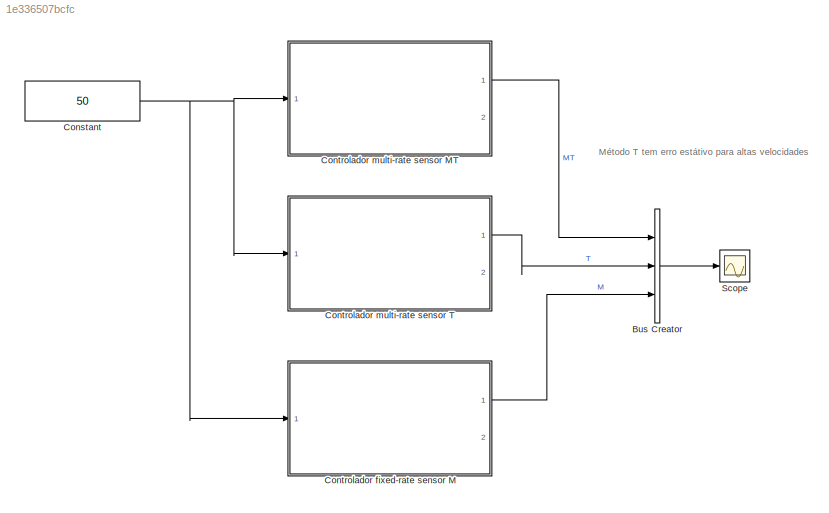
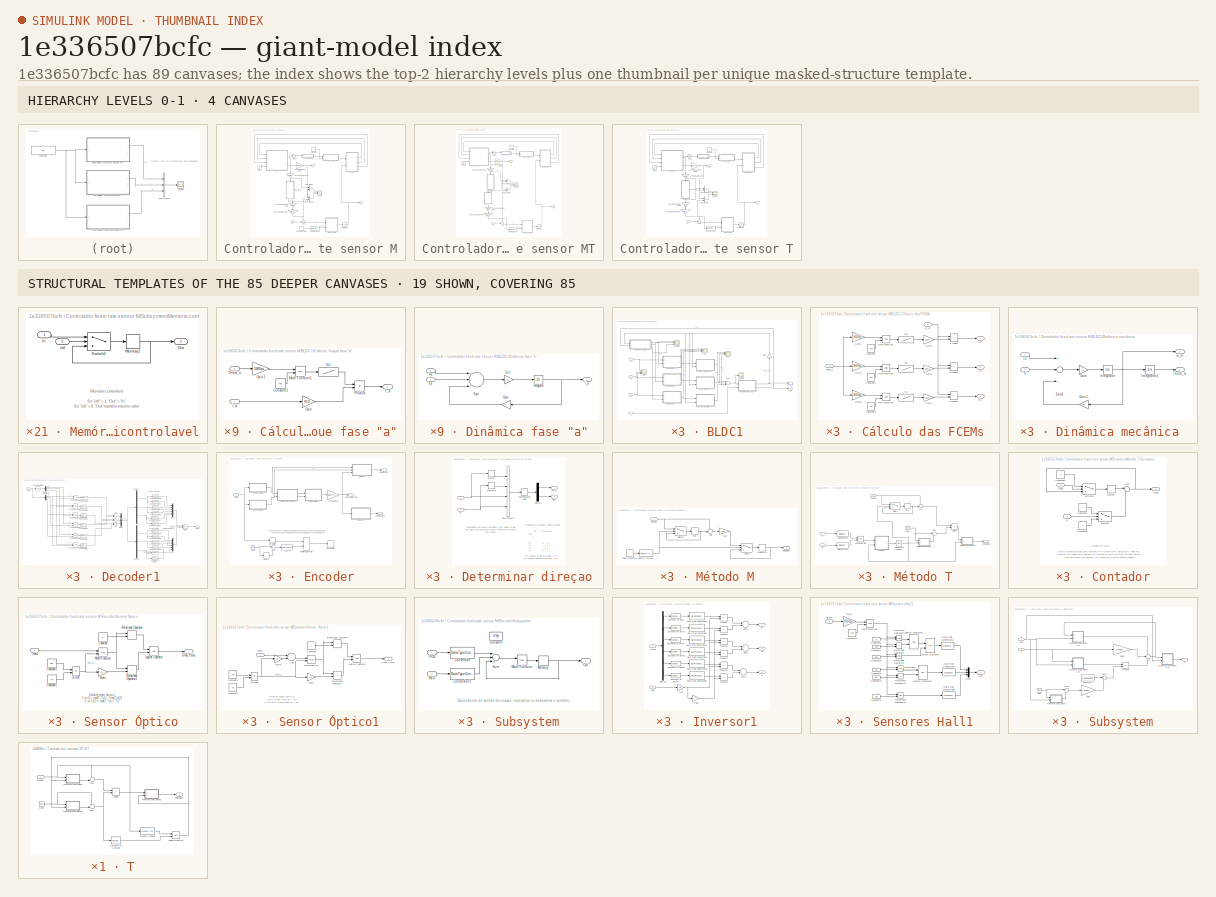
[diagram: thumbnail index - top-2 hierarchy levels (4 canvases) + 19 structural-template representatives of the remaining 85 canvases]
MODEL slx_1e336507bcfc
KIND model
WORKSPACE source: external: MATLAB File  (data not in archive)
BLOCK [BusCreator] Bus Creator
  DisplayOption = bar
  Inputs = 3
  Ports = [3, 1]
BLOCK [Constant] Constant
  Value = 50
BLOCK [SubSystem] Controlador fixed-rate sensor M
  FunctionWithSeparateData = off
  MaskHideContents = off
  MinAlgLoopOccurrences = off
  Opaque = off
  Ports = [1, 2]
  PropExecContextOutsideSubsystem = off
  RTWSystemCode = Auto
  RequestExecContextInheritance = off
BLOCK [Sum] Controlador fixed-rate sensor M/Add1
  IconShape = round
  InputSameDT = off
  Inputs = -+|
  OutDataTypeStr = Inherit: Inherit via internal rule
  Ports = [2, 1]
  SaturateOnIntegerOverflow = off
BLOCK [Constant] Controlador fixed-rate sensor M/Anti-horário1
BLOCK [SubSystem] Controlador fixed-rate sensor M/BLDC1
  FunctionWithSeparateData = off
  MaskHideContents = off
  MinAlgLoopOccurrences = off
  Opaque = off
  Ports = [4, 2]
  PropExecContextOutsideSubsystem = off
  RTWSystemCode = Auto
  RequestExecContextInheritance = off
BLOCK [SubSystem] Controlador fixed-rate sensor M/BLDC1/Cálculo Torque fase "a"
  FunctionWithSeparateData = off
  MaskHideContents = off
  MinAlgLoopOccurrences = off
  Opaque = off
  Ports = [2, 1]
  PropExecContextOutsideSubsystem = off
  RTWSystemCode = Auto
  RequestExecContextInheritance = off
BLOCK [Constant] Controlador fixed-rate sensor M/BLDC1/Cálculo Torque fase "a"/Constant1
  Value = 360
BLOCK [Gain] Controlador fixed-rate sensor M/BLDC1/Cálculo Torque fase "a"/Gain
  Gain = Kt/2
  OutDataTypeStr = Inherit: Inherit via internal rule
  ParamDataTypeStr = Inherit: Inherit via internal rule
  SaturateOnIntegerOverflow = off
BLOCK [Gain] Controlador fixed-rate sensor M/BLDC1/Cálculo Torque fase "a"/Gain1
  Gain = 180/pi
  OutDataTypeStr = Inherit: Inherit via internal rule
  ParamDataTypeStr = Inherit: Inherit via internal rule
  SaturateOnIntegerOverflow = off
BLOCK [Math] Controlador fixed-rate sensor M/BLDC1/Cálculo Torque fase "a"/Math Function1
  Operator = mod
  Ports = [2, 1]
BLOCK [Product] Controlador fixed-rate sensor M/BLDC1/Cálculo Torque fase "a"/Product
  InputSameDT = off
  OutDataTypeStr = Inherit: Inherit via internal rule
  Ports = [2, 1]
  SaturateOnIntegerOverflow = off
BLOCK [Outport] Controlador fixed-rate sensor M/BLDC1/Cálculo Torque fase "a"/T_a
  IconDisplay = Port number
BLOCK [Inport] Controlador fixed-rate sensor M/BLDC1/Cálculo Torque fase "a"/Theta_e
  IconDisplay = Port number
  Port = 2
BLOCK [Lookup] Controlador fixed-rate sensor M/BLDC1/Cálculo Torque fase "a"/fa1
  InputValues = [0 30 60 90 120 150 180 210 240 270 300 330 360]
  SaturateOnIntegerOverflow = off
  Table = [ 1 1 1 0 -1 -1 -1 -1 -1 0 1 1 1]
BLOCK [Inport] Controlador fixed-rate sensor M/BLDC1/Cálculo Torque fase "a"/i_a
  IconDisplay = Port number
BLOCK [SubSystem] Controlador fixed-rate sensor M/BLDC1/Cálculo Torque fase "b"
  FunctionWithSeparateData = off
  MaskHideContents = off
  MinAlgLoopOccurrences = off
  Opaque = off
  Ports = [2, 1]
  PropExecContextOutsideSubsystem = off
  RTWSystemCode = Auto
  RequestExecContextInheritance = off
BLOCK [Constant] Controlador fixed-rate sensor M/BLDC1/Cálculo Torque fase "b"/Constant1
  Value = 360
BLOCK [Gain] Controlador fixed-rate sensor M/BLDC1/Cálculo Torque fase "b"/Gain
  Gain = Kt/2
  OutDataTypeStr = Inherit: Inherit via internal rule
  ParamDataTypeStr = Inherit: Inherit via internal rule
  SaturateOnIntegerOverflow = off
BLOCK [Gain] Controlador fixed-rate sensor M/BLDC1/Cálculo Torque fase "b"/Gain1
  Gain = 180/pi
  OutDataTypeStr = Inherit: Inherit via internal rule
  ParamDataTypeStr = Inherit: Inherit via internal rule
  SaturateOnIntegerOverflow = off
BLOCK [Math] Controlador fixed-rate sensor M/BLDC1/Cálculo Torque fase "b"/Math Function1
  Operator = mod
  Ports = [2, 1]
BLOCK [Product] Controlador fixed-rate sensor M/BLDC1/Cálculo Torque fase "b"/Product
  InputSameDT = off
  OutDataTypeStr = Inherit: Inherit via internal rule
  Ports = [2, 1]
  SaturateOnIntegerOverflow = off
BLOCK [Outport] Controlador fixed-rate sensor M/BLDC1/Cálculo Torque fase "b"/T_b
  IconDisplay = Port number
BLOCK [Inport] Controlador fixed-rate sensor M/BLDC1/Cálculo Torque fase "b"/Theta_e
  IconDisplay = Port number
  Port = 2
BLOCK [Lookup] Controlador fixed-rate sensor M/BLDC1/Cálculo Torque fase "b"/fb2
  InputValues = [0 30 60 90 120 150 180 210 240 270 300 330 360]
  SaturateOnIntegerOverflow = off
  Table = [-1 0 1 1 1 1 1 0 -1 -1 -1 -1 -1]
BLOCK [Inport] Controlador fixed-rate sensor M/BLDC1/Cálculo Torque fase "b"/i_b
  IconDisplay = Port number
BLOCK [SubSystem] Controlador fixed-rate sensor M/BLDC1/Cálculo Torque fase "c"
  FunctionWithSeparateData = off
  MaskHideContents = off
  MinAlgLoopOccurrences = off
  Opaque = off
  Ports = [2, 1]
  PropExecContextOutsideSubsystem = off
  RTWSystemCode = Auto
  RequestExecContextInheritance = off
BLOCK [Constant] Controlador fixed-rate sensor M/BLDC1/Cálculo Torque fase "c"/Constant1
  Value = 360
BLOCK [Gain] Controlador fixed-rate sensor M/BLDC1/Cálculo Torque fase "c"/Gain
  Gain = Kt/2
  OutDataTypeStr = Inherit: Inherit via internal rule
  ParamDataTypeStr = Inherit: Inherit via internal rule
  SaturateOnIntegerOverflow = off
BLOCK [Gain] Controlador fixed-rate sensor M/BLDC1/Cálculo Torque fase "c"/Gain1
  Gain = 180/pi
  OutDataTypeStr = Inherit: Inherit via internal rule
  ParamDataTypeStr = Inherit: Inherit via internal rule
  SaturateOnIntegerOverflow = off
BLOCK [Math] Controlador fixed-rate sensor M/BLDC1/Cálculo Torque fase "c"/Math Function1
  Operator = mod
  Ports = [2, 1]
BLOCK [Product] Controlador fixed-rate sensor M/BLDC1/Cálculo Torque fase "c"/Product
  InputSameDT = off
  OutDataTypeStr = Inherit: Inherit via internal rule
  Ports = [2, 1]
  SaturateOnIntegerOverflow = off
BLOCK [Outport] Controlador fixed-rate sensor M/BLDC1/Cálculo Torque fase "c"/T_c
  IconDisplay = Port number
BLOCK [Inport] Controlador fixed-rate sensor M/BLDC1/Cálculo Torque fase "c"/Theta_e
  IconDisplay = Port number
  Port = 2
BLOCK [Lookup] Controlador fixed-rate sensor M/BLDC1/Cálculo Torque fase "c"/fc1
  InputValues = [0 30 60 90 120 150 180 210 240 270 300 330 360]
  SaturateOnIntegerOverflow = off
  Table = [-1 -1 -1 -1 -1 0 1 1 1 1 1 0 -1]
BLOCK [Inport] Controlador fixed-rate sensor M/BLDC1/Cálculo Torque fase "c"/i_c
  IconDisplay = Port number
BLOCK [SubSystem] Controlador fixed-rate sensor M/BLDC1/Cálculo das FCEMs
  FunctionWithSeparateData = off
  MaskHideContents = off
  MinAlgLoopOccurrences = off
  Opaque = off
  Ports = [2, 3]
  PropExecContextOutsideSubsystem = off
  RTWSystemCode = Auto
  RequestExecContextInheritance = off
BLOCK [Constant] Controlador fixed-rate sensor M/BLDC1/Cálculo das FCEMs/Constant1
  Value = 360
BLOCK [Constant] Controlador fixed-rate sensor M/BLDC1/Cálculo das FCEMs/Constant2
  Value = 360
BLOCK [Constant] Controlador fixed-rate sensor M/BLDC1/Cálculo das FCEMs/Constant3
  Value = 360
BLOCK [Gain] Controlador fixed-rate sensor M/BLDC1/Cálculo das FCEMs/Gain1
  Gain = 180/pi
  OutDataTypeStr = Inherit: Inherit via internal rule
  ParamDataTypeStr = Inherit: Inherit via internal rule
  SaturateOnIntegerOverflow = off
BLOCK [Gain] Controlador fixed-rate sensor M/BLDC1/Cálculo das FCEMs/Gain2
  Gain = Ke/2
  OutDataTypeStr = Inherit: Inherit via internal rule
  ParamDataTypeStr = Inherit: Inherit via internal rule
  SaturateOnIntegerOverflow = off
BLOCK [Gain] Controlador fixed-rate sensor M/BLDC1/Cálculo das FCEMs/Gain3
  Gain = Ke/2
  OutDataTypeStr = Inherit: Inherit via internal rule
  ParamDataTypeStr = Inherit: Inherit via internal rule
  SaturateOnIntegerOverflow = off
BLOCK [Gain] Controlador fixed-rate sensor M/BLDC1/Cálculo das FCEMs/Gain4
  Gain = Ke/2
  OutDataTypeStr = Inherit: Inherit via internal rule
  ParamDataTypeStr = Inherit: Inherit via internal rule
  SaturateOnIntegerOverflow = off
BLOCK [Gain] Controlador fixed-rate sensor M/BLDC1/Cálculo das FCEMs/Gain5
  Gain = 180/pi
  OutDataTypeStr = Inherit: Inherit via internal rule
  ParamDataTypeStr = Inherit: Inherit via internal rule
  SaturateOnIntegerOverflow = off
BLOCK [Gain] Controlador fixed-rate sensor M/BLDC1/Cálculo das FCEMs/Gain6
  Gain = 180/pi
  OutDataTypeStr = Inherit: Inherit via internal rule
  ParamDataTypeStr = Inherit: Inherit via internal rule
  SaturateOnIntegerOverflow = off
BLOCK [Math] Controlador fixed-rate sensor M/BLDC1/Cálculo das FCEMs/Math Function1
  Operator = mod
  Ports = [2, 1]
BLOCK [Math] Controlador fixed-rate sensor M/BLDC1/Cálculo das FCEMs/Math Function2
  Operator = mod
  Ports = [2, 1]
BLOCK [Math] Controlador fixed-rate sensor M/BLDC1/Cálculo das FCEMs/Math Function3
  Operator = mod
  Ports = [2, 1]
BLOCK [Product] Controlador fixed-rate sensor M/BLDC1/Cálculo das FCEMs/Product
  InputSameDT = off
  OutDataTypeStr = Inherit: Inherit via internal rule
  Ports = [2, 1]
  SaturateOnIntegerOverflow = off
BLOCK [Product] Controlador fixed-rate sensor M/BLDC1/Cálculo das FCEMs/Product1
  InputSameDT = off
  OutDataTypeStr = Inherit: Inherit via internal rule
  Ports = [2, 1]
  SaturateOnIntegerOverflow = off
BLOCK [Product] Controlador fixed-rate sensor M/BLDC1/Cálculo das FCEMs/Product2
  InputSameDT = off
  OutDataTypeStr = Inherit: Inherit via internal rule
  Ports = [2, 1]
  SaturateOnIntegerOverflow = off
BLOCK [Inport] Controlador fixed-rate sensor M/BLDC1/Cálculo das FCEMs/Theta_e
  IconDisplay = Port number
BLOCK [Outport] Controlador fixed-rate sensor M/BLDC1/Cálculo das FCEMs/e_a
  IconDisplay = Port number
BLOCK [Outport] Controlador fixed-rate sensor M/BLDC1/Cálculo das FCEMs/e_b
  IconDisplay = Port number
  Port = 2
BLOCK [Outport] Controlador fixed-rate sensor M/BLDC1/Cálculo das FCEMs/e_c
  IconDisplay = Port number
  Port = 3
BLOCK [Lookup] Controlador fixed-rate sensor M/BLDC1/Cálculo das FCEMs/fa1
  InputValues = [0 30 60 90 120 150 180 210 240 270 300 330 360]
  SaturateOnIntegerOverflow = off
  Table = [ 1 1 1 0 -1 -1 -1 -1 -1 0 1 1 1]
BLOCK [Lookup] Controlador fixed-rate sensor M/BLDC1/Cálculo das FCEMs/fb2
  InputValues = [0 30 60 90 120 150 180 210 240 270 300 330 360]
  SaturateOnIntegerOverflow = off
  Table = [-1 0 1 1 1 1 1 0 -1 -1 -1 -1 -1]
BLOCK [Lookup] Controlador fixed-rate sensor M/BLDC1/Cálculo das FCEMs/fc1
  InputValues = [0 30 60 90 120 150 180 210 240 270 300 330 360]
  SaturateOnIntegerOverflow = off
  Table = [-1 -1 -1 -1 -1 0 1 1 1 1 1 0 -1]
BLOCK [Inport] Controlador fixed-rate sensor M/BLDC1/Cálculo das FCEMs/w_m
  IconDisplay = Port number
  Port = 2
BLOCK [SubSystem] Controlador fixed-rate sensor M/BLDC1/Dinâmica fase "a"
  FunctionWithSeparateData = off
  MaskHideContents = off
  MinAlgLoopOccurrences = off
  Opaque = off
  Ports = [2, 1]
  PropExecContextOutsideSubsystem = off
  RTWSystemCode = Auto
  RequestExecContextInheritance = off
BLOCK [Gain] Controlador fixed-rate sensor M/BLDC1/Dinâmica fase "a"/ 
  Gain = 1/L
  OutDataTypeStr = Inherit: Inherit via internal rule
  ParamDataTypeStr = Inherit: Inherit via internal rule
  SaturateOnIntegerOverflow = off
BLOCK [Gain] Controlador fixed-rate sensor M/BLDC1/Dinâmica fase "a"/Gain
  Gain = R
  OutDataTypeStr = Inherit: Inherit via internal rule
  ParamDataTypeStr = Inherit: Inherit via internal rule
  SaturateOnIntegerOverflow = off
BLOCK [Integrator] Controlador fixed-rate sensor M/BLDC1/Dinâmica fase "a"/Integrator
  Ports = [1, 1]
BLOCK [Sum] Controlador fixed-rate sensor M/BLDC1/Dinâmica fase "a"/Sum
  InputSameDT = off
  Inputs = +--
  OutDataTypeStr = Inherit: Inherit via internal rule
  Ports = [3, 1]
  SaturateOnIntegerOverflow = off
BLOCK [Inport] Controlador fixed-rate sensor M/BLDC1/Dinâmica fase "a"/Va
  IconDisplay = Port number
BLOCK [Inport] Controlador fixed-rate sensor M/BLDC1/Dinâmica fase "a"/e_a
  IconDisplay = Port number
  Port = 2
BLOCK [Outport] Controlador fixed-rate sensor M/BLDC1/Dinâmica fase "a"/i_a
  IconDisplay = Port number
BLOCK [SubSystem] Controlador fixed-rate sensor M/BLDC1/Dinâmica fase "b"
  FunctionWithSeparateData = off
  MaskHideContents = off
  MinAlgLoopOccurrences = off
  Opaque = off
  Ports = [2, 1]
  PropExecContextOutsideSubsystem = off
  RTWSystemCode = Auto
  RequestExecContextInheritance = off
BLOCK [Gain] Controlador fixed-rate sensor M/BLDC1/Dinâmica fase "b"/ 
  Gain = 1/L
  OutDataTypeStr = Inherit: Inherit via internal rule
  ParamDataTypeStr = Inherit: Inherit via internal rule
  SaturateOnIntegerOverflow = off
BLOCK [Gain] Controlador fixed-rate sensor M/BLDC1/Dinâmica fase "b"/Gain
  Gain = R
  OutDataTypeStr = Inherit: Inherit via internal rule
  ParamDataTypeStr = Inherit: Inherit via internal rule
  SaturateOnIntegerOverflow = off
BLOCK [Integrator] Controlador fixed-rate sensor M/BLDC1/Dinâmica fase "b"/Integrator
  Ports = [1, 1]
BLOCK [Sum] Controlador fixed-rate sensor M/BLDC1/Dinâmica fase "b"/Sum
  InputSameDT = off
  Inputs = +--
  OutDataTypeStr = Inherit: Inherit via internal rule
  Ports = [3, 1]
  SaturateOnIntegerOverflow = off
BLOCK [Inport] Controlador fixed-rate sensor M/BLDC1/Dinâmica fase "b"/Vb
  IconDisplay = Port number
BLOCK [Inport] Controlador fixed-rate sensor M/BLDC1/Dinâmica fase "b"/e_b
  IconDisplay = Port number
  Port = 2
BLOCK [Outport] Controlador fixed-rate sensor M/BLDC1/Dinâmica fase "b"/i_b
  IconDisplay = Port number
BLOCK [SubSystem] Controlador fixed-rate sensor M/BLDC1/Dinâmica fase "c"
  FunctionWithSeparateData = off
  MaskHideContents = off
  MinAlgLoopOccurrences = off
  Opaque = off
  Ports = [2, 1]
  PropExecContextOutsideSubsystem = off
  RTWSystemCode = Auto
  RequestExecContextInheritance = off
BLOCK [Gain] Controlador fixed-rate sensor M/BLDC1/Dinâmica fase "c"/ 
  Gain = 1/L
  OutDataTypeStr = Inherit: Inherit via internal rule
  ParamDataTypeStr = Inherit: Inherit via internal rule
  SaturateOnIntegerOverflow = off
BLOCK [Gain] Controlador fixed-rate sensor M/BLDC1/Dinâmica fase "c"/Gain
  Gain = R
  OutDataTypeStr = Inherit: Inherit via internal rule
  ParamDataTypeStr = Inherit: Inherit via internal rule
  SaturateOnIntegerOverflow = off
BLOCK [Integrator] Controlador fixed-rate sensor M/BLDC1/Dinâmica fase "c"/Integrator
  Ports = [1, 1]
BLOCK [Sum] Controlador fixed-rate sensor M/BLDC1/Dinâmica fase "c"/Sum
  InputSameDT = off
  Inputs = +--
  OutDataTypeStr = Inherit: Inherit via internal rule
  Ports = [3, 1]
  SaturateOnIntegerOverflow = off
BLOCK [Inport] Controlador fixed-rate sensor M/BLDC1/Dinâmica fase "c"/Vc
  IconDisplay = Port number
BLOCK [Inport] Controlador fixed-rate sensor M/BLDC1/Dinâmica fase "c"/e_c
  IconDisplay = Port number
  Port = 2
BLOCK [Outport] Controlador fixed-rate sensor M/BLDC1/Dinâmica fase "c"/i_c
  IconDisplay = Port number
BLOCK [SubSystem] Controlador fixed-rate sensor M/BLDC1/Dinâmica mecânica 
  FunctionWithSeparateData = off
  MaskHideContents = off
  MinAlgLoopOccurrences = off
  Opaque = off
  Ports = [2, 2]
  PropExecContextOutsideSubsystem = off
  RTWSystemCode = Auto
  RequestExecContextInheritance = off
BLOCK [Gain] Controlador fixed-rate sensor M/BLDC1/Dinâmica mecânica /Gain
  Gain = 1/J
  OutDataTypeStr = Inherit: Inherit via internal rule
  ParamDataTypeStr = Inherit: Inherit via internal rule
  SaturateOnIntegerOverflow = off
BLOCK [Gain] Controlador fixed-rate sensor M/BLDC1/Dinâmica mecânica /Gain1
  Gain = Kd
  OutDataTypeStr = Inherit: Inherit via internal rule
  ParamDataTypeStr = Inherit: Inherit via internal rule
  SaturateOnIntegerOverflow = off
BLOCK [Integrator] Controlador fixed-rate sensor M/BLDC1/Dinâmica mecânica /Integrator
  Ports = [1, 1]
BLOCK [Integrator] Controlador fixed-rate sensor M/BLDC1/Dinâmica mecânica /Integrator1
  Ports = [1, 1]
BLOCK [Sum] Controlador fixed-rate sensor M/BLDC1/Dinâmica mecânica /Sum1
  InputSameDT = off
  Inputs = +--
  OutDataTypeStr = Inherit: Inherit via internal rule
  Ports = [3, 1]
  SaturateOnIntegerOverflow = off
BLOCK [Inport] Controlador fixed-rate sensor M/BLDC1/Dinâmica mecânica /Te
  IconDisplay = Port number
BLOCK [Outport] Controlador fixed-rate sensor M/BLDC1/Dinâmica mecânica /Theta_m
  IconDisplay = Port number
BLOCK [Inport] Controlador fixed-rate sensor M/BLDC1/Dinâmica mecânica /Tl
  IconDisplay = Port number
  Port = 2
BLOCK [Outport] Controlador fixed-rate sensor M/BLDC1/Dinâmica mecânica /w_m
  IconDisplay = Port number
  Port = 2
BLOCK [Scope] Controlador fixed-rate sensor M/BLDC1/FCEMs
  DataFormat = StructureWithTime
  Floating = off
  LimitDataPoints = off
  NumInputPorts = 3
  Ports = [3]
  SampleTime = 0
  SaveName = ScopeData5
  ShowLegends = off
  TimeRange = 1
  YMax = 510~5~5
  YMin = 420~-5~-5
  ZoomMode = yonly
BLOCK [Gain] Controlador fixed-rate sensor M/BLDC1/Gain2
  Gain = P/2
  OutDataTypeStr = Inherit: Inherit via internal rule
  ParamDataTypeStr = Inherit: Inherit via internal rule
  SaturateOnIntegerOverflow = off
BLOCK [Scope] Controlador fixed-rate sensor M/BLDC1/Scope
  DataFormat = StructureWithTime
  Floating = off
  LimitDataPoints = off
  NumInputPorts = 1
  Ports = [1]
  SampleTime = 0
  SaveName = ScopeData4
  ShowLegends = off
  TimeRange = 1
  YMax = 510
  YMin = 420
BLOCK [Sum] Controlador fixed-rate sensor M/BLDC1/Sum
  InputSameDT = off
  Inputs = +++
  OutDataTypeStr = Inherit: Inherit via internal rule
  Ports = [3, 1]
  SaturateOnIntegerOverflow = off
BLOCK [Outport] Controlador fixed-rate sensor M/BLDC1/Theta_m
  IconDisplay = Port number
BLOCK [Inport] Controlador fixed-rate sensor M/BLDC1/Tl
  IconDisplay = Port number
  Port = 4
BLOCK [Inport] Controlador fixed-rate sensor M/BLDC1/Va
  IconDisplay = Port number
BLOCK [Inport] Controlador fixed-rate sensor M/BLDC1/Vb
  IconDisplay = Port number
  Port = 2
BLOCK [Inport] Controlador fixed-rate sensor M/BLDC1/Vc
  IconDisplay = Port number
  Port = 3
BLOCK [Scope] Controlador fixed-rate sensor M/BLDC1/Vs
  DataFormat = StructureWithTime
  Floating = off
  LimitDataPoints = off
  NumInputPorts = 3
  Ports = [3]
  SampleTime = 0
  SaveName = ScopeData2
  ShowLegends = off
  TimeRange = 1
  YMax = 510~5~5
  YMin = 420~-5~-5
  ZoomMode = xonly
BLOCK [Scope] Controlador fixed-rate sensor M/BLDC1/is
  DataFormat = StructureWithTime
  Floating = off
  LimitDataPoints = off
  NumInputPorts = 3
  Ports = [3]
  SampleTime = 0
  SaveName = ScopeData3
  ShowLegends = off
  TimeRange = 1
  YMax = 510~5~5
  YMin = 420~-5~-5
  ZoomMode = xonly
BLOCK [Scope] Controlador fixed-rate sensor M/BLDC1/is1
  DataFormat = StructureWithTime
  Floating = off
  LimitDataPoints = off
  NumInputPorts = 3
  Ports = [3]
  SampleTime = 0
  SaveName = ScopeData6
  ShowLegends = off
  TimeRange = 1
  YMax = 510~5~5
  YMin = 420~-5~-5
  ZoomMode = xonly
BLOCK [Outport] Controlador fixed-rate sensor M/BLDC1/w_m
  IconDisplay = Port number
  Port = 2
BLOCK [BusCreator] Controlador fixed-rate sensor M/Bus Creator
  DisplayOption = bar
  Inputs = 2
  Ports = [2, 1]
BLOCK [BusCreator] Controlador fixed-rate sensor M/Bus Creator1
  DisplayOption = bar
  Inputs = 2
  Ports = [2, 1]
BLOCK [Gain] Controlador fixed-rate sensor M/Conversao deg//s -> rad//s
  Gain = pi/180
  OutDataTypeStr = Inherit: Inherit via internal rule
  ParamDataTypeStr = Inherit: Inherit via internal rule
  SaturateOnIntegerOverflow = off
BLOCK [Gain] Controlador fixed-rate sensor M/Conversao rad-> deg
  Gain = 180/pi
  OutDataTypeStr = Inherit: Inherit via internal rule
  ParamDataTypeStr = Inherit: Inherit via internal rule
  SaturateOnIntegerOverflow = off
BLOCK [Gain] Controlador fixed-rate sensor M/Conversao rad//s -> RPM1
  Gain = 60/(2*pi)
  OutDataTypeStr = Inherit: Inherit via internal rule
  ParamDataTypeStr = Inherit: Inherit via internal rule
  SaturateOnIntegerOverflow = off
BLOCK [Gain] Controlador fixed-rate sensor M/Conversao rad//s -> rpm
  Gain = 60/(2*pi)
  OutDataTypeStr = Inherit: Inherit via internal rule
  ParamDataTypeStr = Inherit: Inherit via internal rule
  SaturateOnIntegerOverflow = off
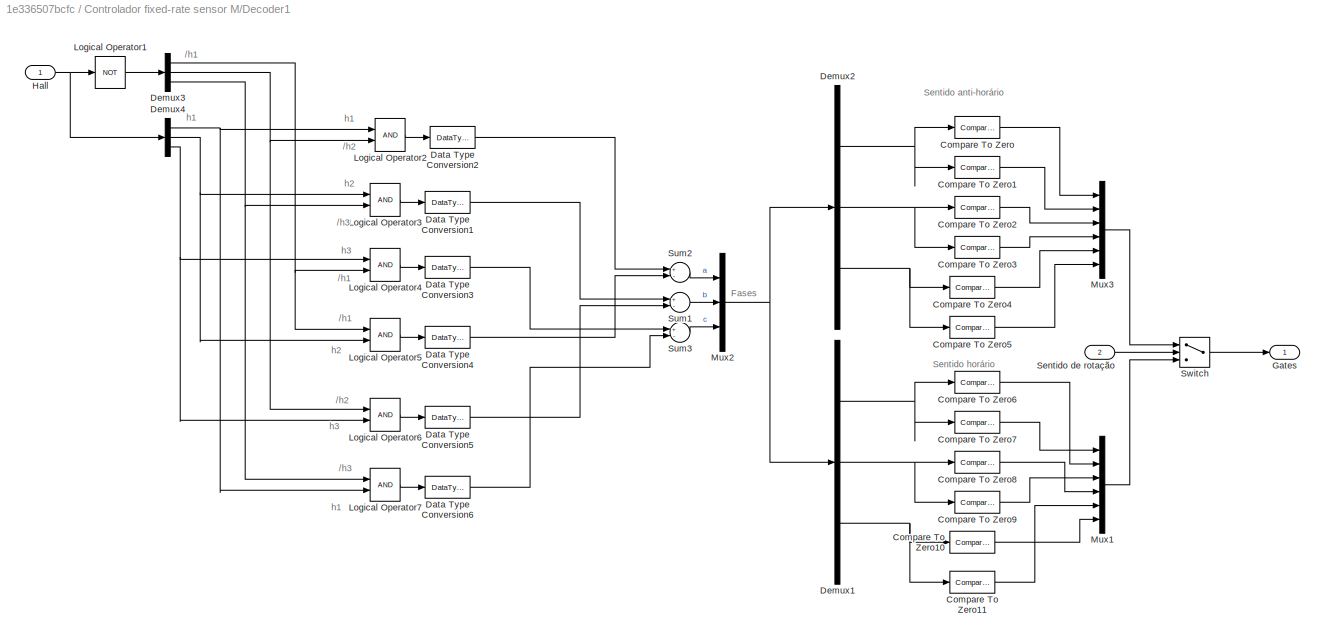
BLOCK [SubSystem] Controlador fixed-rate sensor M/Decoder1
  FunctionWithSeparateData = off
  MaskHideContents = off
  MinAlgLoopOccurrences = off
  Opaque = off
  Ports = [2, 1]
  PropExecContextOutsideSubsystem = off
  RTWSystemCode = Auto
  RequestExecContextInheritance = off
BLOCK [Reference] Controlador fixed-rate sensor M/Decoder1/Compare To Zero  REF=simulink/Logic and Bit
Operations/Compare
To Zero
  OutDataTypeStr = boolean
  Ports = [1, 1]
  SourceBlock = simulink/Logic and Bit\nOperations/Compare\nTo Zero
  SourceType = Compare To Zero
  ZeroCross = off
  relop = >
BLOCK [Reference] Controlador fixed-rate sensor M/Decoder1/Compare To Zero1  REF=simulink/Logic and Bit
Operations/Compare
To Zero
  OutDataTypeStr = boolean
  Ports = [1, 1]
  SourceBlock = simulink/Logic and Bit\nOperations/Compare\nTo Zero
  SourceType = Compare To Zero
  ZeroCross = off
  relop = <
BLOCK [Reference] Controlador fixed-rate sensor M/Decoder1/Compare To Zero10  REF=simulink/Logic and Bit
Operations/Compare
To Zero
  OutDataTypeStr = boolean
  Ports = [1, 1]
  SourceBlock = simulink/Logic and Bit\nOperations/Compare\nTo Zero
  SourceType = Compare To Zero
  ZeroCross = off
  relop = >
BLOCK [Reference] Controlador fixed-rate sensor M/Decoder1/Compare To Zero11  REF=simulink/Logic and Bit
Operations/Compare
To Zero
  OutDataTypeStr = boolean
  Ports = [1, 1]
  SourceBlock = simulink/Logic and Bit\nOperations/Compare\nTo Zero
  SourceType = Compare To Zero
  ZeroCross = off
  relop = <
BLOCK [Reference] Controlador fixed-rate sensor M/Decoder1/Compare To Zero2  REF=simulink/Logic and Bit
Operations/Compare
To Zero
  OutDataTypeStr = boolean
  Ports = [1, 1]
  SourceBlock = simulink/Logic and Bit\nOperations/Compare\nTo Zero
  SourceType = Compare To Zero
  ZeroCross = off
  relop = >
BLOCK [Reference] Controlador fixed-rate sensor M/Decoder1/Compare To Zero3  REF=simulink/Logic and Bit
Operations/Compare
To Zero
  OutDataTypeStr = boolean
  Ports = [1, 1]
  SourceBlock = simulink/Logic and Bit\nOperations/Compare\nTo Zero
  SourceType = Compare To Zero
  ZeroCross = off
  relop = <
BLOCK [Reference] Controlador fixed-rate sensor M/Decoder1/Compare To Zero4  REF=simulink/Logic and Bit
Operations/Compare
To Zero
  OutDataTypeStr = boolean
  Ports = [1, 1]
  SourceBlock = simulink/Logic and Bit\nOperations/Compare\nTo Zero
  SourceType = Compare To Zero
  ZeroCross = off
  relop = >
BLOCK [Reference] Controlador fixed-rate sensor M/Decoder1/Compare To Zero5  REF=simulink/Logic and Bit
Operations/Compare
To Zero
  OutDataTypeStr = boolean
  Ports = [1, 1]
  SourceBlock = simulink/Logic and Bit\nOperations/Compare\nTo Zero
  SourceType = Compare To Zero
  ZeroCross = off
  relop = <
BLOCK [Reference] Controlador fixed-rate sensor M/Decoder1/Compare To Zero6  REF=simulink/Logic and Bit
Operations/Compare
To Zero
  OutDataTypeStr = boolean
  Ports = [1, 1]
  SourceBlock = simulink/Logic and Bit\nOperations/Compare\nTo Zero
  SourceType = Compare To Zero
  ZeroCross = off
  relop = >
BLOCK [Reference] Controlador fixed-rate sensor M/Decoder1/Compare To Zero7  REF=simulink/Logic and Bit
Operations/Compare
To Zero
  OutDataTypeStr = boolean
  Ports = [1, 1]
  SourceBlock = simulink/Logic and Bit\nOperations/Compare\nTo Zero
  SourceType = Compare To Zero
  ZeroCross = off
  relop = <
BLOCK [Reference] Controlador fixed-rate sensor M/Decoder1/Compare To Zero8  REF=simulink/Logic and Bit
Operations/Compare
To Zero
  OutDataTypeStr = boolean
  Ports = [1, 1]
  SourceBlock = simulink/Logic and Bit\nOperations/Compare\nTo Zero
  SourceType = Compare To Zero
  ZeroCross = off
  relop = >
BLOCK [Reference] Controlador fixed-rate sensor M/Decoder1/Compare To Zero9  REF=simulink/Logic and Bit
Operations/Compare
To Zero
  OutDataTypeStr = boolean
  Ports = [1, 1]
  SourceBlock = simulink/Logic and Bit\nOperations/Compare\nTo Zero
  SourceType = Compare To Zero
  ZeroCross = off
  relop = <
BLOCK [DataTypeConversion] Controlador fixed-rate sensor M/Decoder1/Data Type Conversion1
  RndMeth = Floor
  SaturateOnIntegerOverflow = off
BLOCK [DataTypeConversion] Controlador fixed-rate sensor M/Decoder1/Data Type Conversion2
  RndMeth = Floor
  SaturateOnIntegerOverflow = off
BLOCK [DataTypeConversion] Controlador fixed-rate sensor M/Decoder1/Data Type Conversion3
  RndMeth = Floor
  SaturateOnIntegerOverflow = off
BLOCK [DataTypeConversion] Controlador fixed-rate sensor M/Decoder1/Data Type Conversion4
  RndMeth = Floor
  SaturateOnIntegerOverflow = off
BLOCK [DataTypeConversion] Controlador fixed-rate sensor M/Decoder1/Data Type Conversion5
  RndMeth = Floor
  SaturateOnIntegerOverflow = off
BLOCK [DataTypeConversion] Controlador fixed-rate sensor M/Decoder1/Data Type Conversion6
  RndMeth = Floor
  SaturateOnIntegerOverflow = off
BLOCK [Demux] Controlador fixed-rate sensor M/Decoder1/Demux1
  DisplayOption = bar
  Outputs = 3
  Ports = [1, 3]
BLOCK [Demux] Controlador fixed-rate sensor M/Decoder1/Demux2
  DisplayOption = bar
  Outputs = 3
  Ports = [1, 3]
BLOCK [Demux] Controlador fixed-rate sensor M/Decoder1/Demux3
  DisplayOption = bar
  Outputs = 3
  Ports = [1, 3]
BLOCK [Demux] Controlador fixed-rate sensor M/Decoder1/Demux4
  DisplayOption = bar
  Outputs = 3
  Ports = [1, 3]
BLOCK [Outport] Controlador fixed-rate sensor M/Decoder1/Gates
  IconDisplay = Port number
BLOCK [Inport] Controlador fixed-rate sensor M/Decoder1/Hall 
  IconDisplay = Port number
BLOCK [Logic] Controlador fixed-rate sensor M/Decoder1/Logical Operator1
  AllPortsSameDT = off
  Operator = NOT
  OutDataTypeStr = boolean
  Ports = [1, 1]
BLOCK [Logic] Controlador fixed-rate sensor M/Decoder1/Logical Operator2
  AllPortsSameDT = off
  OutDataTypeStr = boolean
  Ports = [2, 1]
BLOCK [Logic] Controlador fixed-rate sensor M/Decoder1/Logical Operator3
  AllPortsSameDT = off
  OutDataTypeStr = boolean
  Ports = [2, 1]
BLOCK [Logic] Controlador fixed-rate sensor M/Decoder1/Logical Operator4
  AllPortsSameDT = off
  OutDataTypeStr = boolean
  Ports = [2, 1]
BLOCK [Logic] Controlador fixed-rate sensor M/Decoder1/Logical Operator5
  AllPortsSameDT = off
  OutDataTypeStr = boolean
  Ports = [2, 1]
BLOCK [Logic] Controlador fixed-rate sensor M/Decoder1/Logical Operator6
  AllPortsSameDT = off
  OutDataTypeStr = boolean
  Ports = [2, 1]
BLOCK [Logic] Controlador fixed-rate sensor M/Decoder1/Logical Operator7
  AllPortsSameDT = off
  OutDataTypeStr = boolean
  Ports = [2, 1]
BLOCK [Mux] Controlador fixed-rate sensor M/Decoder1/Mux1
  DisplayOption = bar
  Inputs = 6
  Ports = [6, 1]
BLOCK [Mux] Controlador fixed-rate sensor M/Decoder1/Mux2
  DisplayOption = bar
  Inputs = 3
  Ports = [3, 1]
BLOCK [Mux] Controlador fixed-rate sensor M/Decoder1/Mux3
  DisplayOption = bar
  Inputs = 6
  Ports = [6, 1]
BLOCK [Inport] Controlador fixed-rate sensor M/Decoder1/Sentido de rotação
  IconDisplay = Port number
  Port = 2
BLOCK [Sum] Controlador fixed-rate sensor M/Decoder1/Sum1
  InputSameDT = off
  Inputs = +-
  OutDataTypeStr = double
  Ports = [2, 1]
  SaturateOnIntegerOverflow = off
BLOCK [Sum] Controlador fixed-rate sensor M/Decoder1/Sum2
  InputSameDT = off
  Inputs = +-
  OutDataTypeStr = double
  Ports = [2, 1]
  SaturateOnIntegerOverflow = off
BLOCK [Sum] Controlador fixed-rate sensor M/Decoder1/Sum3
  InputSameDT = off
  Inputs = +-
  OutDataTypeStr = double
  Ports = [2, 1]
  SaturateOnIntegerOverflow = off
BLOCK [Switch] Controlador fixed-rate sensor M/Decoder1/Switch
  Criteria = u2 > Threshold
  InputSameDT = off
  SaturateOnIntegerOverflow = off
BLOCK [Reference] Controlador fixed-rate sensor M/Detect Increase  REF=simulink/Logic and Bit
Operations/Detect
Increase
  InputProcessing = Inherited
  OutDataTypeStr = boolean
  Ports = [1, 1]
  SourceBlock = simulink/Logic and Bit\nOperations/Detect\nIncrease
  SourceType = Detect Increase
  vinit = 0.0
BLOCK [SubSystem] Controlador fixed-rate sensor M/Encoder
  FunctionWithSeparateData = off
  MaskHideContents = off
  MinAlgLoopOccurrences = off
  Opaque = off
  Ports = [1, 3]
  PropExecContextOutsideSubsystem = off
  RTWSystemCode = Auto
  RequestExecContextInheritance = off
BLOCK [Clock] Controlador fixed-rate sensor M/Encoder/Clock
BLOCK [Derivative] Controlador fixed-rate sensor M/Encoder/Derivative
BLOCK [SubSystem] Controlador fixed-rate sensor M/Encoder/Determinar direçao
  FunctionWithSeparateData = off
  MaskHideContents = off
  MinAlgLoopOccurrences = off
  Opaque = off
  Ports = [2, 2]
  PropExecContextOutsideSubsystem = off
  RTWSystemCode = Auto
  RequestExecContextInheritance = off
BLOCK [Inport] Controlador fixed-rate sensor M/Encoder/Determinar direçao/A
  IconDisplay = Port number
BLOCK [Inport] Controlador fixed-rate sensor M/Encoder/Determinar direçao/B
  IconDisplay = Port number
  Port = 2
BLOCK [BusCreator] Controlador fixed-rate sensor M/Encoder/Determinar direçao/Bus Creator1
  DisplayOption = bar
  Ports = [4, 1]
BLOCK [CombinatorialLogic] Controlador fixed-rate sensor M/Encoder/Determinar direçao/Combinatorial  Logic
  TruthTable = [ 0 0 ; 0 1 ; 1 0 ; 0 0 ; 1 0 ; 0 0 ; 0 0 ; 0 1 ; 0 1 ; 0 0 ; 0 0 ; 1 0 ; 0 0 ; 1 0 ; 0 1 ; 0 0]
BLOCK [Demux] Controlador fixed-rate sensor M/Encoder/Determinar direçao/Demux
  DisplayOption = bar
  Outputs = 2
  Ports = [1, 2]
BLOCK [Memory] Controlador fixed-rate sensor M/Encoder/Determinar direçao/Memory
BLOCK [Memory] Controlador fixed-rate sensor M/Encoder/Determinar direçao/Memory1
BLOCK [Outport] Controlador fixed-rate sensor M/Encoder/Determinar direçao/NEG
  IconDisplay = Port number
  Port = 2
BLOCK [Outport] Controlador fixed-rate sensor M/Encoder/Determinar direçao/POS
  IconDisplay = Port number
BLOCK [Fcn] Controlador fixed-rate sensor M/Encoder/Fcn
  Expr = 360/(4*Nr*u)
BLOCK [Gain] Controlador fixed-rate sensor M/Encoder/Graus // pulso1
  Gain = 360/(4*Nr)
  OutDataTypeStr = double
  ParamDataTypeStr = Inherit: Inherit via internal rule
  SaturateOnIntegerOverflow = off
BLOCK [Memory] Controlador fixed-rate sensor M/Encoder/Memory
  X0 = -100
BLOCK [SubSystem] Controlador fixed-rate sensor M/Encoder/Método M
  FunctionWithSeparateData = off
  MaskHideContents = off
  MinAlgLoopOccurrences = off
  Opaque = off
  Ports = [1, 1]
  PropExecContextOutsideSubsystem = off
  RTWSystemCode = Auto
  RequestExecContextInheritance = off
BLOCK [Sum] Controlador fixed-rate sensor M/Encoder/Método M/Add
  IconShape = round
  InputSameDT = off
  Inputs = +-|
  OutDataTypeStr = Inherit: Inherit via internal rule
  Ports = [2, 1]
  SaturateOnIntegerOverflow = off
BLOCK [Reference] Controlador fixed-rate sensor M/Encoder/Método M/Detect Increase  REF=simulink/Logic and Bit
Operations/Detect
Increase
  InputProcessing = Inherited
  OutDataTypeStr = boolean
  Ports = [1, 1]
  SourceBlock = simulink/Logic and Bit\nOperations/Detect\nIncrease
  SourceType = Detect Increase
  vinit = 0.0
BLOCK [Gain] Controlador fixed-rate sensor M/Encoder/Método M/Gain
  Gain = 1/Ts
  OutDataTypeStr = Inherit: Inherit via internal rule
  ParamDataTypeStr = Inherit: Inherit via internal rule
  SaturateOnIntegerOverflow = off
BLOCK [Memory] Controlador fixed-rate sensor M/Encoder/Método M/Memory1
BLOCK [Inport] Controlador fixed-rate sensor M/Encoder/Método M/Posição
  IconDisplay = Port number
BLOCK [DiscretePulseGenerator] Controlador fixed-rate sensor M/Encoder/Método M/Pulse Generator
  Period = Ts
  Ports = [0, 1]
  PulseType = Time based
  PulseWidth = 50
BLOCK [Switch] Controlador fixed-rate sensor M/Encoder/Método M/Switch
  InputSameDT = off
  SaturateOnIntegerOverflow = off
BLOCK [Switch] Controlador fixed-rate sensor M/Encoder/Método M/Switch1
  InputSameDT = off
  SaturateOnIntegerOverflow = off
BLOCK [Outport] Controlador fixed-rate sensor M/Encoder/Método M/Velocidade
  IconDisplay = Port number
BLOCK [Memory] Controlador fixed-rate sensor M/Encoder/Método M/pos'
BLOCK [SubSystem] Controlador fixed-rate sensor M/Encoder/Método T
  FunctionWithSeparateData = off
  MaskHideContents = off
  MinAlgLoopOccurrences = off
  Opaque = off
  Ports = [3, 1]
  PropExecContextOutsideSubsystem = off
  RTWSystemCode = Auto
  RequestExecContextInheritance = off
BLOCK [Inport] Controlador fixed-rate sensor M/Encoder/Método T/A
  IconDisplay = Port number
BLOCK [Sum] Controlador fixed-rate sensor M/Encoder/Método T/Add
  IconShape = round
  InputSameDT = off
  Inputs = +-|
  OutDataTypeStr = Inherit: Inherit via internal rule
  Ports = [2, 1]
  SaturateOnIntegerOverflow = off
BLOCK [Inport] Controlador fixed-rate sensor M/Encoder/Método T/B
  IconDisplay = Port number
  Port = 2
BLOCK [Clock] Controlador fixed-rate sensor M/Encoder/Método T/Clock
BLOCK [Reference] Controlador fixed-rate sensor M/Encoder/Método T/Compare To Constant  REF=simulink/Logic and Bit
Operations/Compare
To Constant
  OutDataTypeStr = boolean
  Ports = [1, 1]
  SourceBlock = simulink/Logic and Bit\nOperations/Compare\nTo Constant
  SourceType = Compare To Constant
  ZeroCross = on
  const = m
  relop = ==
BLOCK [SubSystem] Controlador fixed-rate sensor M/Encoder/Método T/Contador
  FunctionWithSeparateData = off
  MaskHideContents = off
  MinAlgLoopOccurrences = off
  Opaque = off
  Ports = [2, 1]
  PropExecContextOutsideSubsystem = off
  RTWSystemCode = Auto
  RequestExecContextInheritance = off
BLOCK [Constant] Controlador fixed-rate sensor M/Encoder/Método T/Contador/Constant
  Value = 0
BLOCK [Constant] Controlador fixed-rate sensor M/Encoder/Método T/Contador/Constant1
BLOCK [Constant] Controlador fixed-rate sensor M/Encoder/Método T/Contador/Constant2
  Value = 0
BLOCK [Outport] Controlador fixed-rate sensor M/Encoder/Método T/Contador/Count
  IconDisplay = Port number
BLOCK [Inport] Controlador fixed-rate sensor M/Encoder/Método T/Contador/In
  IconDisplay = Port number
BLOCK [Memory] Controlador fixed-rate sensor M/Encoder/Método T/Contador/Memory
BLOCK [Sum] Controlador fixed-rate sensor M/Encoder/Método T/Contador/Sum
  IconShape = round
  InputSameDT = off
  Inputs = |++
  OutDataTypeStr = Inherit: Inherit via internal rule
  Ports = [2, 1]
  SaturateOnIntegerOverflow = off
BLOCK [Switch] Controlador fixed-rate sensor M/Encoder/Método T/Contador/Switch
  InputSameDT = off
  SaturateOnIntegerOverflow = off
BLOCK [Switch] Controlador fixed-rate sensor M/Encoder/Método T/Contador/Switch1
  InputSameDT = off
  SaturateOnIntegerOverflow = off
BLOCK [Inport] Controlador fixed-rate sensor M/Encoder/Método T/Contador/reset
  IconDisplay = Port number
  Port = 2
BLOCK [Reference] Controlador fixed-rate sensor M/Encoder/Método T/Detect Change  REF=simulink/Logic and Bit
Operations/Detect
Change
  InputProcessing = Inherited
  OutDataTypeStr = boolean
  Ports = [1, 1]
  SourceBlock = simulink/Logic and Bit\nOperations/Detect\nChange
  SourceType = Detect Change
  vinit = 0
BLOCK [Reference] Controlador fixed-rate sensor M/Encoder/Método T/Detect Change1  REF=simulink/Logic and Bit
Operations/Detect
Change
  InputProcessing = Inherited
  OutDataTypeStr = boolean
  Ports = [1, 1]
  SourceBlock = simulink/Logic and Bit\nOperations/Detect\nChange
  SourceType = Detect Change
  vinit = 0
BLOCK [Product] Controlador fixed-rate sensor M/Encoder/Método T/Divide
  InputSameDT = off
  Inputs = */
  OutDataTypeStr = Inherit: Inherit via internal rule
  Ports = [2, 1]
  RndMeth = Floor
  SaturateOnIntegerOverflow = off
BLOCK [Logic] Controlador fixed-rate sensor M/Encoder/Método T/Logical Operator
  AllPortsSameDT = off
  Operator = OR
  OutDataTypeStr = boolean
  Ports = [2, 1]
BLOCK [SubSystem] Controlador fixed-rate sensor M/Encoder/Método T/Memória controlavel
  FunctionWithSeparateData = off
  MaskHideContents = off
  MinAlgLoopOccurrences = off
  Opaque = off
  Ports = [2, 1]
  PropExecContextOutsideSubsystem = off
  RTWSystemCode = Auto
  RequestExecContextInheritance = off
BLOCK [Inport] Controlador fixed-rate sensor M/Encoder/Método T/Memória controlavel/In
  IconDisplay = Port number
BLOCK [Memory] Controlador fixed-rate sensor M/Encoder/Método T/Memória controlavel/Memory2
BLOCK [Outport] Controlador fixed-rate sensor M/Encoder/Método T/Memória controlavel/Out
  IconDisplay = Port number
BLOCK [Switch] Controlador fixed-rate sensor M/Encoder/Método T/Memória controlavel/Switch2
  InputSameDT = off
  SaturateOnIntegerOverflow = off
BLOCK [Inport] Controlador fixed-rate sensor M/Encoder/Método T/Memória controlavel/ctrl
  IconDisplay = Port number
  Port = 2
BLOCK [SubSystem] Controlador fixed-rate sensor M/Encoder/Método T/Memória controlavel1
  FunctionWithSeparateData = off
  MaskHideContents = off
  MinAlgLoopOccurrences = off
  Opaque = off
  Ports = [2, 1]
  PropExecContextOutsideSubsystem = off
  RTWSystemCode = Auto
  RequestExecContextInheritance = off
BLOCK [Inport] Controlador fixed-rate sensor M/Encoder/Método T/Memória controlavel1/In
  IconDisplay = Port number
BLOCK [Memory] Controlador fixed-rate sensor M/Encoder/Método T/Memória controlavel1/Memory2
BLOCK [Outport] Controlador fixed-rate sensor M/Encoder/Método T/Memória controlavel1/Out
  IconDisplay = Port number
BLOCK [Switch] Controlador fixed-rate sensor M/Encoder/Método T/Memória controlavel1/Switch2
  InputSameDT = off
  SaturateOnIntegerOverflow = off
BLOCK [Inport] Controlador fixed-rate sensor M/Encoder/Método T/Memória controlavel1/ctrl
  IconDisplay = Port number
  Port = 2
BLOCK [Inport] Controlador fixed-rate sensor M/Encoder/Método T/Posição
  IconDisplay = Port number
  Port = 3
BLOCK [Sum] Controlador fixed-rate sensor M/Encoder/Método T/Sum
  IconShape = round
  InputSameDT = off
  Inputs = |+-
  OutDataTypeStr = Inherit: Inherit via internal rule
  Ports = [2, 1]
  SaturateOnIntegerOverflow = off
BLOCK [Switch] Controlador fixed-rate sensor M/Encoder/Método T/Switch1
  InputSameDT = off
  SaturateOnIntegerOverflow = off
BLOCK [Outport] Controlador fixed-rate sensor M/Encoder/Método T/Velocidade
  IconDisplay = Port number
BLOCK [Memory] Controlador fixed-rate sensor M/Encoder/Método T/pos'
BLOCK [RelationalOperator] Controlador fixed-rate sensor M/Encoder/Relational Operator
  InputSameDT = off
  Operator = >
  OutDataTypeStr = boolean
  Ports = [2, 1]
BLOCK [SubSystem] Controlador fixed-rate sensor M/Encoder/Sensor Óptico
  FunctionWithSeparateData = off
  MaskHideContents = off
  MinAlgLoopOccurrences = off
  Opaque = off
  Ports = [1, 1]
  PropExecContextOutsideSubsystem = off
  RTWSystemCode = Auto
  RequestExecContextInheritance = off
BLOCK [Constant] Controlador fixed-rate sensor M/Encoder/Sensor Óptico/Constant
  Value = 0
BLOCK [Constant] Controlador fixed-rate sensor M/Encoder/Sensor Óptico/Constant1
  Value = Nr
BLOCK [Constant] Controlador fixed-rate sensor M/Encoder/Sensor Óptico/Constant2
  Value = 360
BLOCK [Product] Controlador fixed-rate sensor M/Encoder/Sensor Óptico/Divide
  InputSameDT = off
  Inputs = */
  OutDataTypeStr = Inherit: Inherit via internal rule
  Ports = [2, 1]
  RndMeth = Floor
  SaturateOnIntegerOverflow = off
BLOCK [Gain] Controlador fixed-rate sensor M/Encoder/Sensor Óptico/Gain
  Gain = 1/2
  OutDataTypeStr = Inherit: Inherit via internal rule
  ParamDataTypeStr = Inherit: Inherit via internal rule
  SaturateOnIntegerOverflow = off
BLOCK [Logic] Controlador fixed-rate sensor M/Encoder/Sensor Óptico/Logical Operator
  AllPortsSameDT = off
  OutDataTypeStr = boolean
  Ports = [2, 1]
BLOCK [Math] Controlador fixed-rate sensor M/Encoder/Sensor Óptico/Math Function
  Operator = mod
  Ports = [2, 1]
BLOCK [RelationalOperator] Controlador fixed-rate sensor M/Encoder/Sensor Óptico/Relational Operator
  InputSameDT = off
  Operator = >
  OutDataTypeStr = boolean
  Ports = [2, 1]
BLOCK [RelationalOperator] Controlador fixed-rate sensor M/Encoder/Sensor Óptico/Relational Operator1
  InputSameDT = off
  Operator = <
  OutDataTypeStr = boolean
  Ports = [2, 1]
BLOCK [Outport] Controlador fixed-rate sensor M/Encoder/Sensor Óptico/Sinal_Pulso
  IconDisplay = Port number
BLOCK [Inport] Controlador fixed-rate sensor M/Encoder/Sensor Óptico/Theta
  IconDisplay = Port number
BLOCK [SubSystem] Controlador fixed-rate sensor M/Encoder/Sensor Óptico1
  FunctionWithSeparateData = off
  MaskHideContents = off
  MinAlgLoopOccurrences = off
  Opaque = off
  Ports = [1, 1]
  PropExecContextOutsideSubsystem = off
  RTWSystemCode = Auto
  RequestExecContextInheritance = off
BLOCK [Sum] Controlador fixed-rate sensor M/Encoder/Sensor Óptico1/Add
  InputSameDT = off
  Inputs = +-
  OutDataTypeStr = Inherit: Inherit via internal rule
  Ports = [2, 1]
  SaturateOnIntegerOverflow = off
BLOCK [Constant] Controlador fixed-rate sensor M/Encoder/Sensor Óptico1/Constant
  Value = 0
BLOCK [Constant] Controlador fixed-rate sensor M/Encoder/Sensor Óptico1/Constant1
  Value = Nr
BLOCK [Constant] Controlador fixed-rate sensor M/Encoder/Sensor Óptico1/Constant2
  Value = 360
BLOCK [Product] Controlador fixed-rate sensor M/Encoder/Sensor Óptico1/Divide
  InputSameDT = off
  Inputs = */
  OutDataTypeStr = Inherit: Inherit via internal rule
  Ports = [2, 1]
  RndMeth = Floor
  SaturateOnIntegerOverflow = off
BLOCK [Gain] Controlador fixed-rate sensor M/Encoder/Sensor Óptico1/Gain
  Gain = 1/2
  OutDataTypeStr = Inherit: Inherit via internal rule
  ParamDataTypeStr = Inherit: Inherit via internal rule
  SaturateOnIntegerOverflow = off
BLOCK [Gain] Controlador fixed-rate sensor M/Encoder/Sensor Óptico1/Gain1
  Gain = 1/4
  OutDataTypeStr = Inherit: Inherit via internal rule
  ParamDataTypeStr = Inherit: Inherit via internal rule
  SaturateOnIntegerOverflow = off
BLOCK [Logic] Controlador fixed-rate sensor M/Encoder/Sensor Óptico1/Logical Operator
  AllPortsSameDT = off
  OutDataTypeStr = boolean
  Ports = [2, 1]
BLOCK [Math] Controlador fixed-rate sensor M/Encoder/Sensor Óptico1/Math Function
  Operator = mod
  Ports = [2, 1]
BLOCK [RelationalOperator] Controlador fixed-rate sensor M/Encoder/Sensor Óptico1/Relational Operator
  InputSameDT = off
  Operator = >
  OutDataTypeStr = boolean
  Ports = [2, 1]
BLOCK [RelationalOperator] Controlador fixed-rate sensor M/Encoder/Sensor Óptico1/Relational Operator1
  InputSameDT = off
  Operator = <
  OutDataTypeStr = boolean
  Ports = [2, 1]
BLOCK [Outport] Controlador fixed-rate sensor M/Encoder/Sensor Óptico1/Sinal_Pulso
  IconDisplay = Port number
BLOCK [Inport] Controlador fixed-rate sensor M/Encoder/Sensor Óptico1/Theta
  IconDisplay = Port number
BLOCK [Stop] Controlador fixed-rate sensor M/Encoder/Stop Simulation
BLOCK [SubSystem] Controlador fixed-rate sensor M/Encoder/Subsystem
  FunctionWithSeparateData = off
  MaskHideContents = off
  MinAlgLoopOccurrences = off
  Opaque = off
  Ports = [2, 1]
  PropExecContextOutsideSubsystem = off
  RTWSystemCode = Auto
  RequestExecContextInheritance = off
BLOCK [Constant] Controlador fixed-rate sensor M/Encoder/Subsystem/Constant
  Value = 4*Nr
BLOCK [DataTypeConversion] Controlador fixed-rate sensor M/Encoder/Subsystem/Conversion
  OutDataTypeStr = int32
  RndMeth = Floor
  SaturateOnIntegerOverflow = off
BLOCK [DataTypeConversion] Controlador fixed-rate sensor M/Encoder/Subsystem/Conversion1
  OutDataTypeStr = int32
  RndMeth = Floor
  SaturateOnIntegerOverflow = off
BLOCK [Math] Controlador fixed-rate sensor M/Encoder/Subsystem/Math Function
  Operator = mod
  Ports = [2, 1]
BLOCK [Memory] Controlador fixed-rate sensor M/Encoder/Subsystem/Memory
BLOCK [Inport] Controlador fixed-rate sensor M/Encoder/Subsystem/NEG
  IconDisplay = Port number
  Port = 2
BLOCK [Outport] Controlador fixed-rate sensor M/Encoder/Subsystem/Out
  IconDisplay = Port number
BLOCK [Inport] Controlador fixed-rate sensor M/Encoder/Subsystem/POS
  IconDisplay = Port number
BLOCK [Sum] Controlador fixed-rate sensor M/Encoder/Subsystem/Sum
  InputSameDT = off
  Inputs = +-+
  OutDataTypeStr = Inherit: Inherit via internal rule
  Ports = [3, 1]
  SaturateOnIntegerOverflow = off
BLOCK [Sum] Controlador fixed-rate sensor M/Encoder/Sum
  IconShape = round
  InputSameDT = off
  Inputs = |+-
  OutDataTypeStr = Inherit: Inherit via internal rule
  Ports = [2, 1]
  SaturateOnIntegerOverflow = off
BLOCK [Inport] Controlador fixed-rate sensor M/Encoder/Theta
  IconDisplay = Port number
BLOCK [Outport] Controlador fixed-rate sensor M/Encoder/Theta_amostrado
  IconDisplay = Port number
BLOCK [Outport] Controlador fixed-rate sensor M/Encoder/VelocidadeM
  IconDisplay = Port number
  Port = 3
BLOCK [Outport] Controlador fixed-rate sensor M/Encoder/VelocidadeT
  IconDisplay = Port number
  Port = 2
BLOCK [Gain] Controlador fixed-rate sensor M/Gain1
  Gain = P/2
  OutDataTypeStr = Inherit: Inherit via internal rule
  ParamDataTypeStr = Inherit: Inherit via internal rule
  SaturateOnIntegerOverflow = off
BLOCK [SubSystem] Controlador fixed-rate sensor M/Inversor1
  FunctionWithSeparateData = off
  MaskHideContents = off
  MinAlgLoopOccurrences = off
  Opaque = off
  Ports = [2, 3]
  PropExecContextOutsideSubsystem = off
  RTWSystemCode = Auto
  RequestExecContextInheritance = off
BLOCK [Reference] Controlador fixed-rate sensor M/Inversor1/Compare To Zero  REF=simulink/Logic and Bit
Operations/Compare
To Zero
  OutDataTypeStr = uint8
  Ports = [1, 1]
  SourceBlock = simulink/Logic and Bit\nOperations/Compare\nTo Zero
  SourceType = Compare To Zero
  ZeroCross = off
  relop = >
BLOCK [Reference] Controlador fixed-rate sensor M/Inversor1/Compare To Zero10  REF=simulink/Logic and Bit
Operations/Compare
To Zero
  OutDataTypeStr = boolean
  Ports = [1, 1]
  SourceBlock = simulink/Logic and Bit\nOperations/Compare\nTo Zero
  SourceType = Compare To Zero
  ZeroCross = off
  relop = >
BLOCK [Reference] Controlador fixed-rate sensor M/Inversor1/Compare To Zero2  REF=simulink/Logic and Bit
Operations/Compare
To Zero
  OutDataTypeStr = boolean
  Ports = [1, 1]
  SourceBlock = simulink/Logic and Bit\nOperations/Compare\nTo Zero
  SourceType = Compare To Zero
  ZeroCross = off
  relop = >
BLOCK [Reference] Controlador fixed-rate sensor M/Inversor1/Compare To Zero4  REF=simulink/Logic and Bit
Operations/Compare
To Zero
  OutDataTypeStr = uint8
  Ports = [1, 1]
  SourceBlock = simulink/Logic and Bit\nOperations/Compare\nTo Zero
  SourceType = Compare To Zero
  ZeroCross = off
  relop = >
BLOCK [Reference] Controlador fixed-rate sensor M/Inversor1/Compare To Zero6  REF=simulink/Logic and Bit
Operations/Compare
To Zero
  OutDataTypeStr = boolean
  Ports = [1, 1]
  SourceBlock = simulink/Logic and Bit\nOperations/Compare\nTo Zero
  SourceType = Compare To Zero
  ZeroCross = off
  relop = >
BLOCK [Reference] Controlador fixed-rate sensor M/Inversor1/Compare To Zero8  REF=simulink/Logic and Bit
Operations/Compare
To Zero
  OutDataTypeStr = boolean
  Ports = [1, 1]
  SourceBlock = simulink/Logic and Bit\nOperations/Compare\nTo Zero
  SourceType = Compare To Zero
  ZeroCross = off
  relop = >
BLOCK [DataTypeConversion] Controlador fixed-rate sensor M/Inversor1/Data Type Conversion
  OutDataTypeStr = double
  RndMeth = Floor
  SaturateOnIntegerOverflow = off
BLOCK [DataTypeConversion] Controlador fixed-rate sensor M/Inversor1/Data Type Conversion1
  OutDataTypeStr = double
  RndMeth = Floor
  SaturateOnIntegerOverflow = off
BLOCK [DataTypeConversion] Controlador fixed-rate sensor M/Inversor1/Data Type Conversion2
  OutDataTypeStr = double
  RndMeth = Floor
  SaturateOnIntegerOverflow = off
BLOCK [DataTypeConversion] Controlador fixed-rate sensor M/Inversor1/Data Type Conversion3
  OutDataTypeStr = double
  RndMeth = Floor
  SaturateOnIntegerOverflow = off
BLOCK [DataTypeConversion] Controlador fixed-rate sensor M/Inversor1/Data Type Conversion4
  OutDataTypeStr = double
  RndMeth = Floor
  SaturateOnIntegerOverflow = off
BLOCK [DataTypeConversion] Controlador fixed-rate sensor M/Inversor1/Data Type Conversion5
  OutDataTypeStr = double
  RndMeth = Floor
  SaturateOnIntegerOverflow = off
BLOCK [Demux] Controlador fixed-rate sensor M/Inversor1/Demux2
  DisplayOption = bar
  Outputs = 6
  Ports = [1, 6]
BLOCK [Gain] Controlador fixed-rate sensor M/Inversor1/Gain
  Gain = 1/2
  OutDataTypeStr = Inherit: Inherit via internal rule
  ParamDataTypeStr = Inherit: Inherit via internal rule
  SaturateOnIntegerOverflow = off
BLOCK [Gain] Controlador fixed-rate sensor M/Inversor1/Gain1
  Gain = -1
  OutDataTypeStr = Inherit: Inherit via internal rule
  ParamDataTypeStr = Inherit: Inherit via internal rule
  SaturateOnIntegerOverflow = off
BLOCK [Inport] Controlador fixed-rate sensor M/Inversor1/Gates
  IconDisplay = Port number
BLOCK [Product] Controlador fixed-rate sensor M/Inversor1/Product
  InputSameDT = off
  OutDataTypeStr = Inherit: Inherit via internal rule
  Ports = [2, 1]
  SaturateOnIntegerOverflow = off
BLOCK [Product] Controlador fixed-rate sensor M/Inversor1/Product1
  InputSameDT = off
  OutDataTypeStr = Inherit: Inherit via internal rule
  Ports = [2, 1]
  SaturateOnIntegerOverflow = off
BLOCK [Product] Controlador fixed-rate sensor M/Inversor1/Product2
  InputSameDT = off
  OutDataTypeStr = Inherit: Inherit via internal rule
  Ports = [2, 1]
  SaturateOnIntegerOverflow = off
BLOCK [Product] Controlador fixed-rate sensor M/Inversor1/Product3
  InputSameDT = off
  OutDataTypeStr = Inherit: Inherit via internal rule
  Ports = [2, 1]
  SaturateOnIntegerOverflow = off
BLOCK [Product] Controlador fixed-rate sensor M/Inversor1/Product4
  InputSameDT = off
  OutDataTypeStr = Inherit: Inherit via internal rule
  Ports = [2, 1]
  SaturateOnIntegerOverflow = off
BLOCK [Product] Controlador fixed-rate sensor M/Inversor1/Product5
  InputSameDT = off
  OutDataTypeStr = Inherit: Inherit via internal rule
  Ports = [2, 1]
  SaturateOnIntegerOverflow = off
BLOCK [Sum] Controlador fixed-rate sensor M/Inversor1/Sum1
  InputSameDT = off
  OutDataTypeStr = Inherit: Inherit via internal rule
  Ports = [2, 1]
BLOCK [Sum] Controlador fixed-rate sensor M/Inversor1/Sum2
  InputSameDT = off
  OutDataTypeStr = Inherit: Inherit via internal rule
  Ports = [2, 1]
BLOCK [Sum] Controlador fixed-rate sensor M/Inversor1/Sum3
  InputSameDT = off
  OutDataTypeStr = Inherit: Inherit via internal rule
  Ports = [2, 1]
BLOCK [Outport] Controlador fixed-rate sensor M/Inversor1/Va
  IconDisplay = Port number
BLOCK [Outport] Controlador fixed-rate sensor M/Inversor1/Vb
  IconDisplay = Port number
  Port = 2
BLOCK [Outport] Controlador fixed-rate sensor M/Inversor1/Vc
  IconDisplay = Port number
  Port = 3
BLOCK [Inport] Controlador fixed-rate sensor M/Inversor1/Vcc
  IconDisplay = Port number
  Port = 2
BLOCK [DiscretePulseGenerator] Controlador fixed-rate sensor M/Pulse Generator
  Period = Ts
  Ports = [0, 1]
  PulseType = Time based
  PulseWidth = 50
BLOCK [Saturate] Controlador fixed-rate sensor M/Saturation1
  InputPortMap = u0
  LowerLimit = -12
  Ports = [1, 1]
  UpperLimit = 12
BLOCK [Scope] Controlador fixed-rate sensor M/Scope
  DataFormat = StructureWithTime
  Floating = off
  LimitDataPoints = off
  NumInputPorts = 2
  Ports = [2]
  SampleTime = 0
  SaveName = ScopeData1
  ShowLegends = on
  YMax = 400~600
  YMin = 0~-350
BLOCK [SubSystem] Controlador fixed-rate sensor M/Sensores Hall1
  AncestorBlock = spsPMSynchronousMachineModel/Discrete Trapezoidal/Hall effect sensor
  FunctionWithSeparateData = off
  MaskHideContents = off
  MinAlgLoopOccurrences = off
  Opaque = off
  Ports = [1, 1]
  PropExecContextOutsideSubsystem = off
  RTWSystemCode = Auto
  RequestExecContextInheritance = off
BLOCK [Constant] Controlador fixed-rate sensor M/Sensores Hall1/Constant10
  Value = 240
BLOCK [Constant] Controlador fixed-rate sensor M/Sensores Hall1/Constant11
  Value = 360
BLOCK [Constant] Controlador fixed-rate sensor M/Sensores Hall1/Constant12
  Value = 180
BLOCK [Constant] Controlador fixed-rate sensor M/Sensores Hall1/Constant6
  Value = 0
BLOCK [Constant] Controlador fixed-rate sensor M/Sensores Hall1/Constant7
  Value = 120
BLOCK [Constant] Controlador fixed-rate sensor M/Sensores Hall1/Constant8
  Value = 300
BLOCK [Constant] Controlador fixed-rate sensor M/Sensores Hall1/Constant9
  Value = 60
BLOCK [DataTypeConversion] Controlador fixed-rate sensor M/Sensores Hall1/Data Type Conversion3
BLOCK [DataTypeConversion] Controlador fixed-rate sensor M/Sensores Hall1/Data Type Conversion4
BLOCK [DataTypeConversion] Controlador fixed-rate sensor M/Sensores Hall1/Data Type Conversion5
BLOCK [Gain] Controlador fixed-rate sensor M/Sensores Hall1/Gain1
  Gain = 180/pi
  OutDataTypeStr = Inherit: Inherit via internal rule
  ParamDataTypeStr = Inherit: Inherit via internal rule
  SaturateOnIntegerOverflow = off
BLOCK [Outport] Controlador fixed-rate sensor M/Sensores Hall1/Hall
  IconDisplay = Port number
BLOCK [Logic] Controlador fixed-rate sensor M/Sensores Hall1/Logical Operator3
  AllPortsSameDT = off
  OutDataTypeStr = boolean
  Ports = [2, 1]
BLOCK [Logic] Controlador fixed-rate sensor M/Sensores Hall1/Logical Operator4
  AllPortsSameDT = off
  Operator = OR
  OutDataTypeStr = boolean
  Ports = [2, 1]
BLOCK [Logic] Controlador fixed-rate sensor M/Sensores Hall1/Logical Operator5
  AllPortsSameDT = off
  OutDataTypeStr = boolean
  Ports = [2, 1]
BLOCK [Math] Controlador fixed-rate sensor M/Sensores Hall1/Math Function1
  Operator = mod
  Ports = [2, 1]
BLOCK [Mux] Controlador fixed-rate sensor M/Sensores Hall1/Mux1
  DisplayOption = bar
  Inputs = 3
  Ports = [3, 1]
BLOCK [RelationalOperator] Controlador fixed-rate sensor M/Sensores Hall1/Relational Operator10
  Ports = [2, 1]
BLOCK [RelationalOperator] Controlador fixed-rate sensor M/Sensores Hall1/Relational Operator11
  Operator = <=
  Ports = [2, 1]
BLOCK [RelationalOperator] Controlador fixed-rate sensor M/Sensores Hall1/Relational Operator12
  Ports = [2, 1]
BLOCK [RelationalOperator] Controlador fixed-rate sensor M/Sensores Hall1/Relational Operator7
  Ports = [2, 1]
BLOCK [RelationalOperator] Controlador fixed-rate sensor M/Sensores Hall1/Relational Operator8
  Operator = <=
  Ports = [2, 1]
BLOCK [RelationalOperator] Controlador fixed-rate sensor M/Sensores Hall1/Relational Operator9
  Ports = [2, 1]
BLOCK [Inport] Controlador fixed-rate sensor M/Sensores Hall1/teta_e
  IconDisplay = Port number
BLOCK [Step] Controlador fixed-rate sensor M/Step1
  After = 0*2e-3
  SampleTime = 0
  Time = 0.2
BLOCK [SubSystem] Controlador fixed-rate sensor M/Subsystem
  FunctionWithSeparateData = off
  MaskHideContents = off
  MinAlgLoopOccurrences = off
  Opaque = off
  Ports = [2, 1]
  PropExecContextOutsideSubsystem = off
  RTWSystemCode = Auto
  RequestExecContextInheritance = off
BLOCK [Clock] Controlador fixed-rate sensor M/Subsystem/Clock
BLOCK [Constant] Controlador fixed-rate sensor M/Subsystem/Constant1
  Value = 0.000518155
BLOCK [Gain] Controlador fixed-rate sensor M/Subsystem/Gain2
  Gain = 0.0431726
  OutDataTypeStr = Inherit: Inherit via internal rule
  ParamDataTypeStr = Inherit: Inherit via internal rule
  SaturateOnIntegerOverflow = off
BLOCK [Gain] Controlador fixed-rate sensor M/Subsystem/Gain3
  Gain = 0.000518155
  OutDataTypeStr = Inherit: Inherit via internal rule
  ParamDataTypeStr = Inherit: Inherit via internal rule
  SaturateOnIntegerOverflow = off
BLOCK [SubSystem] Controlador fixed-rate sensor M/Subsystem/Memória controlavel
  FunctionWithSeparateData = off
  MaskHideContents = off
  MinAlgLoopOccurrences = off
  Opaque = off
  Ports = [2, 1]
  PropExecContextOutsideSubsystem = off
  RTWSystemCode = Auto
  RequestExecContextInheritance = off
BLOCK [SubSystem] Controlador fixed-rate sensor M/Subsystem/Memória controlavel (Y')
  FunctionWithSeparateData = off
  MaskHideContents = off
  MinAlgLoopOccurrences = off
  Opaque = off
  Ports = [2, 1]
  PropExecContextOutsideSubsystem = off
  RTWSystemCode = Auto
  RequestExecContextInheritance = off
BLOCK [Inport] Controlador fixed-rate sensor M/Subsystem/Memória controlavel (Y')/In
  IconDisplay = Port number
BLOCK [Memory] Controlador fixed-rate sensor M/Subsystem/Memória controlavel (Y')/Memory2
BLOCK [Outport] Controlador fixed-rate sensor M/Subsystem/Memória controlavel (Y')/Out
  IconDisplay = Port number
BLOCK [Switch] Controlador fixed-rate sensor M/Subsystem/Memória controlavel (Y')/Switch2
  InputSameDT = off
  SaturateOnIntegerOverflow = off
BLOCK [Inport] Controlador fixed-rate sensor M/Subsystem/Memória controlavel (Y')/ctrl
  IconDisplay = Port number
  Port = 2
BLOCK [SubSystem] Controlador fixed-rate sensor M/Subsystem/Memória controlavel (e')
  FunctionWithSeparateData = off
  MaskHideContents = off
  MinAlgLoopOccurrences = off
  Opaque = off
  Ports = [2, 1]
  PropExecContextOutsideSubsystem = off
  RTWSystemCode = Auto
  RequestExecContextInheritance = off
BLOCK [Inport] Controlador fixed-rate sensor M/Subsystem/Memória controlavel (e')/In
  IconDisplay = Port number
BLOCK [Memory] Controlador fixed-rate sensor M/Subsystem/Memória controlavel (e')/Memory2
BLOCK [Outport] Controlador fixed-rate sensor M/Subsystem/Memória controlavel (e')/Out
  IconDisplay = Port number
BLOCK [Switch] Controlador fixed-rate sensor M/Subsystem/Memória controlavel (e')/Switch2
  InputSameDT = off
  SaturateOnIntegerOverflow = off
BLOCK [Inport] Controlador fixed-rate sensor M/Subsystem/Memória controlavel (e')/ctrl
  IconDisplay = Port number
  Port = 2
BLOCK [SubSystem] Controlador fixed-rate sensor M/Subsystem/Memória controlavel (u)
  FunctionWithSeparateData = off
  MaskHideContents = off
  MinAlgLoopOccurrences = off
  Opaque = off
  Ports = [2, 1]
  PropExecContextOutsideSubsystem = off
  RTWSystemCode = Auto
  RequestExecContextInheritance = off
BLOCK [Inport] Controlador fixed-rate sensor M/Subsystem/Memória controlavel (u)/In
  IconDisplay = Port number
BLOCK [Memory] Controlador fixed-rate sensor M/Subsystem/Memória controlavel (u)/Memory2
BLOCK [Outport] Controlador fixed-rate sensor M/Subsystem/Memória controlavel (u)/Out
  IconDisplay = Port number
BLOCK [Switch] Controlador fixed-rate sensor M/Subsystem/Memória controlavel (u)/Switch2
  InputSameDT = off
  SaturateOnIntegerOverflow = off
BLOCK [Inport] Controlador fixed-rate sensor M/Subsystem/Memória controlavel (u)/ctrl
  IconDisplay = Port number
  Port = 2
BLOCK [Inport] Controlador fixed-rate sensor M/Subsystem/Memória controlavel/In
  IconDisplay = Port number
BLOCK [Memory] Controlador fixed-rate sensor M/Subsystem/Memória controlavel/Memory2
BLOCK [Outport] Controlador fixed-rate sensor M/Subsystem/Memória controlavel/Out
  IconDisplay = Port number
BLOCK [Switch] Controlador fixed-rate sensor M/Subsystem/Memória controlavel/Switch2
  InputSameDT = off
  SaturateOnIntegerOverflow = off
BLOCK [Inport] Controlador fixed-rate sensor M/Subsystem/Memória controlavel/ctrl
  IconDisplay = Port number
  Port = 2
BLOCK [Product] Controlador fixed-rate sensor M/Subsystem/Product
  InputSameDT = off
  OutDataTypeStr = Inherit: Inherit via internal rule
  Ports = [2, 1]
  SaturateOnIntegerOverflow = off
BLOCK [Sum] Controlador fixed-rate sensor M/Subsystem/Sum
  IconShape = round
  InputSameDT = off
  Inputs = ++-
  OutDataTypeStr = Inherit: Inherit via internal rule
  Ports = [3, 1]
  SaturateOnIntegerOverflow = off
BLOCK [Sum] Controlador fixed-rate sensor M/Subsystem/Sum1
  IconShape = round
  InputSameDT = off
  Inputs = |+-
  OutDataTypeStr = Inherit: Inherit via internal rule
  Ports = [2, 1]
  SaturateOnIntegerOverflow = off
BLOCK [Sum] Controlador fixed-rate sensor M/Subsystem/Sum2
  IconShape = round
  InputSameDT = off
  Inputs = |+-
  OutDataTypeStr = Inherit: Inherit via internal rule
  Ports = [2, 1]
  SaturateOnIntegerOverflow = off
BLOCK [Inport] Controlador fixed-rate sensor M/Subsystem/clock
  IconDisplay = Port number
  Port = 2
BLOCK [Inport] Controlador fixed-rate sensor M/Subsystem/e
  IconDisplay = Port number
BLOCK [Outport] Controlador fixed-rate sensor M/Subsystem/u
  IconDisplay = Port number
BLOCK [Inport] Controlador fixed-rate sensor M/ref
  IconDisplay = Port number
BLOCK [Outport] Controlador fixed-rate sensor M/u
  IconDisplay = Port number
  Port = 2
BLOCK [Outport] Controlador fixed-rate sensor M/w
  IconDisplay = Port number
BLOCK [SubSystem] Controlador multi-rate sensor MT
  FunctionWithSeparateData = off
  MaskHideContents = off
  MinAlgLoopOccurrences = off
  Opaque = off
  Ports = [1, 2]
  PropExecContextOutsideSubsystem = off
  RTWSystemCode = Auto
  RequestExecContextInheritance = off
BLOCK [Sum] Controlador multi-rate sensor MT/Add1
  IconShape = round
  InputSameDT = off
  Inputs = -+|
  OutDataTypeStr = Inherit: Inherit via internal rule
  Ports = [2, 1]
  SaturateOnIntegerOverflow = off
BLOCK [Constant] Controlador multi-rate sensor MT/Anti-horário1
BLOCK [SubSystem] Controlador multi-rate sensor MT/BLDC1
  FunctionWithSeparateData = off
  MaskHideContents = off
  MinAlgLoopOccurrences = off
  Opaque = off
  Ports = [4, 2]
  PropExecContextOutsideSubsystem = off
  RTWSystemCode = Auto
  RequestExecContextInheritance = off
BLOCK [SubSystem] Controlador multi-rate sensor MT/BLDC1/Cálculo Torque fase "a"
  FunctionWithSeparateData = off
  MaskHideContents = off
  MinAlgLoopOccurrences = off
  Opaque = off
  Ports = [2, 1]
  PropExecContextOutsideSubsystem = off
  RTWSystemCode = Auto
  RequestExecContextInheritance = off
BLOCK [Constant] Controlador multi-rate sensor MT/BLDC1/Cálculo Torque fase "a"/Constant1
  Value = 360
BLOCK [Gain] Controlador multi-rate sensor MT/BLDC1/Cálculo Torque fase "a"/Gain
  Gain = Kt/2
  OutDataTypeStr = Inherit: Inherit via internal rule
  ParamDataTypeStr = Inherit: Inherit via internal rule
  SaturateOnIntegerOverflow = off
BLOCK [Gain] Controlador multi-rate sensor MT/BLDC1/Cálculo Torque fase "a"/Gain1
  Gain = 180/pi
  OutDataTypeStr = Inherit: Inherit via internal rule
  ParamDataTypeStr = Inherit: Inherit via internal rule
  SaturateOnIntegerOverflow = off
BLOCK [Math] Controlador multi-rate sensor MT/BLDC1/Cálculo Torque fase "a"/Math Function1
  Operator = mod
  Ports = [2, 1]
BLOCK [Product] Controlador multi-rate sensor MT/BLDC1/Cálculo Torque fase "a"/Product
  InputSameDT = off
  OutDataTypeStr = Inherit: Inherit via internal rule
  Ports = [2, 1]
  SaturateOnIntegerOverflow = off
BLOCK [Outport] Controlador multi-rate sensor MT/BLDC1/Cálculo Torque fase "a"/T_a
  IconDisplay = Port number
BLOCK [Inport] Controlador multi-rate sensor MT/BLDC1/Cálculo Torque fase "a"/Theta_e
  IconDisplay = Port number
  Port = 2
BLOCK [Lookup] Controlador multi-rate sensor MT/BLDC1/Cálculo Torque fase "a"/fa1
  InputValues = [0 30 60 90 120 150 180 210 240 270 300 330 360]
  SaturateOnIntegerOverflow = off
  Table = [ 1 1 1 0 -1 -1 -1 -1 -1 0 1 1 1]
BLOCK [Inport] Controlador multi-rate sensor MT/BLDC1/Cálculo Torque fase "a"/i_a
  IconDisplay = Port number
BLOCK [SubSystem] Controlador multi-rate sensor MT/BLDC1/Cálculo Torque fase "b"
  FunctionWithSeparateData = off
  MaskHideContents = off
  MinAlgLoopOccurrences = off
  Opaque = off
  Ports = [2, 1]
  PropExecContextOutsideSubsystem = off
  RTWSystemCode = Auto
  RequestExecContextInheritance = off
BLOCK [Constant] Controlador multi-rate sensor MT/BLDC1/Cálculo Torque fase "b"/Constant1
  Value = 360
BLOCK [Gain] Controlador multi-rate sensor MT/BLDC1/Cálculo Torque fase "b"/Gain
  Gain = Kt/2
  OutDataTypeStr = Inherit: Inherit via internal rule
  ParamDataTypeStr = Inherit: Inherit via internal rule
  SaturateOnIntegerOverflow = off
BLOCK [Gain] Controlador multi-rate sensor MT/BLDC1/Cálculo Torque fase "b"/Gain1
  Gain = 180/pi
  OutDataTypeStr = Inherit: Inherit via internal rule
  ParamDataTypeStr = Inherit: Inherit via internal rule
  SaturateOnIntegerOverflow = off
BLOCK [Math] Controlador multi-rate sensor MT/BLDC1/Cálculo Torque fase "b"/Math Function1
  Operator = mod
  Ports = [2, 1]
BLOCK [Product] Controlador multi-rate sensor MT/BLDC1/Cálculo Torque fase "b"/Product
  InputSameDT = off
  OutDataTypeStr = Inherit: Inherit via internal rule
  Ports = [2, 1]
  SaturateOnIntegerOverflow = off
BLOCK [Outport] Controlador multi-rate sensor MT/BLDC1/Cálculo Torque fase "b"/T_b
  IconDisplay = Port number
BLOCK [Inport] Controlador multi-rate sensor MT/BLDC1/Cálculo Torque fase "b"/Theta_e
  IconDisplay = Port number
  Port = 2
BLOCK [Lookup] Controlador multi-rate sensor MT/BLDC1/Cálculo Torque fase "b"/fb2
  InputValues = [0 30 60 90 120 150 180 210 240 270 300 330 360]
  SaturateOnIntegerOverflow = off
  Table = [-1 0 1 1 1 1 1 0 -1 -1 -1 -1 -1]
BLOCK [Inport] Controlador multi-rate sensor MT/BLDC1/Cálculo Torque fase "b"/i_b
  IconDisplay = Port number
BLOCK [SubSystem] Controlador multi-rate sensor MT/BLDC1/Cálculo Torque fase "c"
  FunctionWithSeparateData = off
  MaskHideContents = off
  MinAlgLoopOccurrences = off
  Opaque = off
  Ports = [2, 1]
  PropExecContextOutsideSubsystem = off
  RTWSystemCode = Auto
  RequestExecContextInheritance = off
BLOCK [Constant] Controlador multi-rate sensor MT/BLDC1/Cálculo Torque fase "c"/Constant1
  Value = 360
BLOCK [Gain] Controlador multi-rate sensor MT/BLDC1/Cálculo Torque fase "c"/Gain
  Gain = Kt/2
  OutDataTypeStr = Inherit: Inherit via internal rule
  ParamDataTypeStr = Inherit: Inherit via internal rule
  SaturateOnIntegerOverflow = off
BLOCK [Gain] Controlador multi-rate sensor MT/BLDC1/Cálculo Torque fase "c"/Gain1
  Gain = 180/pi
  OutDataTypeStr = Inherit: Inherit via internal rule
  ParamDataTypeStr = Inherit: Inherit via internal rule
  SaturateOnIntegerOverflow = off
BLOCK [Math] Controlador multi-rate sensor MT/BLDC1/Cálculo Torque fase "c"/Math Function1
  Operator = mod
  Ports = [2, 1]
BLOCK [Product] Controlador multi-rate sensor MT/BLDC1/Cálculo Torque fase "c"/Product
  InputSameDT = off
  OutDataTypeStr = Inherit: Inherit via internal rule
  Ports = [2, 1]
  SaturateOnIntegerOverflow = off
BLOCK [Outport] Controlador multi-rate sensor MT/BLDC1/Cálculo Torque fase "c"/T_c
  IconDisplay = Port number
BLOCK [Inport] Controlador multi-rate sensor MT/BLDC1/Cálculo Torque fase "c"/Theta_e
  IconDisplay = Port number
  Port = 2
BLOCK [Lookup] Controlador multi-rate sensor MT/BLDC1/Cálculo Torque fase "c"/fc1
  InputValues = [0 30 60 90 120 150 180 210 240 270 300 330 360]
  SaturateOnIntegerOverflow = off
  Table = [-1 -1 -1 -1 -1 0 1 1 1 1 1 0 -1]
BLOCK [Inport] Controlador multi-rate sensor MT/BLDC1/Cálculo Torque fase "c"/i_c
  IconDisplay = Port number
BLOCK [SubSystem] Controlador multi-rate sensor MT/BLDC1/Cálculo das FCEMs
  FunctionWithSeparateData = off
  MaskHideContents = off
  MinAlgLoopOccurrences = off
  Opaque = off
  Ports = [2, 3]
  PropExecContextOutsideSubsystem = off
  RTWSystemCode = Auto
  RequestExecContextInheritance = off
BLOCK [Constant] Controlador multi-rate sensor MT/BLDC1/Cálculo das FCEMs/Constant1
  Value = 360
BLOCK [Constant] Controlador multi-rate sensor MT/BLDC1/Cálculo das FCEMs/Constant2
  Value = 360
BLOCK [Constant] Controlador multi-rate sensor MT/BLDC1/Cálculo das FCEMs/Constant3
  Value = 360
BLOCK [Gain] Controlador multi-rate sensor MT/BLDC1/Cálculo das FCEMs/Gain1
  Gain = 180/pi
  OutDataTypeStr = Inherit: Inherit via internal rule
  ParamDataTypeStr = Inherit: Inherit via internal rule
  SaturateOnIntegerOverflow = off
BLOCK [Gain] Controlador multi-rate sensor MT/BLDC1/Cálculo das FCEMs/Gain2
  Gain = Ke/2
  OutDataTypeStr = Inherit: Inherit via internal rule
  ParamDataTypeStr = Inherit: Inherit via internal rule
  SaturateOnIntegerOverflow = off
BLOCK [Gain] Controlador multi-rate sensor MT/BLDC1/Cálculo das FCEMs/Gain3
  Gain = Ke/2
  OutDataTypeStr = Inherit: Inherit via internal rule
  ParamDataTypeStr = Inherit: Inherit via internal rule
  SaturateOnIntegerOverflow = off
BLOCK [Gain] Controlador multi-rate sensor MT/BLDC1/Cálculo das FCEMs/Gain4
  Gain = Ke/2
  OutDataTypeStr = Inherit: Inherit via internal rule
  ParamDataTypeStr = Inherit: Inherit via internal rule
  SaturateOnIntegerOverflow = off
BLOCK [Gain] Controlador multi-rate sensor MT/BLDC1/Cálculo das FCEMs/Gain5
  Gain = 180/pi
  OutDataTypeStr = Inherit: Inherit via internal rule
  ParamDataTypeStr = Inherit: Inherit via internal rule
  SaturateOnIntegerOverflow = off
BLOCK [Gain] Controlador multi-rate sensor MT/BLDC1/Cálculo das FCEMs/Gain6
  Gain = 180/pi
  OutDataTypeStr = Inherit: Inherit via internal rule
  ParamDataTypeStr = Inherit: Inherit via internal rule
  SaturateOnIntegerOverflow = off
BLOCK [Math] Controlador multi-rate sensor MT/BLDC1/Cálculo das FCEMs/Math Function1
  Operator = mod
  Ports = [2, 1]
BLOCK [Math] Controlador multi-rate sensor MT/BLDC1/Cálculo das FCEMs/Math Function2
  Operator = mod
  Ports = [2, 1]
BLOCK [Math] Controlador multi-rate sensor MT/BLDC1/Cálculo das FCEMs/Math Function3
  Operator = mod
  Ports = [2, 1]
BLOCK [Product] Controlador multi-rate sensor MT/BLDC1/Cálculo das FCEMs/Product
  InputSameDT = off
  OutDataTypeStr = Inherit: Inherit via internal rule
  Ports = [2, 1]
  SaturateOnIntegerOverflow = off
BLOCK [Product] Controlador multi-rate sensor MT/BLDC1/Cálculo das FCEMs/Product1
  InputSameDT = off
  OutDataTypeStr = Inherit: Inherit via internal rule
  Ports = [2, 1]
  SaturateOnIntegerOverflow = off
BLOCK [Product] Controlador multi-rate sensor MT/BLDC1/Cálculo das FCEMs/Product2
  InputSameDT = off
  OutDataTypeStr = Inherit: Inherit via internal rule
  Ports = [2, 1]
  SaturateOnIntegerOverflow = off
BLOCK [Inport] Controlador multi-rate sensor MT/BLDC1/Cálculo das FCEMs/Theta_e
  IconDisplay = Port number
BLOCK [Outport] Controlador multi-rate sensor MT/BLDC1/Cálculo das FCEMs/e_a
  IconDisplay = Port number
BLOCK [Outport] Controlador multi-rate sensor MT/BLDC1/Cálculo das FCEMs/e_b
  IconDisplay = Port number
  Port = 2
BLOCK [Outport] Controlador multi-rate sensor MT/BLDC1/Cálculo das FCEMs/e_c
  IconDisplay = Port number
  Port = 3
BLOCK [Lookup] Controlador multi-rate sensor MT/BLDC1/Cálculo das FCEMs/fa1
  InputValues = [0 30 60 90 120 150 180 210 240 270 300 330 360]
  SaturateOnIntegerOverflow = off
  Table = [ 1 1 1 0 -1 -1 -1 -1 -1 0 1 1 1]
BLOCK [Lookup] Controlador multi-rate sensor MT/BLDC1/Cálculo das FCEMs/fb2
  InputValues = [0 30 60 90 120 150 180 210 240 270 300 330 360]
  SaturateOnIntegerOverflow = off
  Table = [-1 0 1 1 1 1 1 0 -1 -1 -1 -1 -1]
BLOCK [Lookup] Controlador multi-rate sensor MT/BLDC1/Cálculo das FCEMs/fc1
  InputValues = [0 30 60 90 120 150 180 210 240 270 300 330 360]
  SaturateOnIntegerOverflow = off
  Table = [-1 -1 -1 -1 -1 0 1 1 1 1 1 0 -1]
BLOCK [Inport] Controlador multi-rate sensor MT/BLDC1/Cálculo das FCEMs/w_m
  IconDisplay = Port number
  Port = 2
BLOCK [SubSystem] Controlador multi-rate sensor MT/BLDC1/Dinâmica fase "a"
  FunctionWithSeparateData = off
  MaskHideContents = off
  MinAlgLoopOccurrences = off
  Opaque = off
  Ports = [2, 1]
  PropExecContextOutsideSubsystem = off
  RTWSystemCode = Auto
  RequestExecContextInheritance = off
BLOCK [Gain] Controlador multi-rate sensor MT/BLDC1/Dinâmica fase "a"/ 
  Gain = 1/L
  OutDataTypeStr = Inherit: Inherit via internal rule
  ParamDataTypeStr = Inherit: Inherit via internal rule
  SaturateOnIntegerOverflow = off
BLOCK [Gain] Controlador multi-rate sensor MT/BLDC1/Dinâmica fase "a"/Gain
  Gain = R
  OutDataTypeStr = Inherit: Inherit via internal rule
  ParamDataTypeStr = Inherit: Inherit via internal rule
  SaturateOnIntegerOverflow = off
BLOCK [Integrator] Controlador multi-rate sensor MT/BLDC1/Dinâmica fase "a"/Integrator
  Ports = [1, 1]
BLOCK [Sum] Controlador multi-rate sensor MT/BLDC1/Dinâmica fase "a"/Sum
  InputSameDT = off
  Inputs = +--
  OutDataTypeStr = Inherit: Inherit via internal rule
  Ports = [3, 1]
  SaturateOnIntegerOverflow = off
BLOCK [Inport] Controlador multi-rate sensor MT/BLDC1/Dinâmica fase "a"/Va
  IconDisplay = Port number
BLOCK [Inport] Controlador multi-rate sensor MT/BLDC1/Dinâmica fase "a"/e_a
  IconDisplay = Port number
  Port = 2
BLOCK [Outport] Controlador multi-rate sensor MT/BLDC1/Dinâmica fase "a"/i_a
  IconDisplay = Port number
BLOCK [SubSystem] Controlador multi-rate sensor MT/BLDC1/Dinâmica fase "b"
  FunctionWithSeparateData = off
  MaskHideContents = off
  MinAlgLoopOccurrences = off
  Opaque = off
  Ports = [2, 1]
  PropExecContextOutsideSubsystem = off
  RTWSystemCode = Auto
  RequestExecContextInheritance = off
BLOCK [Gain] Controlador multi-rate sensor MT/BLDC1/Dinâmica fase "b"/ 
  Gain = 1/L
  OutDataTypeStr = Inherit: Inherit via internal rule
  ParamDataTypeStr = Inherit: Inherit via internal rule
  SaturateOnIntegerOverflow = off
BLOCK [Gain] Controlador multi-rate sensor MT/BLDC1/Dinâmica fase "b"/Gain
  Gain = R
  OutDataTypeStr = Inherit: Inherit via internal rule
  ParamDataTypeStr = Inherit: Inherit via internal rule
  SaturateOnIntegerOverflow = off
BLOCK [Integrator] Controlador multi-rate sensor MT/BLDC1/Dinâmica fase "b"/Integrator
  Ports = [1, 1]
BLOCK [Sum] Controlador multi-rate sensor MT/BLDC1/Dinâmica fase "b"/Sum
  InputSameDT = off
  Inputs = +--
  OutDataTypeStr = Inherit: Inherit via internal rule
  Ports = [3, 1]
  SaturateOnIntegerOverflow = off
BLOCK [Inport] Controlador multi-rate sensor MT/BLDC1/Dinâmica fase "b"/Vb
  IconDisplay = Port number
BLOCK [Inport] Controlador multi-rate sensor MT/BLDC1/Dinâmica fase "b"/e_b
  IconDisplay = Port number
  Port = 2
BLOCK [Outport] Controlador multi-rate sensor MT/BLDC1/Dinâmica fase "b"/i_b
  IconDisplay = Port number
BLOCK [SubSystem] Controlador multi-rate sensor MT/BLDC1/Dinâmica fase "c"
  FunctionWithSeparateData = off
  MaskHideContents = off
  MinAlgLoopOccurrences = off
  Opaque = off
  Ports = [2, 1]
  PropExecContextOutsideSubsystem = off
  RTWSystemCode = Auto
  RequestExecContextInheritance = off
BLOCK [Gain] Controlador multi-rate sensor MT/BLDC1/Dinâmica fase "c"/ 
  Gain = 1/L
  OutDataTypeStr = Inherit: Inherit via internal rule
  ParamDataTypeStr = Inherit: Inherit via internal rule
  SaturateOnIntegerOverflow = off
BLOCK [Gain] Controlador multi-rate sensor MT/BLDC1/Dinâmica fase "c"/Gain
  Gain = R
  OutDataTypeStr = Inherit: Inherit via internal rule
  ParamDataTypeStr = Inherit: Inherit via internal rule
  SaturateOnIntegerOverflow = off
BLOCK [Integrator] Controlador multi-rate sensor MT/BLDC1/Dinâmica fase "c"/Integrator
  Ports = [1, 1]
BLOCK [Sum] Controlador multi-rate sensor MT/BLDC1/Dinâmica fase "c"/Sum
  InputSameDT = off
  Inputs = +--
  OutDataTypeStr = Inherit: Inherit via internal rule
  Ports = [3, 1]
  SaturateOnIntegerOverflow = off
BLOCK [Inport] Controlador multi-rate sensor MT/BLDC1/Dinâmica fase "c"/Vc
  IconDisplay = Port number
BLOCK [Inport] Controlador multi-rate sensor MT/BLDC1/Dinâmica fase "c"/e_c
  IconDisplay = Port number
  Port = 2
BLOCK [Outport] Controlador multi-rate sensor MT/BLDC1/Dinâmica fase "c"/i_c
  IconDisplay = Port number
BLOCK [SubSystem] Controlador multi-rate sensor MT/BLDC1/Dinâmica mecânica 
  FunctionWithSeparateData = off
  MaskHideContents = off
  MinAlgLoopOccurrences = off
  Opaque = off
  Ports = [2, 2]
  PropExecContextOutsideSubsystem = off
  RTWSystemCode = Auto
  RequestExecContextInheritance = off
BLOCK [Gain] Controlador multi-rate sensor MT/BLDC1/Dinâmica mecânica /Gain
  Gain = 1/J
  OutDataTypeStr = Inherit: Inherit via internal rule
  ParamDataTypeStr = Inherit: Inherit via internal rule
  SaturateOnIntegerOverflow = off
BLOCK [Gain] Controlador multi-rate sensor MT/BLDC1/Dinâmica mecânica /Gain1
  Gain = Kd
  OutDataTypeStr = Inherit: Inherit via internal rule
  ParamDataTypeStr = Inherit: Inherit via internal rule
  SaturateOnIntegerOverflow = off
BLOCK [Integrator] Controlador multi-rate sensor MT/BLDC1/Dinâmica mecânica /Integrator
  Ports = [1, 1]
BLOCK [Integrator] Controlador multi-rate sensor MT/BLDC1/Dinâmica mecânica /Integrator1
  Ports = [1, 1]
BLOCK [Sum] Controlador multi-rate sensor MT/BLDC1/Dinâmica mecânica /Sum1
  InputSameDT = off
  Inputs = +--
  OutDataTypeStr = Inherit: Inherit via internal rule
  Ports = [3, 1]
  SaturateOnIntegerOverflow = off
BLOCK [Inport] Controlador multi-rate sensor MT/BLDC1/Dinâmica mecânica /Te
  IconDisplay = Port number
BLOCK [Outport] Controlador multi-rate sensor MT/BLDC1/Dinâmica mecânica /Theta_m
  IconDisplay = Port number
BLOCK [Inport] Controlador multi-rate sensor MT/BLDC1/Dinâmica mecânica /Tl
  IconDisplay = Port number
  Port = 2
BLOCK [Outport] Controlador multi-rate sensor MT/BLDC1/Dinâmica mecânica /w_m
  IconDisplay = Port number
  Port = 2
BLOCK [Scope] Controlador multi-rate sensor MT/BLDC1/FCEMs
  DataFormat = StructureWithTime
  Floating = off
  LimitDataPoints = off
  NumInputPorts = 3
  Ports = [3]
  SampleTime = 0
  SaveName = ScopeData5
  ShowLegends = off
  TimeRange = 1
  YMax = 510~5~5
  YMin = 420~-5~-5
  ZoomMode = yonly
BLOCK [Gain] Controlador multi-rate sensor MT/BLDC1/Gain2
  Gain = P/2
  OutDataTypeStr = Inherit: Inherit via internal rule
  ParamDataTypeStr = Inherit: Inherit via internal rule
  SaturateOnIntegerOverflow = off
BLOCK [Scope] Controlador multi-rate sensor MT/BLDC1/Scope
  DataFormat = StructureWithTime
  Floating = off
  LimitDataPoints = off
  NumInputPorts = 1
  Ports = [1]
  SampleTime = 0
  SaveName = ScopeData4
  ShowLegends = off
  TimeRange = 1
  YMax = 510
  YMin = 420
BLOCK [Sum] Controlador multi-rate sensor MT/BLDC1/Sum
  InputSameDT = off
  Inputs = +++
  OutDataTypeStr = Inherit: Inherit via internal rule
  Ports = [3, 1]
  SaturateOnIntegerOverflow = off
BLOCK [Outport] Controlador multi-rate sensor MT/BLDC1/Theta_m
  IconDisplay = Port number
BLOCK [Inport] Controlador multi-rate sensor MT/BLDC1/Tl
  IconDisplay = Port number
  Port = 4
BLOCK [Inport] Controlador multi-rate sensor MT/BLDC1/Va
  IconDisplay = Port number
BLOCK [Inport] Controlador multi-rate sensor MT/BLDC1/Vb
  IconDisplay = Port number
  Port = 2
BLOCK [Inport] Controlador multi-rate sensor MT/BLDC1/Vc
  IconDisplay = Port number
  Port = 3
BLOCK [Scope] Controlador multi-rate sensor MT/BLDC1/Vs
  DataFormat = StructureWithTime
  Floating = off
  LimitDataPoints = off
  NumInputPorts = 3
  Ports = [3]
  SampleTime = 0
  SaveName = ScopeData2
  ShowLegends = off
  TimeRange = 1
  YMax = 510~5~5
  YMin = 420~-5~-5
  ZoomMode = xonly
BLOCK [Scope] Controlador multi-rate sensor MT/BLDC1/is
  DataFormat = StructureWithTime
  Floating = off
  LimitDataPoints = off
  NumInputPorts = 3
  Ports = [3]
  SampleTime = 0
  SaveName = ScopeData3
  ShowLegends = off
  TimeRange = 1
  YMax = 510~5~5
  YMin = 420~-5~-5
  ZoomMode = xonly
BLOCK [Scope] Controlador multi-rate sensor MT/BLDC1/is1
  DataFormat = StructureWithTime
  Floating = off
  LimitDataPoints = off
  NumInputPorts = 3
  Ports = [3]
  SampleTime = 0
  SaveName = ScopeData6
  ShowLegends = off
  TimeRange = 1
  YMax = 510~5~5
  YMin = 420~-5~-5
  ZoomMode = xonly
BLOCK [Outport] Controlador multi-rate sensor MT/BLDC1/w_m
  IconDisplay = Port number
  Port = 2
BLOCK [BusCreator] Controlador multi-rate sensor MT/Bus Creator
  DisplayOption = bar
  Inputs = 2
  Ports = [2, 1]
BLOCK [BusCreator] Controlador multi-rate sensor MT/Bus Creator1
  DisplayOption = bar
  Inputs = 2
  Ports = [2, 1]
BLOCK [Gain] Controlador multi-rate sensor MT/Conversao deg//s -> rad//s
  Gain = pi/180
  OutDataTypeStr = Inherit: Inherit via internal rule
  ParamDataTypeStr = Inherit: Inherit via internal rule
  SaturateOnIntegerOverflow = off
BLOCK [Gain] Controlador multi-rate sensor MT/Conversao rad-> deg
  Gain = 180/pi
  OutDataTypeStr = Inherit: Inherit via internal rule
  ParamDataTypeStr = Inherit: Inherit via internal rule
  SaturateOnIntegerOverflow = off
BLOCK [Gain] Controlador multi-rate sensor MT/Conversao rad//s -> RPM1
  Gain = 60/(2*pi)
  OutDataTypeStr = Inherit: Inherit via internal rule
  ParamDataTypeStr = Inherit: Inherit via internal rule
  SaturateOnIntegerOverflow = off
BLOCK [Gain] Controlador multi-rate sensor MT/Conversao rad//s -> rpm
  Gain = 60/(2*pi)
  OutDataTypeStr = Inherit: Inherit via internal rule
  ParamDataTypeStr = Inherit: Inherit via internal rule
  SaturateOnIntegerOverflow = off
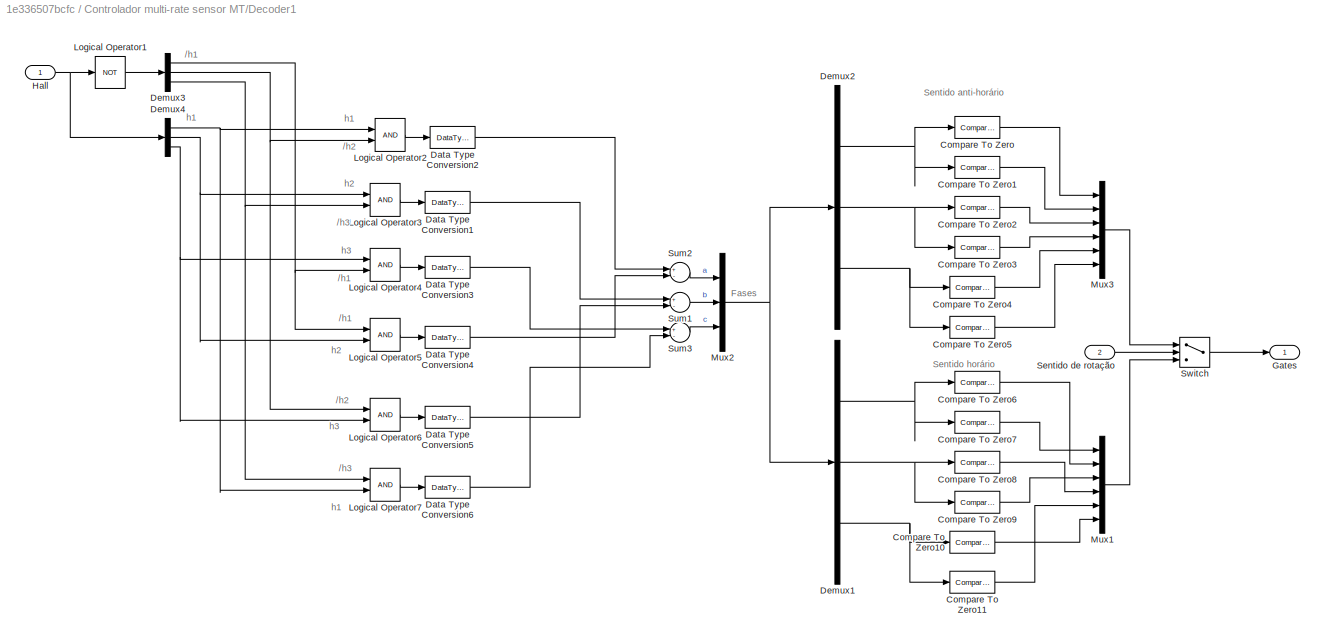
BLOCK [SubSystem] Controlador multi-rate sensor MT/Decoder1
  FunctionWithSeparateData = off
  MaskHideContents = off
  MinAlgLoopOccurrences = off
  Opaque = off
  Ports = [2, 1]
  PropExecContextOutsideSubsystem = off
  RTWSystemCode = Auto
  RequestExecContextInheritance = off
BLOCK [Reference] Controlador multi-rate sensor MT/Decoder1/Compare To Zero  REF=simulink/Logic and Bit
Operations/Compare
To Zero
  OutDataTypeStr = boolean
  Ports = [1, 1]
  SourceBlock = simulink/Logic and Bit\nOperations/Compare\nTo Zero
  SourceType = Compare To Zero
  ZeroCross = off
  relop = >
BLOCK [Reference] Controlador multi-rate sensor MT/Decoder1/Compare To Zero1  REF=simulink/Logic and Bit
Operations/Compare
To Zero
  OutDataTypeStr = boolean
  Ports = [1, 1]
  SourceBlock = simulink/Logic and Bit\nOperations/Compare\nTo Zero
  SourceType = Compare To Zero
  ZeroCross = off
  relop = <
BLOCK [Reference] Controlador multi-rate sensor MT/Decoder1/Compare To Zero10  REF=simulink/Logic and Bit
Operations/Compare
To Zero
  OutDataTypeStr = boolean
  Ports = [1, 1]
  SourceBlock = simulink/Logic and Bit\nOperations/Compare\nTo Zero
  SourceType = Compare To Zero
  ZeroCross = off
  relop = >
BLOCK [Reference] Controlador multi-rate sensor MT/Decoder1/Compare To Zero11  REF=simulink/Logic and Bit
Operations/Compare
To Zero
  OutDataTypeStr = boolean
  Ports = [1, 1]
  SourceBlock = simulink/Logic and Bit\nOperations/Compare\nTo Zero
  SourceType = Compare To Zero
  ZeroCross = off
  relop = <
BLOCK [Reference] Controlador multi-rate sensor MT/Decoder1/Compare To Zero2  REF=simulink/Logic and Bit
Operations/Compare
To Zero
  OutDataTypeStr = boolean
  Ports = [1, 1]
  SourceBlock = simulink/Logic and Bit\nOperations/Compare\nTo Zero
  SourceType = Compare To Zero
  ZeroCross = off
  relop = >
BLOCK [Reference] Controlador multi-rate sensor MT/Decoder1/Compare To Zero3  REF=simulink/Logic and Bit
Operations/Compare
To Zero
  OutDataTypeStr = boolean
  Ports = [1, 1]
  SourceBlock = simulink/Logic and Bit\nOperations/Compare\nTo Zero
  SourceType = Compare To Zero
  ZeroCross = off
  relop = <
BLOCK [Reference] Controlador multi-rate sensor MT/Decoder1/Compare To Zero4  REF=simulink/Logic and Bit
Operations/Compare
To Zero
  OutDataTypeStr = boolean
  Ports = [1, 1]
  SourceBlock = simulink/Logic and Bit\nOperations/Compare\nTo Zero
  SourceType = Compare To Zero
  ZeroCross = off
  relop = >
BLOCK [Reference] Controlador multi-rate sensor MT/Decoder1/Compare To Zero5  REF=simulink/Logic and Bit
Operations/Compare
To Zero
  OutDataTypeStr = boolean
  Ports = [1, 1]
  SourceBlock = simulink/Logic and Bit\nOperations/Compare\nTo Zero
  SourceType = Compare To Zero
  ZeroCross = off
  relop = <
BLOCK [Reference] Controlador multi-rate sensor MT/Decoder1/Compare To Zero6  REF=simulink/Logic and Bit
Operations/Compare
To Zero
  OutDataTypeStr = boolean
  Ports = [1, 1]
  SourceBlock = simulink/Logic and Bit\nOperations/Compare\nTo Zero
  SourceType = Compare To Zero
  ZeroCross = off
  relop = >
BLOCK [Reference] Controlador multi-rate sensor MT/Decoder1/Compare To Zero7  REF=simulink/Logic and Bit
Operations/Compare
To Zero
  OutDataTypeStr = boolean
  Ports = [1, 1]
  SourceBlock = simulink/Logic and Bit\nOperations/Compare\nTo Zero
  SourceType = Compare To Zero
  ZeroCross = off
  relop = <
BLOCK [Reference] Controlador multi-rate sensor MT/Decoder1/Compare To Zero8  REF=simulink/Logic and Bit
Operations/Compare
To Zero
  OutDataTypeStr = boolean
  Ports = [1, 1]
  SourceBlock = simulink/Logic and Bit\nOperations/Compare\nTo Zero
  SourceType = Compare To Zero
  ZeroCross = off
  relop = >
BLOCK [Reference] Controlador multi-rate sensor MT/Decoder1/Compare To Zero9  REF=simulink/Logic and Bit
Operations/Compare
To Zero
  OutDataTypeStr = boolean
  Ports = [1, 1]
  SourceBlock = simulink/Logic and Bit\nOperations/Compare\nTo Zero
  SourceType = Compare To Zero
  ZeroCross = off
  relop = <
BLOCK [DataTypeConversion] Controlador multi-rate sensor MT/Decoder1/Data Type Conversion1
  RndMeth = Floor
  SaturateOnIntegerOverflow = off
BLOCK [DataTypeConversion] Controlador multi-rate sensor MT/Decoder1/Data Type Conversion2
  RndMeth = Floor
  SaturateOnIntegerOverflow = off
BLOCK [DataTypeConversion] Controlador multi-rate sensor MT/Decoder1/Data Type Conversion3
  RndMeth = Floor
  SaturateOnIntegerOverflow = off
BLOCK [DataTypeConversion] Controlador multi-rate sensor MT/Decoder1/Data Type Conversion4
  RndMeth = Floor
  SaturateOnIntegerOverflow = off
BLOCK [DataTypeConversion] Controlador multi-rate sensor MT/Decoder1/Data Type Conversion5
  RndMeth = Floor
  SaturateOnIntegerOverflow = off
BLOCK [DataTypeConversion] Controlador multi-rate sensor MT/Decoder1/Data Type Conversion6
  RndMeth = Floor
  SaturateOnIntegerOverflow = off
BLOCK [Demux] Controlador multi-rate sensor MT/Decoder1/Demux1
  DisplayOption = bar
  Outputs = 3
  Ports = [1, 3]
BLOCK [Demux] Controlador multi-rate sensor MT/Decoder1/Demux2
  DisplayOption = bar
  Outputs = 3
  Ports = [1, 3]
BLOCK [Demux] Controlador multi-rate sensor MT/Decoder1/Demux3
  DisplayOption = bar
  Outputs = 3
  Ports = [1, 3]
BLOCK [Demux] Controlador multi-rate sensor MT/Decoder1/Demux4
  DisplayOption = bar
  Outputs = 3
  Ports = [1, 3]
BLOCK [Outport] Controlador multi-rate sensor MT/Decoder1/Gates
  IconDisplay = Port number
BLOCK [Inport] Controlador multi-rate sensor MT/Decoder1/Hall 
  IconDisplay = Port number
BLOCK [Logic] Controlador multi-rate sensor MT/Decoder1/Logical Operator1
  AllPortsSameDT = off
  Operator = NOT
  OutDataTypeStr = boolean
  Ports = [1, 1]
BLOCK [Logic] Controlador multi-rate sensor MT/Decoder1/Logical Operator2
  AllPortsSameDT = off
  OutDataTypeStr = boolean
  Ports = [2, 1]
BLOCK [Logic] Controlador multi-rate sensor MT/Decoder1/Logical Operator3
  AllPortsSameDT = off
  OutDataTypeStr = boolean
  Ports = [2, 1]
BLOCK [Logic] Controlador multi-rate sensor MT/Decoder1/Logical Operator4
  AllPortsSameDT = off
  OutDataTypeStr = boolean
  Ports = [2, 1]
BLOCK [Logic] Controlador multi-rate sensor MT/Decoder1/Logical Operator5
  AllPortsSameDT = off
  OutDataTypeStr = boolean
  Ports = [2, 1]
BLOCK [Logic] Controlador multi-rate sensor MT/Decoder1/Logical Operator6
  AllPortsSameDT = off
  OutDataTypeStr = boolean
  Ports = [2, 1]
BLOCK [Logic] Controlador multi-rate sensor MT/Decoder1/Logical Operator7
  AllPortsSameDT = off
  OutDataTypeStr = boolean
  Ports = [2, 1]
BLOCK [Mux] Controlador multi-rate sensor MT/Decoder1/Mux1
  DisplayOption = bar
  Inputs = 6
  Ports = [6, 1]
BLOCK [Mux] Controlador multi-rate sensor MT/Decoder1/Mux2
  DisplayOption = bar
  Inputs = 3
  Ports = [3, 1]
BLOCK [Mux] Controlador multi-rate sensor MT/Decoder1/Mux3
  DisplayOption = bar
  Inputs = 6
  Ports = [6, 1]
BLOCK [Inport] Controlador multi-rate sensor MT/Decoder1/Sentido de rotação
  IconDisplay = Port number
  Port = 2
BLOCK [Sum] Controlador multi-rate sensor MT/Decoder1/Sum1
  InputSameDT = off
  Inputs = +-
  OutDataTypeStr = double
  Ports = [2, 1]
  SaturateOnIntegerOverflow = off
BLOCK [Sum] Controlador multi-rate sensor MT/Decoder1/Sum2
  InputSameDT = off
  Inputs = +-
  OutDataTypeStr = double
  Ports = [2, 1]
  SaturateOnIntegerOverflow = off
BLOCK [Sum] Controlador multi-rate sensor MT/Decoder1/Sum3
  InputSameDT = off
  Inputs = +-
  OutDataTypeStr = double
  Ports = [2, 1]
  SaturateOnIntegerOverflow = off
BLOCK [Switch] Controlador multi-rate sensor MT/Decoder1/Switch
  Criteria = u2 > Threshold
  InputSameDT = off
  SaturateOnIntegerOverflow = off
BLOCK [Reference] Controlador multi-rate sensor MT/Detect Change  REF=simulink/Logic and Bit
Operations/Detect
Change
  InputProcessing = Inherited
  OutDataTypeStr = boolean
  Ports = [1, 1]
  SourceBlock = simulink/Logic and Bit\nOperations/Detect\nChange
  SourceType = Detect Change
  vinit = 1
BLOCK [SubSystem] Controlador multi-rate sensor MT/Encoder
  FunctionWithSeparateData = off
  MaskHideContents = off
  MinAlgLoopOccurrences = off
  Opaque = off
  Ports = [1, 3]
  PropExecContextOutsideSubsystem = off
  RTWSystemCode = Auto
  RequestExecContextInheritance = off
BLOCK [Clock] Controlador multi-rate sensor MT/Encoder/Clock
BLOCK [Derivative] Controlador multi-rate sensor MT/Encoder/Derivative
BLOCK [SubSystem] Controlador multi-rate sensor MT/Encoder/Determinar direçao
  FunctionWithSeparateData = off
  MaskHideContents = off
  MinAlgLoopOccurrences = off
  Opaque = off
  Ports = [2, 2]
  PropExecContextOutsideSubsystem = off
  RTWSystemCode = Auto
  RequestExecContextInheritance = off
BLOCK [Inport] Controlador multi-rate sensor MT/Encoder/Determinar direçao/A
  IconDisplay = Port number
BLOCK [Inport] Controlador multi-rate sensor MT/Encoder/Determinar direçao/B
  IconDisplay = Port number
  Port = 2
BLOCK [BusCreator] Controlador multi-rate sensor MT/Encoder/Determinar direçao/Bus Creator1
  DisplayOption = bar
  Ports = [4, 1]
BLOCK [CombinatorialLogic] Controlador multi-rate sensor MT/Encoder/Determinar direçao/Combinatorial  Logic
  TruthTable = [ 0 0 ; 0 1 ; 1 0 ; 0 0 ; 1 0 ; 0 0 ; 0 0 ; 0 1 ; 0 1 ; 0 0 ; 0 0 ; 1 0 ; 0 0 ; 1 0 ; 0 1 ; 0 0]
BLOCK [Demux] Controlador multi-rate sensor MT/Encoder/Determinar direçao/Demux
  DisplayOption = bar
  Outputs = 2
  Ports = [1, 2]
BLOCK [Memory] Controlador multi-rate sensor MT/Encoder/Determinar direçao/Memory
BLOCK [Memory] Controlador multi-rate sensor MT/Encoder/Determinar direçao/Memory1
BLOCK [Outport] Controlador multi-rate sensor MT/Encoder/Determinar direçao/NEG
  IconDisplay = Port number
  Port = 2
BLOCK [Outport] Controlador multi-rate sensor MT/Encoder/Determinar direçao/POS
  IconDisplay = Port number
BLOCK [Fcn] Controlador multi-rate sensor MT/Encoder/Fcn
  Expr = 360/(4*Nr*u)
BLOCK [Gain] Controlador multi-rate sensor MT/Encoder/Graus // pulso1
  Gain = 360/(4*Nr)
  OutDataTypeStr = double
  ParamDataTypeStr = Inherit: Inherit via internal rule
  SaturateOnIntegerOverflow = off
BLOCK [Memory] Controlador multi-rate sensor MT/Encoder/Memory
  X0 = -100
BLOCK [SubSystem] Controlador multi-rate sensor MT/Encoder/Método M
  FunctionWithSeparateData = off
  MaskHideContents = off
  MinAlgLoopOccurrences = off
  Opaque = off
  Ports = [1, 1]
  PropExecContextOutsideSubsystem = off
  RTWSystemCode = Auto
  RequestExecContextInheritance = off
BLOCK [Sum] Controlador multi-rate sensor MT/Encoder/Método M/Add
  IconShape = round
  InputSameDT = off
  Inputs = +-|
  OutDataTypeStr = Inherit: Inherit via internal rule
  Ports = [2, 1]
  SaturateOnIntegerOverflow = off
BLOCK [Reference] Controlador multi-rate sensor MT/Encoder/Método M/Detect Increase  REF=simulink/Logic and Bit
Operations/Detect
Increase
  InputProcessing = Inherited
  OutDataTypeStr = boolean
  Ports = [1, 1]
  SourceBlock = simulink/Logic and Bit\nOperations/Detect\nIncrease
  SourceType = Detect Increase
  vinit = 0.0
BLOCK [Gain] Controlador multi-rate sensor MT/Encoder/Método M/Gain
  Gain = 1/Ts
  OutDataTypeStr = Inherit: Inherit via internal rule
  ParamDataTypeStr = Inherit: Inherit via internal rule
  SaturateOnIntegerOverflow = off
BLOCK [Memory] Controlador multi-rate sensor MT/Encoder/Método M/Memory1
BLOCK [Inport] Controlador multi-rate sensor MT/Encoder/Método M/Posição
  IconDisplay = Port number
BLOCK [DiscretePulseGenerator] Controlador multi-rate sensor MT/Encoder/Método M/Pulse Generator
  Period = Ts
  Ports = [0, 1]
  PulseType = Time based
  PulseWidth = 50
BLOCK [Switch] Controlador multi-rate sensor MT/Encoder/Método M/Switch
  InputSameDT = off
  SaturateOnIntegerOverflow = off
BLOCK [Switch] Controlador multi-rate sensor MT/Encoder/Método M/Switch1
  InputSameDT = off
  SaturateOnIntegerOverflow = off
BLOCK [Outport] Controlador multi-rate sensor MT/Encoder/Método M/Velocidade
  IconDisplay = Port number
BLOCK [Memory] Controlador multi-rate sensor MT/Encoder/Método M/pos'
BLOCK [SubSystem] Controlador multi-rate sensor MT/Encoder/Método T
  FunctionWithSeparateData = off
  MaskHideContents = off
  MinAlgLoopOccurrences = off
  Opaque = off
  Ports = [3, 1]
  PropExecContextOutsideSubsystem = off
  RTWSystemCode = Auto
  RequestExecContextInheritance = off
BLOCK [Inport] Controlador multi-rate sensor MT/Encoder/Método T/A
  IconDisplay = Port number
BLOCK [Sum] Controlador multi-rate sensor MT/Encoder/Método T/Add
  IconShape = round
  InputSameDT = off
  Inputs = +-|
  OutDataTypeStr = Inherit: Inherit via internal rule
  Ports = [2, 1]
  SaturateOnIntegerOverflow = off
BLOCK [Inport] Controlador multi-rate sensor MT/Encoder/Método T/B
  IconDisplay = Port number
  Port = 2
BLOCK [Clock] Controlador multi-rate sensor MT/Encoder/Método T/Clock
BLOCK [Reference] Controlador multi-rate sensor MT/Encoder/Método T/Compare To Constant  REF=simulink/Logic and Bit
Operations/Compare
To Constant
  OutDataTypeStr = boolean
  Ports = [1, 1]
  SourceBlock = simulink/Logic and Bit\nOperations/Compare\nTo Constant
  SourceType = Compare To Constant
  ZeroCross = on
  const = m
  relop = ==
BLOCK [SubSystem] Controlador multi-rate sensor MT/Encoder/Método T/Contador
  FunctionWithSeparateData = off
  MaskHideContents = off
  MinAlgLoopOccurrences = off
  Opaque = off
  Ports = [2, 1]
  PropExecContextOutsideSubsystem = off
  RTWSystemCode = Auto
  RequestExecContextInheritance = off
BLOCK [Constant] Controlador multi-rate sensor MT/Encoder/Método T/Contador/Constant
  Value = 0
BLOCK [Constant] Controlador multi-rate sensor MT/Encoder/Método T/Contador/Constant1
BLOCK [Constant] Controlador multi-rate sensor MT/Encoder/Método T/Contador/Constant2
  Value = 0
BLOCK [Outport] Controlador multi-rate sensor MT/Encoder/Método T/Contador/Count
  IconDisplay = Port number
BLOCK [Inport] Controlador multi-rate sensor MT/Encoder/Método T/Contador/In
  IconDisplay = Port number
BLOCK [Memory] Controlador multi-rate sensor MT/Encoder/Método T/Contador/Memory
BLOCK [Sum] Controlador multi-rate sensor MT/Encoder/Método T/Contador/Sum
  IconShape = round
  InputSameDT = off
  Inputs = |++
  OutDataTypeStr = Inherit: Inherit via internal rule
  Ports = [2, 1]
  SaturateOnIntegerOverflow = off
BLOCK [Switch] Controlador multi-rate sensor MT/Encoder/Método T/Contador/Switch
  InputSameDT = off
  SaturateOnIntegerOverflow = off
BLOCK [Switch] Controlador multi-rate sensor MT/Encoder/Método T/Contador/Switch1
  InputSameDT = off
  SaturateOnIntegerOverflow = off
BLOCK [Inport] Controlador multi-rate sensor MT/Encoder/Método T/Contador/reset
  IconDisplay = Port number
  Port = 2
BLOCK [Reference] Controlador multi-rate sensor MT/Encoder/Método T/Detect Change  REF=simulink/Logic and Bit
Operations/Detect
Change
  InputProcessing = Inherited
  OutDataTypeStr = boolean
  Ports = [1, 1]
  SourceBlock = simulink/Logic and Bit\nOperations/Detect\nChange
  SourceType = Detect Change
  vinit = 0
BLOCK [Reference] Controlador multi-rate sensor MT/Encoder/Método T/Detect Change1  REF=simulink/Logic and Bit
Operations/Detect
Change
  InputProcessing = Inherited
  OutDataTypeStr = boolean
  Ports = [1, 1]
  SourceBlock = simulink/Logic and Bit\nOperations/Detect\nChange
  SourceType = Detect Change
  vinit = 0
BLOCK [Product] Controlador multi-rate sensor MT/Encoder/Método T/Divide
  InputSameDT = off
  Inputs = */
  OutDataTypeStr = Inherit: Inherit via internal rule
  Ports = [2, 1]
  RndMeth = Floor
  SaturateOnIntegerOverflow = off
BLOCK [Logic] Controlador multi-rate sensor MT/Encoder/Método T/Logical Operator
  AllPortsSameDT = off
  Operator = OR
  OutDataTypeStr = boolean
  Ports = [2, 1]
BLOCK [SubSystem] Controlador multi-rate sensor MT/Encoder/Método T/Memória controlavel
  FunctionWithSeparateData = off
  MaskHideContents = off
  MinAlgLoopOccurrences = off
  Opaque = off
  Ports = [2, 1]
  PropExecContextOutsideSubsystem = off
  RTWSystemCode = Auto
  RequestExecContextInheritance = off
BLOCK [Inport] Controlador multi-rate sensor MT/Encoder/Método T/Memória controlavel/In
  IconDisplay = Port number
BLOCK [Memory] Controlador multi-rate sensor MT/Encoder/Método T/Memória controlavel/Memory2
BLOCK [Outport] Controlador multi-rate sensor MT/Encoder/Método T/Memória controlavel/Out
  IconDisplay = Port number
BLOCK [Switch] Controlador multi-rate sensor MT/Encoder/Método T/Memória controlavel/Switch2
  InputSameDT = off
  SaturateOnIntegerOverflow = off
BLOCK [Inport] Controlador multi-rate sensor MT/Encoder/Método T/Memória controlavel/ctrl
  IconDisplay = Port number
  Port = 2
BLOCK [SubSystem] Controlador multi-rate sensor MT/Encoder/Método T/Memória controlavel1
  FunctionWithSeparateData = off
  MaskHideContents = off
  MinAlgLoopOccurrences = off
  Opaque = off
  Ports = [2, 1]
  PropExecContextOutsideSubsystem = off
  RTWSystemCode = Auto
  RequestExecContextInheritance = off
BLOCK [Inport] Controlador multi-rate sensor MT/Encoder/Método T/Memória controlavel1/In
  IconDisplay = Port number
BLOCK [Memory] Controlador multi-rate sensor MT/Encoder/Método T/Memória controlavel1/Memory2
BLOCK [Outport] Controlador multi-rate sensor MT/Encoder/Método T/Memória controlavel1/Out
  IconDisplay = Port number
BLOCK [Switch] Controlador multi-rate sensor MT/Encoder/Método T/Memória controlavel1/Switch2
  InputSameDT = off
  SaturateOnIntegerOverflow = off
BLOCK [Inport] Controlador multi-rate sensor MT/Encoder/Método T/Memória controlavel1/ctrl
  IconDisplay = Port number
  Port = 2
BLOCK [Inport] Controlador multi-rate sensor MT/Encoder/Método T/Posição
  IconDisplay = Port number
  Port = 3
BLOCK [Sum] Controlador multi-rate sensor MT/Encoder/Método T/Sum
  IconShape = round
  InputSameDT = off
  Inputs = |+-
  OutDataTypeStr = Inherit: Inherit via internal rule
  Ports = [2, 1]
  SaturateOnIntegerOverflow = off
BLOCK [Switch] Controlador multi-rate sensor MT/Encoder/Método T/Switch1
  InputSameDT = off
  SaturateOnIntegerOverflow = off
BLOCK [Outport] Controlador multi-rate sensor MT/Encoder/Método T/Velocidade
  IconDisplay = Port number
BLOCK [Memory] Controlador multi-rate sensor MT/Encoder/Método T/pos'
BLOCK [RelationalOperator] Controlador multi-rate sensor MT/Encoder/Relational Operator
  InputSameDT = off
  Operator = >
  OutDataTypeStr = boolean
  Ports = [2, 1]
BLOCK [SubSystem] Controlador multi-rate sensor MT/Encoder/Sensor Óptico
  FunctionWithSeparateData = off
  MaskHideContents = off
  MinAlgLoopOccurrences = off
  Opaque = off
  Ports = [1, 1]
  PropExecContextOutsideSubsystem = off
  RTWSystemCode = Auto
  RequestExecContextInheritance = off
BLOCK [Constant] Controlador multi-rate sensor MT/Encoder/Sensor Óptico/Constant
  Value = 0
BLOCK [Constant] Controlador multi-rate sensor MT/Encoder/Sensor Óptico/Constant1
  Value = Nr
BLOCK [Constant] Controlador multi-rate sensor MT/Encoder/Sensor Óptico/Constant2
  Value = 360
BLOCK [Product] Controlador multi-rate sensor MT/Encoder/Sensor Óptico/Divide
  InputSameDT = off
  Inputs = */
  OutDataTypeStr = Inherit: Inherit via internal rule
  Ports = [2, 1]
  RndMeth = Floor
  SaturateOnIntegerOverflow = off
BLOCK [Gain] Controlador multi-rate sensor MT/Encoder/Sensor Óptico/Gain
  Gain = 1/2
  OutDataTypeStr = Inherit: Inherit via internal rule
  ParamDataTypeStr = Inherit: Inherit via internal rule
  SaturateOnIntegerOverflow = off
BLOCK [Logic] Controlador multi-rate sensor MT/Encoder/Sensor Óptico/Logical Operator
  AllPortsSameDT = off
  OutDataTypeStr = boolean
  Ports = [2, 1]
BLOCK [Math] Controlador multi-rate sensor MT/Encoder/Sensor Óptico/Math Function
  Operator = mod
  Ports = [2, 1]
BLOCK [RelationalOperator] Controlador multi-rate sensor MT/Encoder/Sensor Óptico/Relational Operator
  InputSameDT = off
  Operator = >
  OutDataTypeStr = boolean
  Ports = [2, 1]
BLOCK [RelationalOperator] Controlador multi-rate sensor MT/Encoder/Sensor Óptico/Relational Operator1
  InputSameDT = off
  Operator = <
  OutDataTypeStr = boolean
  Ports = [2, 1]
BLOCK [Outport] Controlador multi-rate sensor MT/Encoder/Sensor Óptico/Sinal_Pulso
  IconDisplay = Port number
BLOCK [Inport] Controlador multi-rate sensor MT/Encoder/Sensor Óptico/Theta
  IconDisplay = Port number
BLOCK [SubSystem] Controlador multi-rate sensor MT/Encoder/Sensor Óptico1
  FunctionWithSeparateData = off
  MaskHideContents = off
  MinAlgLoopOccurrences = off
  Opaque = off
  Ports = [1, 1]
  PropExecContextOutsideSubsystem = off
  RTWSystemCode = Auto
  RequestExecContextInheritance = off
BLOCK [Sum] Controlador multi-rate sensor MT/Encoder/Sensor Óptico1/Add
  InputSameDT = off
  Inputs = +-
  OutDataTypeStr = Inherit: Inherit via internal rule
  Ports = [2, 1]
  SaturateOnIntegerOverflow = off
BLOCK [Constant] Controlador multi-rate sensor MT/Encoder/Sensor Óptico1/Constant
  Value = 0
BLOCK [Constant] Controlador multi-rate sensor MT/Encoder/Sensor Óptico1/Constant1
  Value = Nr
BLOCK [Constant] Controlador multi-rate sensor MT/Encoder/Sensor Óptico1/Constant2
  Value = 360
BLOCK [Product] Controlador multi-rate sensor MT/Encoder/Sensor Óptico1/Divide
  InputSameDT = off
  Inputs = */
  OutDataTypeStr = Inherit: Inherit via internal rule
  Ports = [2, 1]
  RndMeth = Floor
  SaturateOnIntegerOverflow = off
BLOCK [Gain] Controlador multi-rate sensor MT/Encoder/Sensor Óptico1/Gain
  Gain = 1/2
  OutDataTypeStr = Inherit: Inherit via internal rule
  ParamDataTypeStr = Inherit: Inherit via internal rule
  SaturateOnIntegerOverflow = off
BLOCK [Gain] Controlador multi-rate sensor MT/Encoder/Sensor Óptico1/Gain1
  Gain = 1/4
  OutDataTypeStr = Inherit: Inherit via internal rule
  ParamDataTypeStr = Inherit: Inherit via internal rule
  SaturateOnIntegerOverflow = off
BLOCK [Logic] Controlador multi-rate sensor MT/Encoder/Sensor Óptico1/Logical Operator
  AllPortsSameDT = off
  OutDataTypeStr = boolean
  Ports = [2, 1]
BLOCK [Math] Controlador multi-rate sensor MT/Encoder/Sensor Óptico1/Math Function
  Operator = mod
  Ports = [2, 1]
BLOCK [RelationalOperator] Controlador multi-rate sensor MT/Encoder/Sensor Óptico1/Relational Operator
  InputSameDT = off
  Operator = >
  OutDataTypeStr = boolean
  Ports = [2, 1]
BLOCK [RelationalOperator] Controlador multi-rate sensor MT/Encoder/Sensor Óptico1/Relational Operator1
  InputSameDT = off
  Operator = <
  OutDataTypeStr = boolean
  Ports = [2, 1]
BLOCK [Outport] Controlador multi-rate sensor MT/Encoder/Sensor Óptico1/Sinal_Pulso
  IconDisplay = Port number
BLOCK [Inport] Controlador multi-rate sensor MT/Encoder/Sensor Óptico1/Theta
  IconDisplay = Port number
BLOCK [Stop] Controlador multi-rate sensor MT/Encoder/Stop Simulation
BLOCK [SubSystem] Controlador multi-rate sensor MT/Encoder/Subsystem
  FunctionWithSeparateData = off
  MaskHideContents = off
  MinAlgLoopOccurrences = off
  Opaque = off
  Ports = [2, 1]
  PropExecContextOutsideSubsystem = off
  RTWSystemCode = Auto
  RequestExecContextInheritance = off
BLOCK [Constant] Controlador multi-rate sensor MT/Encoder/Subsystem/Constant
  Value = 4*Nr
BLOCK [DataTypeConversion] Controlador multi-rate sensor MT/Encoder/Subsystem/Conversion
  OutDataTypeStr = int32
  RndMeth = Floor
  SaturateOnIntegerOverflow = off
BLOCK [DataTypeConversion] Controlador multi-rate sensor MT/Encoder/Subsystem/Conversion1
  OutDataTypeStr = int32
  RndMeth = Floor
  SaturateOnIntegerOverflow = off
BLOCK [Math] Controlador multi-rate sensor MT/Encoder/Subsystem/Math Function
  Operator = mod
  Ports = [2, 1]
BLOCK [Memory] Controlador multi-rate sensor MT/Encoder/Subsystem/Memory
BLOCK [Inport] Controlador multi-rate sensor MT/Encoder/Subsystem/NEG
  IconDisplay = Port number
  Port = 2
BLOCK [Outport] Controlador multi-rate sensor MT/Encoder/Subsystem/Out
  IconDisplay = Port number
BLOCK [Inport] Controlador multi-rate sensor MT/Encoder/Subsystem/POS
  IconDisplay = Port number
BLOCK [Sum] Controlador multi-rate sensor MT/Encoder/Subsystem/Sum
  InputSameDT = off
  Inputs = +-+
  OutDataTypeStr = Inherit: Inherit via internal rule
  Ports = [3, 1]
  SaturateOnIntegerOverflow = off
BLOCK [Sum] Controlador multi-rate sensor MT/Encoder/Sum
  IconShape = round
  InputSameDT = off
  Inputs = |+-
  OutDataTypeStr = Inherit: Inherit via internal rule
  Ports = [2, 1]
  SaturateOnIntegerOverflow = off
BLOCK [Inport] Controlador multi-rate sensor MT/Encoder/Theta
  IconDisplay = Port number
BLOCK [Outport] Controlador multi-rate sensor MT/Encoder/Theta_amostrado
  IconDisplay = Port number
BLOCK [Outport] Controlador multi-rate sensor MT/Encoder/VelocidadeM
  IconDisplay = Port number
  Port = 3
BLOCK [Outport] Controlador multi-rate sensor MT/Encoder/VelocidadeT
  IconDisplay = Port number
  Port = 2
BLOCK [Gain] Controlador multi-rate sensor MT/Gain1
  Gain = P/2
  OutDataTypeStr = Inherit: Inherit via internal rule
  ParamDataTypeStr = Inherit: Inherit via internal rule
  SaturateOnIntegerOverflow = off
BLOCK [SubSystem] Controlador multi-rate sensor MT/Inversor1
  FunctionWithSeparateData = off
  MaskHideContents = off
  MinAlgLoopOccurrences = off
  Opaque = off
  Ports = [2, 3]
  PropExecContextOutsideSubsystem = off
  RTWSystemCode = Auto
  RequestExecContextInheritance = off
BLOCK [Reference] Controlador multi-rate sensor MT/Inversor1/Compare To Zero  REF=simulink/Logic and Bit
Operations/Compare
To Zero
  OutDataTypeStr = uint8
  Ports = [1, 1]
  SourceBlock = simulink/Logic and Bit\nOperations/Compare\nTo Zero
  SourceType = Compare To Zero
  ZeroCross = off
  relop = >
BLOCK [Reference] Controlador multi-rate sensor MT/Inversor1/Compare To Zero10  REF=simulink/Logic and Bit
Operations/Compare
To Zero
  OutDataTypeStr = boolean
  Ports = [1, 1]
  SourceBlock = simulink/Logic and Bit\nOperations/Compare\nTo Zero
  SourceType = Compare To Zero
  ZeroCross = off
  relop = >
BLOCK [Reference] Controlador multi-rate sensor MT/Inversor1/Compare To Zero2  REF=simulink/Logic and Bit
Operations/Compare
To Zero
  OutDataTypeStr = boolean
  Ports = [1, 1]
  SourceBlock = simulink/Logic and Bit\nOperations/Compare\nTo Zero
  SourceType = Compare To Zero
  ZeroCross = off
  relop = >
BLOCK [Reference] Controlador multi-rate sensor MT/Inversor1/Compare To Zero4  REF=simulink/Logic and Bit
Operations/Compare
To Zero
  OutDataTypeStr = uint8
  Ports = [1, 1]
  SourceBlock = simulink/Logic and Bit\nOperations/Compare\nTo Zero
  SourceType = Compare To Zero
  ZeroCross = off
  relop = >
BLOCK [Reference] Controlador multi-rate sensor MT/Inversor1/Compare To Zero6  REF=simulink/Logic and Bit
Operations/Compare
To Zero
  OutDataTypeStr = boolean
  Ports = [1, 1]
  SourceBlock = simulink/Logic and Bit\nOperations/Compare\nTo Zero
  SourceType = Compare To Zero
  ZeroCross = off
  relop = >
BLOCK [Reference] Controlador multi-rate sensor MT/Inversor1/Compare To Zero8  REF=simulink/Logic and Bit
Operations/Compare
To Zero
  OutDataTypeStr = boolean
  Ports = [1, 1]
  SourceBlock = simulink/Logic and Bit\nOperations/Compare\nTo Zero
  SourceType = Compare To Zero
  ZeroCross = off
  relop = >
BLOCK [DataTypeConversion] Controlador multi-rate sensor MT/Inversor1/Data Type Conversion
  OutDataTypeStr = double
  RndMeth = Floor
  SaturateOnIntegerOverflow = off
BLOCK [DataTypeConversion] Controlador multi-rate sensor MT/Inversor1/Data Type Conversion1
  OutDataTypeStr = double
  RndMeth = Floor
  SaturateOnIntegerOverflow = off
BLOCK [DataTypeConversion] Controlador multi-rate sensor MT/Inversor1/Data Type Conversion2
  OutDataTypeStr = double
  RndMeth = Floor
  SaturateOnIntegerOverflow = off
BLOCK [DataTypeConversion] Controlador multi-rate sensor MT/Inversor1/Data Type Conversion3
  OutDataTypeStr = double
  RndMeth = Floor
  SaturateOnIntegerOverflow = off
BLOCK [DataTypeConversion] Controlador multi-rate sensor MT/Inversor1/Data Type Conversion4
  OutDataTypeStr = double
  RndMeth = Floor
  SaturateOnIntegerOverflow = off
BLOCK [DataTypeConversion] Controlador multi-rate sensor MT/Inversor1/Data Type Conversion5
  OutDataTypeStr = double
  RndMeth = Floor
  SaturateOnIntegerOverflow = off
BLOCK [Demux] Controlador multi-rate sensor MT/Inversor1/Demux2
  DisplayOption = bar
  Outputs = 6
  Ports = [1, 6]
BLOCK [Gain] Controlador multi-rate sensor MT/Inversor1/Gain
  Gain = 1/2
  OutDataTypeStr = Inherit: Inherit via internal rule
  ParamDataTypeStr = Inherit: Inherit via internal rule
  SaturateOnIntegerOverflow = off
BLOCK [Gain] Controlador multi-rate sensor MT/Inversor1/Gain1
  Gain = -1
  OutDataTypeStr = Inherit: Inherit via internal rule
  ParamDataTypeStr = Inherit: Inherit via internal rule
  SaturateOnIntegerOverflow = off
BLOCK [Inport] Controlador multi-rate sensor MT/Inversor1/Gates
  IconDisplay = Port number
BLOCK [Product] Controlador multi-rate sensor MT/Inversor1/Product
  InputSameDT = off
  OutDataTypeStr = Inherit: Inherit via internal rule
  Ports = [2, 1]
  SaturateOnIntegerOverflow = off
BLOCK [Product] Controlador multi-rate sensor MT/Inversor1/Product1
  InputSameDT = off
  OutDataTypeStr = Inherit: Inherit via internal rule
  Ports = [2, 1]
  SaturateOnIntegerOverflow = off
BLOCK [Product] Controlador multi-rate sensor MT/Inversor1/Product2
  InputSameDT = off
  OutDataTypeStr = Inherit: Inherit via internal rule
  Ports = [2, 1]
  SaturateOnIntegerOverflow = off
BLOCK [Product] Controlador multi-rate sensor MT/Inversor1/Product3
  InputSameDT = off
  OutDataTypeStr = Inherit: Inherit via internal rule
  Ports = [2, 1]
  SaturateOnIntegerOverflow = off
BLOCK [Product] Controlador multi-rate sensor MT/Inversor1/Product4
  InputSameDT = off
  OutDataTypeStr = Inherit: Inherit via internal rule
  Ports = [2, 1]
  SaturateOnIntegerOverflow = off
BLOCK [Product] Controlador multi-rate sensor MT/Inversor1/Product5
  InputSameDT = off
  OutDataTypeStr = Inherit: Inherit via internal rule
  Ports = [2, 1]
  SaturateOnIntegerOverflow = off
BLOCK [Sum] Controlador multi-rate sensor MT/Inversor1/Sum1
  InputSameDT = off
  OutDataTypeStr = Inherit: Inherit via internal rule
  Ports = [2, 1]
BLOCK [Sum] Controlador multi-rate sensor MT/Inversor1/Sum2
  InputSameDT = off
  OutDataTypeStr = Inherit: Inherit via internal rule
  Ports = [2, 1]
BLOCK [Sum] Controlador multi-rate sensor MT/Inversor1/Sum3
  InputSameDT = off
  OutDataTypeStr = Inherit: Inherit via internal rule
  Ports = [2, 1]
BLOCK [Outport] Controlador multi-rate sensor MT/Inversor1/Va
  IconDisplay = Port number
BLOCK [Outport] Controlador multi-rate sensor MT/Inversor1/Vb
  IconDisplay = Port number
  Port = 2
BLOCK [Outport] Controlador multi-rate sensor MT/Inversor1/Vc
  IconDisplay = Port number
  Port = 3
BLOCK [Inport] Controlador multi-rate sensor MT/Inversor1/Vcc
  IconDisplay = Port number
  Port = 2
BLOCK [SubSystem] Controlador multi-rate sensor MT/M//T
  FunctionWithSeparateData = off
  MaskHideContents = off
  MinAlgLoopOccurrences = off
  Opaque = off
  Ports = [1, 1]
  PropExecContextOutsideSubsystem = off
  RTWSystemCode = Auto
  RequestExecContextInheritance = off
BLOCK [Clock] Controlador multi-rate sensor MT/M//T/Clock
BLOCK [Reference] Controlador multi-rate sensor MT/M//T/Compare To Constant  REF=simulink/Logic and Bit
Operations/Compare
To Constant
  OutDataTypeStr = boolean
  Ports = [1, 1]
  SourceBlock = simulink/Logic and Bit\nOperations/Compare\nTo Constant
  SourceType = Compare To Constant
  ZeroCross = on
  const = Ts
  relop = >=
BLOCK [Reference] Controlador multi-rate sensor MT/M//T/Detect Change  REF=simulink/Logic and Bit
Operations/Detect
Change
  InputProcessing = Inherited
  OutDataTypeStr = boolean
  Ports = [1, 1]
  SourceBlock = simulink/Logic and Bit\nOperations/Detect\nChange
  SourceType = Detect Change
  vinit = 0
BLOCK [Product] Controlador multi-rate sensor MT/M//T/Divide
  InputSameDT = off
  Inputs = */
  OutDataTypeStr = Inherit: Inherit via internal rule
  Ports = [2, 1]
  RndMeth = Floor
  SaturateOnIntegerOverflow = off
BLOCK [Logic] Controlador multi-rate sensor MT/M//T/Logical Operator
  AllPortsSameDT = off
  OutDataTypeStr = boolean
  Ports = [2, 1]
BLOCK [SubSystem] Controlador multi-rate sensor MT/M//T/Memória controlavel
  FunctionWithSeparateData = off
  MaskHideContents = off
  MinAlgLoopOccurrences = off
  Opaque = off
  Ports = [2, 1]
  PropExecContextOutsideSubsystem = off
  RTWSystemCode = Auto
  RequestExecContextInheritance = off
BLOCK [Inport] Controlador multi-rate sensor MT/M//T/Memória controlavel/In
  IconDisplay = Port number
BLOCK [Memory] Controlador multi-rate sensor MT/M//T/Memória controlavel/Memory2
BLOCK [Outport] Controlador multi-rate sensor MT/M//T/Memória controlavel/Out
  IconDisplay = Port number
BLOCK [Switch] Controlador multi-rate sensor MT/M//T/Memória controlavel/Switch2
  InputSameDT = off
  SaturateOnIntegerOverflow = off
BLOCK [Inport] Controlador multi-rate sensor MT/M//T/Memória controlavel/ctrl
  IconDisplay = Port number
  Port = 2
BLOCK [SubSystem] Controlador multi-rate sensor MT/M//T/Memória controlavel1
  FunctionWithSeparateData = off
  MaskHideContents = off
  MinAlgLoopOccurrences = off
  Opaque = off
  Ports = [2, 1]
  PropExecContextOutsideSubsystem = off
  RTWSystemCode = Auto
  RequestExecContextInheritance = off
BLOCK [Inport] Controlador multi-rate sensor MT/M//T/Memória controlavel1/In
  IconDisplay = Port number
BLOCK [Memory] Controlador multi-rate sensor MT/M//T/Memória controlavel1/Memory2
BLOCK [Outport] Controlador multi-rate sensor MT/M//T/Memória controlavel1/Out
  IconDisplay = Port number
BLOCK [Switch] Controlador multi-rate sensor MT/M//T/Memória controlavel1/Switch2
  InputSameDT = off
  SaturateOnIntegerOverflow = off
BLOCK [Inport] Controlador multi-rate sensor MT/M//T/Memória controlavel1/ctrl
  IconDisplay = Port number
  Port = 2
BLOCK [SubSystem] Controlador multi-rate sensor MT/M//T/Memória controlavel2
  FunctionWithSeparateData = off
  MaskHideContents = off
  MinAlgLoopOccurrences = off
  Opaque = off
  Ports = [2, 1]
  PropExecContextOutsideSubsystem = off
  RTWSystemCode = Auto
  RequestExecContextInheritance = off
BLOCK [Inport] Controlador multi-rate sensor MT/M//T/Memória controlavel2/In
  IconDisplay = Port number
BLOCK [Memory] Controlador multi-rate sensor MT/M//T/Memória controlavel2/Memory2
BLOCK [Outport] Controlador multi-rate sensor MT/M//T/Memória controlavel2/Out
  IconDisplay = Port number
BLOCK [Switch] Controlador multi-rate sensor MT/M//T/Memória controlavel2/Switch2
  InputSameDT = off
  SaturateOnIntegerOverflow = off
BLOCK [Inport] Controlador multi-rate sensor MT/M//T/Memória controlavel2/ctrl
  IconDisplay = Port number
  Port = 2
BLOCK [Sum] Controlador multi-rate sensor MT/M//T/Sum
  IconShape = round
  InputSameDT = off
  Inputs = +-|
  OutDataTypeStr = Inherit: Inherit via internal rule
  Ports = [2, 1]
  SaturateOnIntegerOverflow = off
BLOCK [Sum] Controlador multi-rate sensor MT/M//T/Sum1
  IconShape = round
  InputSameDT = off
  Inputs = +-|
  OutDataTypeStr = Inherit: Inherit via internal rule
  Ports = [2, 1]
  SaturateOnIntegerOverflow = off
BLOCK [Inport] Controlador multi-rate sensor MT/M//T/posicao
  IconDisplay = Port number
BLOCK [Outport] Controlador multi-rate sensor MT/M//T/velocidade
  IconDisplay = Port number
BLOCK [Saturate] Controlador multi-rate sensor MT/Saturation1
  InputPortMap = u0
  LowerLimit = -12
  Ports = [1, 1]
  UpperLimit = 12
BLOCK [Scope] Controlador multi-rate sensor MT/Scope
  DataFormat = StructureWithTime
  Floating = off
  LegendLocations = 0.80199     0.90549       0.115     0.04439\n0.79579     0.43724     0.11938     0.04439
  LimitDataPoints = off
  NumInputPorts = 2
  Ports = [2]
  SampleTime = 0
  SaveName = ScopeData8
  ShowLegends = on
  YMax = 400~600
  YMin = 0~-350
BLOCK [SubSystem] Controlador multi-rate sensor MT/Sensores Hall1
  AncestorBlock = spsPMSynchronousMachineModel/Discrete Trapezoidal/Hall effect sensor
  FunctionWithSeparateData = off
  MaskHideContents = off
  MinAlgLoopOccurrences = off
  Opaque = off
  Ports = [1, 1]
  PropExecContextOutsideSubsystem = off
  RTWSystemCode = Auto
  RequestExecContextInheritance = off
BLOCK [Constant] Controlador multi-rate sensor MT/Sensores Hall1/Constant10
  Value = 240
BLOCK [Constant] Controlador multi-rate sensor MT/Sensores Hall1/Constant11
  Value = 360
BLOCK [Constant] Controlador multi-rate sensor MT/Sensores Hall1/Constant12
  Value = 180
BLOCK [Constant] Controlador multi-rate sensor MT/Sensores Hall1/Constant6
  Value = 0
BLOCK [Constant] Controlador multi-rate sensor MT/Sensores Hall1/Constant7
  Value = 120
BLOCK [Constant] Controlador multi-rate sensor MT/Sensores Hall1/Constant8
  Value = 300
BLOCK [Constant] Controlador multi-rate sensor MT/Sensores Hall1/Constant9
  Value = 60
BLOCK [DataTypeConversion] Controlador multi-rate sensor MT/Sensores Hall1/Data Type Conversion3
BLOCK [DataTypeConversion] Controlador multi-rate sensor MT/Sensores Hall1/Data Type Conversion4
BLOCK [DataTypeConversion] Controlador multi-rate sensor MT/Sensores Hall1/Data Type Conversion5
BLOCK [Gain] Controlador multi-rate sensor MT/Sensores Hall1/Gain1
  Gain = 180/pi
  OutDataTypeStr = Inherit: Inherit via internal rule
  ParamDataTypeStr = Inherit: Inherit via internal rule
  SaturateOnIntegerOverflow = off
BLOCK [Outport] Controlador multi-rate sensor MT/Sensores Hall1/Hall
  IconDisplay = Port number
BLOCK [Logic] Controlador multi-rate sensor MT/Sensores Hall1/Logical Operator3
  AllPortsSameDT = off
  OutDataTypeStr = boolean
  Ports = [2, 1]
BLOCK [Logic] Controlador multi-rate sensor MT/Sensores Hall1/Logical Operator4
  AllPortsSameDT = off
  Operator = OR
  OutDataTypeStr = boolean
  Ports = [2, 1]
BLOCK [Logic] Controlador multi-rate sensor MT/Sensores Hall1/Logical Operator5
  AllPortsSameDT = off
  OutDataTypeStr = boolean
  Ports = [2, 1]
BLOCK [Math] Controlador multi-rate sensor MT/Sensores Hall1/Math Function1
  Operator = mod
  Ports = [2, 1]
BLOCK [Mux] Controlador multi-rate sensor MT/Sensores Hall1/Mux1
  DisplayOption = bar
  Inputs = 3
  Ports = [3, 1]
BLOCK [RelationalOperator] Controlador multi-rate sensor MT/Sensores Hall1/Relational Operator10
  Ports = [2, 1]
BLOCK [RelationalOperator] Controlador multi-rate sensor MT/Sensores Hall1/Relational Operator11
  Operator = <=
  Ports = [2, 1]
BLOCK [RelationalOperator] Controlador multi-rate sensor MT/Sensores Hall1/Relational Operator12
  Ports = [2, 1]
BLOCK [RelationalOperator] Controlador multi-rate sensor MT/Sensores Hall1/Relational Operator7
  Ports = [2, 1]
BLOCK [RelationalOperator] Controlador multi-rate sensor MT/Sensores Hall1/Relational Operator8
  Operator = <=
  Ports = [2, 1]
BLOCK [RelationalOperator] Controlador multi-rate sensor MT/Sensores Hall1/Relational Operator9
  Ports = [2, 1]
BLOCK [Inport] Controlador multi-rate sensor MT/Sensores Hall1/teta_e
  IconDisplay = Port number
BLOCK [Step] Controlador multi-rate sensor MT/Step1
  After = 0*2e-3
  SampleTime = 0
  Time = 0.2
BLOCK [SubSystem] Controlador multi-rate sensor MT/Subsystem
  FunctionWithSeparateData = off
  MaskHideContents = off
  MinAlgLoopOccurrences = off
  Opaque = off
  Ports = [2, 1]
  PropExecContextOutsideSubsystem = off
  RTWSystemCode = Auto
  RequestExecContextInheritance = off
BLOCK [Clock] Controlador multi-rate sensor MT/Subsystem/Clock
BLOCK [Constant] Controlador multi-rate sensor MT/Subsystem/Constant1
  Value = 0.000518155
BLOCK [Gain] Controlador multi-rate sensor MT/Subsystem/Gain2
  Gain = 0.0431726
  OutDataTypeStr = Inherit: Inherit via internal rule
  ParamDataTypeStr = Inherit: Inherit via internal rule
  SaturateOnIntegerOverflow = off
BLOCK [Gain] Controlador multi-rate sensor MT/Subsystem/Gain3
  Gain = 0.000518155
  OutDataTypeStr = Inherit: Inherit via internal rule
  ParamDataTypeStr = Inherit: Inherit via internal rule
  SaturateOnIntegerOverflow = off
BLOCK [SubSystem] Controlador multi-rate sensor MT/Subsystem/Memória controlavel
  FunctionWithSeparateData = off
  MaskHideContents = off
  MinAlgLoopOccurrences = off
  Opaque = off
  Ports = [2, 1]
  PropExecContextOutsideSubsystem = off
  RTWSystemCode = Auto
  RequestExecContextInheritance = off
BLOCK [SubSystem] Controlador multi-rate sensor MT/Subsystem/Memória controlavel (Y')
  FunctionWithSeparateData = off
  MaskHideContents = off
  MinAlgLoopOccurrences = off
  Opaque = off
  Ports = [2, 1]
  PropExecContextOutsideSubsystem = off
  RTWSystemCode = Auto
  RequestExecContextInheritance = off
BLOCK [Inport] Controlador multi-rate sensor MT/Subsystem/Memória controlavel (Y')/In
  IconDisplay = Port number
BLOCK [Memory] Controlador multi-rate sensor MT/Subsystem/Memória controlavel (Y')/Memory2
BLOCK [Outport] Controlador multi-rate sensor MT/Subsystem/Memória controlavel (Y')/Out
  IconDisplay = Port number
BLOCK [Switch] Controlador multi-rate sensor MT/Subsystem/Memória controlavel (Y')/Switch2
  InputSameDT = off
  SaturateOnIntegerOverflow = off
BLOCK [Inport] Controlador multi-rate sensor MT/Subsystem/Memória controlavel (Y')/ctrl
  IconDisplay = Port number
  Port = 2
BLOCK [SubSystem] Controlador multi-rate sensor MT/Subsystem/Memória controlavel (e')
  FunctionWithSeparateData = off
  MaskHideContents = off
  MinAlgLoopOccurrences = off
  Opaque = off
  Ports = [2, 1]
  PropExecContextOutsideSubsystem = off
  RTWSystemCode = Auto
  RequestExecContextInheritance = off
BLOCK [Inport] Controlador multi-rate sensor MT/Subsystem/Memória controlavel (e')/In
  IconDisplay = Port number
BLOCK [Memory] Controlador multi-rate sensor MT/Subsystem/Memória controlavel (e')/Memory2
BLOCK [Outport] Controlador multi-rate sensor MT/Subsystem/Memória controlavel (e')/Out
  IconDisplay = Port number
BLOCK [Switch] Controlador multi-rate sensor MT/Subsystem/Memória controlavel (e')/Switch2
  InputSameDT = off
  SaturateOnIntegerOverflow = off
BLOCK [Inport] Controlador multi-rate sensor MT/Subsystem/Memória controlavel (e')/ctrl
  IconDisplay = Port number
  Port = 2
BLOCK [SubSystem] Controlador multi-rate sensor MT/Subsystem/Memória controlavel (u)
  FunctionWithSeparateData = off
  MaskHideContents = off
  MinAlgLoopOccurrences = off
  Opaque = off
  Ports = [2, 1]
  PropExecContextOutsideSubsystem = off
  RTWSystemCode = Auto
  RequestExecContextInheritance = off
BLOCK [Inport] Controlador multi-rate sensor MT/Subsystem/Memória controlavel (u)/In
  IconDisplay = Port number
BLOCK [Memory] Controlador multi-rate sensor MT/Subsystem/Memória controlavel (u)/Memory2
BLOCK [Outport] Controlador multi-rate sensor MT/Subsystem/Memória controlavel (u)/Out
  IconDisplay = Port number
BLOCK [Switch] Controlador multi-rate sensor MT/Subsystem/Memória controlavel (u)/Switch2
  InputSameDT = off
  SaturateOnIntegerOverflow = off
BLOCK [Inport] Controlador multi-rate sensor MT/Subsystem/Memória controlavel (u)/ctrl
  IconDisplay = Port number
  Port = 2
BLOCK [Inport] Controlador multi-rate sensor MT/Subsystem/Memória controlavel/In
  IconDisplay = Port number
BLOCK [Memory] Controlador multi-rate sensor MT/Subsystem/Memória controlavel/Memory2
BLOCK [Outport] Controlador multi-rate sensor MT/Subsystem/Memória controlavel/Out
  IconDisplay = Port number
BLOCK [Switch] Controlador multi-rate sensor MT/Subsystem/Memória controlavel/Switch2
  InputSameDT = off
  SaturateOnIntegerOverflow = off
BLOCK [Inport] Controlador multi-rate sensor MT/Subsystem/Memória controlavel/ctrl
  IconDisplay = Port number
  Port = 2
BLOCK [Product] Controlador multi-rate sensor MT/Subsystem/Product
  InputSameDT = off
  OutDataTypeStr = Inherit: Inherit via internal rule
  Ports = [2, 1]
  SaturateOnIntegerOverflow = off
BLOCK [Sum] Controlador multi-rate sensor MT/Subsystem/Sum
  IconShape = round
  InputSameDT = off
  Inputs = ++-
  OutDataTypeStr = Inherit: Inherit via internal rule
  Ports = [3, 1]
  SaturateOnIntegerOverflow = off
BLOCK [Sum] Controlador multi-rate sensor MT/Subsystem/Sum1
  IconShape = round
  InputSameDT = off
  Inputs = |+-
  OutDataTypeStr = Inherit: Inherit via internal rule
  Ports = [2, 1]
  SaturateOnIntegerOverflow = off
BLOCK [Sum] Controlador multi-rate sensor MT/Subsystem/Sum2
  IconShape = round
  InputSameDT = off
  Inputs = |+-
  OutDataTypeStr = Inherit: Inherit via internal rule
  Ports = [2, 1]
  SaturateOnIntegerOverflow = off
BLOCK [Inport] Controlador multi-rate sensor MT/Subsystem/clock
  IconDisplay = Port number
  Port = 2
BLOCK [Inport] Controlador multi-rate sensor MT/Subsystem/e
  IconDisplay = Port number
BLOCK [Outport] Controlador multi-rate sensor MT/Subsystem/u
  IconDisplay = Port number
BLOCK [Inport] Controlador multi-rate sensor MT/ref
  IconDisplay = Port number
BLOCK [Outport] Controlador multi-rate sensor MT/u
  IconDisplay = Port number
  Port = 2
BLOCK [Outport] Controlador multi-rate sensor MT/w
  IconDisplay = Port number
BLOCK [SubSystem] Controlador multi-rate sensor T
  FunctionWithSeparateData = off
  MaskHideContents = off
  MinAlgLoopOccurrences = off
  Opaque = off
  Ports = [1, 2]
  PropExecContextOutsideSubsystem = off
  RTWSystemCode = Auto
  RequestExecContextInheritance = off
BLOCK [Sum] Controlador multi-rate sensor T/Add1
  IconShape = round
  InputSameDT = off
  Inputs = -+|
  OutDataTypeStr = Inherit: Inherit via internal rule
  Ports = [2, 1]
  SaturateOnIntegerOverflow = off
BLOCK [Constant] Controlador multi-rate sensor T/Anti-horário1
BLOCK [SubSystem] Controlador multi-rate sensor T/BLDC1
  FunctionWithSeparateData = off
  MaskHideContents = off
  MinAlgLoopOccurrences = off
  Opaque = off
  Ports = [4, 2]
  PropExecContextOutsideSubsystem = off
  RTWSystemCode = Auto
  RequestExecContextInheritance = off
BLOCK [SubSystem] Controlador multi-rate sensor T/BLDC1/Cálculo Torque fase "a"
  FunctionWithSeparateData = off
  MaskHideContents = off
  MinAlgLoopOccurrences = off
  Opaque = off
  Ports = [2, 1]
  PropExecContextOutsideSubsystem = off
  RTWSystemCode = Auto
  RequestExecContextInheritance = off
BLOCK [Constant] Controlador multi-rate sensor T/BLDC1/Cálculo Torque fase "a"/Constant1
  Value = 360
BLOCK [Gain] Controlador multi-rate sensor T/BLDC1/Cálculo Torque fase "a"/Gain
  Gain = Kt/2
  OutDataTypeStr = Inherit: Inherit via internal rule
  ParamDataTypeStr = Inherit: Inherit via internal rule
  SaturateOnIntegerOverflow = off
BLOCK [Gain] Controlador multi-rate sensor T/BLDC1/Cálculo Torque fase "a"/Gain1
  Gain = 180/pi
  OutDataTypeStr = Inherit: Inherit via internal rule
  ParamDataTypeStr = Inherit: Inherit via internal rule
  SaturateOnIntegerOverflow = off
BLOCK [Math] Controlador multi-rate sensor T/BLDC1/Cálculo Torque fase "a"/Math Function1
  Operator = mod
  Ports = [2, 1]
BLOCK [Product] Controlador multi-rate sensor T/BLDC1/Cálculo Torque fase "a"/Product
  InputSameDT = off
  OutDataTypeStr = Inherit: Inherit via internal rule
  Ports = [2, 1]
  SaturateOnIntegerOverflow = off
BLOCK [Outport] Controlador multi-rate sensor T/BLDC1/Cálculo Torque fase "a"/T_a
  IconDisplay = Port number
BLOCK [Inport] Controlador multi-rate sensor T/BLDC1/Cálculo Torque fase "a"/Theta_e
  IconDisplay = Port number
  Port = 2
BLOCK [Lookup] Controlador multi-rate sensor T/BLDC1/Cálculo Torque fase "a"/fa1
  InputValues = [0 30 60 90 120 150 180 210 240 270 300 330 360]
  SaturateOnIntegerOverflow = off
  Table = [ 1 1 1 0 -1 -1 -1 -1 -1 0 1 1 1]
BLOCK [Inport] Controlador multi-rate sensor T/BLDC1/Cálculo Torque fase "a"/i_a
  IconDisplay = Port number
BLOCK [SubSystem] Controlador multi-rate sensor T/BLDC1/Cálculo Torque fase "b"
  FunctionWithSeparateData = off
  MaskHideContents = off
  MinAlgLoopOccurrences = off
  Opaque = off
  Ports = [2, 1]
  PropExecContextOutsideSubsystem = off
  RTWSystemCode = Auto
  RequestExecContextInheritance = off
BLOCK [Constant] Controlador multi-rate sensor T/BLDC1/Cálculo Torque fase "b"/Constant1
  Value = 360
BLOCK [Gain] Controlador multi-rate sensor T/BLDC1/Cálculo Torque fase "b"/Gain
  Gain = Kt/2
  OutDataTypeStr = Inherit: Inherit via internal rule
  ParamDataTypeStr = Inherit: Inherit via internal rule
  SaturateOnIntegerOverflow = off
BLOCK [Gain] Controlador multi-rate sensor T/BLDC1/Cálculo Torque fase "b"/Gain1
  Gain = 180/pi
  OutDataTypeStr = Inherit: Inherit via internal rule
  ParamDataTypeStr = Inherit: Inherit via internal rule
  SaturateOnIntegerOverflow = off
BLOCK [Math] Controlador multi-rate sensor T/BLDC1/Cálculo Torque fase "b"/Math Function1
  Operator = mod
  Ports = [2, 1]
BLOCK [Product] Controlador multi-rate sensor T/BLDC1/Cálculo Torque fase "b"/Product
  InputSameDT = off
  OutDataTypeStr = Inherit: Inherit via internal rule
  Ports = [2, 1]
  SaturateOnIntegerOverflow = off
BLOCK [Outport] Controlador multi-rate sensor T/BLDC1/Cálculo Torque fase "b"/T_b
  IconDisplay = Port number
BLOCK [Inport] Controlador multi-rate sensor T/BLDC1/Cálculo Torque fase "b"/Theta_e
  IconDisplay = Port number
  Port = 2
BLOCK [Lookup] Controlador multi-rate sensor T/BLDC1/Cálculo Torque fase "b"/fb2
  InputValues = [0 30 60 90 120 150 180 210 240 270 300 330 360]
  SaturateOnIntegerOverflow = off
  Table = [-1 0 1 1 1 1 1 0 -1 -1 -1 -1 -1]
BLOCK [Inport] Controlador multi-rate sensor T/BLDC1/Cálculo Torque fase "b"/i_b
  IconDisplay = Port number
BLOCK [SubSystem] Controlador multi-rate sensor T/BLDC1/Cálculo Torque fase "c"
  FunctionWithSeparateData = off
  MaskHideContents = off
  MinAlgLoopOccurrences = off
  Opaque = off
  Ports = [2, 1]
  PropExecContextOutsideSubsystem = off
  RTWSystemCode = Auto
  RequestExecContextInheritance = off
BLOCK [Constant] Controlador multi-rate sensor T/BLDC1/Cálculo Torque fase "c"/Constant1
  Value = 360
BLOCK [Gain] Controlador multi-rate sensor T/BLDC1/Cálculo Torque fase "c"/Gain
  Gain = Kt/2
  OutDataTypeStr = Inherit: Inherit via internal rule
  ParamDataTypeStr = Inherit: Inherit via internal rule
  SaturateOnIntegerOverflow = off
BLOCK [Gain] Controlador multi-rate sensor T/BLDC1/Cálculo Torque fase "c"/Gain1
  Gain = 180/pi
  OutDataTypeStr = Inherit: Inherit via internal rule
  ParamDataTypeStr = Inherit: Inherit via internal rule
  SaturateOnIntegerOverflow = off
BLOCK [Math] Controlador multi-rate sensor T/BLDC1/Cálculo Torque fase "c"/Math Function1
  Operator = mod
  Ports = [2, 1]
BLOCK [Product] Controlador multi-rate sensor T/BLDC1/Cálculo Torque fase "c"/Product
  InputSameDT = off
  OutDataTypeStr = Inherit: Inherit via internal rule
  Ports = [2, 1]
  SaturateOnIntegerOverflow = off
BLOCK [Outport] Controlador multi-rate sensor T/BLDC1/Cálculo Torque fase "c"/T_c
  IconDisplay = Port number
BLOCK [Inport] Controlador multi-rate sensor T/BLDC1/Cálculo Torque fase "c"/Theta_e
  IconDisplay = Port number
  Port = 2
BLOCK [Lookup] Controlador multi-rate sensor T/BLDC1/Cálculo Torque fase "c"/fc1
  InputValues = [0 30 60 90 120 150 180 210 240 270 300 330 360]
  SaturateOnIntegerOverflow = off
  Table = [-1 -1 -1 -1 -1 0 1 1 1 1 1 0 -1]
BLOCK [Inport] Controlador multi-rate sensor T/BLDC1/Cálculo Torque fase "c"/i_c
  IconDisplay = Port number
BLOCK [SubSystem] Controlador multi-rate sensor T/BLDC1/Cálculo das FCEMs
  FunctionWithSeparateData = off
  MaskHideContents = off
  MinAlgLoopOccurrences = off
  Opaque = off
  Ports = [2, 3]
  PropExecContextOutsideSubsystem = off
  RTWSystemCode = Auto
  RequestExecContextInheritance = off
BLOCK [Constant] Controlador multi-rate sensor T/BLDC1/Cálculo das FCEMs/Constant1
  Value = 360
BLOCK [Constant] Controlador multi-rate sensor T/BLDC1/Cálculo das FCEMs/Constant2
  Value = 360
BLOCK [Constant] Controlador multi-rate sensor T/BLDC1/Cálculo das FCEMs/Constant3
  Value = 360
BLOCK [Gain] Controlador multi-rate sensor T/BLDC1/Cálculo das FCEMs/Gain1
  Gain = 180/pi
  OutDataTypeStr = Inherit: Inherit via internal rule
  ParamDataTypeStr = Inherit: Inherit via internal rule
  SaturateOnIntegerOverflow = off
BLOCK [Gain] Controlador multi-rate sensor T/BLDC1/Cálculo das FCEMs/Gain2
  Gain = Ke/2
  OutDataTypeStr = Inherit: Inherit via internal rule
  ParamDataTypeStr = Inherit: Inherit via internal rule
  SaturateOnIntegerOverflow = off
BLOCK [Gain] Controlador multi-rate sensor T/BLDC1/Cálculo das FCEMs/Gain3
  Gain = Ke/2
  OutDataTypeStr = Inherit: Inherit via internal rule
  ParamDataTypeStr = Inherit: Inherit via internal rule
  SaturateOnIntegerOverflow = off
BLOCK [Gain] Controlador multi-rate sensor T/BLDC1/Cálculo das FCEMs/Gain4
  Gain = Ke/2
  OutDataTypeStr = Inherit: Inherit via internal rule
  ParamDataTypeStr = Inherit: Inherit via internal rule
  SaturateOnIntegerOverflow = off
BLOCK [Gain] Controlador multi-rate sensor T/BLDC1/Cálculo das FCEMs/Gain5
  Gain = 180/pi
  OutDataTypeStr = Inherit: Inherit via internal rule
  ParamDataTypeStr = Inherit: Inherit via internal rule
  SaturateOnIntegerOverflow = off
BLOCK [Gain] Controlador multi-rate sensor T/BLDC1/Cálculo das FCEMs/Gain6
  Gain = 180/pi
  OutDataTypeStr = Inherit: Inherit via internal rule
  ParamDataTypeStr = Inherit: Inherit via internal rule
  SaturateOnIntegerOverflow = off
BLOCK [Math] Controlador multi-rate sensor T/BLDC1/Cálculo das FCEMs/Math Function1
  Operator = mod
  Ports = [2, 1]
BLOCK [Math] Controlador multi-rate sensor T/BLDC1/Cálculo das FCEMs/Math Function2
  Operator = mod
  Ports = [2, 1]
BLOCK [Math] Controlador multi-rate sensor T/BLDC1/Cálculo das FCEMs/Math Function3
  Operator = mod
  Ports = [2, 1]
BLOCK [Product] Controlador multi-rate sensor T/BLDC1/Cálculo das FCEMs/Product
  InputSameDT = off
  OutDataTypeStr = Inherit: Inherit via internal rule
  Ports = [2, 1]
  SaturateOnIntegerOverflow = off
BLOCK [Product] Controlador multi-rate sensor T/BLDC1/Cálculo das FCEMs/Product1
  InputSameDT = off
  OutDataTypeStr = Inherit: Inherit via internal rule
  Ports = [2, 1]
  SaturateOnIntegerOverflow = off
BLOCK [Product] Controlador multi-rate sensor T/BLDC1/Cálculo das FCEMs/Product2
  InputSameDT = off
  OutDataTypeStr = Inherit: Inherit via internal rule
  Ports = [2, 1]
  SaturateOnIntegerOverflow = off
BLOCK [Inport] Controlador multi-rate sensor T/BLDC1/Cálculo das FCEMs/Theta_e
  IconDisplay = Port number
BLOCK [Outport] Controlador multi-rate sensor T/BLDC1/Cálculo das FCEMs/e_a
  IconDisplay = Port number
BLOCK [Outport] Controlador multi-rate sensor T/BLDC1/Cálculo das FCEMs/e_b
  IconDisplay = Port number
  Port = 2
BLOCK [Outport] Controlador multi-rate sensor T/BLDC1/Cálculo das FCEMs/e_c
  IconDisplay = Port number
  Port = 3
BLOCK [Lookup] Controlador multi-rate sensor T/BLDC1/Cálculo das FCEMs/fa1
  InputValues = [0 30 60 90 120 150 180 210 240 270 300 330 360]
  SaturateOnIntegerOverflow = off
  Table = [ 1 1 1 0 -1 -1 -1 -1 -1 0 1 1 1]
BLOCK [Lookup] Controlador multi-rate sensor T/BLDC1/Cálculo das FCEMs/fb2
  InputValues = [0 30 60 90 120 150 180 210 240 270 300 330 360]
  SaturateOnIntegerOverflow = off
  Table = [-1 0 1 1 1 1 1 0 -1 -1 -1 -1 -1]
BLOCK [Lookup] Controlador multi-rate sensor T/BLDC1/Cálculo das FCEMs/fc1
  InputValues = [0 30 60 90 120 150 180 210 240 270 300 330 360]
  SaturateOnIntegerOverflow = off
  Table = [-1 -1 -1 -1 -1 0 1 1 1 1 1 0 -1]
BLOCK [Inport] Controlador multi-rate sensor T/BLDC1/Cálculo das FCEMs/w_m
  IconDisplay = Port number
  Port = 2
BLOCK [SubSystem] Controlador multi-rate sensor T/BLDC1/Dinâmica fase "a"
  FunctionWithSeparateData = off
  MaskHideContents = off
  MinAlgLoopOccurrences = off
  Opaque = off
  Ports = [2, 1]
  PropExecContextOutsideSubsystem = off
  RTWSystemCode = Auto
  RequestExecContextInheritance = off
BLOCK [Gain] Controlador multi-rate sensor T/BLDC1/Dinâmica fase "a"/ 
  Gain = 1/L
  OutDataTypeStr = Inherit: Inherit via internal rule
  ParamDataTypeStr = Inherit: Inherit via internal rule
  SaturateOnIntegerOverflow = off
BLOCK [Gain] Controlador multi-rate sensor T/BLDC1/Dinâmica fase "a"/Gain
  Gain = R
  OutDataTypeStr = Inherit: Inherit via internal rule
  ParamDataTypeStr = Inherit: Inherit via internal rule
  SaturateOnIntegerOverflow = off
BLOCK [Integrator] Controlador multi-rate sensor T/BLDC1/Dinâmica fase "a"/Integrator
  Ports = [1, 1]
BLOCK [Sum] Controlador multi-rate sensor T/BLDC1/Dinâmica fase "a"/Sum
  InputSameDT = off
  Inputs = +--
  OutDataTypeStr = Inherit: Inherit via internal rule
  Ports = [3, 1]
  SaturateOnIntegerOverflow = off
BLOCK [Inport] Controlador multi-rate sensor T/BLDC1/Dinâmica fase "a"/Va
  IconDisplay = Port number
BLOCK [Inport] Controlador multi-rate sensor T/BLDC1/Dinâmica fase "a"/e_a
  IconDisplay = Port number
  Port = 2
BLOCK [Outport] Controlador multi-rate sensor T/BLDC1/Dinâmica fase "a"/i_a
  IconDisplay = Port number
BLOCK [SubSystem] Controlador multi-rate sensor T/BLDC1/Dinâmica fase "b"
  FunctionWithSeparateData = off
  MaskHideContents = off
  MinAlgLoopOccurrences = off
  Opaque = off
  Ports = [2, 1]
  PropExecContextOutsideSubsystem = off
  RTWSystemCode = Auto
  RequestExecContextInheritance = off
BLOCK [Gain] Controlador multi-rate sensor T/BLDC1/Dinâmica fase "b"/ 
  Gain = 1/L
  OutDataTypeStr = Inherit: Inherit via internal rule
  ParamDataTypeStr = Inherit: Inherit via internal rule
  SaturateOnIntegerOverflow = off
BLOCK [Gain] Controlador multi-rate sensor T/BLDC1/Dinâmica fase "b"/Gain
  Gain = R
  OutDataTypeStr = Inherit: Inherit via internal rule
  ParamDataTypeStr = Inherit: Inherit via internal rule
  SaturateOnIntegerOverflow = off
BLOCK [Integrator] Controlador multi-rate sensor T/BLDC1/Dinâmica fase "b"/Integrator
  Ports = [1, 1]
BLOCK [Sum] Controlador multi-rate sensor T/BLDC1/Dinâmica fase "b"/Sum
  InputSameDT = off
  Inputs = +--
  OutDataTypeStr = Inherit: Inherit via internal rule
  Ports = [3, 1]
  SaturateOnIntegerOverflow = off
BLOCK [Inport] Controlador multi-rate sensor T/BLDC1/Dinâmica fase "b"/Vb
  IconDisplay = Port number
BLOCK [Inport] Controlador multi-rate sensor T/BLDC1/Dinâmica fase "b"/e_b
  IconDisplay = Port number
  Port = 2
BLOCK [Outport] Controlador multi-rate sensor T/BLDC1/Dinâmica fase "b"/i_b
  IconDisplay = Port number
BLOCK [SubSystem] Controlador multi-rate sensor T/BLDC1/Dinâmica fase "c"
  FunctionWithSeparateData = off
  MaskHideContents = off
  MinAlgLoopOccurrences = off
  Opaque = off
  Ports = [2, 1]
  PropExecContextOutsideSubsystem = off
  RTWSystemCode = Auto
  RequestExecContextInheritance = off
BLOCK [Gain] Controlador multi-rate sensor T/BLDC1/Dinâmica fase "c"/ 
  Gain = 1/L
  OutDataTypeStr = Inherit: Inherit via internal rule
  ParamDataTypeStr = Inherit: Inherit via internal rule
  SaturateOnIntegerOverflow = off
BLOCK [Gain] Controlador multi-rate sensor T/BLDC1/Dinâmica fase "c"/Gain
  Gain = R
  OutDataTypeStr = Inherit: Inherit via internal rule
  ParamDataTypeStr = Inherit: Inherit via internal rule
  SaturateOnIntegerOverflow = off
BLOCK [Integrator] Controlador multi-rate sensor T/BLDC1/Dinâmica fase "c"/Integrator
  Ports = [1, 1]
BLOCK [Sum] Controlador multi-rate sensor T/BLDC1/Dinâmica fase "c"/Sum
  InputSameDT = off
  Inputs = +--
  OutDataTypeStr = Inherit: Inherit via internal rule
  Ports = [3, 1]
  SaturateOnIntegerOverflow = off
BLOCK [Inport] Controlador multi-rate sensor T/BLDC1/Dinâmica fase "c"/Vc
  IconDisplay = Port number
BLOCK [Inport] Controlador multi-rate sensor T/BLDC1/Dinâmica fase "c"/e_c
  IconDisplay = Port number
  Port = 2
BLOCK [Outport] Controlador multi-rate sensor T/BLDC1/Dinâmica fase "c"/i_c
  IconDisplay = Port number
BLOCK [SubSystem] Controlador multi-rate sensor T/BLDC1/Dinâmica mecânica 
  FunctionWithSeparateData = off
  MaskHideContents = off
  MinAlgLoopOccurrences = off
  Opaque = off
  Ports = [2, 2]
  PropExecContextOutsideSubsystem = off
  RTWSystemCode = Auto
  RequestExecContextInheritance = off
BLOCK [Gain] Controlador multi-rate sensor T/BLDC1/Dinâmica mecânica /Gain
  Gain = 1/J
  OutDataTypeStr = Inherit: Inherit via internal rule
  ParamDataTypeStr = Inherit: Inherit via internal rule
  SaturateOnIntegerOverflow = off
BLOCK [Gain] Controlador multi-rate sensor T/BLDC1/Dinâmica mecânica /Gain1
  Gain = Kd
  OutDataTypeStr = Inherit: Inherit via internal rule
  ParamDataTypeStr = Inherit: Inherit via internal rule
  SaturateOnIntegerOverflow = off
BLOCK [Integrator] Controlador multi-rate sensor T/BLDC1/Dinâmica mecânica /Integrator
  Ports = [1, 1]
BLOCK [Integrator] Controlador multi-rate sensor T/BLDC1/Dinâmica mecânica /Integrator1
  Ports = [1, 1]
BLOCK [Sum] Controlador multi-rate sensor T/BLDC1/Dinâmica mecânica /Sum1
  InputSameDT = off
  Inputs = +--
  OutDataTypeStr = Inherit: Inherit via internal rule
  Ports = [3, 1]
  SaturateOnIntegerOverflow = off
BLOCK [Inport] Controlador multi-rate sensor T/BLDC1/Dinâmica mecânica /Te
  IconDisplay = Port number
BLOCK [Outport] Controlador multi-rate sensor T/BLDC1/Dinâmica mecânica /Theta_m
  IconDisplay = Port number
BLOCK [Inport] Controlador multi-rate sensor T/BLDC1/Dinâmica mecânica /Tl
  IconDisplay = Port number
  Port = 2
BLOCK [Outport] Controlador multi-rate sensor T/BLDC1/Dinâmica mecânica /w_m
  IconDisplay = Port number
  Port = 2
BLOCK [Scope] Controlador multi-rate sensor T/BLDC1/FCEMs
  DataFormat = StructureWithTime
  Floating = off
  LimitDataPoints = off
  NumInputPorts = 3
  Ports = [3]
  SampleTime = 0
  SaveName = ScopeData5
  ShowLegends = off
  TimeRange = 1
  YMax = 510~5~5
  YMin = 420~-5~-5
  ZoomMode = yonly
BLOCK [Gain] Controlador multi-rate sensor T/BLDC1/Gain2
  Gain = P/2
  OutDataTypeStr = Inherit: Inherit via internal rule
  ParamDataTypeStr = Inherit: Inherit via internal rule
  SaturateOnIntegerOverflow = off
BLOCK [Scope] Controlador multi-rate sensor T/BLDC1/Scope
  DataFormat = StructureWithTime
  Floating = off
  LimitDataPoints = off
  NumInputPorts = 1
  Ports = [1]
  SampleTime = 0
  SaveName = ScopeData4
  ShowLegends = off
  TimeRange = 1
  YMax = 510
  YMin = 420
BLOCK [Sum] Controlador multi-rate sensor T/BLDC1/Sum
  InputSameDT = off
  Inputs = +++
  OutDataTypeStr = Inherit: Inherit via internal rule
  Ports = [3, 1]
  SaturateOnIntegerOverflow = off
BLOCK [Outport] Controlador multi-rate sensor T/BLDC1/Theta_m
  IconDisplay = Port number
BLOCK [Inport] Controlador multi-rate sensor T/BLDC1/Tl
  IconDisplay = Port number
  Port = 4
BLOCK [Inport] Controlador multi-rate sensor T/BLDC1/Va
  IconDisplay = Port number
BLOCK [Inport] Controlador multi-rate sensor T/BLDC1/Vb
  IconDisplay = Port number
  Port = 2
BLOCK [Inport] Controlador multi-rate sensor T/BLDC1/Vc
  IconDisplay = Port number
  Port = 3
BLOCK [Scope] Controlador multi-rate sensor T/BLDC1/Vs
  DataFormat = StructureWithTime
  Floating = off
  LimitDataPoints = off
  NumInputPorts = 3
  Ports = [3]
  SampleTime = 0
  SaveName = ScopeData2
  ShowLegends = off
  TimeRange = 1
  YMax = 510~5~5
  YMin = 420~-5~-5
  ZoomMode = xonly
BLOCK [Scope] Controlador multi-rate sensor T/BLDC1/is
  DataFormat = StructureWithTime
  Floating = off
  LimitDataPoints = off
  NumInputPorts = 3
  Ports = [3]
  SampleTime = 0
  SaveName = ScopeData3
  ShowLegends = off
  TimeRange = 1
  YMax = 510~5~5
  YMin = 420~-5~-5
  ZoomMode = xonly
BLOCK [Scope] Controlador multi-rate sensor T/BLDC1/is1
  DataFormat = StructureWithTime
  Floating = off
  LimitDataPoints = off
  NumInputPorts = 3
  Ports = [3]
  SampleTime = 0
  SaveName = ScopeData6
  ShowLegends = off
  TimeRange = 1
  YMax = 510~5~5
  YMin = 420~-5~-5
  ZoomMode = xonly
BLOCK [Outport] Controlador multi-rate sensor T/BLDC1/w_m
  IconDisplay = Port number
  Port = 2
BLOCK [BusCreator] Controlador multi-rate sensor T/Bus Creator
  DisplayOption = bar
  Inputs = 2
  Ports = [2, 1]
BLOCK [BusCreator] Controlador multi-rate sensor T/Bus Creator1
  DisplayOption = bar
  Inputs = 2
  Ports = [2, 1]
BLOCK [Gain] Controlador multi-rate sensor T/Conversao deg//s -> rad//s
  Gain = pi/180
  OutDataTypeStr = Inherit: Inherit via internal rule
  ParamDataTypeStr = Inherit: Inherit via internal rule
  SaturateOnIntegerOverflow = off
BLOCK [Gain] Controlador multi-rate sensor T/Conversao rad-> deg
  Gain = 180/pi
  OutDataTypeStr = Inherit: Inherit via internal rule
  ParamDataTypeStr = Inherit: Inherit via internal rule
  SaturateOnIntegerOverflow = off
BLOCK [Gain] Controlador multi-rate sensor T/Conversao rad//s -> RPM1
  Gain = 60/(2*pi)
  OutDataTypeStr = Inherit: Inherit via internal rule
  ParamDataTypeStr = Inherit: Inherit via internal rule
  SaturateOnIntegerOverflow = off
BLOCK [Gain] Controlador multi-rate sensor T/Conversao rad//s -> rpm
  Gain = 60/(2*pi)
  OutDataTypeStr = Inherit: Inherit via internal rule
  ParamDataTypeStr = Inherit: Inherit via internal rule
  SaturateOnIntegerOverflow = off
BLOCK [SubSystem] Controlador multi-rate sensor T/Decoder1
  FunctionWithSeparateData = off
  MaskHideContents = off
  MinAlgLoopOccurrences = off
  Opaque = off
  Ports = [2, 1]
  PropExecContextOutsideSubsystem = off
  RTWSystemCode = Auto
  RequestExecContextInheritance = off
BLOCK [Reference] Controlador multi-rate sensor T/Decoder1/Compare To Zero  REF=simulink/Logic and Bit
Operations/Compare
To Zero
  OutDataTypeStr = boolean
  Ports = [1, 1]
  SourceBlock = simulink/Logic and Bit\nOperations/Compare\nTo Zero
  SourceType = Compare To Zero
  ZeroCross = off
  relop = >
BLOCK [Reference] Controlador multi-rate sensor T/Decoder1/Compare To Zero1  REF=simulink/Logic and Bit
Operations/Compare
To Zero
  OutDataTypeStr = boolean
  Ports = [1, 1]
  SourceBlock = simulink/Logic and Bit\nOperations/Compare\nTo Zero
  SourceType = Compare To Zero
  ZeroCross = off
  relop = <
BLOCK [Reference] Controlador multi-rate sensor T/Decoder1/Compare To Zero10  REF=simulink/Logic and Bit
Operations/Compare
To Zero
  OutDataTypeStr = boolean
  Ports = [1, 1]
  SourceBlock = simulink/Logic and Bit\nOperations/Compare\nTo Zero
  SourceType = Compare To Zero
  ZeroCross = off
  relop = >
BLOCK [Reference] Controlador multi-rate sensor T/Decoder1/Compare To Zero11  REF=simulink/Logic and Bit
Operations/Compare
To Zero
  OutDataTypeStr = boolean
  Ports = [1, 1]
  SourceBlock = simulink/Logic and Bit\nOperations/Compare\nTo Zero
  SourceType = Compare To Zero
  ZeroCross = off
  relop = <
BLOCK [Reference] Controlador multi-rate sensor T/Decoder1/Compare To Zero2  REF=simulink/Logic and Bit
Operations/Compare
To Zero
  OutDataTypeStr = boolean
  Ports = [1, 1]
  SourceBlock = simulink/Logic and Bit\nOperations/Compare\nTo Zero
  SourceType = Compare To Zero
  ZeroCross = off
  relop = >
BLOCK [Reference] Controlador multi-rate sensor T/Decoder1/Compare To Zero3  REF=simulink/Logic and Bit
Operations/Compare
To Zero
  OutDataTypeStr = boolean
  Ports = [1, 1]
  SourceBlock = simulink/Logic and Bit\nOperations/Compare\nTo Zero
  SourceType = Compare To Zero
  ZeroCross = off
  relop = <
BLOCK [Reference] Controlador multi-rate sensor T/Decoder1/Compare To Zero4  REF=simulink/Logic and Bit
Operations/Compare
To Zero
  OutDataTypeStr = boolean
  Ports = [1, 1]
  SourceBlock = simulink/Logic and Bit\nOperations/Compare\nTo Zero
  SourceType = Compare To Zero
  ZeroCross = off
  relop = >
BLOCK [Reference] Controlador multi-rate sensor T/Decoder1/Compare To Zero5  REF=simulink/Logic and Bit
Operations/Compare
To Zero
  OutDataTypeStr = boolean
  Ports = [1, 1]
  SourceBlock = simulink/Logic and Bit\nOperations/Compare\nTo Zero
  SourceType = Compare To Zero
  ZeroCross = off
  relop = <
BLOCK [Reference] Controlador multi-rate sensor T/Decoder1/Compare To Zero6  REF=simulink/Logic and Bit
Operations/Compare
To Zero
  OutDataTypeStr = boolean
  Ports = [1, 1]
  SourceBlock = simulink/Logic and Bit\nOperations/Compare\nTo Zero
  SourceType = Compare To Zero
  ZeroCross = off
  relop = >
BLOCK [Reference] Controlador multi-rate sensor T/Decoder1/Compare To Zero7  REF=simulink/Logic and Bit
Operations/Compare
To Zero
  OutDataTypeStr = boolean
  Ports = [1, 1]
  SourceBlock = simulink/Logic and Bit\nOperations/Compare\nTo Zero
  SourceType = Compare To Zero
  ZeroCross = off
  relop = <
BLOCK [Reference] Controlador multi-rate sensor T/Decoder1/Compare To Zero8  REF=simulink/Logic and Bit
Operations/Compare
To Zero
  OutDataTypeStr = boolean
  Ports = [1, 1]
  SourceBlock = simulink/Logic and Bit\nOperations/Compare\nTo Zero
  SourceType = Compare To Zero
  ZeroCross = off
  relop = >
BLOCK [Reference] Controlador multi-rate sensor T/Decoder1/Compare To Zero9  REF=simulink/Logic and Bit
Operations/Compare
To Zero
  OutDataTypeStr = boolean
  Ports = [1, 1]
  SourceBlock = simulink/Logic and Bit\nOperations/Compare\nTo Zero
  SourceType = Compare To Zero
  ZeroCross = off
  relop = <
BLOCK [DataTypeConversion] Controlador multi-rate sensor T/Decoder1/Data Type Conversion1
  RndMeth = Floor
  SaturateOnIntegerOverflow = off
BLOCK [DataTypeConversion] Controlador multi-rate sensor T/Decoder1/Data Type Conversion2
  RndMeth = Floor
  SaturateOnIntegerOverflow = off
BLOCK [DataTypeConversion] Controlador multi-rate sensor T/Decoder1/Data Type Conversion3
  RndMeth = Floor
  SaturateOnIntegerOverflow = off
BLOCK [DataTypeConversion] Controlador multi-rate sensor T/Decoder1/Data Type Conversion4
  RndMeth = Floor
  SaturateOnIntegerOverflow = off
BLOCK [DataTypeConversion] Controlador multi-rate sensor T/Decoder1/Data Type Conversion5
  RndMeth = Floor
  SaturateOnIntegerOverflow = off
BLOCK [DataTypeConversion] Controlador multi-rate sensor T/Decoder1/Data Type Conversion6
  RndMeth = Floor
  SaturateOnIntegerOverflow = off
BLOCK [Demux] Controlador multi-rate sensor T/Decoder1/Demux1
  DisplayOption = bar
  Outputs = 3
  Ports = [1, 3]
BLOCK [Demux] Controlador multi-rate sensor T/Decoder1/Demux2
  DisplayOption = bar
  Outputs = 3
  Ports = [1, 3]
BLOCK [Demux] Controlador multi-rate sensor T/Decoder1/Demux3
  DisplayOption = bar
  Outputs = 3
  Ports = [1, 3]
BLOCK [Demux] Controlador multi-rate sensor T/Decoder1/Demux4
  DisplayOption = bar
  Outputs = 3
  Ports = [1, 3]
BLOCK [Outport] Controlador multi-rate sensor T/Decoder1/Gates
  IconDisplay = Port number
BLOCK [Inport] Controlador multi-rate sensor T/Decoder1/Hall 
  IconDisplay = Port number
BLOCK [Logic] Controlador multi-rate sensor T/Decoder1/Logical Operator1
  AllPortsSameDT = off
  Operator = NOT
  OutDataTypeStr = boolean
  Ports = [1, 1]
BLOCK [Logic] Controlador multi-rate sensor T/Decoder1/Logical Operator2
  AllPortsSameDT = off
  OutDataTypeStr = boolean
  Ports = [2, 1]
BLOCK [Logic] Controlador multi-rate sensor T/Decoder1/Logical Operator3
  AllPortsSameDT = off
  OutDataTypeStr = boolean
  Ports = [2, 1]
BLOCK [Logic] Controlador multi-rate sensor T/Decoder1/Logical Operator4
  AllPortsSameDT = off
  OutDataTypeStr = boolean
  Ports = [2, 1]
BLOCK [Logic] Controlador multi-rate sensor T/Decoder1/Logical Operator5
  AllPortsSameDT = off
  OutDataTypeStr = boolean
  Ports = [2, 1]
BLOCK [Logic] Controlador multi-rate sensor T/Decoder1/Logical Operator6
  AllPortsSameDT = off
  OutDataTypeStr = boolean
  Ports = [2, 1]
BLOCK [Logic] Controlador multi-rate sensor T/Decoder1/Logical Operator7
  AllPortsSameDT = off
  OutDataTypeStr = boolean
  Ports = [2, 1]
BLOCK [Mux] Controlador multi-rate sensor T/Decoder1/Mux1
  DisplayOption = bar
  Inputs = 6
  Ports = [6, 1]
BLOCK [Mux] Controlador multi-rate sensor T/Decoder1/Mux2
  DisplayOption = bar
  Inputs = 3
  Ports = [3, 1]
BLOCK [Mux] Controlador multi-rate sensor T/Decoder1/Mux3
  DisplayOption = bar
  Inputs = 6
  Ports = [6, 1]
BLOCK [Inport] Controlador multi-rate sensor T/Decoder1/Sentido de rotação
  IconDisplay = Port number
  Port = 2
BLOCK [Sum] Controlador multi-rate sensor T/Decoder1/Sum1
  InputSameDT = off
  Inputs = +-
  OutDataTypeStr = double
  Ports = [2, 1]
  SaturateOnIntegerOverflow = off
BLOCK [Sum] Controlador multi-rate sensor T/Decoder1/Sum2
  InputSameDT = off
  Inputs = +-
  OutDataTypeStr = double
  Ports = [2, 1]
  SaturateOnIntegerOverflow = off
BLOCK [Sum] Controlador multi-rate sensor T/Decoder1/Sum3
  InputSameDT = off
  Inputs = +-
  OutDataTypeStr = double
  Ports = [2, 1]
  SaturateOnIntegerOverflow = off
BLOCK [Switch] Controlador multi-rate sensor T/Decoder1/Switch
  Criteria = u2 > Threshold
  InputSameDT = off
  SaturateOnIntegerOverflow = off
BLOCK [Reference] Controlador multi-rate sensor T/Detect Change  REF=simulink/Logic and Bit
Operations/Detect
Change
  InputProcessing = Inherited
  OutDataTypeStr = boolean
  Ports = [1, 1]
  SourceBlock = simulink/Logic and Bit\nOperations/Detect\nChange
  SourceType = Detect Change
  vinit = 1
BLOCK [SubSystem] Controlador multi-rate sensor T/Encoder
  FunctionWithSeparateData = off
  MaskHideContents = off
  MinAlgLoopOccurrences = off
  Opaque = off
  Ports = [1, 3]
  PropExecContextOutsideSubsystem = off
  RTWSystemCode = Auto
  RequestExecContextInheritance = off
BLOCK [Clock] Controlador multi-rate sensor T/Encoder/Clock
BLOCK [Derivative] Controlador multi-rate sensor T/Encoder/Derivative
BLOCK [SubSystem] Controlador multi-rate sensor T/Encoder/Determinar direçao
  FunctionWithSeparateData = off
  MaskHideContents = off
  MinAlgLoopOccurrences = off
  Opaque = off
  Ports = [2, 2]
  PropExecContextOutsideSubsystem = off
  RTWSystemCode = Auto
  RequestExecContextInheritance = off
BLOCK [Inport] Controlador multi-rate sensor T/Encoder/Determinar direçao/A
  IconDisplay = Port number
BLOCK [Inport] Controlador multi-rate sensor T/Encoder/Determinar direçao/B
  IconDisplay = Port number
  Port = 2
BLOCK [BusCreator] Controlador multi-rate sensor T/Encoder/Determinar direçao/Bus Creator1
  DisplayOption = bar
  Ports = [4, 1]
BLOCK [CombinatorialLogic] Controlador multi-rate sensor T/Encoder/Determinar direçao/Combinatorial  Logic
  TruthTable = [ 0 0 ; 0 1 ; 1 0 ; 0 0 ; 1 0 ; 0 0 ; 0 0 ; 0 1 ; 0 1 ; 0 0 ; 0 0 ; 1 0 ; 0 0 ; 1 0 ; 0 1 ; 0 0]
BLOCK [Demux] Controlador multi-rate sensor T/Encoder/Determinar direçao/Demux
  DisplayOption = bar
  Outputs = 2
  Ports = [1, 2]
BLOCK [Memory] Controlador multi-rate sensor T/Encoder/Determinar direçao/Memory
BLOCK [Memory] Controlador multi-rate sensor T/Encoder/Determinar direçao/Memory1
BLOCK [Outport] Controlador multi-rate sensor T/Encoder/Determinar direçao/NEG
  IconDisplay = Port number
  Port = 2
BLOCK [Outport] Controlador multi-rate sensor T/Encoder/Determinar direçao/POS
  IconDisplay = Port number
BLOCK [Fcn] Controlador multi-rate sensor T/Encoder/Fcn
  Expr = 360/(4*Nr*u)
BLOCK [Gain] Controlador multi-rate sensor T/Encoder/Graus // pulso1
  Gain = 360/(4*Nr)
  OutDataTypeStr = double
  ParamDataTypeStr = Inherit: Inherit via internal rule
  SaturateOnIntegerOverflow = off
BLOCK [Memory] Controlador multi-rate sensor T/Encoder/Memory
  X0 = -100
BLOCK [SubSystem] Controlador multi-rate sensor T/Encoder/Método M
  FunctionWithSeparateData = off
  MaskHideContents = off
  MinAlgLoopOccurrences = off
  Opaque = off
  Ports = [1, 1]
  PropExecContextOutsideSubsystem = off
  RTWSystemCode = Auto
  RequestExecContextInheritance = off
BLOCK [Sum] Controlador multi-rate sensor T/Encoder/Método M/Add
  IconShape = round
  InputSameDT = off
  Inputs = +-|
  OutDataTypeStr = Inherit: Inherit via internal rule
  Ports = [2, 1]
  SaturateOnIntegerOverflow = off
BLOCK [Reference] Controlador multi-rate sensor T/Encoder/Método M/Detect Increase  REF=simulink/Logic and Bit
Operations/Detect
Increase
  InputProcessing = Inherited
  OutDataTypeStr = boolean
  Ports = [1, 1]
  SourceBlock = simulink/Logic and Bit\nOperations/Detect\nIncrease
  SourceType = Detect Increase
  vinit = 0.0
BLOCK [Gain] Controlador multi-rate sensor T/Encoder/Método M/Gain
  Gain = 1/Ts
  OutDataTypeStr = Inherit: Inherit via internal rule
  ParamDataTypeStr = Inherit: Inherit via internal rule
  SaturateOnIntegerOverflow = off
BLOCK [Memory] Controlador multi-rate sensor T/Encoder/Método M/Memory1
BLOCK [Inport] Controlador multi-rate sensor T/Encoder/Método M/Posição
  IconDisplay = Port number
BLOCK [DiscretePulseGenerator] Controlador multi-rate sensor T/Encoder/Método M/Pulse Generator
  Period = Ts
  Ports = [0, 1]
  PulseType = Time based
  PulseWidth = 50
BLOCK [Switch] Controlador multi-rate sensor T/Encoder/Método M/Switch
  InputSameDT = off
  SaturateOnIntegerOverflow = off
BLOCK [Switch] Controlador multi-rate sensor T/Encoder/Método M/Switch1
  InputSameDT = off
  SaturateOnIntegerOverflow = off
BLOCK [Outport] Controlador multi-rate sensor T/Encoder/Método M/Velocidade
  IconDisplay = Port number
BLOCK [Memory] Controlador multi-rate sensor T/Encoder/Método M/pos'
BLOCK [SubSystem] Controlador multi-rate sensor T/Encoder/Método T
  FunctionWithSeparateData = off
  MaskHideContents = off
  MinAlgLoopOccurrences = off
  Opaque = off
  Ports = [3, 1]
  PropExecContextOutsideSubsystem = off
  RTWSystemCode = Auto
  RequestExecContextInheritance = off
BLOCK [Inport] Controlador multi-rate sensor T/Encoder/Método T/A
  IconDisplay = Port number
BLOCK [Sum] Controlador multi-rate sensor T/Encoder/Método T/Add
  IconShape = round
  InputSameDT = off
  Inputs = +-|
  OutDataTypeStr = Inherit: Inherit via internal rule
  Ports = [2, 1]
  SaturateOnIntegerOverflow = off
BLOCK [Inport] Controlador multi-rate sensor T/Encoder/Método T/B
  IconDisplay = Port number
  Port = 2
BLOCK [Clock] Controlador multi-rate sensor T/Encoder/Método T/Clock
BLOCK [Reference] Controlador multi-rate sensor T/Encoder/Método T/Compare To Constant  REF=simulink/Logic and Bit
Operations/Compare
To Constant
  OutDataTypeStr = boolean
  Ports = [1, 1]
  SourceBlock = simulink/Logic and Bit\nOperations/Compare\nTo Constant
  SourceType = Compare To Constant
  ZeroCross = on
  const = m
  relop = ==
BLOCK [SubSystem] Controlador multi-rate sensor T/Encoder/Método T/Contador
  FunctionWithSeparateData = off
  MaskHideContents = off
  MinAlgLoopOccurrences = off
  Opaque = off
  Ports = [2, 1]
  PropExecContextOutsideSubsystem = off
  RTWSystemCode = Auto
  RequestExecContextInheritance = off
BLOCK [Constant] Controlador multi-rate sensor T/Encoder/Método T/Contador/Constant
  Value = 0
BLOCK [Constant] Controlador multi-rate sensor T/Encoder/Método T/Contador/Constant1
BLOCK [Constant] Controlador multi-rate sensor T/Encoder/Método T/Contador/Constant2
  Value = 0
BLOCK [Outport] Controlador multi-rate sensor T/Encoder/Método T/Contador/Count
  IconDisplay = Port number
BLOCK [Inport] Controlador multi-rate sensor T/Encoder/Método T/Contador/In
  IconDisplay = Port number
BLOCK [Memory] Controlador multi-rate sensor T/Encoder/Método T/Contador/Memory
BLOCK [Sum] Controlador multi-rate sensor T/Encoder/Método T/Contador/Sum
  IconShape = round
  InputSameDT = off
  Inputs = |++
  OutDataTypeStr = Inherit: Inherit via internal rule
  Ports = [2, 1]
  SaturateOnIntegerOverflow = off
BLOCK [Switch] Controlador multi-rate sensor T/Encoder/Método T/Contador/Switch
  InputSameDT = off
  SaturateOnIntegerOverflow = off
BLOCK [Switch] Controlador multi-rate sensor T/Encoder/Método T/Contador/Switch1
  InputSameDT = off
  SaturateOnIntegerOverflow = off
BLOCK [Inport] Controlador multi-rate sensor T/Encoder/Método T/Contador/reset
  IconDisplay = Port number
  Port = 2
BLOCK [Reference] Controlador multi-rate sensor T/Encoder/Método T/Detect Change  REF=simulink/Logic and Bit
Operations/Detect
Change
  InputProcessing = Inherited
  OutDataTypeStr = boolean
  Ports = [1, 1]
  SourceBlock = simulink/Logic and Bit\nOperations/Detect\nChange
  SourceType = Detect Change
  vinit = 0
BLOCK [Reference] Controlador multi-rate sensor T/Encoder/Método T/Detect Change1  REF=simulink/Logic and Bit
Operations/Detect
Change
  InputProcessing = Inherited
  OutDataTypeStr = boolean
  Ports = [1, 1]
  SourceBlock = simulink/Logic and Bit\nOperations/Detect\nChange
  SourceType = Detect Change
  vinit = 0
BLOCK [Product] Controlador multi-rate sensor T/Encoder/Método T/Divide
  InputSameDT = off
  Inputs = */
  OutDataTypeStr = Inherit: Inherit via internal rule
  Ports = [2, 1]
  RndMeth = Floor
  SaturateOnIntegerOverflow = off
BLOCK [Logic] Controlador multi-rate sensor T/Encoder/Método T/Logical Operator
  AllPortsSameDT = off
  Operator = OR
  OutDataTypeStr = boolean
  Ports = [2, 1]
BLOCK [SubSystem] Controlador multi-rate sensor T/Encoder/Método T/Memória controlavel
  FunctionWithSeparateData = off
  MaskHideContents = off
  MinAlgLoopOccurrences = off
  Opaque = off
  Ports = [2, 1]
  PropExecContextOutsideSubsystem = off
  RTWSystemCode = Auto
  RequestExecContextInheritance = off
BLOCK [Inport] Controlador multi-rate sensor T/Encoder/Método T/Memória controlavel/In
  IconDisplay = Port number
BLOCK [Memory] Controlador multi-rate sensor T/Encoder/Método T/Memória controlavel/Memory2
BLOCK [Outport] Controlador multi-rate sensor T/Encoder/Método T/Memória controlavel/Out
  IconDisplay = Port number
BLOCK [Switch] Controlador multi-rate sensor T/Encoder/Método T/Memória controlavel/Switch2
  InputSameDT = off
  SaturateOnIntegerOverflow = off
BLOCK [Inport] Controlador multi-rate sensor T/Encoder/Método T/Memória controlavel/ctrl
  IconDisplay = Port number
  Port = 2
BLOCK [SubSystem] Controlador multi-rate sensor T/Encoder/Método T/Memória controlavel1
  FunctionWithSeparateData = off
  MaskHideContents = off
  MinAlgLoopOccurrences = off
  Opaque = off
  Ports = [2, 1]
  PropExecContextOutsideSubsystem = off
  RTWSystemCode = Auto
  RequestExecContextInheritance = off
BLOCK [Inport] Controlador multi-rate sensor T/Encoder/Método T/Memória controlavel1/In
  IconDisplay = Port number
BLOCK [Memory] Controlador multi-rate sensor T/Encoder/Método T/Memória controlavel1/Memory2
BLOCK [Outport] Controlador multi-rate sensor T/Encoder/Método T/Memória controlavel1/Out
  IconDisplay = Port number
BLOCK [Switch] Controlador multi-rate sensor T/Encoder/Método T/Memória controlavel1/Switch2
  InputSameDT = off
  SaturateOnIntegerOverflow = off
BLOCK [Inport] Controlador multi-rate sensor T/Encoder/Método T/Memória controlavel1/ctrl
  IconDisplay = Port number
  Port = 2
BLOCK [Inport] Controlador multi-rate sensor T/Encoder/Método T/Posição
  IconDisplay = Port number
  Port = 3
BLOCK [Sum] Controlador multi-rate sensor T/Encoder/Método T/Sum
  IconShape = round
  InputSameDT = off
  Inputs = |+-
  OutDataTypeStr = Inherit: Inherit via internal rule
  Ports = [2, 1]
  SaturateOnIntegerOverflow = off
BLOCK [Switch] Controlador multi-rate sensor T/Encoder/Método T/Switch1
  InputSameDT = off
  SaturateOnIntegerOverflow = off
BLOCK [Outport] Controlador multi-rate sensor T/Encoder/Método T/Velocidade
  IconDisplay = Port number
BLOCK [Memory] Controlador multi-rate sensor T/Encoder/Método T/pos'
BLOCK [RelationalOperator] Controlador multi-rate sensor T/Encoder/Relational Operator
  InputSameDT = off
  Operator = >
  OutDataTypeStr = boolean
  Ports = [2, 1]
BLOCK [SubSystem] Controlador multi-rate sensor T/Encoder/Sensor Óptico
  FunctionWithSeparateData = off
  MaskHideContents = off
  MinAlgLoopOccurrences = off
  Opaque = off
  Ports = [1, 1]
  PropExecContextOutsideSubsystem = off
  RTWSystemCode = Auto
  RequestExecContextInheritance = off
BLOCK [Constant] Controlador multi-rate sensor T/Encoder/Sensor Óptico/Constant
  Value = 0
BLOCK [Constant] Controlador multi-rate sensor T/Encoder/Sensor Óptico/Constant1
  Value = Nr
BLOCK [Constant] Controlador multi-rate sensor T/Encoder/Sensor Óptico/Constant2
  Value = 360
BLOCK [Product] Controlador multi-rate sensor T/Encoder/Sensor Óptico/Divide
  InputSameDT = off
  Inputs = */
  OutDataTypeStr = Inherit: Inherit via internal rule
  Ports = [2, 1]
  RndMeth = Floor
  SaturateOnIntegerOverflow = off
BLOCK [Gain] Controlador multi-rate sensor T/Encoder/Sensor Óptico/Gain
  Gain = 1/2
  OutDataTypeStr = Inherit: Inherit via internal rule
  ParamDataTypeStr = Inherit: Inherit via internal rule
  SaturateOnIntegerOverflow = off
BLOCK [Logic] Controlador multi-rate sensor T/Encoder/Sensor Óptico/Logical Operator
  AllPortsSameDT = off
  OutDataTypeStr = boolean
  Ports = [2, 1]
BLOCK [Math] Controlador multi-rate sensor T/Encoder/Sensor Óptico/Math Function
  Operator = mod
  Ports = [2, 1]
BLOCK [RelationalOperator] Controlador multi-rate sensor T/Encoder/Sensor Óptico/Relational Operator
  InputSameDT = off
  Operator = >
  OutDataTypeStr = boolean
  Ports = [2, 1]
BLOCK [RelationalOperator] Controlador multi-rate sensor T/Encoder/Sensor Óptico/Relational Operator1
  InputSameDT = off
  Operator = <
  OutDataTypeStr = boolean
  Ports = [2, 1]
BLOCK [Outport] Controlador multi-rate sensor T/Encoder/Sensor Óptico/Sinal_Pulso
  IconDisplay = Port number
BLOCK [Inport] Controlador multi-rate sensor T/Encoder/Sensor Óptico/Theta
  IconDisplay = Port number
BLOCK [SubSystem] Controlador multi-rate sensor T/Encoder/Sensor Óptico1
  FunctionWithSeparateData = off
  MaskHideContents = off
  MinAlgLoopOccurrences = off
  Opaque = off
  Ports = [1, 1]
  PropExecContextOutsideSubsystem = off
  RTWSystemCode = Auto
  RequestExecContextInheritance = off
BLOCK [Sum] Controlador multi-rate sensor T/Encoder/Sensor Óptico1/Add
  InputSameDT = off
  Inputs = +-
  OutDataTypeStr = Inherit: Inherit via internal rule
  Ports = [2, 1]
  SaturateOnIntegerOverflow = off
BLOCK [Constant] Controlador multi-rate sensor T/Encoder/Sensor Óptico1/Constant
  Value = 0
BLOCK [Constant] Controlador multi-rate sensor T/Encoder/Sensor Óptico1/Constant1
  Value = Nr
BLOCK [Constant] Controlador multi-rate sensor T/Encoder/Sensor Óptico1/Constant2
  Value = 360
BLOCK [Product] Controlador multi-rate sensor T/Encoder/Sensor Óptico1/Divide
  InputSameDT = off
  Inputs = */
  OutDataTypeStr = Inherit: Inherit via internal rule
  Ports = [2, 1]
  RndMeth = Floor
  SaturateOnIntegerOverflow = off
BLOCK [Gain] Controlador multi-rate sensor T/Encoder/Sensor Óptico1/Gain
  Gain = 1/2
  OutDataTypeStr = Inherit: Inherit via internal rule
  ParamDataTypeStr = Inherit: Inherit via internal rule
  SaturateOnIntegerOverflow = off
BLOCK [Gain] Controlador multi-rate sensor T/Encoder/Sensor Óptico1/Gain1
  Gain = 1/4
  OutDataTypeStr = Inherit: Inherit via internal rule
  ParamDataTypeStr = Inherit: Inherit via internal rule
  SaturateOnIntegerOverflow = off
BLOCK [Logic] Controlador multi-rate sensor T/Encoder/Sensor Óptico1/Logical Operator
  AllPortsSameDT = off
  OutDataTypeStr = boolean
  Ports = [2, 1]
BLOCK [Math] Controlador multi-rate sensor T/Encoder/Sensor Óptico1/Math Function
  Operator = mod
  Ports = [2, 1]
BLOCK [RelationalOperator] Controlador multi-rate sensor T/Encoder/Sensor Óptico1/Relational Operator
  InputSameDT = off
  Operator = >
  OutDataTypeStr = boolean
  Ports = [2, 1]
BLOCK [RelationalOperator] Controlador multi-rate sensor T/Encoder/Sensor Óptico1/Relational Operator1
  InputSameDT = off
  Operator = <
  OutDataTypeStr = boolean
  Ports = [2, 1]
BLOCK [Outport] Controlador multi-rate sensor T/Encoder/Sensor Óptico1/Sinal_Pulso
  IconDisplay = Port number
BLOCK [Inport] Controlador multi-rate sensor T/Encoder/Sensor Óptico1/Theta
  IconDisplay = Port number
BLOCK [Stop] Controlador multi-rate sensor T/Encoder/Stop Simulation
BLOCK [SubSystem] Controlador multi-rate sensor T/Encoder/Subsystem
  FunctionWithSeparateData = off
  MaskHideContents = off
  MinAlgLoopOccurrences = off
  Opaque = off
  Ports = [2, 1]
  PropExecContextOutsideSubsystem = off
  RTWSystemCode = Auto
  RequestExecContextInheritance = off
BLOCK [Constant] Controlador multi-rate sensor T/Encoder/Subsystem/Constant
  Value = 4*Nr
BLOCK [DataTypeConversion] Controlador multi-rate sensor T/Encoder/Subsystem/Conversion
  OutDataTypeStr = int32
  RndMeth = Floor
  SaturateOnIntegerOverflow = off
BLOCK [DataTypeConversion] Controlador multi-rate sensor T/Encoder/Subsystem/Conversion1
  OutDataTypeStr = int32
  RndMeth = Floor
  SaturateOnIntegerOverflow = off
BLOCK [Math] Controlador multi-rate sensor T/Encoder/Subsystem/Math Function
  Operator = mod
  Ports = [2, 1]
BLOCK [Memory] Controlador multi-rate sensor T/Encoder/Subsystem/Memory
BLOCK [Inport] Controlador multi-rate sensor T/Encoder/Subsystem/NEG
  IconDisplay = Port number
  Port = 2
BLOCK [Outport] Controlador multi-rate sensor T/Encoder/Subsystem/Out
  IconDisplay = Port number
BLOCK [Inport] Controlador multi-rate sensor T/Encoder/Subsystem/POS
  IconDisplay = Port number
BLOCK [Sum] Controlador multi-rate sensor T/Encoder/Subsystem/Sum
  InputSameDT = off
  Inputs = +-+
  OutDataTypeStr = Inherit: Inherit via internal rule
  Ports = [3, 1]
  SaturateOnIntegerOverflow = off
BLOCK [Sum] Controlador multi-rate sensor T/Encoder/Sum
  IconShape = round
  InputSameDT = off
  Inputs = |+-
  OutDataTypeStr = Inherit: Inherit via internal rule
  Ports = [2, 1]
  SaturateOnIntegerOverflow = off
BLOCK [Inport] Controlador multi-rate sensor T/Encoder/Theta
  IconDisplay = Port number
BLOCK [Outport] Controlador multi-rate sensor T/Encoder/Theta_amostrado
  IconDisplay = Port number
BLOCK [Outport] Controlador multi-rate sensor T/Encoder/VelocidadeM
  IconDisplay = Port number
  Port = 3
BLOCK [Outport] Controlador multi-rate sensor T/Encoder/VelocidadeT
  IconDisplay = Port number
  Port = 2
BLOCK [Gain] Controlador multi-rate sensor T/Gain1
  Gain = P/2
  OutDataTypeStr = Inherit: Inherit via internal rule
  ParamDataTypeStr = Inherit: Inherit via internal rule
  SaturateOnIntegerOverflow = off
BLOCK [SubSystem] Controlador multi-rate sensor T/Inversor1
  FunctionWithSeparateData = off
  MaskHideContents = off
  MinAlgLoopOccurrences = off
  Opaque = off
  Ports = [2, 3]
  PropExecContextOutsideSubsystem = off
  RTWSystemCode = Auto
  RequestExecContextInheritance = off
BLOCK [Reference] Controlador multi-rate sensor T/Inversor1/Compare To Zero  REF=simulink/Logic and Bit
Operations/Compare
To Zero
  OutDataTypeStr = uint8
  Ports = [1, 1]
  SourceBlock = simulink/Logic and Bit\nOperations/Compare\nTo Zero
  SourceType = Compare To Zero
  ZeroCross = off
  relop = >
BLOCK [Reference] Controlador multi-rate sensor T/Inversor1/Compare To Zero10  REF=simulink/Logic and Bit
Operations/Compare
To Zero
  OutDataTypeStr = boolean
  Ports = [1, 1]
  SourceBlock = simulink/Logic and Bit\nOperations/Compare\nTo Zero
  SourceType = Compare To Zero
  ZeroCross = off
  relop = >
BLOCK [Reference] Controlador multi-rate sensor T/Inversor1/Compare To Zero2  REF=simulink/Logic and Bit
Operations/Compare
To Zero
  OutDataTypeStr = boolean
  Ports = [1, 1]
  SourceBlock = simulink/Logic and Bit\nOperations/Compare\nTo Zero
  SourceType = Compare To Zero
  ZeroCross = off
  relop = >
BLOCK [Reference] Controlador multi-rate sensor T/Inversor1/Compare To Zero4  REF=simulink/Logic and Bit
Operations/Compare
To Zero
  OutDataTypeStr = uint8
  Ports = [1, 1]
  SourceBlock = simulink/Logic and Bit\nOperations/Compare\nTo Zero
  SourceType = Compare To Zero
  ZeroCross = off
  relop = >
BLOCK [Reference] Controlador multi-rate sensor T/Inversor1/Compare To Zero6  REF=simulink/Logic and Bit
Operations/Compare
To Zero
  OutDataTypeStr = boolean
  Ports = [1, 1]
  SourceBlock = simulink/Logic and Bit\nOperations/Compare\nTo Zero
  SourceType = Compare To Zero
  ZeroCross = off
  relop = >
BLOCK [Reference] Controlador multi-rate sensor T/Inversor1/Compare To Zero8  REF=simulink/Logic and Bit
Operations/Compare
To Zero
  OutDataTypeStr = boolean
  Ports = [1, 1]
  SourceBlock = simulink/Logic and Bit\nOperations/Compare\nTo Zero
  SourceType = Compare To Zero
  ZeroCross = off
  relop = >
BLOCK [DataTypeConversion] Controlador multi-rate sensor T/Inversor1/Data Type Conversion
  OutDataTypeStr = double
  RndMeth = Floor
  SaturateOnIntegerOverflow = off
BLOCK [DataTypeConversion] Controlador multi-rate sensor T/Inversor1/Data Type Conversion1
  OutDataTypeStr = double
  RndMeth = Floor
  SaturateOnIntegerOverflow = off
BLOCK [DataTypeConversion] Controlador multi-rate sensor T/Inversor1/Data Type Conversion2
  OutDataTypeStr = double
  RndMeth = Floor
  SaturateOnIntegerOverflow = off
BLOCK [DataTypeConversion] Controlador multi-rate sensor T/Inversor1/Data Type Conversion3
  OutDataTypeStr = double
  RndMeth = Floor
  SaturateOnIntegerOverflow = off
BLOCK [DataTypeConversion] Controlador multi-rate sensor T/Inversor1/Data Type Conversion4
  OutDataTypeStr = double
  RndMeth = Floor
  SaturateOnIntegerOverflow = off
BLOCK [DataTypeConversion] Controlador multi-rate sensor T/Inversor1/Data Type Conversion5
  OutDataTypeStr = double
  RndMeth = Floor
  SaturateOnIntegerOverflow = off
BLOCK [Demux] Controlador multi-rate sensor T/Inversor1/Demux2
  DisplayOption = bar
  Outputs = 6
  Ports = [1, 6]
BLOCK [Gain] Controlador multi-rate sensor T/Inversor1/Gain
  Gain = 1/2
  OutDataTypeStr = Inherit: Inherit via internal rule
  ParamDataTypeStr = Inherit: Inherit via internal rule
  SaturateOnIntegerOverflow = off
BLOCK [Gain] Controlador multi-rate sensor T/Inversor1/Gain1
  Gain = -1
  OutDataTypeStr = Inherit: Inherit via internal rule
  ParamDataTypeStr = Inherit: Inherit via internal rule
  SaturateOnIntegerOverflow = off
BLOCK [Inport] Controlador multi-rate sensor T/Inversor1/Gates
  IconDisplay = Port number
BLOCK [Product] Controlador multi-rate sensor T/Inversor1/Product
  InputSameDT = off
  OutDataTypeStr = Inherit: Inherit via internal rule
  Ports = [2, 1]
  SaturateOnIntegerOverflow = off
BLOCK [Product] Controlador multi-rate sensor T/Inversor1/Product1
  InputSameDT = off
  OutDataTypeStr = Inherit: Inherit via internal rule
  Ports = [2, 1]
  SaturateOnIntegerOverflow = off
BLOCK [Product] Controlador multi-rate sensor T/Inversor1/Product2
  InputSameDT = off
  OutDataTypeStr = Inherit: Inherit via internal rule
  Ports = [2, 1]
  SaturateOnIntegerOverflow = off
BLOCK [Product] Controlador multi-rate sensor T/Inversor1/Product3
  InputSameDT = off
  OutDataTypeStr = Inherit: Inherit via internal rule
  Ports = [2, 1]
  SaturateOnIntegerOverflow = off
BLOCK [Product] Controlador multi-rate sensor T/Inversor1/Product4
  InputSameDT = off
  OutDataTypeStr = Inherit: Inherit via internal rule
  Ports = [2, 1]
  SaturateOnIntegerOverflow = off
BLOCK [Product] Controlador multi-rate sensor T/Inversor1/Product5
  InputSameDT = off
  OutDataTypeStr = Inherit: Inherit via internal rule
  Ports = [2, 1]
  SaturateOnIntegerOverflow = off
BLOCK [Sum] Controlador multi-rate sensor T/Inversor1/Sum1
  InputSameDT = off
  OutDataTypeStr = Inherit: Inherit via internal rule
  Ports = [2, 1]
BLOCK [Sum] Controlador multi-rate sensor T/Inversor1/Sum2
  InputSameDT = off
  OutDataTypeStr = Inherit: Inherit via internal rule
  Ports = [2, 1]
BLOCK [Sum] Controlador multi-rate sensor T/Inversor1/Sum3
  InputSameDT = off
  OutDataTypeStr = Inherit: Inherit via internal rule
  Ports = [2, 1]
BLOCK [Outport] Controlador multi-rate sensor T/Inversor1/Va
  IconDisplay = Port number
BLOCK [Outport] Controlador multi-rate sensor T/Inversor1/Vb
  IconDisplay = Port number
  Port = 2
BLOCK [Outport] Controlador multi-rate sensor T/Inversor1/Vc
  IconDisplay = Port number
  Port = 3
BLOCK [Inport] Controlador multi-rate sensor T/Inversor1/Vcc
  IconDisplay = Port number
  Port = 2
BLOCK [Saturate] Controlador multi-rate sensor T/Saturation1
  InputPortMap = u0
  LowerLimit = -12
  Ports = [1, 1]
  UpperLimit = 12
BLOCK [Scope] Controlador multi-rate sensor T/Scope
  DataFormat = StructureWithTime
  Floating = off
  LegendLocations = 0.86615     0.90978       0.115     0.04439\n0.86177     0.43876     0.11938     0.04439
  LimitDataPoints = off
  NumInputPorts = 2
  Ports = [2]
  SampleTime = 0
  SaveName = ScopeData7
  ShowLegends = on
  YMax = 275~450
  YMin = 0~-400
BLOCK [SubSystem] Controlador multi-rate sensor T/Sensores Hall1
  AncestorBlock = spsPMSynchronousMachineModel/Discrete Trapezoidal/Hall effect sensor
  FunctionWithSeparateData = off
  MaskHideContents = off
  MinAlgLoopOccurrences = off
  Opaque = off
  Ports = [1, 1]
  PropExecContextOutsideSubsystem = off
  RTWSystemCode = Auto
  RequestExecContextInheritance = off
BLOCK [Constant] Controlador multi-rate sensor T/Sensores Hall1/Constant10
  Value = 240
BLOCK [Constant] Controlador multi-rate sensor T/Sensores Hall1/Constant11
  Value = 360
BLOCK [Constant] Controlador multi-rate sensor T/Sensores Hall1/Constant12
  Value = 180
BLOCK [Constant] Controlador multi-rate sensor T/Sensores Hall1/Constant6
  Value = 0
BLOCK [Constant] Controlador multi-rate sensor T/Sensores Hall1/Constant7
  Value = 120
BLOCK [Constant] Controlador multi-rate sensor T/Sensores Hall1/Constant8
  Value = 300
BLOCK [Constant] Controlador multi-rate sensor T/Sensores Hall1/Constant9
  Value = 60
BLOCK [DataTypeConversion] Controlador multi-rate sensor T/Sensores Hall1/Data Type Conversion3
BLOCK [DataTypeConversion] Controlador multi-rate sensor T/Sensores Hall1/Data Type Conversion4
BLOCK [DataTypeConversion] Controlador multi-rate sensor T/Sensores Hall1/Data Type Conversion5
BLOCK [Gain] Controlador multi-rate sensor T/Sensores Hall1/Gain1
  Gain = 180/pi
  OutDataTypeStr = Inherit: Inherit via internal rule
  ParamDataTypeStr = Inherit: Inherit via internal rule
  SaturateOnIntegerOverflow = off
BLOCK [Outport] Controlador multi-rate sensor T/Sensores Hall1/Hall
  IconDisplay = Port number
BLOCK [Logic] Controlador multi-rate sensor T/Sensores Hall1/Logical Operator3
  AllPortsSameDT = off
  OutDataTypeStr = boolean
  Ports = [2, 1]
BLOCK [Logic] Controlador multi-rate sensor T/Sensores Hall1/Logical Operator4
  AllPortsSameDT = off
  Operator = OR
  OutDataTypeStr = boolean
  Ports = [2, 1]
BLOCK [Logic] Controlador multi-rate sensor T/Sensores Hall1/Logical Operator5
  AllPortsSameDT = off
  OutDataTypeStr = boolean
  Ports = [2, 1]
BLOCK [Math] Controlador multi-rate sensor T/Sensores Hall1/Math Function1
  Operator = mod
  Ports = [2, 1]
BLOCK [Mux] Controlador multi-rate sensor T/Sensores Hall1/Mux1
  DisplayOption = bar
  Inputs = 3
  Ports = [3, 1]
BLOCK [RelationalOperator] Controlador multi-rate sensor T/Sensores Hall1/Relational Operator10
  Ports = [2, 1]
BLOCK [RelationalOperator] Controlador multi-rate sensor T/Sensores Hall1/Relational Operator11
  Operator = <=
  Ports = [2, 1]
BLOCK [RelationalOperator] Controlador multi-rate sensor T/Sensores Hall1/Relational Operator12
  Ports = [2, 1]
BLOCK [RelationalOperator] Controlador multi-rate sensor T/Sensores Hall1/Relational Operator7
  Ports = [2, 1]
BLOCK [RelationalOperator] Controlador multi-rate sensor T/Sensores Hall1/Relational Operator8
  Operator = <=
  Ports = [2, 1]
BLOCK [RelationalOperator] Controlador multi-rate sensor T/Sensores Hall1/Relational Operator9
  Ports = [2, 1]
BLOCK [Inport] Controlador multi-rate sensor T/Sensores Hall1/teta_e
  IconDisplay = Port number
BLOCK [Step] Controlador multi-rate sensor T/Step1
  After = 0*2e-3
  SampleTime = 0
  Time = 0.2
BLOCK [SubSystem] Controlador multi-rate sensor T/Subsystem
  FunctionWithSeparateData = off
  MaskHideContents = off
  MinAlgLoopOccurrences = off
  Opaque = off
  Ports = [2, 1]
  PropExecContextOutsideSubsystem = off
  RTWSystemCode = Auto
  RequestExecContextInheritance = off
BLOCK [Clock] Controlador multi-rate sensor T/Subsystem/Clock
BLOCK [Constant] Controlador multi-rate sensor T/Subsystem/Constant1
  Value = 0.000518155
BLOCK [Gain] Controlador multi-rate sensor T/Subsystem/Gain2
  Gain = 0.0431726
  OutDataTypeStr = Inherit: Inherit via internal rule
  ParamDataTypeStr = Inherit: Inherit via internal rule
  SaturateOnIntegerOverflow = off
BLOCK [Gain] Controlador multi-rate sensor T/Subsystem/Gain3
  Gain = 0.000518155
  OutDataTypeStr = Inherit: Inherit via internal rule
  ParamDataTypeStr = Inherit: Inherit via internal rule
  SaturateOnIntegerOverflow = off
BLOCK [SubSystem] Controlador multi-rate sensor T/Subsystem/Memória controlavel
  FunctionWithSeparateData = off
  MaskHideContents = off
  MinAlgLoopOccurrences = off
  Opaque = off
  Ports = [2, 1]
  PropExecContextOutsideSubsystem = off
  RTWSystemCode = Auto
  RequestExecContextInheritance = off
BLOCK [SubSystem] Controlador multi-rate sensor T/Subsystem/Memória controlavel (Y')
  FunctionWithSeparateData = off
  MaskHideContents = off
  MinAlgLoopOccurrences = off
  Opaque = off
  Ports = [2, 1]
  PropExecContextOutsideSubsystem = off
  RTWSystemCode = Auto
  RequestExecContextInheritance = off
BLOCK [Inport] Controlador multi-rate sensor T/Subsystem/Memória controlavel (Y')/In
  IconDisplay = Port number
BLOCK [Memory] Controlador multi-rate sensor T/Subsystem/Memória controlavel (Y')/Memory2
BLOCK [Outport] Controlador multi-rate sensor T/Subsystem/Memória controlavel (Y')/Out
  IconDisplay = Port number
BLOCK [Switch] Controlador multi-rate sensor T/Subsystem/Memória controlavel (Y')/Switch2
  InputSameDT = off
  SaturateOnIntegerOverflow = off
BLOCK [Inport] Controlador multi-rate sensor T/Subsystem/Memória controlavel (Y')/ctrl
  IconDisplay = Port number
  Port = 2
BLOCK [SubSystem] Controlador multi-rate sensor T/Subsystem/Memória controlavel (e')
  FunctionWithSeparateData = off
  MaskHideContents = off
  MinAlgLoopOccurrences = off
  Opaque = off
  Ports = [2, 1]
  PropExecContextOutsideSubsystem = off
  RTWSystemCode = Auto
  RequestExecContextInheritance = off
BLOCK [Inport] Controlador multi-rate sensor T/Subsystem/Memória controlavel (e')/In
  IconDisplay = Port number
BLOCK [Memory] Controlador multi-rate sensor T/Subsystem/Memória controlavel (e')/Memory2
BLOCK [Outport] Controlador multi-rate sensor T/Subsystem/Memória controlavel (e')/Out
  IconDisplay = Port number
BLOCK [Switch] Controlador multi-rate sensor T/Subsystem/Memória controlavel (e')/Switch2
  InputSameDT = off
  SaturateOnIntegerOverflow = off
BLOCK [Inport] Controlador multi-rate sensor T/Subsystem/Memória controlavel (e')/ctrl
  IconDisplay = Port number
  Port = 2
BLOCK [SubSystem] Controlador multi-rate sensor T/Subsystem/Memória controlavel (u)
  FunctionWithSeparateData = off
  MaskHideContents = off
  MinAlgLoopOccurrences = off
  Opaque = off
  Ports = [2, 1]
  PropExecContextOutsideSubsystem = off
  RTWSystemCode = Auto
  RequestExecContextInheritance = off
BLOCK [Inport] Controlador multi-rate sensor T/Subsystem/Memória controlavel (u)/In
  IconDisplay = Port number
BLOCK [Memory] Controlador multi-rate sensor T/Subsystem/Memória controlavel (u)/Memory2
BLOCK [Outport] Controlador multi-rate sensor T/Subsystem/Memória controlavel (u)/Out
  IconDisplay = Port number
BLOCK [Switch] Controlador multi-rate sensor T/Subsystem/Memória controlavel (u)/Switch2
  InputSameDT = off
  SaturateOnIntegerOverflow = off
BLOCK [Inport] Controlador multi-rate sensor T/Subsystem/Memória controlavel (u)/ctrl
  IconDisplay = Port number
  Port = 2
BLOCK [Inport] Controlador multi-rate sensor T/Subsystem/Memória controlavel/In
  IconDisplay = Port number
BLOCK [Memory] Controlador multi-rate sensor T/Subsystem/Memória controlavel/Memory2
BLOCK [Outport] Controlador multi-rate sensor T/Subsystem/Memória controlavel/Out
  IconDisplay = Port number
BLOCK [Switch] Controlador multi-rate sensor T/Subsystem/Memória controlavel/Switch2
  InputSameDT = off
  SaturateOnIntegerOverflow = off
BLOCK [Inport] Controlador multi-rate sensor T/Subsystem/Memória controlavel/ctrl
  IconDisplay = Port number
  Port = 2
BLOCK [Product] Controlador multi-rate sensor T/Subsystem/Product
  InputSameDT = off
  OutDataTypeStr = Inherit: Inherit via internal rule
  Ports = [2, 1]
  SaturateOnIntegerOverflow = off
BLOCK [Sum] Controlador multi-rate sensor T/Subsystem/Sum
  IconShape = round
  InputSameDT = off
  Inputs = ++-
  OutDataTypeStr = Inherit: Inherit via internal rule
  Ports = [3, 1]
  SaturateOnIntegerOverflow = off
BLOCK [Sum] Controlador multi-rate sensor T/Subsystem/Sum1
  IconShape = round
  InputSameDT = off
  Inputs = |+-
  OutDataTypeStr = Inherit: Inherit via internal rule
  Ports = [2, 1]
  SaturateOnIntegerOverflow = off
BLOCK [Sum] Controlador multi-rate sensor T/Subsystem/Sum2
  IconShape = round
  InputSameDT = off
  Inputs = |+-
  OutDataTypeStr = Inherit: Inherit via internal rule
  Ports = [2, 1]
  SaturateOnIntegerOverflow = off
BLOCK [Inport] Controlador multi-rate sensor T/Subsystem/clock
  IconDisplay = Port number
  Port = 2
BLOCK [Inport] Controlador multi-rate sensor T/Subsystem/e
  IconDisplay = Port number
BLOCK [Outport] Controlador multi-rate sensor T/Subsystem/u
  IconDisplay = Port number
BLOCK [Inport] Controlador multi-rate sensor T/ref
  IconDisplay = Port number
BLOCK [Outport] Controlador multi-rate sensor T/u
  IconDisplay = Port number
  Port = 2
BLOCK [Outport] Controlador multi-rate sensor T/w
  IconDisplay = Port number
BLOCK [Scope] Scope
  DataFormat = StructureWithTime
  Floating = off
  LegendLocations = 0.87583     0.92972     0.04625    0.063707
  LimitDataPoints = off
  NumInputPorts = 1
  Ports = [1]
  SampleTime = 0
  ShowLegends = on
  TickLabels = on
  YMax = 85
  YMin = 5
ANNOTATION (root): Método T tem erro estátivo para altas velocidades
ANNOTATION Controlador fixed-rate sensor M/BLDC1/Dinâmica fase "a": Gain
ANNOTATION Controlador fixed-rate sensor M/BLDC1/Dinâmica fase "b": Gain
ANNOTATION Controlador fixed-rate sensor M/BLDC1/Dinâmica fase "c": Gain
ANNOTATION Controlador fixed-rate sensor M/Decoder1: /h1
ANNOTATION Controlador fixed-rate sensor M/Decoder1: /h2
ANNOTATION Controlador fixed-rate sensor M/Decoder1: /h3
ANNOTATION Controlador fixed-rate sensor M/Decoder1: Fases
ANNOTATION Controlador fixed-rate sensor M/Decoder1: Sentido anti-horário
ANNOTATION Controlador fixed-rate sensor M/Decoder1: Sentido horário
ANNOTATION Controlador fixed-rate sensor M/Decoder1: h1
ANNOTATION Controlador fixed-rate sensor M/Decoder1: h2
ANNOTATION Controlador fixed-rate sensor M/Decoder1: h3
ANNOTATION Controlador fixed-rate sensor M/Encoder: ATENÇÃO: Para o correto funcionamento desse encoder o step size da simulação deve ser menor do que 360/(4*Nr*Vmax), onde Vmax é o valor máximo da derivada do Theta atigindo durante a simulação
ANNOTATION Controlador fixed-rate sensor M/Encoder/Determinar direçao: 0 - + 0 + 0 0 - - 0 0 + 0 + - 0
ANNOTATION Controlador fixed-rate sensor M/Encoder/Determinar direçao: 00 01 10 11
ANNOTATION Controlador fixed-rate sensor M/Encoder/Determinar direçao: A'B'
ANNOTATION Controlador fixed-rate sensor M/Encoder/Determinar direçao: A,B = Valores atuais dos sinais A e B A'B' = Valores passados do sinais A e B
ANNOTATION Controlador fixed-rate sensor M/Encoder/Determinar direçao: AB
ANNOTATION Controlador fixed-rate sensor M/Encoder/Determinar direçao: Dependendo dos valores passados e dos valores atuais dos pulsos de cada sensor óptico, determina o sentido de rotaçao.
ANNOTATION Controlador fixed-rate sensor M/Encoder/Determinar direçao: Implementa a seguinte tabela verdade:
ANNOTATION Controlador fixed-rate sensor M/Encoder/Método T/Contador: Contador de pulsos Conta o número de steps que a entrada "In" fica em nível lógico alto; reset em 1 zera. Pode ser utilizado como contador se a entrada so ficar em nível alto por somente um simulation step (por exemplo utilizando um bloco de "detect change").
ANNOTATION Controlador fixed-rate sensor M/Encoder/Método T/Memória controlavel: Memória controlável Se "ctrl" = 1, "Out" = "In" Se "ctrl" = 0, "Out" mantém mesmo valor
ANNOTATION Controlador fixed-rate sensor M/Encoder/Método T/Memória controlavel1: Memória controlável Se "ctrl" = 1, "Out" = "In" Se "ctrl" = 0, "Out" mantém mesmo valor
ANNOTATION Controlador fixed-rate sensor M/Encoder/Sensor Óptico: Saída do sensor óptico é: 1, se 0 < mod(T,Tp) < \frac{Tp}{2} 0, se Tp/2 < mod(T,Tp) < Tp
ANNOTATION Controlador fixed-rate sensor M/Encoder/Sensor Óptico1: Saída do sensor óptico é: 1, se 0 < mod(T-Tp/4,Tp) < Tp/2 0, se Tp/2 < mod(T-Tp/4,Tp) < Tp
ANNOTATION Controlador fixed-rate sensor M/Encoder/Subsystem: Dependendo do sentido da rotaçao, incrementa ou decrementa o contador
ANNOTATION Controlador fixed-rate sensor M/Subsystem/Memória controlavel: Memória controlável Se "ctrl" = 1, "Out" = "In" Se "ctrl" = 0, "Out" mantém mesmo valor
ANNOTATION Controlador fixed-rate sensor M/Subsystem/Memória controlavel (Y'): Memória controlável Se "ctrl" = 1, "Out" = "In" Se "ctrl" = 0, "Out" mantém mesmo valor
ANNOTATION Controlador fixed-rate sensor M/Subsystem/Memória controlavel (e'): Memória controlável Se "ctrl" = 1, "Out" = "In" Se "ctrl" = 0, "Out" mantém mesmo valor
ANNOTATION Controlador fixed-rate sensor M/Subsystem/Memória controlavel (u): Memória controlável Se "ctrl" = 1, "Out" = "In" Se "ctrl" = 0, "Out" mantém mesmo valor
ANNOTATION Controlador multi-rate sensor MT/BLDC1/Dinâmica fase "a": Gain
ANNOTATION Controlador multi-rate sensor MT/BLDC1/Dinâmica fase "b": Gain
ANNOTATION Controlador multi-rate sensor MT/BLDC1/Dinâmica fase "c": Gain
ANNOTATION Controlador multi-rate sensor MT/Decoder1: /h1
ANNOTATION Controlador multi-rate sensor MT/Decoder1: /h2
ANNOTATION Controlador multi-rate sensor MT/Decoder1: /h3
ANNOTATION Controlador multi-rate sensor MT/Decoder1: Fases
ANNOTATION Controlador multi-rate sensor MT/Decoder1: Sentido anti-horário
ANNOTATION Controlador multi-rate sensor MT/Decoder1: Sentido horário
ANNOTATION Controlador multi-rate sensor MT/Decoder1: h1
ANNOTATION Controlador multi-rate sensor MT/Decoder1: h2
ANNOTATION Controlador multi-rate sensor MT/Decoder1: h3
ANNOTATION Controlador multi-rate sensor MT/Encoder: ATENÇÃO: Para o correto funcionamento desse encoder o step size da simulação deve ser menor do que 360/(4*Nr*Vmax), onde Vmax é o valor máximo da derivada do Theta atigindo durante a simulação
ANNOTATION Controlador multi-rate sensor MT/Encoder/Determinar direçao: 0 - + 0 + 0 0 - - 0 0 + 0 + - 0
ANNOTATION Controlador multi-rate sensor MT/Encoder/Determinar direçao: 00 01 10 11
ANNOTATION Controlador multi-rate sensor MT/Encoder/Determinar direçao: A'B'
ANNOTATION Controlador multi-rate sensor MT/Encoder/Determinar direçao: A,B = Valores atuais dos sinais A e B A'B' = Valores passados do sinais A e B
ANNOTATION Controlador multi-rate sensor MT/Encoder/Determinar direçao: AB
ANNOTATION Controlador multi-rate sensor MT/Encoder/Determinar direçao: Dependendo dos valores passados e dos valores atuais dos pulsos de cada sensor óptico, determina o sentido de rotaçao.
ANNOTATION Controlador multi-rate sensor MT/Encoder/Determinar direçao: Implementa a seguinte tabela verdade:
ANNOTATION Controlador multi-rate sensor MT/Encoder/Método T/Contador: Contador de pulsos Conta o número de steps que a entrada "In" fica em nível lógico alto; reset em 1 zera. Pode ser utilizado como contador se a entrada so ficar em nível alto por somente um simulation step (por exemplo utilizando um bloco de "detect change").
ANNOTATION Controlador multi-rate sensor MT/Encoder/Método T/Memória controlavel: Memória controlável Se "ctrl" = 1, "Out" = "In" Se "ctrl" = 0, "Out" mantém mesmo valor
ANNOTATION Controlador multi-rate sensor MT/Encoder/Método T/Memória controlavel1: Memória controlável Se "ctrl" = 1, "Out" = "In" Se "ctrl" = 0, "Out" mantém mesmo valor
ANNOTATION Controlador multi-rate sensor MT/Encoder/Sensor Óptico: Saída do sensor óptico é: 1, se 0 < mod(T,Tp) < \frac{Tp}{2} 0, se Tp/2 < mod(T,Tp) < Tp
ANNOTATION Controlador multi-rate sensor MT/Encoder/Sensor Óptico1: Saída do sensor óptico é: 1, se 0 < mod(T-Tp/4,Tp) < Tp/2 0, se Tp/2 < mod(T-Tp/4,Tp) < Tp
ANNOTATION Controlador multi-rate sensor MT/Encoder/Subsystem: Dependendo do sentido da rotaçao, incrementa ou decrementa o contador
ANNOTATION Controlador multi-rate sensor MT/M//T/Memória controlavel: Memória controlável Se "ctrl" = 1, "Out" = "In" Se "ctrl" = 0, "Out" mantém mesmo valor
ANNOTATION Controlador multi-rate sensor MT/M//T/Memória controlavel1: Memória controlável Se "ctrl" = 1, "Out" = "In" Se "ctrl" = 0, "Out" mantém mesmo valor
ANNOTATION Controlador multi-rate sensor MT/M//T/Memória controlavel2: Memória controlável Se "ctrl" = 1, "Out" = "In" Se "ctrl" = 0, "Out" mantém mesmo valor
ANNOTATION Controlador multi-rate sensor MT/Subsystem/Memória controlavel: Memória controlável Se "ctrl" = 1, "Out" = "In" Se "ctrl" = 0, "Out" mantém mesmo valor
ANNOTATION Controlador multi-rate sensor MT/Subsystem/Memória controlavel (Y'): Memória controlável Se "ctrl" = 1, "Out" = "In" Se "ctrl" = 0, "Out" mantém mesmo valor
ANNOTATION Controlador multi-rate sensor MT/Subsystem/Memória controlavel (e'): Memória controlável Se "ctrl" = 1, "Out" = "In" Se "ctrl" = 0, "Out" mantém mesmo valor
ANNOTATION Controlador multi-rate sensor MT/Subsystem/Memória controlavel (u): Memória controlável Se "ctrl" = 1, "Out" = "In" Se "ctrl" = 0, "Out" mantém mesmo valor
ANNOTATION Controlador multi-rate sensor T/BLDC1/Dinâmica fase "a": Gain
ANNOTATION Controlador multi-rate sensor T/BLDC1/Dinâmica fase "b": Gain
ANNOTATION Controlador multi-rate sensor T/BLDC1/Dinâmica fase "c": Gain
ANNOTATION Controlador multi-rate sensor T/Decoder1: /h1
ANNOTATION Controlador multi-rate sensor T/Decoder1: /h2
ANNOTATION Controlador multi-rate sensor T/Decoder1: /h3
ANNOTATION Controlador multi-rate sensor T/Decoder1: Fases
ANNOTATION Controlador multi-rate sensor T/Decoder1: Sentido anti-horário
ANNOTATION Controlador multi-rate sensor T/Decoder1: Sentido horário
ANNOTATION Controlador multi-rate sensor T/Decoder1: h1
ANNOTATION Controlador multi-rate sensor T/Decoder1: h2
ANNOTATION Controlador multi-rate sensor T/Decoder1: h3
ANNOTATION Controlador multi-rate sensor T/Encoder: ATENÇÃO: Para o correto funcionamento desse encoder o step size da simulação deve ser menor do que 360/(4*Nr*Vmax), onde Vmax é o valor máximo da derivada do Theta atigindo durante a simulação
ANNOTATION Controlador multi-rate sensor T/Encoder/Determinar direçao: 0 - + 0 + 0 0 - - 0 0 + 0 + - 0
ANNOTATION Controlador multi-rate sensor T/Encoder/Determinar direçao: 00 01 10 11
ANNOTATION Controlador multi-rate sensor T/Encoder/Determinar direçao: A'B'
ANNOTATION Controlador multi-rate sensor T/Encoder/Determinar direçao: A,B = Valores atuais dos sinais A e B A'B' = Valores passados do sinais A e B
ANNOTATION Controlador multi-rate sensor T/Encoder/Determinar direçao: AB
ANNOTATION Controlador multi-rate sensor T/Encoder/Determinar direçao: Dependendo dos valores passados e dos valores atuais dos pulsos de cada sensor óptico, determina o sentido de rotaçao.
ANNOTATION Controlador multi-rate sensor T/Encoder/Determinar direçao: Implementa a seguinte tabela verdade:
ANNOTATION Controlador multi-rate sensor T/Encoder/Método T/Contador: Contador de pulsos Conta o número de steps que a entrada "In" fica em nível lógico alto; reset em 1 zera. Pode ser utilizado como contador se a entrada so ficar em nível alto por somente um simulation step (por exemplo utilizando um bloco de "detect change").
ANNOTATION Controlador multi-rate sensor T/Encoder/Método T/Memória controlavel: Memória controlável Se "ctrl" = 1, "Out" = "In" Se "ctrl" = 0, "Out" mantém mesmo valor
ANNOTATION Controlador multi-rate sensor T/Encoder/Método T/Memória controlavel1: Memória controlável Se "ctrl" = 1, "Out" = "In" Se "ctrl" = 0, "Out" mantém mesmo valor
ANNOTATION Controlador multi-rate sensor T/Encoder/Sensor Óptico: Saída do sensor óptico é: 1, se 0 < mod(T,Tp) < \frac{Tp}{2} 0, se Tp/2 < mod(T,Tp) < Tp
ANNOTATION Controlador multi-rate sensor T/Encoder/Sensor Óptico1: Saída do sensor óptico é: 1, se 0 < mod(T-Tp/4,Tp) < Tp/2 0, se Tp/2 < mod(T-Tp/4,Tp) < Tp
ANNOTATION Controlador multi-rate sensor T/Encoder/Subsystem: Dependendo do sentido da rotaçao, incrementa ou decrementa o contador
ANNOTATION Controlador multi-rate sensor T/Subsystem/Memória controlavel: Memória controlável Se "ctrl" = 1, "Out" = "In" Se "ctrl" = 0, "Out" mantém mesmo valor
ANNOTATION Controlador multi-rate sensor T/Subsystem/Memória controlavel (Y'): Memória controlável Se "ctrl" = 1, "Out" = "In" Se "ctrl" = 0, "Out" mantém mesmo valor
ANNOTATION Controlador multi-rate sensor T/Subsystem/Memória controlavel (e'): Memória controlável Se "ctrl" = 1, "Out" = "In" Se "ctrl" = 0, "Out" mantém mesmo valor
ANNOTATION Controlador multi-rate sensor T/Subsystem/Memória controlavel (u): Memória controlável Se "ctrl" = 1, "Out" = "In" Se "ctrl" = 0, "Out" mantém mesmo valor
LINE Bus Creator:1 -> Scope:1
NET Constant:1 -> Controlador fixed-rate sensor M:1, Controlador multi-rate sensor MT:1, Controlador multi-rate sensor T:1
LINE Controlador fixed-rate sensor M/Add1:1 -> Controlador fixed-rate sensor M/Subsystem:1
LINE Controlador fixed-rate sensor M/Anti-horário1:1 -> Controlador fixed-rate sensor M/Decoder1:2
LINE Controlador fixed-rate sensor M/BLDC1/Cálculo Torque fase "a"/Constant1:1 -> Controlador fixed-rate sensor M/BLDC1/Cálculo Torque fase "a"/Math Function1:2
LINE Controlador fixed-rate sensor M/BLDC1/Cálculo Torque fase "a"/Gain1:1 -> Controlador fixed-rate sensor M/BLDC1/Cálculo Torque fase "a"/Math Function1:1
LINE Controlador fixed-rate sensor M/BLDC1/Cálculo Torque fase "a"/Gain:1 -> Controlador fixed-rate sensor M/BLDC1/Cálculo Torque fase "a"/Product:2
LINE Controlador fixed-rate sensor M/BLDC1/Cálculo Torque fase "a"/Math Function1:1 -> Controlador fixed-rate sensor M/BLDC1/Cálculo Torque fase "a"/fa1:1
LINE Controlador fixed-rate sensor M/BLDC1/Cálculo Torque fase "a"/Product:1 -> Controlador fixed-rate sensor M/BLDC1/Cálculo Torque fase "a"/T_a:1
LINE Controlador fixed-rate sensor M/BLDC1/Cálculo Torque fase "a"/Theta_e:1 -> Controlador fixed-rate sensor M/BLDC1/Cálculo Torque fase "a"/Gain1:1
LINE Controlador fixed-rate sensor M/BLDC1/Cálculo Torque fase "a"/fa1:1 -> Controlador fixed-rate sensor M/BLDC1/Cálculo Torque fase "a"/Product:1
LINE Controlador fixed-rate sensor M/BLDC1/Cálculo Torque fase "a"/i_a:1 -> Controlador fixed-rate sensor M/BLDC1/Cálculo Torque fase "a"/Gain:1
NET Controlador fixed-rate sensor M/BLDC1/Cálculo Torque fase "a":1 -> Controlador fixed-rate sensor M/BLDC1/Sum:1, Controlador fixed-rate sensor M/BLDC1/is1:1
LINE Controlador fixed-rate sensor M/BLDC1/Cálculo Torque fase "b"/Constant1:1 -> Controlador fixed-rate sensor M/BLDC1/Cálculo Torque fase "b"/Math Function1:2
LINE Controlador fixed-rate sensor M/BLDC1/Cálculo Torque fase "b"/Gain1:1 -> Controlador fixed-rate sensor M/BLDC1/Cálculo Torque fase "b"/Math Function1:1
LINE Controlador fixed-rate sensor M/BLDC1/Cálculo Torque fase "b"/Gain:1 -> Controlador fixed-rate sensor M/BLDC1/Cálculo Torque fase "b"/Product:2
LINE Controlador fixed-rate sensor M/BLDC1/Cálculo Torque fase "b"/Math Function1:1 -> Controlador fixed-rate sensor M/BLDC1/Cálculo Torque fase "b"/fb2:1
LINE Controlador fixed-rate sensor M/BLDC1/Cálculo Torque fase "b"/Product:1 -> Controlador fixed-rate sensor M/BLDC1/Cálculo Torque fase "b"/T_b:1
LINE Controlador fixed-rate sensor M/BLDC1/Cálculo Torque fase "b"/Theta_e:1 -> Controlador fixed-rate sensor M/BLDC1/Cálculo Torque fase "b"/Gain1:1
LINE Controlador fixed-rate sensor M/BLDC1/Cálculo Torque fase "b"/fb2:1 -> Controlador fixed-rate sensor M/BLDC1/Cálculo Torque fase "b"/Product:1
LINE Controlador fixed-rate sensor M/BLDC1/Cálculo Torque fase "b"/i_b:1 -> Controlador fixed-rate sensor M/BLDC1/Cálculo Torque fase "b"/Gain:1
NET Controlador fixed-rate sensor M/BLDC1/Cálculo Torque fase "b":1 -> Controlador fixed-rate sensor M/BLDC1/Sum:2, Controlador fixed-rate sensor M/BLDC1/is1:2
LINE Controlador fixed-rate sensor M/BLDC1/Cálculo Torque fase "c"/Constant1:1 -> Controlador fixed-rate sensor M/BLDC1/Cálculo Torque fase "c"/Math Function1:2
LINE Controlador fixed-rate sensor M/BLDC1/Cálculo Torque fase "c"/Gain1:1 -> Controlador fixed-rate sensor M/BLDC1/Cálculo Torque fase "c"/Math Function1:1
LINE Controlador fixed-rate sensor M/BLDC1/Cálculo Torque fase "c"/Gain:1 -> Controlador fixed-rate sensor M/BLDC1/Cálculo Torque fase "c"/Product:2
LINE Controlador fixed-rate sensor M/BLDC1/Cálculo Torque fase "c"/Math Function1:1 -> Controlador fixed-rate sensor M/BLDC1/Cálculo Torque fase "c"/fc1:1
LINE Controlador fixed-rate sensor M/BLDC1/Cálculo Torque fase "c"/Product:1 -> Controlador fixed-rate sensor M/BLDC1/Cálculo Torque fase "c"/T_c:1
LINE Controlador fixed-rate sensor M/BLDC1/Cálculo Torque fase "c"/Theta_e:1 -> Controlador fixed-rate sensor M/BLDC1/Cálculo Torque fase "c"/Gain1:1
LINE Controlador fixed-rate sensor M/BLDC1/Cálculo Torque fase "c"/fc1:1 -> Controlador fixed-rate sensor M/BLDC1/Cálculo Torque fase "c"/Product:1
LINE Controlador fixed-rate sensor M/BLDC1/Cálculo Torque fase "c"/i_c:1 -> Controlador fixed-rate sensor M/BLDC1/Cálculo Torque fase "c"/Gain:1
NET Controlador fixed-rate sensor M/BLDC1/Cálculo Torque fase "c":1 -> Controlador fixed-rate sensor M/BLDC1/Sum:3, Controlador fixed-rate sensor M/BLDC1/is1:3
LINE Controlador fixed-rate sensor M/BLDC1/Cálculo das FCEMs/Constant1:1 -> Controlador fixed-rate sensor M/BLDC1/Cálculo das FCEMs/Math Function1:2
LINE Controlador fixed-rate sensor M/BLDC1/Cálculo das FCEMs/Constant2:1 -> Controlador fixed-rate sensor M/BLDC1/Cálculo das FCEMs/Math Function2:2
LINE Controlador fixed-rate sensor M/BLDC1/Cálculo das FCEMs/Constant3:1 -> Controlador fixed-rate sensor M/BLDC1/Cálculo das FCEMs/Math Function3:2
LINE Controlador fixed-rate sensor M/BLDC1/Cálculo das FCEMs/Gain1:1 -> Controlador fixed-rate sensor M/BLDC1/Cálculo das FCEMs/Math Function1:1
LINE Controlador fixed-rate sensor M/BLDC1/Cálculo das FCEMs/Gain2:1 -> Controlador fixed-rate sensor M/BLDC1/Cálculo das FCEMs/Product:2
LINE Controlador fixed-rate sensor M/BLDC1/Cálculo das FCEMs/Gain3:1 -> Controlador fixed-rate sensor M/BLDC1/Cálculo das FCEMs/Product1:2
LINE Controlador fixed-rate sensor M/BLDC1/Cálculo das FCEMs/Gain4:1 -> Controlador fixed-rate sensor M/BLDC1/Cálculo das FCEMs/Product2:2
LINE Controlador fixed-rate sensor M/BLDC1/Cálculo das FCEMs/Gain5:1 -> Controlador fixed-rate sensor M/BLDC1/Cálculo das FCEMs/Math Function2:1
LINE Controlador fixed-rate sensor M/BLDC1/Cálculo das FCEMs/Gain6:1 -> Controlador fixed-rate sensor M/BLDC1/Cálculo das FCEMs/Math Function3:1
LINE Controlador fixed-rate sensor M/BLDC1/Cálculo das FCEMs/Math Function1:1 -> Controlador fixed-rate sensor M/BLDC1/Cálculo das FCEMs/fa1:1
LINE Controlador fixed-rate sensor M/BLDC1/Cálculo das FCEMs/Math Function2:1 -> Controlador fixed-rate sensor M/BLDC1/Cálculo das FCEMs/fb2:1
LINE Controlador fixed-rate sensor M/BLDC1/Cálculo das FCEMs/Math Function3:1 -> Controlador fixed-rate sensor M/BLDC1/Cálculo das FCEMs/fc1:1
LINE Controlador fixed-rate sensor M/BLDC1/Cálculo das FCEMs/Product1:1 -> Controlador fixed-rate sensor M/BLDC1/Cálculo das FCEMs/e_b:1
LINE Controlador fixed-rate sensor M/BLDC1/Cálculo das FCEMs/Product2:1 -> Controlador fixed-rate sensor M/BLDC1/Cálculo das FCEMs/e_c:1
LINE Controlador fixed-rate sensor M/BLDC1/Cálculo das FCEMs/Product:1 -> Controlador fixed-rate sensor M/BLDC1/Cálculo das FCEMs/e_a:1
NET Controlador fixed-rate sensor M/BLDC1/Cálculo das FCEMs/Theta_e:1 -> Controlador fixed-rate sensor M/BLDC1/Cálculo das FCEMs/Gain1:1, Controlador fixed-rate sensor M/BLDC1/Cálculo das FCEMs/Gain5:1, Controlador fixed-rate sensor M/BLDC1/Cálculo das FCEMs/Gain6:1
LINE Controlador fixed-rate sensor M/BLDC1/Cálculo das FCEMs/fa1:1 -> Controlador fixed-rate sensor M/BLDC1/Cálculo das FCEMs/Gain2:1
LINE Controlador fixed-rate sensor M/BLDC1/Cálculo das FCEMs/fb2:1 -> Controlador fixed-rate sensor M/BLDC1/Cálculo das FCEMs/Gain3:1
LINE Controlador fixed-rate sensor M/BLDC1/Cálculo das FCEMs/fc1:1 -> Controlador fixed-rate sensor M/BLDC1/Cálculo das FCEMs/Gain4:1
NET Controlador fixed-rate sensor M/BLDC1/Cálculo das FCEMs/w_m:1 -> Controlador fixed-rate sensor M/BLDC1/Cálculo das FCEMs/Product1:1, Controlador fixed-rate sensor M/BLDC1/Cálculo das FCEMs/Product2:1, Controlador fixed-rate sensor M/BLDC1/Cálculo das FCEMs/Product:1
NET Controlador fixed-rate sensor M/BLDC1/Cálculo das FCEMs:1 -> Controlador fixed-rate sensor M/BLDC1/Dinâmica fase "a":2, Controlador fixed-rate sensor M/BLDC1/FCEMs:1
NET Controlador fixed-rate sensor M/BLDC1/Cálculo das FCEMs:2 -> Controlador fixed-rate sensor M/BLDC1/Dinâmica fase "b":2, Controlador fixed-rate sensor M/BLDC1/FCEMs:2
NET Controlador fixed-rate sensor M/BLDC1/Cálculo das FCEMs:3 -> Controlador fixed-rate sensor M/BLDC1/Dinâmica fase "c":2, Controlador fixed-rate sensor M/BLDC1/FCEMs:3
LINE Controlador fixed-rate sensor M/BLDC1/Dinâmica fase "a"/ :1 -> Controlador fixed-rate sensor M/BLDC1/Dinâmica fase "a"/Integrator:1
LINE Controlador fixed-rate sensor M/BLDC1/Dinâmica fase "a"/Gain:1 -> Controlador fixed-rate sensor M/BLDC1/Dinâmica fase "a"/Sum:3
NET Controlador fixed-rate sensor M/BLDC1/Dinâmica fase "a"/Integrator:1 -> Controlador fixed-rate sensor M/BLDC1/Dinâmica fase "a"/Gain:1, Controlador fixed-rate sensor M/BLDC1/Dinâmica fase "a"/i_a:1
LINE Controlador fixed-rate sensor M/BLDC1/Dinâmica fase "a"/Sum:1 -> Controlador fixed-rate sensor M/BLDC1/Dinâmica fase "a"/ :1
LINE Controlador fixed-rate sensor M/BLDC1/Dinâmica fase "a"/Va:1 -> Controlador fixed-rate sensor M/BLDC1/Dinâmica fase "a"/Sum:1
LINE Controlador fixed-rate sensor M/BLDC1/Dinâmica fase "a"/e_a:1 -> Controlador fixed-rate sensor M/BLDC1/Dinâmica fase "a"/Sum:2
NET Controlador fixed-rate sensor M/BLDC1/Dinâmica fase "a":1 -> Controlador fixed-rate sensor M/BLDC1/Cálculo Torque fase "a":1, Controlador fixed-rate sensor M/BLDC1/is:1
LINE Controlador fixed-rate sensor M/BLDC1/Dinâmica fase "b"/ :1 -> Controlador fixed-rate sensor M/BLDC1/Dinâmica fase "b"/Integrator:1
LINE Controlador fixed-rate sensor M/BLDC1/Dinâmica fase "b"/Gain:1 -> Controlador fixed-rate sensor M/BLDC1/Dinâmica fase "b"/Sum:3
NET Controlador fixed-rate sensor M/BLDC1/Dinâmica fase "b"/Integrator:1 -> Controlador fixed-rate sensor M/BLDC1/Dinâmica fase "b"/Gain:1, Controlador fixed-rate sensor M/BLDC1/Dinâmica fase "b"/i_b:1
LINE Controlador fixed-rate sensor M/BLDC1/Dinâmica fase "b"/Sum:1 -> Controlador fixed-rate sensor M/BLDC1/Dinâmica fase "b"/ :1
LINE Controlador fixed-rate sensor M/BLDC1/Dinâmica fase "b"/Vb:1 -> Controlador fixed-rate sensor M/BLDC1/Dinâmica fase "b"/Sum:1
LINE Controlador fixed-rate sensor M/BLDC1/Dinâmica fase "b"/e_b:1 -> Controlador fixed-rate sensor M/BLDC1/Dinâmica fase "b"/Sum:2
NET Controlador fixed-rate sensor M/BLDC1/Dinâmica fase "b":1 -> Controlador fixed-rate sensor M/BLDC1/Cálculo Torque fase "b":1, Controlador fixed-rate sensor M/BLDC1/is:2
LINE Controlador fixed-rate sensor M/BLDC1/Dinâmica fase "c"/ :1 -> Controlador fixed-rate sensor M/BLDC1/Dinâmica fase "c"/Integrator:1
LINE Controlador fixed-rate sensor M/BLDC1/Dinâmica fase "c"/Gain:1 -> Controlador fixed-rate sensor M/BLDC1/Dinâmica fase "c"/Sum:3
NET Controlador fixed-rate sensor M/BLDC1/Dinâmica fase "c"/Integrator:1 -> Controlador fixed-rate sensor M/BLDC1/Dinâmica fase "c"/Gain:1, Controlador fixed-rate sensor M/BLDC1/Dinâmica fase "c"/i_c:1
LINE Controlador fixed-rate sensor M/BLDC1/Dinâmica fase "c"/Sum:1 -> Controlador fixed-rate sensor M/BLDC1/Dinâmica fase "c"/ :1
LINE Controlador fixed-rate sensor M/BLDC1/Dinâmica fase "c"/Vc:1 -> Controlador fixed-rate sensor M/BLDC1/Dinâmica fase "c"/Sum:1
LINE Controlador fixed-rate sensor M/BLDC1/Dinâmica fase "c"/e_c:1 -> Controlador fixed-rate sensor M/BLDC1/Dinâmica fase "c"/Sum:2
NET Controlador fixed-rate sensor M/BLDC1/Dinâmica fase "c":1 -> Controlador fixed-rate sensor M/BLDC1/Cálculo Torque fase "c":1, Controlador fixed-rate sensor M/BLDC1/is:3
LINE Controlador fixed-rate sensor M/BLDC1/Dinâmica mecânica /Gain1:1 -> Controlador fixed-rate sensor M/BLDC1/Dinâmica mecânica /Sum1:3
LINE Controlador fixed-rate sensor M/BLDC1/Dinâmica mecânica /Gain:1 -> Controlador fixed-rate sensor M/BLDC1/Dinâmica mecânica /Integrator:1
LINE Controlador fixed-rate sensor M/BLDC1/Dinâmica mecânica /Integrator1:1 -> Controlador fixed-rate sensor M/BLDC1/Dinâmica mecânica /Theta_m:1
NET Controlador fixed-rate sensor M/BLDC1/Dinâmica mecânica /Integrator:1 -> Controlador fixed-rate sensor M/BLDC1/Dinâmica mecânica /Gain1:1, Controlador fixed-rate sensor M/BLDC1/Dinâmica mecânica /Integrator1:1, Controlador fixed-rate sensor M/BLDC1/Dinâmica mecânica /w_m:1
LINE Controlador fixed-rate sensor M/BLDC1/Dinâmica mecânica /Sum1:1 -> Controlador fixed-rate sensor M/BLDC1/Dinâmica mecânica /Gain:1
LINE Controlador fixed-rate sensor M/BLDC1/Dinâmica mecânica /Te:1 -> Controlador fixed-rate sensor M/BLDC1/Dinâmica mecânica /Sum1:1
LINE Controlador fixed-rate sensor M/BLDC1/Dinâmica mecânica /Tl:1 -> Controlador fixed-rate sensor M/BLDC1/Dinâmica mecânica /Sum1:2
NET Controlador fixed-rate sensor M/BLDC1/Dinâmica mecânica :1 -> Controlador fixed-rate sensor M/BLDC1/Gain2:1, Controlador fixed-rate sensor M/BLDC1/Theta_m:1
NET Controlador fixed-rate sensor M/BLDC1/Dinâmica mecânica :2 -> Controlador fixed-rate sensor M/BLDC1/Cálculo das FCEMs:2, Controlador fixed-rate sensor M/BLDC1/w_m:1
NET Controlador fixed-rate sensor M/BLDC1/Gain2:1 -> Controlador fixed-rate sensor M/BLDC1/Cálculo Torque fase "a":2, Controlador fixed-rate sensor M/BLDC1/Cálculo Torque fase "b":2, Controlador fixed-rate sensor M/BLDC1/Cálculo Torque fase "c":2, Controlador fixed-rate sensor M/BLDC1/Cálculo das FCEMs:1
NET Controlador fixed-rate sensor M/BLDC1/Sum:1 -> Controlador fixed-rate sensor M/BLDC1/Dinâmica mecânica :1, Controlador fixed-rate sensor M/BLDC1/Scope:1
LINE Controlador fixed-rate sensor M/BLDC1/Tl:1 -> Controlador fixed-rate sensor M/BLDC1/Dinâmica mecânica :2
NET Controlador fixed-rate sensor M/BLDC1/Va:1 -> Controlador fixed-rate sensor M/BLDC1/Dinâmica fase "a":1, Controlador fixed-rate sensor M/BLDC1/Vs:1
NET Controlador fixed-rate sensor M/BLDC1/Vb:1 -> Controlador fixed-rate sensor M/BLDC1/Dinâmica fase "b":1, Controlador fixed-rate sensor M/BLDC1/Vs:2
NET Controlador fixed-rate sensor M/BLDC1/Vc:1 -> Controlador fixed-rate sensor M/BLDC1/Dinâmica fase "c":1, Controlador fixed-rate sensor M/BLDC1/Vs:3
NET Controlador fixed-rate sensor M/BLDC1:1 -> Controlador fixed-rate sensor M/Conversao rad-> deg:1, Controlador fixed-rate sensor M/Gain1:1
LINE Controlador fixed-rate sensor M/BLDC1:2 -> Controlador fixed-rate sensor M/Conversao rad//s -> RPM1:1
LINE Controlador fixed-rate sensor M/Bus Creator1:1 -> Controlador fixed-rate sensor M/Scope:2
LINE Controlador fixed-rate sensor M/Bus Creator:1 -> Controlador fixed-rate sensor M/Scope:1
LINE Controlador fixed-rate sensor M/Conversao deg//s -> rad//s:1 -> Controlador fixed-rate sensor M/Conversao rad//s -> rpm:1
NET Controlador fixed-rate sensor M/Conversao rad-> deg:1 -> Controlador fixed-rate sensor M/Bus Creator:1, Controlador fixed-rate sensor M/Encoder:1
NET Controlador fixed-rate sensor M/Conversao rad//s -> RPM1:1 -> Controlador fixed-rate sensor M/Bus Creator1:1, Controlador fixed-rate sensor M/w:1
NET Controlador fixed-rate sensor M/Conversao rad//s -> rpm:1 -> Controlador fixed-rate sensor M/Add1:1, Controlador fixed-rate sensor M/Bus Creator1:2
LINE Controlador fixed-rate sensor M/Decoder1/Compare To Zero10:1 -> Controlador fixed-rate sensor M/Decoder1/Mux1:6
LINE Controlador fixed-rate sensor M/Decoder1/Compare To Zero11:1 -> Controlador fixed-rate sensor M/Decoder1/Mux1:5
LINE Controlador fixed-rate sensor M/Decoder1/Compare To Zero1:1 -> Controlador fixed-rate sensor M/Decoder1/Mux3:2
LINE Controlador fixed-rate sensor M/Decoder1/Compare To Zero2:1 -> Controlador fixed-rate sensor M/Decoder1/Mux3:3
LINE Controlador fixed-rate sensor M/Decoder1/Compare To Zero3:1 -> Controlador fixed-rate sensor M/Decoder1/Mux3:4
LINE Controlador fixed-rate sensor M/Decoder1/Compare To Zero4:1 -> Controlador fixed-rate sensor M/Decoder1/Mux3:5
LINE Controlador fixed-rate sensor M/Decoder1/Compare To Zero5:1 -> Controlador fixed-rate sensor M/Decoder1/Mux3:6
LINE Controlador fixed-rate sensor M/Decoder1/Compare To Zero6:1 -> Controlador fixed-rate sensor M/Decoder1/Mux1:2
LINE Controlador fixed-rate sensor M/Decoder1/Compare To Zero7:1 -> Controlador fixed-rate sensor M/Decoder1/Mux1:1
LINE Controlador fixed-rate sensor M/Decoder1/Compare To Zero8:1 -> Controlador fixed-rate sensor M/Decoder1/Mux1:4
LINE Controlador fixed-rate sensor M/Decoder1/Compare To Zero9:1 -> Controlador fixed-rate sensor M/Decoder1/Mux1:3
LINE Controlador fixed-rate sensor M/Decoder1/Compare To Zero:1 -> Controlador fixed-rate sensor M/Decoder1/Mux3:1
LINE Controlador fixed-rate sensor M/Decoder1/Data Type Conversion1:1 -> Controlador fixed-rate sensor M/Decoder1/Sum1:1
LINE Controlador fixed-rate sensor M/Decoder1/Data Type Conversion2:1 -> Controlador fixed-rate sensor M/Decoder1/Sum2:1
LINE Controlador fixed-rate sensor M/Decoder1/Data Type Conversion3:1 -> Controlador fixed-rate sensor M/Decoder1/Sum3:1
LINE Controlador fixed-rate sensor M/Decoder1/Data Type Conversion4:1 -> Controlador fixed-rate sensor M/Decoder1/Sum2:2
LINE Controlador fixed-rate sensor M/Decoder1/Data Type Conversion5:1 -> Controlador fixed-rate sensor M/Decoder1/Sum1:2
LINE Controlador fixed-rate sensor M/Decoder1/Data Type Conversion6:1 -> Controlador fixed-rate sensor M/Decoder1/Sum3:2
NET Controlador fixed-rate sensor M/Decoder1/Demux1:1 -> Controlador fixed-rate sensor M/Decoder1/Compare To Zero6:1, Controlador fixed-rate sensor M/Decoder1/Compare To Zero7:1
NET Controlador fixed-rate sensor M/Decoder1/Demux1:2 -> Controlador fixed-rate sensor M/Decoder1/Compare To Zero8:1, Controlador fixed-rate sensor M/Decoder1/Compare To Zero9:1
NET Controlador fixed-rate sensor M/Decoder1/Demux1:3 -> Controlador fixed-rate sensor M/Decoder1/Compare To Zero10:1, Controlador fixed-rate sensor M/Decoder1/Compare To Zero11:1
NET Controlador fixed-rate sensor M/Decoder1/Demux2:1 -> Controlador fixed-rate sensor M/Decoder1/Compare To Zero1:1, Controlador fixed-rate sensor M/Decoder1/Compare To Zero:1
NET Controlador fixed-rate sensor M/Decoder1/Demux2:2 -> Controlador fixed-rate sensor M/Decoder1/Compare To Zero2:1, Controlador fixed-rate sensor M/Decoder1/Compare To Zero3:1
NET Controlador fixed-rate sensor M/Decoder1/Demux2:3 -> Controlador fixed-rate sensor M/Decoder1/Compare To Zero4:1, Controlador fixed-rate sensor M/Decoder1/Compare To Zero5:1
NET Controlador fixed-rate sensor M/Decoder1/Demux3:1 -> Controlador fixed-rate sensor M/Decoder1/Logical Operator4:2, Controlador fixed-rate sensor M/Decoder1/Logical Operator5:1
NET Controlador fixed-rate sensor M/Decoder1/Demux3:2 -> Controlador fixed-rate sensor M/Decoder1/Logical Operator2:2, Controlador fixed-rate sensor M/Decoder1/Logical Operator6:1
NET Controlador fixed-rate sensor M/Decoder1/Demux3:3 -> Controlador fixed-rate sensor M/Decoder1/Logical Operator3:2, Controlador fixed-rate sensor M/Decoder1/Logical Operator7:1
NET Controlador fixed-rate sensor M/Decoder1/Demux4:1 -> Controlador fixed-rate sensor M/Decoder1/Logical Operator2:1, Controlador fixed-rate sensor M/Decoder1/Logical Operator7:2
NET Controlador fixed-rate sensor M/Decoder1/Demux4:2 -> Controlador fixed-rate sensor M/Decoder1/Logical Operator3:1, Controlador fixed-rate sensor M/Decoder1/Logical Operator5:2
NET Controlador fixed-rate sensor M/Decoder1/Demux4:3 -> Controlador fixed-rate sensor M/Decoder1/Logical Operator4:1, Controlador fixed-rate sensor M/Decoder1/Logical Operator6:2
NET Controlador fixed-rate sensor M/Decoder1/Hall :1 -> Controlador fixed-rate sensor M/Decoder1/Demux4:1, Controlador fixed-rate sensor M/Decoder1/Logical Operator1:1
LINE Controlador fixed-rate sensor M/Decoder1/Logical Operator1:1 -> Controlador fixed-rate sensor M/Decoder1/Demux3:1
LINE Controlador fixed-rate sensor M/Decoder1/Logical Operator2:1 -> Controlador fixed-rate sensor M/Decoder1/Data Type Conversion2:1
LINE Controlador fixed-rate sensor M/Decoder1/Logical Operator3:1 -> Controlador fixed-rate sensor M/Decoder1/Data Type Conversion1:1
LINE Controlador fixed-rate sensor M/Decoder1/Logical Operator4:1 -> Controlador fixed-rate sensor M/Decoder1/Data Type Conversion3:1
LINE Controlador fixed-rate sensor M/Decoder1/Logical Operator5:1 -> Controlador fixed-rate sensor M/Decoder1/Data Type Conversion4:1
LINE Controlador fixed-rate sensor M/Decoder1/Logical Operator6:1 -> Controlador fixed-rate sensor M/Decoder1/Data Type Conversion5:1
LINE Controlador fixed-rate sensor M/Decoder1/Logical Operator7:1 -> Controlador fixed-rate sensor M/Decoder1/Data Type Conversion6:1
LINE Controlador fixed-rate sensor M/Decoder1/Mux1:1 -> Controlador fixed-rate sensor M/Decoder1/Switch:3
NET Controlador fixed-rate sensor M/Decoder1/Mux2:1 -> Controlador fixed-rate sensor M/Decoder1/Demux1:1, Controlador fixed-rate sensor M/Decoder1/Demux2:1
LINE Controlador fixed-rate sensor M/Decoder1/Mux3:1 -> Controlador fixed-rate sensor M/Decoder1/Switch:1
LINE Controlador fixed-rate sensor M/Decoder1/Sentido de rotação:1 -> Controlador fixed-rate sensor M/Decoder1/Switch:2
LINE Controlador fixed-rate sensor M/Decoder1/Sum1:1 -> Controlador fixed-rate sensor M/Decoder1/Mux2:2
LINE Controlador fixed-rate sensor M/Decoder1/Sum2:1 -> Controlador fixed-rate sensor M/Decoder1/Mux2:1
LINE Controlador fixed-rate sensor M/Decoder1/Sum3:1 -> Controlador fixed-rate sensor M/Decoder1/Mux2:3
LINE Controlador fixed-rate sensor M/Decoder1/Switch:1 -> Controlador fixed-rate sensor M/Decoder1/Gates:1
LINE Controlador fixed-rate sensor M/Decoder1:1 -> Controlador fixed-rate sensor M/Inversor1:1
LINE Controlador fixed-rate sensor M/Detect Increase:1 -> Controlador fixed-rate sensor M/Subsystem:2
NET Controlador fixed-rate sensor M/Encoder/Clock:1 -> Controlador fixed-rate sensor M/Encoder/Memory:1, Controlador fixed-rate sensor M/Encoder/Sum:1
LINE Controlador fixed-rate sensor M/Encoder/Derivative:1 -> Controlador fixed-rate sensor M/Encoder/Relational Operator:1
NET Controlador fixed-rate sensor M/Encoder/Determinar direçao/A:1 -> Controlador fixed-rate sensor M/Encoder/Determinar direçao/Bus Creator1:3, Controlador fixed-rate sensor M/Encoder/Determinar direçao/Memory:1
NET Controlador fixed-rate sensor M/Encoder/Determinar direçao/B:1 -> Controlador fixed-rate sensor M/Encoder/Determinar direçao/Bus Creator1:4, Controlador fixed-rate sensor M/Encoder/Determinar direçao/Memory1:1
LINE Controlador fixed-rate sensor M/Encoder/Determinar direçao/Bus Creator1:1 -> Controlador fixed-rate sensor M/Encoder/Determinar direçao/Combinatorial  Logic:1
LINE Controlador fixed-rate sensor M/Encoder/Determinar direçao/Combinatorial  Logic:1 -> Controlador fixed-rate sensor M/Encoder/Determinar direçao/Demux:1
LINE Controlador fixed-rate sensor M/Encoder/Determinar direçao/Demux:1 -> Controlador fixed-rate sensor M/Encoder/Determinar direçao/POS:1
LINE Controlador fixed-rate sensor M/Encoder/Determinar direçao/Demux:2 -> Controlador fixed-rate sensor M/Encoder/Determinar direçao/NEG:1
LINE Controlador fixed-rate sensor M/Encoder/Determinar direçao/Memory1:1 -> Controlador fixed-rate sensor M/Encoder/Determinar direçao/Bus Creator1:2
LINE Controlador fixed-rate sensor M/Encoder/Determinar direçao/Memory:1 -> Controlador fixed-rate sensor M/Encoder/Determinar direçao/Bus Creator1:1
LINE Controlador fixed-rate sensor M/Encoder/Determinar direçao:1 -> Controlador fixed-rate sensor M/Encoder/Subsystem:1
LINE Controlador fixed-rate sensor M/Encoder/Determinar direçao:2 -> Controlador fixed-rate sensor M/Encoder/Subsystem:2
LINE Controlador fixed-rate sensor M/Encoder/Fcn:1 -> Controlador fixed-rate sensor M/Encoder/Relational Operator:2
NET Controlador fixed-rate sensor M/Encoder/Graus // pulso1:1 -> Controlador fixed-rate sensor M/Encoder/Método M:1, Controlador fixed-rate sensor M/Encoder/Método T:3, Controlador fixed-rate sensor M/Encoder/Theta_amostrado:1
LINE Controlador fixed-rate sensor M/Encoder/Memory:1 -> Controlador fixed-rate sensor M/Encoder/Sum:2
LINE Controlador fixed-rate sensor M/Encoder/Método M/Add:1 -> Controlador fixed-rate sensor M/Encoder/Método M/Gain:1
NET Controlador fixed-rate sensor M/Encoder/Método M/Detect Increase:1 -> Controlador fixed-rate sensor M/Encoder/Método M/Switch1:2, Controlador fixed-rate sensor M/Encoder/Método M/Switch:2
LINE Controlador fixed-rate sensor M/Encoder/Método M/Gain:1 -> Controlador fixed-rate sensor M/Encoder/Método M/Switch:1
NET Controlador fixed-rate sensor M/Encoder/Método M/Memory1:1 -> Controlador fixed-rate sensor M/Encoder/Método M/Switch:3, Controlador fixed-rate sensor M/Encoder/Método M/Velocidade:1
NET Controlador fixed-rate sensor M/Encoder/Método M/Posição:1 -> Controlador fixed-rate sensor M/Encoder/Método M/Add:1, Controlador fixed-rate sensor M/Encoder/Método M/Switch1:1
LINE Controlador fixed-rate sensor M/Encoder/Método M/Pulse Generator:1 -> Controlador fixed-rate sensor M/Encoder/Método M/Detect Increase:1
LINE Controlador fixed-rate sensor M/Encoder/Método M/Switch1:1 -> Controlador fixed-rate sensor M/Encoder/Método M/pos':1
LINE Controlador fixed-rate sensor M/Encoder/Método M/Switch:1 -> Controlador fixed-rate sensor M/Encoder/Método M/Memory1:1
NET Controlador fixed-rate sensor M/Encoder/Método M/pos':1 -> Controlador fixed-rate sensor M/Encoder/Método M/Add:2, Controlador fixed-rate sensor M/Encoder/Método M/Switch1:3
LINE Controlador fixed-rate sensor M/Encoder/Método M:1 -> Controlador fixed-rate sensor M/Encoder/VelocidadeM:1
LINE Controlador fixed-rate sensor M/Encoder/Método T/A:1 -> Controlador fixed-rate sensor M/Encoder/Método T/Detect Change:1
LINE Controlador fixed-rate sensor M/Encoder/Método T/Add:1 -> Controlador fixed-rate sensor M/Encoder/Método T/Divide:1
LINE Controlador fixed-rate sensor M/Encoder/Método T/B:1 -> Controlador fixed-rate sensor M/Encoder/Método T/Detect Change1:1
NET Controlador fixed-rate sensor M/Encoder/Método T/Clock:1 -> Controlador fixed-rate sensor M/Encoder/Método T/Memória controlavel:1, Controlador fixed-rate sensor M/Encoder/Método T/Sum:1
NET Controlador fixed-rate sensor M/Encoder/Método T/Compare To Constant:1 -> Controlador fixed-rate sensor M/Encoder/Método T/Contador:2, Controlador fixed-rate sensor M/Encoder/Método T/Memória controlavel1:2, Controlador fixed-rate sensor M/Encoder/Método T/Memória controlavel:2, Controlador fixed-rate sensor M/Encoder/Método T/Switch1:2
LINE Controlador fixed-rate sensor M/Encoder/Método T/Contador/Constant1:1 -> Controlador fixed-rate sensor M/Encoder/Método T/Contador/Switch:1
LINE Controlador fixed-rate sensor M/Encoder/Método T/Contador/Constant2:1 -> Controlador fixed-rate sensor M/Encoder/Método T/Contador/Switch1:1
LINE Controlador fixed-rate sensor M/Encoder/Método T/Contador/Constant:1 -> Controlador fixed-rate sensor M/Encoder/Método T/Contador/Switch:3
LINE Controlador fixed-rate sensor M/Encoder/Método T/Contador/In:1 -> Controlador fixed-rate sensor M/Encoder/Método T/Contador/Switch:2
LINE Controlador fixed-rate sensor M/Encoder/Método T/Contador/Memory:1 -> Controlador fixed-rate sensor M/Encoder/Método T/Contador/Sum:1
NET Controlador fixed-rate sensor M/Encoder/Método T/Contador/Sum:1 -> Controlador fixed-rate sensor M/Encoder/Método T/Contador/Count:1, Controlador fixed-rate sensor M/Encoder/Método T/Contador/Switch1:3
LINE Controlador fixed-rate sensor M/Encoder/Método T/Contador/Switch1:1 -> Controlador fixed-rate sensor M/Encoder/Método T/Contador/Memory:1
LINE Controlador fixed-rate sensor M/Encoder/Método T/Contador/Switch:1 -> Controlador fixed-rate sensor M/Encoder/Método T/Contador/Sum:2
LINE Controlador fixed-rate sensor M/Encoder/Método T/Contador/reset:1 -> Controlador fixed-rate sensor M/Encoder/Método T/Contador/Switch1:2
LINE Controlador fixed-rate sensor M/Encoder/Método T/Contador:1 -> Controlador fixed-rate sensor M/Encoder/Método T/Compare To Constant:1
LINE Controlador fixed-rate sensor M/Encoder/Método T/Detect Change1:1 -> Controlador fixed-rate sensor M/Encoder/Método T/Logical Operator:2
LINE Controlador fixed-rate sensor M/Encoder/Método T/Detect Change:1 -> Controlador fixed-rate sensor M/Encoder/Método T/Logical Operator:1
LINE Controlador fixed-rate sensor M/Encoder/Método T/Divide:1 -> Controlador fixed-rate sensor M/Encoder/Método T/Memória controlavel1:1
LINE Controlador fixed-rate sensor M/Encoder/Método T/Logical Operator:1 -> Controlador fixed-rate sensor M/Encoder/Método T/Contador:1
LINE Controlador fixed-rate sensor M/Encoder/Método T/Memória controlavel/In:1 -> Controlador fixed-rate sensor M/Encoder/Método T/Memória controlavel/Switch2:1
NET Controlador fixed-rate sensor M/Encoder/Método T/Memória controlavel/Memory2:1 -> Controlador fixed-rate sensor M/Encoder/Método T/Memória controlavel/Out:1, Controlador fixed-rate sensor M/Encoder/Método T/Memória controlavel/Switch2:3
LINE Controlador fixed-rate sensor M/Encoder/Método T/Memória controlavel/Switch2:1 -> Controlador fixed-rate sensor M/Encoder/Método T/Memória controlavel/Memory2:1
LINE Controlador fixed-rate sensor M/Encoder/Método T/Memória controlavel/ctrl:1 -> Controlador fixed-rate sensor M/Encoder/Método T/Memória controlavel/Switch2:2
LINE Controlador fixed-rate sensor M/Encoder/Método T/Memória controlavel1/In:1 -> Controlador fixed-rate sensor M/Encoder/Método T/Memória controlavel1/Switch2:1
NET Controlador fixed-rate sensor M/Encoder/Método T/Memória controlavel1/Memory2:1 -> Controlador fixed-rate sensor M/Encoder/Método T/Memória controlavel1/Out:1, Controlador fixed-rate sensor M/Encoder/Método T/Memória controlavel1/Switch2:3
LINE Controlador fixed-rate sensor M/Encoder/Método T/Memória controlavel1/Switch2:1 -> Controlador fixed-rate sensor M/Encoder/Método T/Memória controlavel1/Memory2:1
LINE Controlador fixed-rate sensor M/Encoder/Método T/Memória controlavel1/ctrl:1 -> Controlador fixed-rate sensor M/Encoder/Método T/Memória controlavel1/Switch2:2
LINE Controlador fixed-rate sensor M/Encoder/Método T/Memória controlavel1:1 -> Controlador fixed-rate sensor M/Encoder/Método T/Velocidade:1
LINE Controlador fixed-rate sensor M/Encoder/Método T/Memória controlavel:1 -> Controlador fixed-rate sensor M/Encoder/Método T/Sum:2
NET Controlador fixed-rate sensor M/Encoder/Método T/Posição:1 -> Controlador fixed-rate sensor M/Encoder/Método T/Add:1, Controlador fixed-rate sensor M/Encoder/Método T/Switch1:1
LINE Controlador fixed-rate sensor M/Encoder/Método T/Sum:1 -> Controlador fixed-rate sensor M/Encoder/Método T/Divide:2
LINE Controlador fixed-rate sensor M/Encoder/Método T/Switch1:1 -> Controlador fixed-rate sensor M/Encoder/Método T/pos':1
NET Controlador fixed-rate sensor M/Encoder/Método T/pos':1 -> Controlador fixed-rate sensor M/Encoder/Método T/Add:2, Controlador fixed-rate sensor M/Encoder/Método T/Switch1:3
LINE Controlador fixed-rate sensor M/Encoder/Método T:1 -> Controlador fixed-rate sensor M/Encoder/VelocidadeT:1
LINE Controlador fixed-rate sensor M/Encoder/Relational Operator:1 -> Controlador fixed-rate sensor M/Encoder/Stop Simulation:1
LINE Controlador fixed-rate sensor M/Encoder/Sensor Óptico/Constant1:1 -> Controlador fixed-rate sensor M/Encoder/Sensor Óptico/Divide:2
LINE Controlador fixed-rate sensor M/Encoder/Sensor Óptico/Constant2:1 -> Controlador fixed-rate sensor M/Encoder/Sensor Óptico/Divide:1
LINE Controlador fixed-rate sensor M/Encoder/Sensor Óptico/Constant:1 -> Controlador fixed-rate sensor M/Encoder/Sensor Óptico/Relational Operator:2
NET Controlador fixed-rate sensor M/Encoder/Sensor Óptico/Divide:1 -> Controlador fixed-rate sensor M/Encoder/Sensor Óptico/Gain:1, Controlador fixed-rate sensor M/Encoder/Sensor Óptico/Math Function:2
LINE Controlador fixed-rate sensor M/Encoder/Sensor Óptico/Gain:1 -> Controlador fixed-rate sensor M/Encoder/Sensor Óptico/Relational Operator1:2
LINE Controlador fixed-rate sensor M/Encoder/Sensor Óptico/Logical Operator:1 -> Controlador fixed-rate sensor M/Encoder/Sensor Óptico/Sinal_Pulso:1
NET Controlador fixed-rate sensor M/Encoder/Sensor Óptico/Math Function:1 -> Controlador fixed-rate sensor M/Encoder/Sensor Óptico/Relational Operator1:1, Controlador fixed-rate sensor M/Encoder/Sensor Óptico/Relational Operator:1
LINE Controlador fixed-rate sensor M/Encoder/Sensor Óptico/Relational Operator1:1 -> Controlador fixed-rate sensor M/Encoder/Sensor Óptico/Logical Operator:2
LINE Controlador fixed-rate sensor M/Encoder/Sensor Óptico/Relational Operator:1 -> Controlador fixed-rate sensor M/Encoder/Sensor Óptico/Logical Operator:1
LINE Controlador fixed-rate sensor M/Encoder/Sensor Óptico/Theta:1 -> Controlador fixed-rate sensor M/Encoder/Sensor Óptico/Math Function:1
LINE Controlador fixed-rate sensor M/Encoder/Sensor Óptico1/Add:1 -> Controlador fixed-rate sensor M/Encoder/Sensor Óptico1/Math Function:1
LINE Controlador fixed-rate sensor M/Encoder/Sensor Óptico1/Constant1:1 -> Controlador fixed-rate sensor M/Encoder/Sensor Óptico1/Divide:2
LINE Controlador fixed-rate sensor M/Encoder/Sensor Óptico1/Constant2:1 -> Controlador fixed-rate sensor M/Encoder/Sensor Óptico1/Divide:1
LINE Controlador fixed-rate sensor M/Encoder/Sensor Óptico1/Constant:1 -> Controlador fixed-rate sensor M/Encoder/Sensor Óptico1/Relational Operator:2
NET Controlador fixed-rate sensor M/Encoder/Sensor Óptico1/Divide:1 -> Controlador fixed-rate sensor M/Encoder/Sensor Óptico1/Gain1:1, Controlador fixed-rate sensor M/Encoder/Sensor Óptico1/Gain:1, Controlador fixed-rate sensor M/Encoder/Sensor Óptico1/Math Function:2
LINE Controlador fixed-rate sensor M/Encoder/Sensor Óptico1/Gain1:1 -> Controlador fixed-rate sensor M/Encoder/Sensor Óptico1/Add:2
LINE Controlador fixed-rate sensor M/Encoder/Sensor Óptico1/Gain:1 -> Controlador fixed-rate sensor M/Encoder/Sensor Óptico1/Relational Operator1:2
LINE Controlador fixed-rate sensor M/Encoder/Sensor Óptico1/Logical Operator:1 -> Controlador fixed-rate sensor M/Encoder/Sensor Óptico1/Sinal_Pulso:1
NET Controlador fixed-rate sensor M/Encoder/Sensor Óptico1/Math Function:1 -> Controlador fixed-rate sensor M/Encoder/Sensor Óptico1/Relational Operator1:1, Controlador fixed-rate sensor M/Encoder/Sensor Óptico1/Relational Operator:1
LINE Controlador fixed-rate sensor M/Encoder/Sensor Óptico1/Relational Operator1:1 -> Controlador fixed-rate sensor M/Encoder/Sensor Óptico1/Logical Operator:2
LINE Controlador fixed-rate sensor M/Encoder/Sensor Óptico1/Relational Operator:1 -> Controlador fixed-rate sensor M/Encoder/Sensor Óptico1/Logical Operator:1
LINE Controlador fixed-rate sensor M/Encoder/Sensor Óptico1/Theta:1 -> Controlador fixed-rate sensor M/Encoder/Sensor Óptico1/Add:1
NET Controlador fixed-rate sensor M/Encoder/Sensor Óptico1:1 -> Controlador fixed-rate sensor M/Encoder/Determinar direçao:2, Controlador fixed-rate sensor M/Encoder/Método T:2
NET Controlador fixed-rate sensor M/Encoder/Sensor Óptico:1 -> Controlador fixed-rate sensor M/Encoder/Determinar direçao:1, Controlador fixed-rate sensor M/Encoder/Método T:1
LINE Controlador fixed-rate sensor M/Encoder/Subsystem/Conversion1:1 -> Controlador fixed-rate sensor M/Encoder/Subsystem/Sum:2
LINE Controlador fixed-rate sensor M/Encoder/Subsystem/Conversion:1 -> Controlador fixed-rate sensor M/Encoder/Subsystem/Sum:1
LINE Controlador fixed-rate sensor M/Encoder/Subsystem/Math Function:1 -> Controlador fixed-rate sensor M/Encoder/Subsystem/Memory:1
NET Controlador fixed-rate sensor M/Encoder/Subsystem/Memory:1 -> Controlador fixed-rate sensor M/Encoder/Subsystem/Out:1, Controlador fixed-rate sensor M/Encoder/Subsystem/Sum:3
LINE Controlador fixed-rate sensor M/Encoder/Subsystem/NEG:1 -> Controlador fixed-rate sensor M/Encoder/Subsystem/Conversion1:1
LINE Controlador fixed-rate sensor M/Encoder/Subsystem/POS:1 -> Controlador fixed-rate sensor M/Encoder/Subsystem/Conversion:1
LINE Controlador fixed-rate sensor M/Encoder/Subsystem/Sum:1 -> Controlador fixed-rate sensor M/Encoder/Subsystem/Math Function:1
LINE Controlador fixed-rate sensor M/Encoder/Subsystem:1 -> Controlador fixed-rate sensor M/Encoder/Graus // pulso1:1
LINE Controlador fixed-rate sensor M/Encoder/Sum:1 -> Controlador fixed-rate sensor M/Encoder/Fcn:1
NET Controlador fixed-rate sensor M/Encoder/Theta:1 -> Controlador fixed-rate sensor M/Encoder/Derivative:1, Controlador fixed-rate sensor M/Encoder/Sensor Óptico1:1, Controlador fixed-rate sensor M/Encoder/Sensor Óptico:1
LINE Controlador fixed-rate sensor M/Encoder:1 -> Controlador fixed-rate sensor M/Bus Creator:2
LINE Controlador fixed-rate sensor M/Encoder:3 -> Controlador fixed-rate sensor M/Conversao deg//s -> rad//s:1
LINE Controlador fixed-rate sensor M/Gain1:1 -> Controlador fixed-rate sensor M/Sensores Hall1:1
LINE Controlador fixed-rate sensor M/Inversor1/Compare To Zero10:1 -> Controlador fixed-rate sensor M/Inversor1/Data Type Conversion2:1
LINE Controlador fixed-rate sensor M/Inversor1/Compare To Zero2:1 -> Controlador fixed-rate sensor M/Inversor1/Data Type Conversion:1
LINE Controlador fixed-rate sensor M/Inversor1/Compare To Zero4:1 -> Controlador fixed-rate sensor M/Inversor1/Data Type Conversion4:1
LINE Controlador fixed-rate sensor M/Inversor1/Compare To Zero6:1 -> Controlador fixed-rate sensor M/Inversor1/Data Type Conversion1:1
LINE Controlador fixed-rate sensor M/Inversor1/Compare To Zero8:1 -> Controlador fixed-rate sensor M/Inversor1/Data Type Conversion3:1
LINE Controlador fixed-rate sensor M/Inversor1/Compare To Zero:1 -> Controlador fixed-rate sensor M/Inversor1/Data Type Conversion5:1
LINE Controlador fixed-rate sensor M/Inversor1/Data Type Conversion1:1 -> Controlador fixed-rate sensor M/Inversor1/Product3:1
LINE Controlador fixed-rate sensor M/Inversor1/Data Type Conversion2:1 -> Controlador fixed-rate sensor M/Inversor1/Product5:1
LINE Controlador fixed-rate sensor M/Inversor1/Data Type Conversion3:1 -> Controlador fixed-rate sensor M/Inversor1/Product4:1
LINE Controlador fixed-rate sensor M/Inversor1/Data Type Conversion4:1 -> Controlador fixed-rate sensor M/Inversor1/Product2:1
LINE Controlador fixed-rate sensor M/Inversor1/Data Type Conversion5:1 -> Controlador fixed-rate sensor M/Inversor1/Product:1
LINE Controlador fixed-rate sensor M/Inversor1/Data Type Conversion:1 -> Controlador fixed-rate sensor M/Inversor1/Product1:1
LINE Controlador fixed-rate sensor M/Inversor1/Demux2:1 -> Controlador fixed-rate sensor M/Inversor1/Compare To Zero:1
LINE Controlador fixed-rate sensor M/Inversor1/Demux2:2 -> Controlador fixed-rate sensor M/Inversor1/Compare To Zero2:1
LINE Controlador fixed-rate sensor M/Inversor1/Demux2:3 -> Controlador fixed-rate sensor M/Inversor1/Compare To Zero4:1
LINE Controlador fixed-rate sensor M/Inversor1/Demux2:4 -> Controlador fixed-rate sensor M/Inversor1/Compare To Zero6:1
LINE Controlador fixed-rate sensor M/Inversor1/Demux2:5 -> Controlador fixed-rate sensor M/Inversor1/Compare To Zero8:1
LINE Controlador fixed-rate sensor M/Inversor1/Demux2:6 -> Controlador fixed-rate sensor M/Inversor1/Compare To Zero10:1
NET Controlador fixed-rate sensor M/Inversor1/Gain1:1 -> Controlador fixed-rate sensor M/Inversor1/Product1:2, Controlador fixed-rate sensor M/Inversor1/Product3:2, Controlador fixed-rate sensor M/Inversor1/Product5:2
NET Controlador fixed-rate sensor M/Inversor1/Gain:1 -> Controlador fixed-rate sensor M/Inversor1/Gain1:1, Controlador fixed-rate sensor M/Inversor1/Product2:2, Controlador fixed-rate sensor M/Inversor1/Product4:2, Controlador fixed-rate sensor M/Inversor1/Product:2
LINE Controlador fixed-rate sensor M/Inversor1/Gates:1 -> Controlador fixed-rate sensor M/Inversor1/Demux2:1
LINE Controlador fixed-rate sensor M/Inversor1/Product1:1 -> Controlador fixed-rate sensor M/Inversor1/Sum2:2
LINE Controlador fixed-rate sensor M/Inversor1/Product2:1 -> Controlador fixed-rate sensor M/Inversor1/Sum1:1
LINE Controlador fixed-rate sensor M/Inversor1/Product3:1 -> Controlador fixed-rate sensor M/Inversor1/Sum1:2
LINE Controlador fixed-rate sensor M/Inversor1/Product4:1 -> Controlador fixed-rate sensor M/Inversor1/Sum3:1
LINE Controlador fixed-rate sensor M/Inversor1/Product5:1 -> Controlador fixed-rate sensor M/Inversor1/Sum3:2
LINE Controlador fixed-rate sensor M/Inversor1/Product:1 -> Controlador fixed-rate sensor M/Inversor1/Sum2:1
LINE Controlador fixed-rate sensor M/Inversor1/Sum1:1 -> Controlador fixed-rate sensor M/Inversor1/Vb:1
LINE Controlador fixed-rate sensor M/Inversor1/Sum2:1 -> Controlador fixed-rate sensor M/Inversor1/Va:1
LINE Controlador fixed-rate sensor M/Inversor1/Sum3:1 -> Controlador fixed-rate sensor M/Inversor1/Vc:1
LINE Controlador fixed-rate sensor M/Inversor1/Vcc:1 -> Controlador fixed-rate sensor M/Inversor1/Gain:1
LINE Controlador fixed-rate sensor M/Inversor1:1 -> Controlador fixed-rate sensor M/BLDC1:1
LINE Controlador fixed-rate sensor M/Inversor1:2 -> Controlador fixed-rate sensor M/BLDC1:2
LINE Controlador fixed-rate sensor M/Inversor1:3 -> Controlador fixed-rate sensor M/BLDC1:3
LINE Controlador fixed-rate sensor M/Pulse Generator:1 -> Controlador fixed-rate sensor M/Detect Increase:1
NET Controlador fixed-rate sensor M/Saturation1:1 -> Controlador fixed-rate sensor M/Inversor1:2, Controlador fixed-rate sensor M/u:1
LINE Controlador fixed-rate sensor M/Sensores Hall1:1 -> Controlador fixed-rate sensor M/Decoder1:1
LINE Controlador fixed-rate sensor M/Step1:1 -> Controlador fixed-rate sensor M/BLDC1:4
NET Controlador fixed-rate sensor M/Subsystem/Clock:1 -> Controlador fixed-rate sensor M/Subsystem/Memória controlavel:1, Controlador fixed-rate sensor M/Subsystem/Sum2:1
LINE Controlador fixed-rate sensor M/Subsystem/Constant1:1 -> Controlador fixed-rate sensor M/Subsystem/Sum1:1
LINE Controlador fixed-rate sensor M/Subsystem/Gain2:1 -> Controlador fixed-rate sensor M/Subsystem/Sum1:2
LINE Controlador fixed-rate sensor M/Subsystem/Gain3:1 -> Controlador fixed-rate sensor M/Subsystem/Sum:2
LINE Controlador fixed-rate sensor M/Subsystem/Memória controlavel (Y')/In:1 -> Controlador fixed-rate sensor M/Subsystem/Memória controlavel (Y')/Switch2:1
NET Controlador fixed-rate sensor M/Subsystem/Memória controlavel (Y')/Memory2:1 -> Controlador fixed-rate sensor M/Subsystem/Memória controlavel (Y')/Out:1, Controlador fixed-rate sensor M/Subsystem/Memória controlavel (Y')/Switch2:3
LINE Controlador fixed-rate sensor M/Subsystem/Memória controlavel (Y')/Switch2:1 -> Controlador fixed-rate sensor M/Subsystem/Memória controlavel (Y')/Memory2:1
LINE Controlador fixed-rate sensor M/Subsystem/Memória controlavel (Y')/ctrl:1 -> Controlador fixed-rate sensor M/Subsystem/Memória controlavel (Y')/Switch2:2
LINE Controlador fixed-rate sensor M/Subsystem/Memória controlavel (Y'):1 -> Controlador fixed-rate sensor M/Subsystem/Sum:1
LINE Controlador fixed-rate sensor M/Subsystem/Memória controlavel (e')/In:1 -> Controlador fixed-rate sensor M/Subsystem/Memória controlavel (e')/Switch2:1
NET Controlador fixed-rate sensor M/Subsystem/Memória controlavel (e')/Memory2:1 -> Controlador fixed-rate sensor M/Subsystem/Memória controlavel (e')/Out:1, Controlador fixed-rate sensor M/Subsystem/Memória controlavel (e')/Switch2:3
LINE Controlador fixed-rate sensor M/Subsystem/Memória controlavel (e')/Switch2:1 -> Controlador fixed-rate sensor M/Subsystem/Memória controlavel (e')/Memory2:1
LINE Controlador fixed-rate sensor M/Subsystem/Memória controlavel (e')/ctrl:1 -> Controlador fixed-rate sensor M/Subsystem/Memória controlavel (e')/Switch2:2
LINE Controlador fixed-rate sensor M/Subsystem/Memória controlavel (e'):1 -> Controlador fixed-rate sensor M/Subsystem/Product:1
LINE Controlador fixed-rate sensor M/Subsystem/Memória controlavel (u)/In:1 -> Controlador fixed-rate sensor M/Subsystem/Memória controlavel (u)/Switch2:1
NET Controlador fixed-rate sensor M/Subsystem/Memória controlavel (u)/Memory2:1 -> Controlador fixed-rate sensor M/Subsystem/Memória controlavel (u)/Out:1, Controlador fixed-rate sensor M/Subsystem/Memória controlavel (u)/Switch2:3
LINE Controlador fixed-rate sensor M/Subsystem/Memória controlavel (u)/Switch2:1 -> Controlador fixed-rate sensor M/Subsystem/Memória controlavel (u)/Memory2:1
LINE Controlador fixed-rate sensor M/Subsystem/Memória controlavel (u)/ctrl:1 -> Controlador fixed-rate sensor M/Subsystem/Memória controlavel (u)/Switch2:2
LINE Controlador fixed-rate sensor M/Subsystem/Memória controlavel (u):1 -> Controlador fixed-rate sensor M/Subsystem/u:1
LINE Controlador fixed-rate sensor M/Subsystem/Memória controlavel/In:1 -> Controlador fixed-rate sensor M/Subsystem/Memória controlavel/Switch2:1
NET Controlador fixed-rate sensor M/Subsystem/Memória controlavel/Memory2:1 -> Controlador fixed-rate sensor M/Subsystem/Memória controlavel/Out:1, Controlador fixed-rate sensor M/Subsystem/Memória controlavel/Switch2:3
LINE Controlador fixed-rate sensor M/Subsystem/Memória controlavel/Switch2:1 -> Controlador fixed-rate sensor M/Subsystem/Memória controlavel/Memory2:1
LINE Controlador fixed-rate sensor M/Subsystem/Memória controlavel/ctrl:1 -> Controlador fixed-rate sensor M/Subsystem/Memória controlavel/Switch2:2
LINE Controlador fixed-rate sensor M/Subsystem/Memória controlavel:1 -> Controlador fixed-rate sensor M/Subsystem/Sum2:2
LINE Controlador fixed-rate sensor M/Subsystem/Product:1 -> Controlador fixed-rate sensor M/Subsystem/Sum:3
LINE Controlador fixed-rate sensor M/Subsystem/Sum1:1 -> Controlador fixed-rate sensor M/Subsystem/Product:2
LINE Controlador fixed-rate sensor M/Subsystem/Sum2:1 -> Controlador fixed-rate sensor M/Subsystem/Gain2:1
NET Controlador fixed-rate sensor M/Subsystem/Sum:1 -> Controlador fixed-rate sensor M/Subsystem/Memória controlavel (Y'):1, Controlador fixed-rate sensor M/Subsystem/Memória controlavel (u):1
NET Controlador fixed-rate sensor M/Subsystem/clock:1 -> Controlador fixed-rate sensor M/Subsystem/Memória controlavel (Y'):2, Controlador fixed-rate sensor M/Subsystem/Memória controlavel (e'):2, Controlador fixed-rate sensor M/Subsystem/Memória controlavel (u):2, Controlador fixed-rate sensor M/Subsystem/Memória controlavel:2
NET Controlador fixed-rate sensor M/Subsystem/e:1 -> Controlador fixed-rate sensor M/Subsystem/Gain3:1, Controlador fixed-rate sensor M/Subsystem/Memória controlavel (e'):1
LINE Controlador fixed-rate sensor M/Subsystem:1 -> Controlador fixed-rate sensor M/Saturation1:1
LINE Controlador fixed-rate sensor M/ref:1 -> Controlador fixed-rate sensor M/Add1:2
LINE Controlador fixed-rate sensor M:1 -> Bus Creator:3
LINE Controlador multi-rate sensor MT/Add1:1 -> Controlador multi-rate sensor MT/Subsystem:1
LINE Controlador multi-rate sensor MT/Anti-horário1:1 -> Controlador multi-rate sensor MT/Decoder1:2
LINE Controlador multi-rate sensor MT/BLDC1/Cálculo Torque fase "a"/Constant1:1 -> Controlador multi-rate sensor MT/BLDC1/Cálculo Torque fase "a"/Math Function1:2
LINE Controlador multi-rate sensor MT/BLDC1/Cálculo Torque fase "a"/Gain1:1 -> Controlador multi-rate sensor MT/BLDC1/Cálculo Torque fase "a"/Math Function1:1
LINE Controlador multi-rate sensor MT/BLDC1/Cálculo Torque fase "a"/Gain:1 -> Controlador multi-rate sensor MT/BLDC1/Cálculo Torque fase "a"/Product:2
LINE Controlador multi-rate sensor MT/BLDC1/Cálculo Torque fase "a"/Math Function1:1 -> Controlador multi-rate sensor MT/BLDC1/Cálculo Torque fase "a"/fa1:1
LINE Controlador multi-rate sensor MT/BLDC1/Cálculo Torque fase "a"/Product:1 -> Controlador multi-rate sensor MT/BLDC1/Cálculo Torque fase "a"/T_a:1
LINE Controlador multi-rate sensor MT/BLDC1/Cálculo Torque fase "a"/Theta_e:1 -> Controlador multi-rate sensor MT/BLDC1/Cálculo Torque fase "a"/Gain1:1
LINE Controlador multi-rate sensor MT/BLDC1/Cálculo Torque fase "a"/fa1:1 -> Controlador multi-rate sensor MT/BLDC1/Cálculo Torque fase "a"/Product:1
LINE Controlador multi-rate sensor MT/BLDC1/Cálculo Torque fase "a"/i_a:1 -> Controlador multi-rate sensor MT/BLDC1/Cálculo Torque fase "a"/Gain:1
NET Controlador multi-rate sensor MT/BLDC1/Cálculo Torque fase "a":1 -> Controlador multi-rate sensor MT/BLDC1/Sum:1, Controlador multi-rate sensor MT/BLDC1/is1:1
LINE Controlador multi-rate sensor MT/BLDC1/Cálculo Torque fase "b"/Constant1:1 -> Controlador multi-rate sensor MT/BLDC1/Cálculo Torque fase "b"/Math Function1:2
LINE Controlador multi-rate sensor MT/BLDC1/Cálculo Torque fase "b"/Gain1:1 -> Controlador multi-rate sensor MT/BLDC1/Cálculo Torque fase "b"/Math Function1:1
LINE Controlador multi-rate sensor MT/BLDC1/Cálculo Torque fase "b"/Gain:1 -> Controlador multi-rate sensor MT/BLDC1/Cálculo Torque fase "b"/Product:2
LINE Controlador multi-rate sensor MT/BLDC1/Cálculo Torque fase "b"/Math Function1:1 -> Controlador multi-rate sensor MT/BLDC1/Cálculo Torque fase "b"/fb2:1
LINE Controlador multi-rate sensor MT/BLDC1/Cálculo Torque fase "b"/Product:1 -> Controlador multi-rate sensor MT/BLDC1/Cálculo Torque fase "b"/T_b:1
LINE Controlador multi-rate sensor MT/BLDC1/Cálculo Torque fase "b"/Theta_e:1 -> Controlador multi-rate sensor MT/BLDC1/Cálculo Torque fase "b"/Gain1:1
LINE Controlador multi-rate sensor MT/BLDC1/Cálculo Torque fase "b"/fb2:1 -> Controlador multi-rate sensor MT/BLDC1/Cálculo Torque fase "b"/Product:1
LINE Controlador multi-rate sensor MT/BLDC1/Cálculo Torque fase "b"/i_b:1 -> Controlador multi-rate sensor MT/BLDC1/Cálculo Torque fase "b"/Gain:1
NET Controlador multi-rate sensor MT/BLDC1/Cálculo Torque fase "b":1 -> Controlador multi-rate sensor MT/BLDC1/Sum:2, Controlador multi-rate sensor MT/BLDC1/is1:2
LINE Controlador multi-rate sensor MT/BLDC1/Cálculo Torque fase "c"/Constant1:1 -> Controlador multi-rate sensor MT/BLDC1/Cálculo Torque fase "c"/Math Function1:2
LINE Controlador multi-rate sensor MT/BLDC1/Cálculo Torque fase "c"/Gain1:1 -> Controlador multi-rate sensor MT/BLDC1/Cálculo Torque fase "c"/Math Function1:1
LINE Controlador multi-rate sensor MT/BLDC1/Cálculo Torque fase "c"/Gain:1 -> Controlador multi-rate sensor MT/BLDC1/Cálculo Torque fase "c"/Product:2
LINE Controlador multi-rate sensor MT/BLDC1/Cálculo Torque fase "c"/Math Function1:1 -> Controlador multi-rate sensor MT/BLDC1/Cálculo Torque fase "c"/fc1:1
LINE Controlador multi-rate sensor MT/BLDC1/Cálculo Torque fase "c"/Product:1 -> Controlador multi-rate sensor MT/BLDC1/Cálculo Torque fase "c"/T_c:1
LINE Controlador multi-rate sensor MT/BLDC1/Cálculo Torque fase "c"/Theta_e:1 -> Controlador multi-rate sensor MT/BLDC1/Cálculo Torque fase "c"/Gain1:1
LINE Controlador multi-rate sensor MT/BLDC1/Cálculo Torque fase "c"/fc1:1 -> Controlador multi-rate sensor MT/BLDC1/Cálculo Torque fase "c"/Product:1
LINE Controlador multi-rate sensor MT/BLDC1/Cálculo Torque fase "c"/i_c:1 -> Controlador multi-rate sensor MT/BLDC1/Cálculo Torque fase "c"/Gain:1
NET Controlador multi-rate sensor MT/BLDC1/Cálculo Torque fase "c":1 -> Controlador multi-rate sensor MT/BLDC1/Sum:3, Controlador multi-rate sensor MT/BLDC1/is1:3
LINE Controlador multi-rate sensor MT/BLDC1/Cálculo das FCEMs/Constant1:1 -> Controlador multi-rate sensor MT/BLDC1/Cálculo das FCEMs/Math Function1:2
LINE Controlador multi-rate sensor MT/BLDC1/Cálculo das FCEMs/Constant2:1 -> Controlador multi-rate sensor MT/BLDC1/Cálculo das FCEMs/Math Function2:2
LINE Controlador multi-rate sensor MT/BLDC1/Cálculo das FCEMs/Constant3:1 -> Controlador multi-rate sensor MT/BLDC1/Cálculo das FCEMs/Math Function3:2
LINE Controlador multi-rate sensor MT/BLDC1/Cálculo das FCEMs/Gain1:1 -> Controlador multi-rate sensor MT/BLDC1/Cálculo das FCEMs/Math Function1:1
LINE Controlador multi-rate sensor MT/BLDC1/Cálculo das FCEMs/Gain2:1 -> Controlador multi-rate sensor MT/BLDC1/Cálculo das FCEMs/Product:2
LINE Controlador multi-rate sensor MT/BLDC1/Cálculo das FCEMs/Gain3:1 -> Controlador multi-rate sensor MT/BLDC1/Cálculo das FCEMs/Product1:2
LINE Controlador multi-rate sensor MT/BLDC1/Cálculo das FCEMs/Gain4:1 -> Controlador multi-rate sensor MT/BLDC1/Cálculo das FCEMs/Product2:2
LINE Controlador multi-rate sensor MT/BLDC1/Cálculo das FCEMs/Gain5:1 -> Controlador multi-rate sensor MT/BLDC1/Cálculo das FCEMs/Math Function2:1
LINE Controlador multi-rate sensor MT/BLDC1/Cálculo das FCEMs/Gain6:1 -> Controlador multi-rate sensor MT/BLDC1/Cálculo das FCEMs/Math Function3:1
LINE Controlador multi-rate sensor MT/BLDC1/Cálculo das FCEMs/Math Function1:1 -> Controlador multi-rate sensor MT/BLDC1/Cálculo das FCEMs/fa1:1
LINE Controlador multi-rate sensor MT/BLDC1/Cálculo das FCEMs/Math Function2:1 -> Controlador multi-rate sensor MT/BLDC1/Cálculo das FCEMs/fb2:1
LINE Controlador multi-rate sensor MT/BLDC1/Cálculo das FCEMs/Math Function3:1 -> Controlador multi-rate sensor MT/BLDC1/Cálculo das FCEMs/fc1:1
LINE Controlador multi-rate sensor MT/BLDC1/Cálculo das FCEMs/Product1:1 -> Controlador multi-rate sensor MT/BLDC1/Cálculo das FCEMs/e_b:1
LINE Controlador multi-rate sensor MT/BLDC1/Cálculo das FCEMs/Product2:1 -> Controlador multi-rate sensor MT/BLDC1/Cálculo das FCEMs/e_c:1
LINE Controlador multi-rate sensor MT/BLDC1/Cálculo das FCEMs/Product:1 -> Controlador multi-rate sensor MT/BLDC1/Cálculo das FCEMs/e_a:1
NET Controlador multi-rate sensor MT/BLDC1/Cálculo das FCEMs/Theta_e:1 -> Controlador multi-rate sensor MT/BLDC1/Cálculo das FCEMs/Gain1:1, Controlador multi-rate sensor MT/BLDC1/Cálculo das FCEMs/Gain5:1, Controlador multi-rate sensor MT/BLDC1/Cálculo das FCEMs/Gain6:1
LINE Controlador multi-rate sensor MT/BLDC1/Cálculo das FCEMs/fa1:1 -> Controlador multi-rate sensor MT/BLDC1/Cálculo das FCEMs/Gain2:1
LINE Controlador multi-rate sensor MT/BLDC1/Cálculo das FCEMs/fb2:1 -> Controlador multi-rate sensor MT/BLDC1/Cálculo das FCEMs/Gain3:1
LINE Controlador multi-rate sensor MT/BLDC1/Cálculo das FCEMs/fc1:1 -> Controlador multi-rate sensor MT/BLDC1/Cálculo das FCEMs/Gain4:1
NET Controlador multi-rate sensor MT/BLDC1/Cálculo das FCEMs/w_m:1 -> Controlador multi-rate sensor MT/BLDC1/Cálculo das FCEMs/Product1:1, Controlador multi-rate sensor MT/BLDC1/Cálculo das FCEMs/Product2:1, Controlador multi-rate sensor MT/BLDC1/Cálculo das FCEMs/Product:1
NET Controlador multi-rate sensor MT/BLDC1/Cálculo das FCEMs:1 -> Controlador multi-rate sensor MT/BLDC1/Dinâmica fase "a":2, Controlador multi-rate sensor MT/BLDC1/FCEMs:1
NET Controlador multi-rate sensor MT/BLDC1/Cálculo das FCEMs:2 -> Controlador multi-rate sensor MT/BLDC1/Dinâmica fase "b":2, Controlador multi-rate sensor MT/BLDC1/FCEMs:2
NET Controlador multi-rate sensor MT/BLDC1/Cálculo das FCEMs:3 -> Controlador multi-rate sensor MT/BLDC1/Dinâmica fase "c":2, Controlador multi-rate sensor MT/BLDC1/FCEMs:3
LINE Controlador multi-rate sensor MT/BLDC1/Dinâmica fase "a"/ :1 -> Controlador multi-rate sensor MT/BLDC1/Dinâmica fase "a"/Integrator:1
LINE Controlador multi-rate sensor MT/BLDC1/Dinâmica fase "a"/Gain:1 -> Controlador multi-rate sensor MT/BLDC1/Dinâmica fase "a"/Sum:3
NET Controlador multi-rate sensor MT/BLDC1/Dinâmica fase "a"/Integrator:1 -> Controlador multi-rate sensor MT/BLDC1/Dinâmica fase "a"/Gain:1, Controlador multi-rate sensor MT/BLDC1/Dinâmica fase "a"/i_a:1
LINE Controlador multi-rate sensor MT/BLDC1/Dinâmica fase "a"/Sum:1 -> Controlador multi-rate sensor MT/BLDC1/Dinâmica fase "a"/ :1
LINE Controlador multi-rate sensor MT/BLDC1/Dinâmica fase "a"/Va:1 -> Controlador multi-rate sensor MT/BLDC1/Dinâmica fase "a"/Sum:1
LINE Controlador multi-rate sensor MT/BLDC1/Dinâmica fase "a"/e_a:1 -> Controlador multi-rate sensor MT/BLDC1/Dinâmica fase "a"/Sum:2
NET Controlador multi-rate sensor MT/BLDC1/Dinâmica fase "a":1 -> Controlador multi-rate sensor MT/BLDC1/Cálculo Torque fase "a":1, Controlador multi-rate sensor MT/BLDC1/is:1
LINE Controlador multi-rate sensor MT/BLDC1/Dinâmica fase "b"/ :1 -> Controlador multi-rate sensor MT/BLDC1/Dinâmica fase "b"/Integrator:1
LINE Controlador multi-rate sensor MT/BLDC1/Dinâmica fase "b"/Gain:1 -> Controlador multi-rate sensor MT/BLDC1/Dinâmica fase "b"/Sum:3
NET Controlador multi-rate sensor MT/BLDC1/Dinâmica fase "b"/Integrator:1 -> Controlador multi-rate sensor MT/BLDC1/Dinâmica fase "b"/Gain:1, Controlador multi-rate sensor MT/BLDC1/Dinâmica fase "b"/i_b:1
LINE Controlador multi-rate sensor MT/BLDC1/Dinâmica fase "b"/Sum:1 -> Controlador multi-rate sensor MT/BLDC1/Dinâmica fase "b"/ :1
LINE Controlador multi-rate sensor MT/BLDC1/Dinâmica fase "b"/Vb:1 -> Controlador multi-rate sensor MT/BLDC1/Dinâmica fase "b"/Sum:1
LINE Controlador multi-rate sensor MT/BLDC1/Dinâmica fase "b"/e_b:1 -> Controlador multi-rate sensor MT/BLDC1/Dinâmica fase "b"/Sum:2
NET Controlador multi-rate sensor MT/BLDC1/Dinâmica fase "b":1 -> Controlador multi-rate sensor MT/BLDC1/Cálculo Torque fase "b":1, Controlador multi-rate sensor MT/BLDC1/is:2
LINE Controlador multi-rate sensor MT/BLDC1/Dinâmica fase "c"/ :1 -> Controlador multi-rate sensor MT/BLDC1/Dinâmica fase "c"/Integrator:1
LINE Controlador multi-rate sensor MT/BLDC1/Dinâmica fase "c"/Gain:1 -> Controlador multi-rate sensor MT/BLDC1/Dinâmica fase "c"/Sum:3
NET Controlador multi-rate sensor MT/BLDC1/Dinâmica fase "c"/Integrator:1 -> Controlador multi-rate sensor MT/BLDC1/Dinâmica fase "c"/Gain:1, Controlador multi-rate sensor MT/BLDC1/Dinâmica fase "c"/i_c:1
LINE Controlador multi-rate sensor MT/BLDC1/Dinâmica fase "c"/Sum:1 -> Controlador multi-rate sensor MT/BLDC1/Dinâmica fase "c"/ :1
LINE Controlador multi-rate sensor MT/BLDC1/Dinâmica fase "c"/Vc:1 -> Controlador multi-rate sensor MT/BLDC1/Dinâmica fase "c"/Sum:1
LINE Controlador multi-rate sensor MT/BLDC1/Dinâmica fase "c"/e_c:1 -> Controlador multi-rate sensor MT/BLDC1/Dinâmica fase "c"/Sum:2
NET Controlador multi-rate sensor MT/BLDC1/Dinâmica fase "c":1 -> Controlador multi-rate sensor MT/BLDC1/Cálculo Torque fase "c":1, Controlador multi-rate sensor MT/BLDC1/is:3
LINE Controlador multi-rate sensor MT/BLDC1/Dinâmica mecânica /Gain1:1 -> Controlador multi-rate sensor MT/BLDC1/Dinâmica mecânica /Sum1:3
LINE Controlador multi-rate sensor MT/BLDC1/Dinâmica mecânica /Gain:1 -> Controlador multi-rate sensor MT/BLDC1/Dinâmica mecânica /Integrator:1
LINE Controlador multi-rate sensor MT/BLDC1/Dinâmica mecânica /Integrator1:1 -> Controlador multi-rate sensor MT/BLDC1/Dinâmica mecânica /Theta_m:1
NET Controlador multi-rate sensor MT/BLDC1/Dinâmica mecânica /Integrator:1 -> Controlador multi-rate sensor MT/BLDC1/Dinâmica mecânica /Gain1:1, Controlador multi-rate sensor MT/BLDC1/Dinâmica mecânica /Integrator1:1, Controlador multi-rate sensor MT/BLDC1/Dinâmica mecânica /w_m:1
LINE Controlador multi-rate sensor MT/BLDC1/Dinâmica mecânica /Sum1:1 -> Controlador multi-rate sensor MT/BLDC1/Dinâmica mecânica /Gain:1
LINE Controlador multi-rate sensor MT/BLDC1/Dinâmica mecânica /Te:1 -> Controlador multi-rate sensor MT/BLDC1/Dinâmica mecânica /Sum1:1
LINE Controlador multi-rate sensor MT/BLDC1/Dinâmica mecânica /Tl:1 -> Controlador multi-rate sensor MT/BLDC1/Dinâmica mecânica /Sum1:2
NET Controlador multi-rate sensor MT/BLDC1/Dinâmica mecânica :1 -> Controlador multi-rate sensor MT/BLDC1/Gain2:1, Controlador multi-rate sensor MT/BLDC1/Theta_m:1
NET Controlador multi-rate sensor MT/BLDC1/Dinâmica mecânica :2 -> Controlador multi-rate sensor MT/BLDC1/Cálculo das FCEMs:2, Controlador multi-rate sensor MT/BLDC1/w_m:1
NET Controlador multi-rate sensor MT/BLDC1/Gain2:1 -> Controlador multi-rate sensor MT/BLDC1/Cálculo Torque fase "a":2, Controlador multi-rate sensor MT/BLDC1/Cálculo Torque fase "b":2, Controlador multi-rate sensor MT/BLDC1/Cálculo Torque fase "c":2, Controlador multi-rate sensor MT/BLDC1/Cálculo das FCEMs:1
NET Controlador multi-rate sensor MT/BLDC1/Sum:1 -> Controlador multi-rate sensor MT/BLDC1/Dinâmica mecânica :1, Controlador multi-rate sensor MT/BLDC1/Scope:1
LINE Controlador multi-rate sensor MT/BLDC1/Tl:1 -> Controlador multi-rate sensor MT/BLDC1/Dinâmica mecânica :2
NET Controlador multi-rate sensor MT/BLDC1/Va:1 -> Controlador multi-rate sensor MT/BLDC1/Dinâmica fase "a":1, Controlador multi-rate sensor MT/BLDC1/Vs:1
NET Controlador multi-rate sensor MT/BLDC1/Vb:1 -> Controlador multi-rate sensor MT/BLDC1/Dinâmica fase "b":1, Controlador multi-rate sensor MT/BLDC1/Vs:2
NET Controlador multi-rate sensor MT/BLDC1/Vc:1 -> Controlador multi-rate sensor MT/BLDC1/Dinâmica fase "c":1, Controlador multi-rate sensor MT/BLDC1/Vs:3
NET Controlador multi-rate sensor MT/BLDC1:1 -> Controlador multi-rate sensor MT/Conversao rad-> deg:1, Controlador multi-rate sensor MT/Gain1:1
LINE Controlador multi-rate sensor MT/BLDC1:2 -> Controlador multi-rate sensor MT/Conversao rad//s -> RPM1:1
LINE Controlador multi-rate sensor MT/Bus Creator1:1 -> Controlador multi-rate sensor MT/Scope:2
LINE Controlador multi-rate sensor MT/Bus Creator:1 -> Controlador multi-rate sensor MT/Scope:1
LINE Controlador multi-rate sensor MT/Conversao deg//s -> rad//s:1 -> Controlador multi-rate sensor MT/Conversao rad//s -> rpm:1
NET Controlador multi-rate sensor MT/Conversao rad-> deg:1 -> Controlador multi-rate sensor MT/Bus Creator:1, Controlador multi-rate sensor MT/Encoder:1
NET Controlador multi-rate sensor MT/Conversao rad//s -> RPM1:1 -> Controlador multi-rate sensor MT/Bus Creator1:1, Controlador multi-rate sensor MT/w:1
NET Controlador multi-rate sensor MT/Conversao rad//s -> rpm:1 -> Controlador multi-rate sensor MT/Add1:1, Controlador multi-rate sensor MT/Bus Creator1:2, Controlador multi-rate sensor MT/Detect Change:1
LINE Controlador multi-rate sensor MT/Decoder1/Compare To Zero10:1 -> Controlador multi-rate sensor MT/Decoder1/Mux1:6
LINE Controlador multi-rate sensor MT/Decoder1/Compare To Zero11:1 -> Controlador multi-rate sensor MT/Decoder1/Mux1:5
LINE Controlador multi-rate sensor MT/Decoder1/Compare To Zero1:1 -> Controlador multi-rate sensor MT/Decoder1/Mux3:2
LINE Controlador multi-rate sensor MT/Decoder1/Compare To Zero2:1 -> Controlador multi-rate sensor MT/Decoder1/Mux3:3
LINE Controlador multi-rate sensor MT/Decoder1/Compare To Zero3:1 -> Controlador multi-rate sensor MT/Decoder1/Mux3:4
LINE Controlador multi-rate sensor MT/Decoder1/Compare To Zero4:1 -> Controlador multi-rate sensor MT/Decoder1/Mux3:5
LINE Controlador multi-rate sensor MT/Decoder1/Compare To Zero5:1 -> Controlador multi-rate sensor MT/Decoder1/Mux3:6
LINE Controlador multi-rate sensor MT/Decoder1/Compare To Zero6:1 -> Controlador multi-rate sensor MT/Decoder1/Mux1:2
LINE Controlador multi-rate sensor MT/Decoder1/Compare To Zero7:1 -> Controlador multi-rate sensor MT/Decoder1/Mux1:1
LINE Controlador multi-rate sensor MT/Decoder1/Compare To Zero8:1 -> Controlador multi-rate sensor MT/Decoder1/Mux1:4
LINE Controlador multi-rate sensor MT/Decoder1/Compare To Zero9:1 -> Controlador multi-rate sensor MT/Decoder1/Mux1:3
LINE Controlador multi-rate sensor MT/Decoder1/Compare To Zero:1 -> Controlador multi-rate sensor MT/Decoder1/Mux3:1
LINE Controlador multi-rate sensor MT/Decoder1/Data Type Conversion1:1 -> Controlador multi-rate sensor MT/Decoder1/Sum1:1
LINE Controlador multi-rate sensor MT/Decoder1/Data Type Conversion2:1 -> Controlador multi-rate sensor MT/Decoder1/Sum2:1
LINE Controlador multi-rate sensor MT/Decoder1/Data Type Conversion3:1 -> Controlador multi-rate sensor MT/Decoder1/Sum3:1
LINE Controlador multi-rate sensor MT/Decoder1/Data Type Conversion4:1 -> Controlador multi-rate sensor MT/Decoder1/Sum2:2
LINE Controlador multi-rate sensor MT/Decoder1/Data Type Conversion5:1 -> Controlador multi-rate sensor MT/Decoder1/Sum1:2
LINE Controlador multi-rate sensor MT/Decoder1/Data Type Conversion6:1 -> Controlador multi-rate sensor MT/Decoder1/Sum3:2
NET Controlador multi-rate sensor MT/Decoder1/Demux1:1 -> Controlador multi-rate sensor MT/Decoder1/Compare To Zero6:1, Controlador multi-rate sensor MT/Decoder1/Compare To Zero7:1
NET Controlador multi-rate sensor MT/Decoder1/Demux1:2 -> Controlador multi-rate sensor MT/Decoder1/Compare To Zero8:1, Controlador multi-rate sensor MT/Decoder1/Compare To Zero9:1
NET Controlador multi-rate sensor MT/Decoder1/Demux1:3 -> Controlador multi-rate sensor MT/Decoder1/Compare To Zero10:1, Controlador multi-rate sensor MT/Decoder1/Compare To Zero11:1
NET Controlador multi-rate sensor MT/Decoder1/Demux2:1 -> Controlador multi-rate sensor MT/Decoder1/Compare To Zero1:1, Controlador multi-rate sensor MT/Decoder1/Compare To Zero:1
NET Controlador multi-rate sensor MT/Decoder1/Demux2:2 -> Controlador multi-rate sensor MT/Decoder1/Compare To Zero2:1, Controlador multi-rate sensor MT/Decoder1/Compare To Zero3:1
NET Controlador multi-rate sensor MT/Decoder1/Demux2:3 -> Controlador multi-rate sensor MT/Decoder1/Compare To Zero4:1, Controlador multi-rate sensor MT/Decoder1/Compare To Zero5:1
NET Controlador multi-rate sensor MT/Decoder1/Demux3:1 -> Controlador multi-rate sensor MT/Decoder1/Logical Operator4:2, Controlador multi-rate sensor MT/Decoder1/Logical Operator5:1
NET Controlador multi-rate sensor MT/Decoder1/Demux3:2 -> Controlador multi-rate sensor MT/Decoder1/Logical Operator2:2, Controlador multi-rate sensor MT/Decoder1/Logical Operator6:1
NET Controlador multi-rate sensor MT/Decoder1/Demux3:3 -> Controlador multi-rate sensor MT/Decoder1/Logical Operator3:2, Controlador multi-rate sensor MT/Decoder1/Logical Operator7:1
NET Controlador multi-rate sensor MT/Decoder1/Demux4:1 -> Controlador multi-rate sensor MT/Decoder1/Logical Operator2:1, Controlador multi-rate sensor MT/Decoder1/Logical Operator7:2
NET Controlador multi-rate sensor MT/Decoder1/Demux4:2 -> Controlador multi-rate sensor MT/Decoder1/Logical Operator3:1, Controlador multi-rate sensor MT/Decoder1/Logical Operator5:2
NET Controlador multi-rate sensor MT/Decoder1/Demux4:3 -> Controlador multi-rate sensor MT/Decoder1/Logical Operator4:1, Controlador multi-rate sensor MT/Decoder1/Logical Operator6:2
NET Controlador multi-rate sensor MT/Decoder1/Hall :1 -> Controlador multi-rate sensor MT/Decoder1/Demux4:1, Controlador multi-rate sensor MT/Decoder1/Logical Operator1:1
LINE Controlador multi-rate sensor MT/Decoder1/Logical Operator1:1 -> Controlador multi-rate sensor MT/Decoder1/Demux3:1
LINE Controlador multi-rate sensor MT/Decoder1/Logical Operator2:1 -> Controlador multi-rate sensor MT/Decoder1/Data Type Conversion2:1
LINE Controlador multi-rate sensor MT/Decoder1/Logical Operator3:1 -> Controlador multi-rate sensor MT/Decoder1/Data Type Conversion1:1
LINE Controlador multi-rate sensor MT/Decoder1/Logical Operator4:1 -> Controlador multi-rate sensor MT/Decoder1/Data Type Conversion3:1
LINE Controlador multi-rate sensor MT/Decoder1/Logical Operator5:1 -> Controlador multi-rate sensor MT/Decoder1/Data Type Conversion4:1
LINE Controlador multi-rate sensor MT/Decoder1/Logical Operator6:1 -> Controlador multi-rate sensor MT/Decoder1/Data Type Conversion5:1
LINE Controlador multi-rate sensor MT/Decoder1/Logical Operator7:1 -> Controlador multi-rate sensor MT/Decoder1/Data Type Conversion6:1
LINE Controlador multi-rate sensor MT/Decoder1/Mux1:1 -> Controlador multi-rate sensor MT/Decoder1/Switch:3
NET Controlador multi-rate sensor MT/Decoder1/Mux2:1 -> Controlador multi-rate sensor MT/Decoder1/Demux1:1, Controlador multi-rate sensor MT/Decoder1/Demux2:1
LINE Controlador multi-rate sensor MT/Decoder1/Mux3:1 -> Controlador multi-rate sensor MT/Decoder1/Switch:1
LINE Controlador multi-rate sensor MT/Decoder1/Sentido de rotação:1 -> Controlador multi-rate sensor MT/Decoder1/Switch:2
LINE Controlador multi-rate sensor MT/Decoder1/Sum1:1 -> Controlador multi-rate sensor MT/Decoder1/Mux2:2
LINE Controlador multi-rate sensor MT/Decoder1/Sum2:1 -> Controlador multi-rate sensor MT/Decoder1/Mux2:1
LINE Controlador multi-rate sensor MT/Decoder1/Sum3:1 -> Controlador multi-rate sensor MT/Decoder1/Mux2:3
LINE Controlador multi-rate sensor MT/Decoder1/Switch:1 -> Controlador multi-rate sensor MT/Decoder1/Gates:1
LINE Controlador multi-rate sensor MT/Decoder1:1 -> Controlador multi-rate sensor MT/Inversor1:1
LINE Controlador multi-rate sensor MT/Detect Change:1 -> Controlador multi-rate sensor MT/Subsystem:2
NET Controlador multi-rate sensor MT/Encoder/Clock:1 -> Controlador multi-rate sensor MT/Encoder/Memory:1, Controlador multi-rate sensor MT/Encoder/Sum:1
LINE Controlador multi-rate sensor MT/Encoder/Derivative:1 -> Controlador multi-rate sensor MT/Encoder/Relational Operator:1
NET Controlador multi-rate sensor MT/Encoder/Determinar direçao/A:1 -> Controlador multi-rate sensor MT/Encoder/Determinar direçao/Bus Creator1:3, Controlador multi-rate sensor MT/Encoder/Determinar direçao/Memory:1
NET Controlador multi-rate sensor MT/Encoder/Determinar direçao/B:1 -> Controlador multi-rate sensor MT/Encoder/Determinar direçao/Bus Creator1:4, Controlador multi-rate sensor MT/Encoder/Determinar direçao/Memory1:1
LINE Controlador multi-rate sensor MT/Encoder/Determinar direçao/Bus Creator1:1 -> Controlador multi-rate sensor MT/Encoder/Determinar direçao/Combinatorial  Logic:1
LINE Controlador multi-rate sensor MT/Encoder/Determinar direçao/Combinatorial  Logic:1 -> Controlador multi-rate sensor MT/Encoder/Determinar direçao/Demux:1
LINE Controlador multi-rate sensor MT/Encoder/Determinar direçao/Demux:1 -> Controlador multi-rate sensor MT/Encoder/Determinar direçao/POS:1
LINE Controlador multi-rate sensor MT/Encoder/Determinar direçao/Demux:2 -> Controlador multi-rate sensor MT/Encoder/Determinar direçao/NEG:1
LINE Controlador multi-rate sensor MT/Encoder/Determinar direçao/Memory1:1 -> Controlador multi-rate sensor MT/Encoder/Determinar direçao/Bus Creator1:2
LINE Controlador multi-rate sensor MT/Encoder/Determinar direçao/Memory:1 -> Controlador multi-rate sensor MT/Encoder/Determinar direçao/Bus Creator1:1
LINE Controlador multi-rate sensor MT/Encoder/Determinar direçao:1 -> Controlador multi-rate sensor MT/Encoder/Subsystem:1
LINE Controlador multi-rate sensor MT/Encoder/Determinar direçao:2 -> Controlador multi-rate sensor MT/Encoder/Subsystem:2
LINE Controlador multi-rate sensor MT/Encoder/Fcn:1 -> Controlador multi-rate sensor MT/Encoder/Relational Operator:2
NET Controlador multi-rate sensor MT/Encoder/Graus // pulso1:1 -> Controlador multi-rate sensor MT/Encoder/Método M:1, Controlador multi-rate sensor MT/Encoder/Método T:3, Controlador multi-rate sensor MT/Encoder/Theta_amostrado:1
LINE Controlador multi-rate sensor MT/Encoder/Memory:1 -> Controlador multi-rate sensor MT/Encoder/Sum:2
LINE Controlador multi-rate sensor MT/Encoder/Método M/Add:1 -> Controlador multi-rate sensor MT/Encoder/Método M/Gain:1
NET Controlador multi-rate sensor MT/Encoder/Método M/Detect Increase:1 -> Controlador multi-rate sensor MT/Encoder/Método M/Switch1:2, Controlador multi-rate sensor MT/Encoder/Método M/Switch:2
LINE Controlador multi-rate sensor MT/Encoder/Método M/Gain:1 -> Controlador multi-rate sensor MT/Encoder/Método M/Switch:1
NET Controlador multi-rate sensor MT/Encoder/Método M/Memory1:1 -> Controlador multi-rate sensor MT/Encoder/Método M/Switch:3, Controlador multi-rate sensor MT/Encoder/Método M/Velocidade:1
NET Controlador multi-rate sensor MT/Encoder/Método M/Posição:1 -> Controlador multi-rate sensor MT/Encoder/Método M/Add:1, Controlador multi-rate sensor MT/Encoder/Método M/Switch1:1
LINE Controlador multi-rate sensor MT/Encoder/Método M/Pulse Generator:1 -> Controlador multi-rate sensor MT/Encoder/Método M/Detect Increase:1
LINE Controlador multi-rate sensor MT/Encoder/Método M/Switch1:1 -> Controlador multi-rate sensor MT/Encoder/Método M/pos':1
LINE Controlador multi-rate sensor MT/Encoder/Método M/Switch:1 -> Controlador multi-rate sensor MT/Encoder/Método M/Memory1:1
NET Controlador multi-rate sensor MT/Encoder/Método M/pos':1 -> Controlador multi-rate sensor MT/Encoder/Método M/Add:2, Controlador multi-rate sensor MT/Encoder/Método M/Switch1:3
LINE Controlador multi-rate sensor MT/Encoder/Método M:1 -> Controlador multi-rate sensor MT/Encoder/VelocidadeM:1
LINE Controlador multi-rate sensor MT/Encoder/Método T/A:1 -> Controlador multi-rate sensor MT/Encoder/Método T/Detect Change:1
LINE Controlador multi-rate sensor MT/Encoder/Método T/Add:1 -> Controlador multi-rate sensor MT/Encoder/Método T/Divide:1
LINE Controlador multi-rate sensor MT/Encoder/Método T/B:1 -> Controlador multi-rate sensor MT/Encoder/Método T/Detect Change1:1
NET Controlador multi-rate sensor MT/Encoder/Método T/Clock:1 -> Controlador multi-rate sensor MT/Encoder/Método T/Memória controlavel:1, Controlador multi-rate sensor MT/Encoder/Método T/Sum:1
NET Controlador multi-rate sensor MT/Encoder/Método T/Compare To Constant:1 -> Controlador multi-rate sensor MT/Encoder/Método T/Contador:2, Controlador multi-rate sensor MT/Encoder/Método T/Memória controlavel1:2, Controlador multi-rate sensor MT/Encoder/Método T/Memória controlavel:2, Controlador multi-rate sensor MT/Encoder/Método T/Switch1:2
LINE Controlador multi-rate sensor MT/Encoder/Método T/Contador/Constant1:1 -> Controlador multi-rate sensor MT/Encoder/Método T/Contador/Switch:1
LINE Controlador multi-rate sensor MT/Encoder/Método T/Contador/Constant2:1 -> Controlador multi-rate sensor MT/Encoder/Método T/Contador/Switch1:1
LINE Controlador multi-rate sensor MT/Encoder/Método T/Contador/Constant:1 -> Controlador multi-rate sensor MT/Encoder/Método T/Contador/Switch:3
LINE Controlador multi-rate sensor MT/Encoder/Método T/Contador/In:1 -> Controlador multi-rate sensor MT/Encoder/Método T/Contador/Switch:2
LINE Controlador multi-rate sensor MT/Encoder/Método T/Contador/Memory:1 -> Controlador multi-rate sensor MT/Encoder/Método T/Contador/Sum:1
NET Controlador multi-rate sensor MT/Encoder/Método T/Contador/Sum:1 -> Controlador multi-rate sensor MT/Encoder/Método T/Contador/Count:1, Controlador multi-rate sensor MT/Encoder/Método T/Contador/Switch1:3
LINE Controlador multi-rate sensor MT/Encoder/Método T/Contador/Switch1:1 -> Controlador multi-rate sensor MT/Encoder/Método T/Contador/Memory:1
LINE Controlador multi-rate sensor MT/Encoder/Método T/Contador/Switch:1 -> Controlador multi-rate sensor MT/Encoder/Método T/Contador/Sum:2
LINE Controlador multi-rate sensor MT/Encoder/Método T/Contador/reset:1 -> Controlador multi-rate sensor MT/Encoder/Método T/Contador/Switch1:2
LINE Controlador multi-rate sensor MT/Encoder/Método T/Contador:1 -> Controlador multi-rate sensor MT/Encoder/Método T/Compare To Constant:1
LINE Controlador multi-rate sensor MT/Encoder/Método T/Detect Change1:1 -> Controlador multi-rate sensor MT/Encoder/Método T/Logical Operator:2
LINE Controlador multi-rate sensor MT/Encoder/Método T/Detect Change:1 -> Controlador multi-rate sensor MT/Encoder/Método T/Logical Operator:1
LINE Controlador multi-rate sensor MT/Encoder/Método T/Divide:1 -> Controlador multi-rate sensor MT/Encoder/Método T/Memória controlavel1:1
LINE Controlador multi-rate sensor MT/Encoder/Método T/Logical Operator:1 -> Controlador multi-rate sensor MT/Encoder/Método T/Contador:1
LINE Controlador multi-rate sensor MT/Encoder/Método T/Memória controlavel/In:1 -> Controlador multi-rate sensor MT/Encoder/Método T/Memória controlavel/Switch2:1
NET Controlador multi-rate sensor MT/Encoder/Método T/Memória controlavel/Memory2:1 -> Controlador multi-rate sensor MT/Encoder/Método T/Memória controlavel/Out:1, Controlador multi-rate sensor MT/Encoder/Método T/Memória controlavel/Switch2:3
LINE Controlador multi-rate sensor MT/Encoder/Método T/Memória controlavel/Switch2:1 -> Controlador multi-rate sensor MT/Encoder/Método T/Memória controlavel/Memory2:1
LINE Controlador multi-rate sensor MT/Encoder/Método T/Memória controlavel/ctrl:1 -> Controlador multi-rate sensor MT/Encoder/Método T/Memória controlavel/Switch2:2
LINE Controlador multi-rate sensor MT/Encoder/Método T/Memória controlavel1/In:1 -> Controlador multi-rate sensor MT/Encoder/Método T/Memória controlavel1/Switch2:1
NET Controlador multi-rate sensor MT/Encoder/Método T/Memória controlavel1/Memory2:1 -> Controlador multi-rate sensor MT/Encoder/Método T/Memória controlavel1/Out:1, Controlador multi-rate sensor MT/Encoder/Método T/Memória controlavel1/Switch2:3
LINE Controlador multi-rate sensor MT/Encoder/Método T/Memória controlavel1/Switch2:1 -> Controlador multi-rate sensor MT/Encoder/Método T/Memória controlavel1/Memory2:1
LINE Controlador multi-rate sensor MT/Encoder/Método T/Memória controlavel1/ctrl:1 -> Controlador multi-rate sensor MT/Encoder/Método T/Memória controlavel1/Switch2:2
LINE Controlador multi-rate sensor MT/Encoder/Método T/Memória controlavel1:1 -> Controlador multi-rate sensor MT/Encoder/Método T/Velocidade:1
LINE Controlador multi-rate sensor MT/Encoder/Método T/Memória controlavel:1 -> Controlador multi-rate sensor MT/Encoder/Método T/Sum:2
NET Controlador multi-rate sensor MT/Encoder/Método T/Posição:1 -> Controlador multi-rate sensor MT/Encoder/Método T/Add:1, Controlador multi-rate sensor MT/Encoder/Método T/Switch1:1
LINE Controlador multi-rate sensor MT/Encoder/Método T/Sum:1 -> Controlador multi-rate sensor MT/Encoder/Método T/Divide:2
LINE Controlador multi-rate sensor MT/Encoder/Método T/Switch1:1 -> Controlador multi-rate sensor MT/Encoder/Método T/pos':1
NET Controlador multi-rate sensor MT/Encoder/Método T/pos':1 -> Controlador multi-rate sensor MT/Encoder/Método T/Add:2, Controlador multi-rate sensor MT/Encoder/Método T/Switch1:3
LINE Controlador multi-rate sensor MT/Encoder/Método T:1 -> Controlador multi-rate sensor MT/Encoder/VelocidadeT:1
LINE Controlador multi-rate sensor MT/Encoder/Relational Operator:1 -> Controlador multi-rate sensor MT/Encoder/Stop Simulation:1
LINE Controlador multi-rate sensor MT/Encoder/Sensor Óptico/Constant1:1 -> Controlador multi-rate sensor MT/Encoder/Sensor Óptico/Divide:2
LINE Controlador multi-rate sensor MT/Encoder/Sensor Óptico/Constant2:1 -> Controlador multi-rate sensor MT/Encoder/Sensor Óptico/Divide:1
LINE Controlador multi-rate sensor MT/Encoder/Sensor Óptico/Constant:1 -> Controlador multi-rate sensor MT/Encoder/Sensor Óptico/Relational Operator:2
NET Controlador multi-rate sensor MT/Encoder/Sensor Óptico/Divide:1 -> Controlador multi-rate sensor MT/Encoder/Sensor Óptico/Gain:1, Controlador multi-rate sensor MT/Encoder/Sensor Óptico/Math Function:2
LINE Controlador multi-rate sensor MT/Encoder/Sensor Óptico/Gain:1 -> Controlador multi-rate sensor MT/Encoder/Sensor Óptico/Relational Operator1:2
LINE Controlador multi-rate sensor MT/Encoder/Sensor Óptico/Logical Operator:1 -> Controlador multi-rate sensor MT/Encoder/Sensor Óptico/Sinal_Pulso:1
NET Controlador multi-rate sensor MT/Encoder/Sensor Óptico/Math Function:1 -> Controlador multi-rate sensor MT/Encoder/Sensor Óptico/Relational Operator1:1, Controlador multi-rate sensor MT/Encoder/Sensor Óptico/Relational Operator:1
LINE Controlador multi-rate sensor MT/Encoder/Sensor Óptico/Relational Operator1:1 -> Controlador multi-rate sensor MT/Encoder/Sensor Óptico/Logical Operator:2
LINE Controlador multi-rate sensor MT/Encoder/Sensor Óptico/Relational Operator:1 -> Controlador multi-rate sensor MT/Encoder/Sensor Óptico/Logical Operator:1
LINE Controlador multi-rate sensor MT/Encoder/Sensor Óptico/Theta:1 -> Controlador multi-rate sensor MT/Encoder/Sensor Óptico/Math Function:1
LINE Controlador multi-rate sensor MT/Encoder/Sensor Óptico1/Add:1 -> Controlador multi-rate sensor MT/Encoder/Sensor Óptico1/Math Function:1
LINE Controlador multi-rate sensor MT/Encoder/Sensor Óptico1/Constant1:1 -> Controlador multi-rate sensor MT/Encoder/Sensor Óptico1/Divide:2
LINE Controlador multi-rate sensor MT/Encoder/Sensor Óptico1/Constant2:1 -> Controlador multi-rate sensor MT/Encoder/Sensor Óptico1/Divide:1
LINE Controlador multi-rate sensor MT/Encoder/Sensor Óptico1/Constant:1 -> Controlador multi-rate sensor MT/Encoder/Sensor Óptico1/Relational Operator:2
NET Controlador multi-rate sensor MT/Encoder/Sensor Óptico1/Divide:1 -> Controlador multi-rate sensor MT/Encoder/Sensor Óptico1/Gain1:1, Controlador multi-rate sensor MT/Encoder/Sensor Óptico1/Gain:1, Controlador multi-rate sensor MT/Encoder/Sensor Óptico1/Math Function:2
LINE Controlador multi-rate sensor MT/Encoder/Sensor Óptico1/Gain1:1 -> Controlador multi-rate sensor MT/Encoder/Sensor Óptico1/Add:2
LINE Controlador multi-rate sensor MT/Encoder/Sensor Óptico1/Gain:1 -> Controlador multi-rate sensor MT/Encoder/Sensor Óptico1/Relational Operator1:2
LINE Controlador multi-rate sensor MT/Encoder/Sensor Óptico1/Logical Operator:1 -> Controlador multi-rate sensor MT/Encoder/Sensor Óptico1/Sinal_Pulso:1
NET Controlador multi-rate sensor MT/Encoder/Sensor Óptico1/Math Function:1 -> Controlador multi-rate sensor MT/Encoder/Sensor Óptico1/Relational Operator1:1, Controlador multi-rate sensor MT/Encoder/Sensor Óptico1/Relational Operator:1
LINE Controlador multi-rate sensor MT/Encoder/Sensor Óptico1/Relational Operator1:1 -> Controlador multi-rate sensor MT/Encoder/Sensor Óptico1/Logical Operator:2
LINE Controlador multi-rate sensor MT/Encoder/Sensor Óptico1/Relational Operator:1 -> Controlador multi-rate sensor MT/Encoder/Sensor Óptico1/Logical Operator:1
LINE Controlador multi-rate sensor MT/Encoder/Sensor Óptico1/Theta:1 -> Controlador multi-rate sensor MT/Encoder/Sensor Óptico1/Add:1
NET Controlador multi-rate sensor MT/Encoder/Sensor Óptico1:1 -> Controlador multi-rate sensor MT/Encoder/Determinar direçao:2, Controlador multi-rate sensor MT/Encoder/Método T:2
NET Controlador multi-rate sensor MT/Encoder/Sensor Óptico:1 -> Controlador multi-rate sensor MT/Encoder/Determinar direçao:1, Controlador multi-rate sensor MT/Encoder/Método T:1
LINE Controlador multi-rate sensor MT/Encoder/Subsystem/Conversion1:1 -> Controlador multi-rate sensor MT/Encoder/Subsystem/Sum:2
LINE Controlador multi-rate sensor MT/Encoder/Subsystem/Conversion:1 -> Controlador multi-rate sensor MT/Encoder/Subsystem/Sum:1
LINE Controlador multi-rate sensor MT/Encoder/Subsystem/Math Function:1 -> Controlador multi-rate sensor MT/Encoder/Subsystem/Memory:1
NET Controlador multi-rate sensor MT/Encoder/Subsystem/Memory:1 -> Controlador multi-rate sensor MT/Encoder/Subsystem/Out:1, Controlador multi-rate sensor MT/Encoder/Subsystem/Sum:3
LINE Controlador multi-rate sensor MT/Encoder/Subsystem/NEG:1 -> Controlador multi-rate sensor MT/Encoder/Subsystem/Conversion1:1
LINE Controlador multi-rate sensor MT/Encoder/Subsystem/POS:1 -> Controlador multi-rate sensor MT/Encoder/Subsystem/Conversion:1
LINE Controlador multi-rate sensor MT/Encoder/Subsystem/Sum:1 -> Controlador multi-rate sensor MT/Encoder/Subsystem/Math Function:1
LINE Controlador multi-rate sensor MT/Encoder/Subsystem:1 -> Controlador multi-rate sensor MT/Encoder/Graus // pulso1:1
LINE Controlador multi-rate sensor MT/Encoder/Sum:1 -> Controlador multi-rate sensor MT/Encoder/Fcn:1
NET Controlador multi-rate sensor MT/Encoder/Theta:1 -> Controlador multi-rate sensor MT/Encoder/Derivative:1, Controlador multi-rate sensor MT/Encoder/Sensor Óptico1:1, Controlador multi-rate sensor MT/Encoder/Sensor Óptico:1
NET Controlador multi-rate sensor MT/Encoder:1 -> Controlador multi-rate sensor MT/Bus Creator:2, Controlador multi-rate sensor MT/M//T:1
LINE Controlador multi-rate sensor MT/Gain1:1 -> Controlador multi-rate sensor MT/Sensores Hall1:1
LINE Controlador multi-rate sensor MT/Inversor1/Compare To Zero10:1 -> Controlador multi-rate sensor MT/Inversor1/Data Type Conversion2:1
LINE Controlador multi-rate sensor MT/Inversor1/Compare To Zero2:1 -> Controlador multi-rate sensor MT/Inversor1/Data Type Conversion:1
LINE Controlador multi-rate sensor MT/Inversor1/Compare To Zero4:1 -> Controlador multi-rate sensor MT/Inversor1/Data Type Conversion4:1
LINE Controlador multi-rate sensor MT/Inversor1/Compare To Zero6:1 -> Controlador multi-rate sensor MT/Inversor1/Data Type Conversion1:1
LINE Controlador multi-rate sensor MT/Inversor1/Compare To Zero8:1 -> Controlador multi-rate sensor MT/Inversor1/Data Type Conversion3:1
LINE Controlador multi-rate sensor MT/Inversor1/Compare To Zero:1 -> Controlador multi-rate sensor MT/Inversor1/Data Type Conversion5:1
LINE Controlador multi-rate sensor MT/Inversor1/Data Type Conversion1:1 -> Controlador multi-rate sensor MT/Inversor1/Product3:1
LINE Controlador multi-rate sensor MT/Inversor1/Data Type Conversion2:1 -> Controlador multi-rate sensor MT/Inversor1/Product5:1
LINE Controlador multi-rate sensor MT/Inversor1/Data Type Conversion3:1 -> Controlador multi-rate sensor MT/Inversor1/Product4:1
LINE Controlador multi-rate sensor MT/Inversor1/Data Type Conversion4:1 -> Controlador multi-rate sensor MT/Inversor1/Product2:1
LINE Controlador multi-rate sensor MT/Inversor1/Data Type Conversion5:1 -> Controlador multi-rate sensor MT/Inversor1/Product:1
LINE Controlador multi-rate sensor MT/Inversor1/Data Type Conversion:1 -> Controlador multi-rate sensor MT/Inversor1/Product1:1
LINE Controlador multi-rate sensor MT/Inversor1/Demux2:1 -> Controlador multi-rate sensor MT/Inversor1/Compare To Zero:1
LINE Controlador multi-rate sensor MT/Inversor1/Demux2:2 -> Controlador multi-rate sensor MT/Inversor1/Compare To Zero2:1
LINE Controlador multi-rate sensor MT/Inversor1/Demux2:3 -> Controlador multi-rate sensor MT/Inversor1/Compare To Zero4:1
LINE Controlador multi-rate sensor MT/Inversor1/Demux2:4 -> Controlador multi-rate sensor MT/Inversor1/Compare To Zero6:1
LINE Controlador multi-rate sensor MT/Inversor1/Demux2:5 -> Controlador multi-rate sensor MT/Inversor1/Compare To Zero8:1
LINE Controlador multi-rate sensor MT/Inversor1/Demux2:6 -> Controlador multi-rate sensor MT/Inversor1/Compare To Zero10:1
NET Controlador multi-rate sensor MT/Inversor1/Gain1:1 -> Controlador multi-rate sensor MT/Inversor1/Product1:2, Controlador multi-rate sensor MT/Inversor1/Product3:2, Controlador multi-rate sensor MT/Inversor1/Product5:2
NET Controlador multi-rate sensor MT/Inversor1/Gain:1 -> Controlador multi-rate sensor MT/Inversor1/Gain1:1, Controlador multi-rate sensor MT/Inversor1/Product2:2, Controlador multi-rate sensor MT/Inversor1/Product4:2, Controlador multi-rate sensor MT/Inversor1/Product:2
LINE Controlador multi-rate sensor MT/Inversor1/Gates:1 -> Controlador multi-rate sensor MT/Inversor1/Demux2:1
LINE Controlador multi-rate sensor MT/Inversor1/Product1:1 -> Controlador multi-rate sensor MT/Inversor1/Sum2:2
LINE Controlador multi-rate sensor MT/Inversor1/Product2:1 -> Controlador multi-rate sensor MT/Inversor1/Sum1:1
LINE Controlador multi-rate sensor MT/Inversor1/Product3:1 -> Controlador multi-rate sensor MT/Inversor1/Sum1:2
LINE Controlador multi-rate sensor MT/Inversor1/Product4:1 -> Controlador multi-rate sensor MT/Inversor1/Sum3:1
LINE Controlador multi-rate sensor MT/Inversor1/Product5:1 -> Controlador multi-rate sensor MT/Inversor1/Sum3:2
LINE Controlador multi-rate sensor MT/Inversor1/Product:1 -> Controlador multi-rate sensor MT/Inversor1/Sum2:1
LINE Controlador multi-rate sensor MT/Inversor1/Sum1:1 -> Controlador multi-rate sensor MT/Inversor1/Vb:1
LINE Controlador multi-rate sensor MT/Inversor1/Sum2:1 -> Controlador multi-rate sensor MT/Inversor1/Va:1
LINE Controlador multi-rate sensor MT/Inversor1/Sum3:1 -> Controlador multi-rate sensor MT/Inversor1/Vc:1
LINE Controlador multi-rate sensor MT/Inversor1/Vcc:1 -> Controlador multi-rate sensor MT/Inversor1/Gain:1
LINE Controlador multi-rate sensor MT/Inversor1:1 -> Controlador multi-rate sensor MT/BLDC1:1
LINE Controlador multi-rate sensor MT/Inversor1:2 -> Controlador multi-rate sensor MT/BLDC1:2
LINE Controlador multi-rate sensor MT/Inversor1:3 -> Controlador multi-rate sensor MT/BLDC1:3
NET Controlador multi-rate sensor MT/M//T/Clock:1 -> Controlador multi-rate sensor MT/M//T/Memória controlavel1:1, Controlador multi-rate sensor MT/M//T/Sum1:1
LINE Controlador multi-rate sensor MT/M//T/Compare To Constant:1 -> Controlador multi-rate sensor MT/M//T/Logical Operator:2
LINE Controlador multi-rate sensor MT/M//T/Detect Change:1 -> Controlador multi-rate sensor MT/M//T/Logical Operator:1
LINE Controlador multi-rate sensor MT/M//T/Divide:1 -> Controlador multi-rate sensor MT/M//T/Memória controlavel2:1
NET Controlador multi-rate sensor MT/M//T/Logical Operator:1 -> Controlador multi-rate sensor MT/M//T/Memória controlavel1:2, Controlador multi-rate sensor MT/M//T/Memória controlavel2:2, Controlador multi-rate sensor MT/M//T/Memória controlavel:2
LINE Controlador multi-rate sensor MT/M//T/Memória controlavel/In:1 -> Controlador multi-rate sensor MT/M//T/Memória controlavel/Switch2:1
NET Controlador multi-rate sensor MT/M//T/Memória controlavel/Memory2:1 -> Controlador multi-rate sensor MT/M//T/Memória controlavel/Out:1, Controlador multi-rate sensor MT/M//T/Memória controlavel/Switch2:3
LINE Controlador multi-rate sensor MT/M//T/Memória controlavel/Switch2:1 -> Controlador multi-rate sensor MT/M//T/Memória controlavel/Memory2:1
LINE Controlador multi-rate sensor MT/M//T/Memória controlavel/ctrl:1 -> Controlador multi-rate sensor MT/M//T/Memória controlavel/Switch2:2
LINE Controlador multi-rate sensor MT/M//T/Memória controlavel1/In:1 -> Controlador multi-rate sensor MT/M//T/Memória controlavel1/Switch2:1
NET Controlador multi-rate sensor MT/M//T/Memória controlavel1/Memory2:1 -> Controlador multi-rate sensor MT/M//T/Memória controlavel1/Out:1, Controlador multi-rate sensor MT/M//T/Memória controlavel1/Switch2:3
LINE Controlador multi-rate sensor MT/M//T/Memória controlavel1/Switch2:1 -> Controlador multi-rate sensor MT/M//T/Memória controlavel1/Memory2:1
LINE Controlador multi-rate sensor MT/M//T/Memória controlavel1/ctrl:1 -> Controlador multi-rate sensor MT/M//T/Memória controlavel1/Switch2:2
LINE Controlador multi-rate sensor MT/M//T/Memória controlavel1:1 -> Controlador multi-rate sensor MT/M//T/Sum1:2
LINE Controlador multi-rate sensor MT/M//T/Memória controlavel2/In:1 -> Controlador multi-rate sensor MT/M//T/Memória controlavel2/Switch2:1
NET Controlador multi-rate sensor MT/M//T/Memória controlavel2/Memory2:1 -> Controlador multi-rate sensor MT/M//T/Memória controlavel2/Out:1, Controlador multi-rate sensor MT/M//T/Memória controlavel2/Switch2:3
LINE Controlador multi-rate sensor MT/M//T/Memória controlavel2/Switch2:1 -> Controlador multi-rate sensor MT/M//T/Memória controlavel2/Memory2:1
LINE Controlador multi-rate sensor MT/M//T/Memória controlavel2/ctrl:1 -> Controlador multi-rate sensor MT/M//T/Memória controlavel2/Switch2:2
LINE Controlador multi-rate sensor MT/M//T/Memória controlavel2:1 -> Controlador multi-rate sensor MT/M//T/velocidade:1
LINE Controlador multi-rate sensor MT/M//T/Memória controlavel:1 -> Controlador multi-rate sensor MT/M//T/Sum:2
NET Controlador multi-rate sensor MT/M//T/Sum1:1 -> Controlador multi-rate sensor MT/M//T/Compare To Constant:1, Controlador multi-rate sensor MT/M//T/Divide:2
LINE Controlador multi-rate sensor MT/M//T/Sum:1 -> Controlador multi-rate sensor MT/M//T/Divide:1
NET Controlador multi-rate sensor MT/M//T/posicao:1 -> Controlador multi-rate sensor MT/M//T/Detect Change:1, Controlador multi-rate sensor MT/M//T/Memória controlavel:1, Controlador multi-rate sensor MT/M//T/Sum:1
LINE Controlador multi-rate sensor MT/M//T:1 -> Controlador multi-rate sensor MT/Conversao deg//s -> rad//s:1
NET Controlador multi-rate sensor MT/Saturation1:1 -> Controlador multi-rate sensor MT/Inversor1:2, Controlador multi-rate sensor MT/u:1
LINE Controlador multi-rate sensor MT/Sensores Hall1:1 -> Controlador multi-rate sensor MT/Decoder1:1
LINE Controlador multi-rate sensor MT/Step1:1 -> Controlador multi-rate sensor MT/BLDC1:4
NET Controlador multi-rate sensor MT/Subsystem/Clock:1 -> Controlador multi-rate sensor MT/Subsystem/Memória controlavel:1, Controlador multi-rate sensor MT/Subsystem/Sum2:1
LINE Controlador multi-rate sensor MT/Subsystem/Constant1:1 -> Controlador multi-rate sensor MT/Subsystem/Sum1:1
LINE Controlador multi-rate sensor MT/Subsystem/Gain2:1 -> Controlador multi-rate sensor MT/Subsystem/Sum1:2
LINE Controlador multi-rate sensor MT/Subsystem/Gain3:1 -> Controlador multi-rate sensor MT/Subsystem/Sum:2
LINE Controlador multi-rate sensor MT/Subsystem/Memória controlavel (Y')/In:1 -> Controlador multi-rate sensor MT/Subsystem/Memória controlavel (Y')/Switch2:1
NET Controlador multi-rate sensor MT/Subsystem/Memória controlavel (Y')/Memory2:1 -> Controlador multi-rate sensor MT/Subsystem/Memória controlavel (Y')/Out:1, Controlador multi-rate sensor MT/Subsystem/Memória controlavel (Y')/Switch2:3
LINE Controlador multi-rate sensor MT/Subsystem/Memória controlavel (Y')/Switch2:1 -> Controlador multi-rate sensor MT/Subsystem/Memória controlavel (Y')/Memory2:1
LINE Controlador multi-rate sensor MT/Subsystem/Memória controlavel (Y')/ctrl:1 -> Controlador multi-rate sensor MT/Subsystem/Memória controlavel (Y')/Switch2:2
LINE Controlador multi-rate sensor MT/Subsystem/Memória controlavel (Y'):1 -> Controlador multi-rate sensor MT/Subsystem/Sum:1
LINE Controlador multi-rate sensor MT/Subsystem/Memória controlavel (e')/In:1 -> Controlador multi-rate sensor MT/Subsystem/Memória controlavel (e')/Switch2:1
NET Controlador multi-rate sensor MT/Subsystem/Memória controlavel (e')/Memory2:1 -> Controlador multi-rate sensor MT/Subsystem/Memória controlavel (e')/Out:1, Controlador multi-rate sensor MT/Subsystem/Memória controlavel (e')/Switch2:3
LINE Controlador multi-rate sensor MT/Subsystem/Memória controlavel (e')/Switch2:1 -> Controlador multi-rate sensor MT/Subsystem/Memória controlavel (e')/Memory2:1
LINE Controlador multi-rate sensor MT/Subsystem/Memória controlavel (e')/ctrl:1 -> Controlador multi-rate sensor MT/Subsystem/Memória controlavel (e')/Switch2:2
LINE Controlador multi-rate sensor MT/Subsystem/Memória controlavel (e'):1 -> Controlador multi-rate sensor MT/Subsystem/Product:1
LINE Controlador multi-rate sensor MT/Subsystem/Memória controlavel (u)/In:1 -> Controlador multi-rate sensor MT/Subsystem/Memória controlavel (u)/Switch2:1
NET Controlador multi-rate sensor MT/Subsystem/Memória controlavel (u)/Memory2:1 -> Controlador multi-rate sensor MT/Subsystem/Memória controlavel (u)/Out:1, Controlador multi-rate sensor MT/Subsystem/Memória controlavel (u)/Switch2:3
LINE Controlador multi-rate sensor MT/Subsystem/Memória controlavel (u)/Switch2:1 -> Controlador multi-rate sensor MT/Subsystem/Memória controlavel (u)/Memory2:1
LINE Controlador multi-rate sensor MT/Subsystem/Memória controlavel (u)/ctrl:1 -> Controlador multi-rate sensor MT/Subsystem/Memória controlavel (u)/Switch2:2
LINE Controlador multi-rate sensor MT/Subsystem/Memória controlavel (u):1 -> Controlador multi-rate sensor MT/Subsystem/u:1
LINE Controlador multi-rate sensor MT/Subsystem/Memória controlavel/In:1 -> Controlador multi-rate sensor MT/Subsystem/Memória controlavel/Switch2:1
NET Controlador multi-rate sensor MT/Subsystem/Memória controlavel/Memory2:1 -> Controlador multi-rate sensor MT/Subsystem/Memória controlavel/Out:1, Controlador multi-rate sensor MT/Subsystem/Memória controlavel/Switch2:3
LINE Controlador multi-rate sensor MT/Subsystem/Memória controlavel/Switch2:1 -> Controlador multi-rate sensor MT/Subsystem/Memória controlavel/Memory2:1
LINE Controlador multi-rate sensor MT/Subsystem/Memória controlavel/ctrl:1 -> Controlador multi-rate sensor MT/Subsystem/Memória controlavel/Switch2:2
LINE Controlador multi-rate sensor MT/Subsystem/Memória controlavel:1 -> Controlador multi-rate sensor MT/Subsystem/Sum2:2
LINE Controlador multi-rate sensor MT/Subsystem/Product:1 -> Controlador multi-rate sensor MT/Subsystem/Sum:3
LINE Controlador multi-rate sensor MT/Subsystem/Sum1:1 -> Controlador multi-rate sensor MT/Subsystem/Product:2
LINE Controlador multi-rate sensor MT/Subsystem/Sum2:1 -> Controlador multi-rate sensor MT/Subsystem/Gain2:1
NET Controlador multi-rate sensor MT/Subsystem/Sum:1 -> Controlador multi-rate sensor MT/Subsystem/Memória controlavel (Y'):1, Controlador multi-rate sensor MT/Subsystem/Memória controlavel (u):1
NET Controlador multi-rate sensor MT/Subsystem/clock:1 -> Controlador multi-rate sensor MT/Subsystem/Memória controlavel (Y'):2, Controlador multi-rate sensor MT/Subsystem/Memória controlavel (e'):2, Controlador multi-rate sensor MT/Subsystem/Memória controlavel (u):2, Controlador multi-rate sensor MT/Subsystem/Memória controlavel:2
NET Controlador multi-rate sensor MT/Subsystem/e:1 -> Controlador multi-rate sensor MT/Subsystem/Gain3:1, Controlador multi-rate sensor MT/Subsystem/Memória controlavel (e'):1
LINE Controlador multi-rate sensor MT/Subsystem:1 -> Controlador multi-rate sensor MT/Saturation1:1
LINE Controlador multi-rate sensor MT/ref:1 -> Controlador multi-rate sensor MT/Add1:2
LINE Controlador multi-rate sensor MT:1 -> Bus Creator:1
LINE Controlador multi-rate sensor T/Add1:1 -> Controlador multi-rate sensor T/Subsystem:1
LINE Controlador multi-rate sensor T/Anti-horário1:1 -> Controlador multi-rate sensor T/Decoder1:2
LINE Controlador multi-rate sensor T/BLDC1/Cálculo Torque fase "a"/Constant1:1 -> Controlador multi-rate sensor T/BLDC1/Cálculo Torque fase "a"/Math Function1:2
LINE Controlador multi-rate sensor T/BLDC1/Cálculo Torque fase "a"/Gain1:1 -> Controlador multi-rate sensor T/BLDC1/Cálculo Torque fase "a"/Math Function1:1
LINE Controlador multi-rate sensor T/BLDC1/Cálculo Torque fase "a"/Gain:1 -> Controlador multi-rate sensor T/BLDC1/Cálculo Torque fase "a"/Product:2
LINE Controlador multi-rate sensor T/BLDC1/Cálculo Torque fase "a"/Math Function1:1 -> Controlador multi-rate sensor T/BLDC1/Cálculo Torque fase "a"/fa1:1
LINE Controlador multi-rate sensor T/BLDC1/Cálculo Torque fase "a"/Product:1 -> Controlador multi-rate sensor T/BLDC1/Cálculo Torque fase "a"/T_a:1
LINE Controlador multi-rate sensor T/BLDC1/Cálculo Torque fase "a"/Theta_e:1 -> Controlador multi-rate sensor T/BLDC1/Cálculo Torque fase "a"/Gain1:1
LINE Controlador multi-rate sensor T/BLDC1/Cálculo Torque fase "a"/fa1:1 -> Controlador multi-rate sensor T/BLDC1/Cálculo Torque fase "a"/Product:1
LINE Controlador multi-rate sensor T/BLDC1/Cálculo Torque fase "a"/i_a:1 -> Controlador multi-rate sensor T/BLDC1/Cálculo Torque fase "a"/Gain:1
NET Controlador multi-rate sensor T/BLDC1/Cálculo Torque fase "a":1 -> Controlador multi-rate sensor T/BLDC1/Sum:1, Controlador multi-rate sensor T/BLDC1/is1:1
LINE Controlador multi-rate sensor T/BLDC1/Cálculo Torque fase "b"/Constant1:1 -> Controlador multi-rate sensor T/BLDC1/Cálculo Torque fase "b"/Math Function1:2
LINE Controlador multi-rate sensor T/BLDC1/Cálculo Torque fase "b"/Gain1:1 -> Controlador multi-rate sensor T/BLDC1/Cálculo Torque fase "b"/Math Function1:1
LINE Controlador multi-rate sensor T/BLDC1/Cálculo Torque fase "b"/Gain:1 -> Controlador multi-rate sensor T/BLDC1/Cálculo Torque fase "b"/Product:2
LINE Controlador multi-rate sensor T/BLDC1/Cálculo Torque fase "b"/Math Function1:1 -> Controlador multi-rate sensor T/BLDC1/Cálculo Torque fase "b"/fb2:1
LINE Controlador multi-rate sensor T/BLDC1/Cálculo Torque fase "b"/Product:1 -> Controlador multi-rate sensor T/BLDC1/Cálculo Torque fase "b"/T_b:1
LINE Controlador multi-rate sensor T/BLDC1/Cálculo Torque fase "b"/Theta_e:1 -> Controlador multi-rate sensor T/BLDC1/Cálculo Torque fase "b"/Gain1:1
LINE Controlador multi-rate sensor T/BLDC1/Cálculo Torque fase "b"/fb2:1 -> Controlador multi-rate sensor T/BLDC1/Cálculo Torque fase "b"/Product:1
LINE Controlador multi-rate sensor T/BLDC1/Cálculo Torque fase "b"/i_b:1 -> Controlador multi-rate sensor T/BLDC1/Cálculo Torque fase "b"/Gain:1
NET Controlador multi-rate sensor T/BLDC1/Cálculo Torque fase "b":1 -> Controlador multi-rate sensor T/BLDC1/Sum:2, Controlador multi-rate sensor T/BLDC1/is1:2
LINE Controlador multi-rate sensor T/BLDC1/Cálculo Torque fase "c"/Constant1:1 -> Controlador multi-rate sensor T/BLDC1/Cálculo Torque fase "c"/Math Function1:2
LINE Controlador multi-rate sensor T/BLDC1/Cálculo Torque fase "c"/Gain1:1 -> Controlador multi-rate sensor T/BLDC1/Cálculo Torque fase "c"/Math Function1:1
LINE Controlador multi-rate sensor T/BLDC1/Cálculo Torque fase "c"/Gain:1 -> Controlador multi-rate sensor T/BLDC1/Cálculo Torque fase "c"/Product:2
LINE Controlador multi-rate sensor T/BLDC1/Cálculo Torque fase "c"/Math Function1:1 -> Controlador multi-rate sensor T/BLDC1/Cálculo Torque fase "c"/fc1:1
LINE Controlador multi-rate sensor T/BLDC1/Cálculo Torque fase "c"/Product:1 -> Controlador multi-rate sensor T/BLDC1/Cálculo Torque fase "c"/T_c:1
LINE Controlador multi-rate sensor T/BLDC1/Cálculo Torque fase "c"/Theta_e:1 -> Controlador multi-rate sensor T/BLDC1/Cálculo Torque fase "c"/Gain1:1
LINE Controlador multi-rate sensor T/BLDC1/Cálculo Torque fase "c"/fc1:1 -> Controlador multi-rate sensor T/BLDC1/Cálculo Torque fase "c"/Product:1
LINE Controlador multi-rate sensor T/BLDC1/Cálculo Torque fase "c"/i_c:1 -> Controlador multi-rate sensor T/BLDC1/Cálculo Torque fase "c"/Gain:1
NET Controlador multi-rate sensor T/BLDC1/Cálculo Torque fase "c":1 -> Controlador multi-rate sensor T/BLDC1/Sum:3, Controlador multi-rate sensor T/BLDC1/is1:3
LINE Controlador multi-rate sensor T/BLDC1/Cálculo das FCEMs/Constant1:1 -> Controlador multi-rate sensor T/BLDC1/Cálculo das FCEMs/Math Function1:2
LINE Controlador multi-rate sensor T/BLDC1/Cálculo das FCEMs/Constant2:1 -> Controlador multi-rate sensor T/BLDC1/Cálculo das FCEMs/Math Function2:2
LINE Controlador multi-rate sensor T/BLDC1/Cálculo das FCEMs/Constant3:1 -> Controlador multi-rate sensor T/BLDC1/Cálculo das FCEMs/Math Function3:2
LINE Controlador multi-rate sensor T/BLDC1/Cálculo das FCEMs/Gain1:1 -> Controlador multi-rate sensor T/BLDC1/Cálculo das FCEMs/Math Function1:1
LINE Controlador multi-rate sensor T/BLDC1/Cálculo das FCEMs/Gain2:1 -> Controlador multi-rate sensor T/BLDC1/Cálculo das FCEMs/Product:2
LINE Controlador multi-rate sensor T/BLDC1/Cálculo das FCEMs/Gain3:1 -> Controlador multi-rate sensor T/BLDC1/Cálculo das FCEMs/Product1:2
LINE Controlador multi-rate sensor T/BLDC1/Cálculo das FCEMs/Gain4:1 -> Controlador multi-rate sensor T/BLDC1/Cálculo das FCEMs/Product2:2
LINE Controlador multi-rate sensor T/BLDC1/Cálculo das FCEMs/Gain5:1 -> Controlador multi-rate sensor T/BLDC1/Cálculo das FCEMs/Math Function2:1
LINE Controlador multi-rate sensor T/BLDC1/Cálculo das FCEMs/Gain6:1 -> Controlador multi-rate sensor T/BLDC1/Cálculo das FCEMs/Math Function3:1
LINE Controlador multi-rate sensor T/BLDC1/Cálculo das FCEMs/Math Function1:1 -> Controlador multi-rate sensor T/BLDC1/Cálculo das FCEMs/fa1:1
LINE Controlador multi-rate sensor T/BLDC1/Cálculo das FCEMs/Math Function2:1 -> Controlador multi-rate sensor T/BLDC1/Cálculo das FCEMs/fb2:1
LINE Controlador multi-rate sensor T/BLDC1/Cálculo das FCEMs/Math Function3:1 -> Controlador multi-rate sensor T/BLDC1/Cálculo das FCEMs/fc1:1
LINE Controlador multi-rate sensor T/BLDC1/Cálculo das FCEMs/Product1:1 -> Controlador multi-rate sensor T/BLDC1/Cálculo das FCEMs/e_b:1
LINE Controlador multi-rate sensor T/BLDC1/Cálculo das FCEMs/Product2:1 -> Controlador multi-rate sensor T/BLDC1/Cálculo das FCEMs/e_c:1
LINE Controlador multi-rate sensor T/BLDC1/Cálculo das FCEMs/Product:1 -> Controlador multi-rate sensor T/BLDC1/Cálculo das FCEMs/e_a:1
NET Controlador multi-rate sensor T/BLDC1/Cálculo das FCEMs/Theta_e:1 -> Controlador multi-rate sensor T/BLDC1/Cálculo das FCEMs/Gain1:1, Controlador multi-rate sensor T/BLDC1/Cálculo das FCEMs/Gain5:1, Controlador multi-rate sensor T/BLDC1/Cálculo das FCEMs/Gain6:1
LINE Controlador multi-rate sensor T/BLDC1/Cálculo das FCEMs/fa1:1 -> Controlador multi-rate sensor T/BLDC1/Cálculo das FCEMs/Gain2:1
LINE Controlador multi-rate sensor T/BLDC1/Cálculo das FCEMs/fb2:1 -> Controlador multi-rate sensor T/BLDC1/Cálculo das FCEMs/Gain3:1
LINE Controlador multi-rate sensor T/BLDC1/Cálculo das FCEMs/fc1:1 -> Controlador multi-rate sensor T/BLDC1/Cálculo das FCEMs/Gain4:1
NET Controlador multi-rate sensor T/BLDC1/Cálculo das FCEMs/w_m:1 -> Controlador multi-rate sensor T/BLDC1/Cálculo das FCEMs/Product1:1, Controlador multi-rate sensor T/BLDC1/Cálculo das FCEMs/Product2:1, Controlador multi-rate sensor T/BLDC1/Cálculo das FCEMs/Product:1
NET Controlador multi-rate sensor T/BLDC1/Cálculo das FCEMs:1 -> Controlador multi-rate sensor T/BLDC1/Dinâmica fase "a":2, Controlador multi-rate sensor T/BLDC1/FCEMs:1
NET Controlador multi-rate sensor T/BLDC1/Cálculo das FCEMs:2 -> Controlador multi-rate sensor T/BLDC1/Dinâmica fase "b":2, Controlador multi-rate sensor T/BLDC1/FCEMs:2
NET Controlador multi-rate sensor T/BLDC1/Cálculo das FCEMs:3 -> Controlador multi-rate sensor T/BLDC1/Dinâmica fase "c":2, Controlador multi-rate sensor T/BLDC1/FCEMs:3
LINE Controlador multi-rate sensor T/BLDC1/Dinâmica fase "a"/ :1 -> Controlador multi-rate sensor T/BLDC1/Dinâmica fase "a"/Integrator:1
LINE Controlador multi-rate sensor T/BLDC1/Dinâmica fase "a"/Gain:1 -> Controlador multi-rate sensor T/BLDC1/Dinâmica fase "a"/Sum:3
NET Controlador multi-rate sensor T/BLDC1/Dinâmica fase "a"/Integrator:1 -> Controlador multi-rate sensor T/BLDC1/Dinâmica fase "a"/Gain:1, Controlador multi-rate sensor T/BLDC1/Dinâmica fase "a"/i_a:1
LINE Controlador multi-rate sensor T/BLDC1/Dinâmica fase "a"/Sum:1 -> Controlador multi-rate sensor T/BLDC1/Dinâmica fase "a"/ :1
LINE Controlador multi-rate sensor T/BLDC1/Dinâmica fase "a"/Va:1 -> Controlador multi-rate sensor T/BLDC1/Dinâmica fase "a"/Sum:1
LINE Controlador multi-rate sensor T/BLDC1/Dinâmica fase "a"/e_a:1 -> Controlador multi-rate sensor T/BLDC1/Dinâmica fase "a"/Sum:2
NET Controlador multi-rate sensor T/BLDC1/Dinâmica fase "a":1 -> Controlador multi-rate sensor T/BLDC1/Cálculo Torque fase "a":1, Controlador multi-rate sensor T/BLDC1/is:1
LINE Controlador multi-rate sensor T/BLDC1/Dinâmica fase "b"/ :1 -> Controlador multi-rate sensor T/BLDC1/Dinâmica fase "b"/Integrator:1
LINE Controlador multi-rate sensor T/BLDC1/Dinâmica fase "b"/Gain:1 -> Controlador multi-rate sensor T/BLDC1/Dinâmica fase "b"/Sum:3
NET Controlador multi-rate sensor T/BLDC1/Dinâmica fase "b"/Integrator:1 -> Controlador multi-rate sensor T/BLDC1/Dinâmica fase "b"/Gain:1, Controlador multi-rate sensor T/BLDC1/Dinâmica fase "b"/i_b:1
LINE Controlador multi-rate sensor T/BLDC1/Dinâmica fase "b"/Sum:1 -> Controlador multi-rate sensor T/BLDC1/Dinâmica fase "b"/ :1
LINE Controlador multi-rate sensor T/BLDC1/Dinâmica fase "b"/Vb:1 -> Controlador multi-rate sensor T/BLDC1/Dinâmica fase "b"/Sum:1
LINE Controlador multi-rate sensor T/BLDC1/Dinâmica fase "b"/e_b:1 -> Controlador multi-rate sensor T/BLDC1/Dinâmica fase "b"/Sum:2
NET Controlador multi-rate sensor T/BLDC1/Dinâmica fase "b":1 -> Controlador multi-rate sensor T/BLDC1/Cálculo Torque fase "b":1, Controlador multi-rate sensor T/BLDC1/is:2
LINE Controlador multi-rate sensor T/BLDC1/Dinâmica fase "c"/ :1 -> Controlador multi-rate sensor T/BLDC1/Dinâmica fase "c"/Integrator:1
LINE Controlador multi-rate sensor T/BLDC1/Dinâmica fase "c"/Gain:1 -> Controlador multi-rate sensor T/BLDC1/Dinâmica fase "c"/Sum:3
NET Controlador multi-rate sensor T/BLDC1/Dinâmica fase "c"/Integrator:1 -> Controlador multi-rate sensor T/BLDC1/Dinâmica fase "c"/Gain:1, Controlador multi-rate sensor T/BLDC1/Dinâmica fase "c"/i_c:1
LINE Controlador multi-rate sensor T/BLDC1/Dinâmica fase "c"/Sum:1 -> Controlador multi-rate sensor T/BLDC1/Dinâmica fase "c"/ :1
LINE Controlador multi-rate sensor T/BLDC1/Dinâmica fase "c"/Vc:1 -> Controlador multi-rate sensor T/BLDC1/Dinâmica fase "c"/Sum:1
LINE Controlador multi-rate sensor T/BLDC1/Dinâmica fase "c"/e_c:1 -> Controlador multi-rate sensor T/BLDC1/Dinâmica fase "c"/Sum:2
NET Controlador multi-rate sensor T/BLDC1/Dinâmica fase "c":1 -> Controlador multi-rate sensor T/BLDC1/Cálculo Torque fase "c":1, Controlador multi-rate sensor T/BLDC1/is:3
LINE Controlador multi-rate sensor T/BLDC1/Dinâmica mecânica /Gain1:1 -> Controlador multi-rate sensor T/BLDC1/Dinâmica mecânica /Sum1:3
LINE Controlador multi-rate sensor T/BLDC1/Dinâmica mecânica /Gain:1 -> Controlador multi-rate sensor T/BLDC1/Dinâmica mecânica /Integrator:1
LINE Controlador multi-rate sensor T/BLDC1/Dinâmica mecânica /Integrator1:1 -> Controlador multi-rate sensor T/BLDC1/Dinâmica mecânica /Theta_m:1
NET Controlador multi-rate sensor T/BLDC1/Dinâmica mecânica /Integrator:1 -> Controlador multi-rate sensor T/BLDC1/Dinâmica mecânica /Gain1:1, Controlador multi-rate sensor T/BLDC1/Dinâmica mecânica /Integrator1:1, Controlador multi-rate sensor T/BLDC1/Dinâmica mecânica /w_m:1
LINE Controlador multi-rate sensor T/BLDC1/Dinâmica mecânica /Sum1:1 -> Controlador multi-rate sensor T/BLDC1/Dinâmica mecânica /Gain:1
LINE Controlador multi-rate sensor T/BLDC1/Dinâmica mecânica /Te:1 -> Controlador multi-rate sensor T/BLDC1/Dinâmica mecânica /Sum1:1
LINE Controlador multi-rate sensor T/BLDC1/Dinâmica mecânica /Tl:1 -> Controlador multi-rate sensor T/BLDC1/Dinâmica mecânica /Sum1:2
NET Controlador multi-rate sensor T/BLDC1/Dinâmica mecânica :1 -> Controlador multi-rate sensor T/BLDC1/Gain2:1, Controlador multi-rate sensor T/BLDC1/Theta_m:1
NET Controlador multi-rate sensor T/BLDC1/Dinâmica mecânica :2 -> Controlador multi-rate sensor T/BLDC1/Cálculo das FCEMs:2, Controlador multi-rate sensor T/BLDC1/w_m:1
NET Controlador multi-rate sensor T/BLDC1/Gain2:1 -> Controlador multi-rate sensor T/BLDC1/Cálculo Torque fase "a":2, Controlador multi-rate sensor T/BLDC1/Cálculo Torque fase "b":2, Controlador multi-rate sensor T/BLDC1/Cálculo Torque fase "c":2, Controlador multi-rate sensor T/BLDC1/Cálculo das FCEMs:1
NET Controlador multi-rate sensor T/BLDC1/Sum:1 -> Controlador multi-rate sensor T/BLDC1/Dinâmica mecânica :1, Controlador multi-rate sensor T/BLDC1/Scope:1
LINE Controlador multi-rate sensor T/BLDC1/Tl:1 -> Controlador multi-rate sensor T/BLDC1/Dinâmica mecânica :2
NET Controlador multi-rate sensor T/BLDC1/Va:1 -> Controlador multi-rate sensor T/BLDC1/Dinâmica fase "a":1, Controlador multi-rate sensor T/BLDC1/Vs:1
NET Controlador multi-rate sensor T/BLDC1/Vb:1 -> Controlador multi-rate sensor T/BLDC1/Dinâmica fase "b":1, Controlador multi-rate sensor T/BLDC1/Vs:2
NET Controlador multi-rate sensor T/BLDC1/Vc:1 -> Controlador multi-rate sensor T/BLDC1/Dinâmica fase "c":1, Controlador multi-rate sensor T/BLDC1/Vs:3
NET Controlador multi-rate sensor T/BLDC1:1 -> Controlador multi-rate sensor T/Conversao rad-> deg:1, Controlador multi-rate sensor T/Gain1:1
LINE Controlador multi-rate sensor T/BLDC1:2 -> Controlador multi-rate sensor T/Conversao rad//s -> RPM1:1
LINE Controlador multi-rate sensor T/Bus Creator1:1 -> Controlador multi-rate sensor T/Scope:2
LINE Controlador multi-rate sensor T/Bus Creator:1 -> Controlador multi-rate sensor T/Scope:1
LINE Controlador multi-rate sensor T/Conversao deg//s -> rad//s:1 -> Controlador multi-rate sensor T/Conversao rad//s -> rpm:1
NET Controlador multi-rate sensor T/Conversao rad-> deg:1 -> Controlador multi-rate sensor T/Bus Creator:1, Controlador multi-rate sensor T/Encoder:1
NET Controlador multi-rate sensor T/Conversao rad//s -> RPM1:1 -> Controlador multi-rate sensor T/Bus Creator1:1, Controlador multi-rate sensor T/w:1
NET Controlador multi-rate sensor T/Conversao rad//s -> rpm:1 -> Controlador multi-rate sensor T/Add1:1, Controlador multi-rate sensor T/Bus Creator1:2, Controlador multi-rate sensor T/Detect Change:1
LINE Controlador multi-rate sensor T/Decoder1/Compare To Zero10:1 -> Controlador multi-rate sensor T/Decoder1/Mux1:6
LINE Controlador multi-rate sensor T/Decoder1/Compare To Zero11:1 -> Controlador multi-rate sensor T/Decoder1/Mux1:5
LINE Controlador multi-rate sensor T/Decoder1/Compare To Zero1:1 -> Controlador multi-rate sensor T/Decoder1/Mux3:2
LINE Controlador multi-rate sensor T/Decoder1/Compare To Zero2:1 -> Controlador multi-rate sensor T/Decoder1/Mux3:3
LINE Controlador multi-rate sensor T/Decoder1/Compare To Zero3:1 -> Controlador multi-rate sensor T/Decoder1/Mux3:4
LINE Controlador multi-rate sensor T/Decoder1/Compare To Zero4:1 -> Controlador multi-rate sensor T/Decoder1/Mux3:5
LINE Controlador multi-rate sensor T/Decoder1/Compare To Zero5:1 -> Controlador multi-rate sensor T/Decoder1/Mux3:6
LINE Controlador multi-rate sensor T/Decoder1/Compare To Zero6:1 -> Controlador multi-rate sensor T/Decoder1/Mux1:2
LINE Controlador multi-rate sensor T/Decoder1/Compare To Zero7:1 -> Controlador multi-rate sensor T/Decoder1/Mux1:1
LINE Controlador multi-rate sensor T/Decoder1/Compare To Zero8:1 -> Controlador multi-rate sensor T/Decoder1/Mux1:4
LINE Controlador multi-rate sensor T/Decoder1/Compare To Zero9:1 -> Controlador multi-rate sensor T/Decoder1/Mux1:3
LINE Controlador multi-rate sensor T/Decoder1/Compare To Zero:1 -> Controlador multi-rate sensor T/Decoder1/Mux3:1
LINE Controlador multi-rate sensor T/Decoder1/Data Type Conversion1:1 -> Controlador multi-rate sensor T/Decoder1/Sum1:1
LINE Controlador multi-rate sensor T/Decoder1/Data Type Conversion2:1 -> Controlador multi-rate sensor T/Decoder1/Sum2:1
LINE Controlador multi-rate sensor T/Decoder1/Data Type Conversion3:1 -> Controlador multi-rate sensor T/Decoder1/Sum3:1
LINE Controlador multi-rate sensor T/Decoder1/Data Type Conversion4:1 -> Controlador multi-rate sensor T/Decoder1/Sum2:2
LINE Controlador multi-rate sensor T/Decoder1/Data Type Conversion5:1 -> Controlador multi-rate sensor T/Decoder1/Sum1:2
LINE Controlador multi-rate sensor T/Decoder1/Data Type Conversion6:1 -> Controlador multi-rate sensor T/Decoder1/Sum3:2
NET Controlador multi-rate sensor T/Decoder1/Demux1:1 -> Controlador multi-rate sensor T/Decoder1/Compare To Zero6:1, Controlador multi-rate sensor T/Decoder1/Compare To Zero7:1
NET Controlador multi-rate sensor T/Decoder1/Demux1:2 -> Controlador multi-rate sensor T/Decoder1/Compare To Zero8:1, Controlador multi-rate sensor T/Decoder1/Compare To Zero9:1
NET Controlador multi-rate sensor T/Decoder1/Demux1:3 -> Controlador multi-rate sensor T/Decoder1/Compare To Zero10:1, Controlador multi-rate sensor T/Decoder1/Compare To Zero11:1
NET Controlador multi-rate sensor T/Decoder1/Demux2:1 -> Controlador multi-rate sensor T/Decoder1/Compare To Zero1:1, Controlador multi-rate sensor T/Decoder1/Compare To Zero:1
NET Controlador multi-rate sensor T/Decoder1/Demux2:2 -> Controlador multi-rate sensor T/Decoder1/Compare To Zero2:1, Controlador multi-rate sensor T/Decoder1/Compare To Zero3:1
NET Controlador multi-rate sensor T/Decoder1/Demux2:3 -> Controlador multi-rate sensor T/Decoder1/Compare To Zero4:1, Controlador multi-rate sensor T/Decoder1/Compare To Zero5:1
NET Controlador multi-rate sensor T/Decoder1/Demux3:1 -> Controlador multi-rate sensor T/Decoder1/Logical Operator4:2, Controlador multi-rate sensor T/Decoder1/Logical Operator5:1
NET Controlador multi-rate sensor T/Decoder1/Demux3:2 -> Controlador multi-rate sensor T/Decoder1/Logical Operator2:2, Controlador multi-rate sensor T/Decoder1/Logical Operator6:1
NET Controlador multi-rate sensor T/Decoder1/Demux3:3 -> Controlador multi-rate sensor T/Decoder1/Logical Operator3:2, Controlador multi-rate sensor T/Decoder1/Logical Operator7:1
NET Controlador multi-rate sensor T/Decoder1/Demux4:1 -> Controlador multi-rate sensor T/Decoder1/Logical Operator2:1, Controlador multi-rate sensor T/Decoder1/Logical Operator7:2
NET Controlador multi-rate sensor T/Decoder1/Demux4:2 -> Controlador multi-rate sensor T/Decoder1/Logical Operator3:1, Controlador multi-rate sensor T/Decoder1/Logical Operator5:2
NET Controlador multi-rate sensor T/Decoder1/Demux4:3 -> Controlador multi-rate sensor T/Decoder1/Logical Operator4:1, Controlador multi-rate sensor T/Decoder1/Logical Operator6:2
NET Controlador multi-rate sensor T/Decoder1/Hall :1 -> Controlador multi-rate sensor T/Decoder1/Demux4:1, Controlador multi-rate sensor T/Decoder1/Logical Operator1:1
LINE Controlador multi-rate sensor T/Decoder1/Logical Operator1:1 -> Controlador multi-rate sensor T/Decoder1/Demux3:1
LINE Controlador multi-rate sensor T/Decoder1/Logical Operator2:1 -> Controlador multi-rate sensor T/Decoder1/Data Type Conversion2:1
LINE Controlador multi-rate sensor T/Decoder1/Logical Operator3:1 -> Controlador multi-rate sensor T/Decoder1/Data Type Conversion1:1
LINE Controlador multi-rate sensor T/Decoder1/Logical Operator4:1 -> Controlador multi-rate sensor T/Decoder1/Data Type Conversion3:1
LINE Controlador multi-rate sensor T/Decoder1/Logical Operator5:1 -> Controlador multi-rate sensor T/Decoder1/Data Type Conversion4:1
LINE Controlador multi-rate sensor T/Decoder1/Logical Operator6:1 -> Controlador multi-rate sensor T/Decoder1/Data Type Conversion5:1
LINE Controlador multi-rate sensor T/Decoder1/Logical Operator7:1 -> Controlador multi-rate sensor T/Decoder1/Data Type Conversion6:1
LINE Controlador multi-rate sensor T/Decoder1/Mux1:1 -> Controlador multi-rate sensor T/Decoder1/Switch:3
NET Controlador multi-rate sensor T/Decoder1/Mux2:1 -> Controlador multi-rate sensor T/Decoder1/Demux1:1, Controlador multi-rate sensor T/Decoder1/Demux2:1
LINE Controlador multi-rate sensor T/Decoder1/Mux3:1 -> Controlador multi-rate sensor T/Decoder1/Switch:1
LINE Controlador multi-rate sensor T/Decoder1/Sentido de rotação:1 -> Controlador multi-rate sensor T/Decoder1/Switch:2
LINE Controlador multi-rate sensor T/Decoder1/Sum1:1 -> Controlador multi-rate sensor T/Decoder1/Mux2:2
LINE Controlador multi-rate sensor T/Decoder1/Sum2:1 -> Controlador multi-rate sensor T/Decoder1/Mux2:1
LINE Controlador multi-rate sensor T/Decoder1/Sum3:1 -> Controlador multi-rate sensor T/Decoder1/Mux2:3
LINE Controlador multi-rate sensor T/Decoder1/Switch:1 -> Controlador multi-rate sensor T/Decoder1/Gates:1
LINE Controlador multi-rate sensor T/Decoder1:1 -> Controlador multi-rate sensor T/Inversor1:1
LINE Controlador multi-rate sensor T/Detect Change:1 -> Controlador multi-rate sensor T/Subsystem:2
NET Controlador multi-rate sensor T/Encoder/Clock:1 -> Controlador multi-rate sensor T/Encoder/Memory:1, Controlador multi-rate sensor T/Encoder/Sum:1
LINE Controlador multi-rate sensor T/Encoder/Derivative:1 -> Controlador multi-rate sensor T/Encoder/Relational Operator:1
NET Controlador multi-rate sensor T/Encoder/Determinar direçao/A:1 -> Controlador multi-rate sensor T/Encoder/Determinar direçao/Bus Creator1:3, Controlador multi-rate sensor T/Encoder/Determinar direçao/Memory:1
NET Controlador multi-rate sensor T/Encoder/Determinar direçao/B:1 -> Controlador multi-rate sensor T/Encoder/Determinar direçao/Bus Creator1:4, Controlador multi-rate sensor T/Encoder/Determinar direçao/Memory1:1
LINE Controlador multi-rate sensor T/Encoder/Determinar direçao/Bus Creator1:1 -> Controlador multi-rate sensor T/Encoder/Determinar direçao/Combinatorial  Logic:1
LINE Controlador multi-rate sensor T/Encoder/Determinar direçao/Combinatorial  Logic:1 -> Controlador multi-rate sensor T/Encoder/Determinar direçao/Demux:1
LINE Controlador multi-rate sensor T/Encoder/Determinar direçao/Demux:1 -> Controlador multi-rate sensor T/Encoder/Determinar direçao/POS:1
LINE Controlador multi-rate sensor T/Encoder/Determinar direçao/Demux:2 -> Controlador multi-rate sensor T/Encoder/Determinar direçao/NEG:1
LINE Controlador multi-rate sensor T/Encoder/Determinar direçao/Memory1:1 -> Controlador multi-rate sensor T/Encoder/Determinar direçao/Bus Creator1:2
LINE Controlador multi-rate sensor T/Encoder/Determinar direçao/Memory:1 -> Controlador multi-rate sensor T/Encoder/Determinar direçao/Bus Creator1:1
LINE Controlador multi-rate sensor T/Encoder/Determinar direçao:1 -> Controlador multi-rate sensor T/Encoder/Subsystem:1
LINE Controlador multi-rate sensor T/Encoder/Determinar direçao:2 -> Controlador multi-rate sensor T/Encoder/Subsystem:2
LINE Controlador multi-rate sensor T/Encoder/Fcn:1 -> Controlador multi-rate sensor T/Encoder/Relational Operator:2
NET Controlador multi-rate sensor T/Encoder/Graus // pulso1:1 -> Controlador multi-rate sensor T/Encoder/Método M:1, Controlador multi-rate sensor T/Encoder/Método T:3, Controlador multi-rate sensor T/Encoder/Theta_amostrado:1
LINE Controlador multi-rate sensor T/Encoder/Memory:1 -> Controlador multi-rate sensor T/Encoder/Sum:2
LINE Controlador multi-rate sensor T/Encoder/Método M/Add:1 -> Controlador multi-rate sensor T/Encoder/Método M/Gain:1
NET Controlador multi-rate sensor T/Encoder/Método M/Detect Increase:1 -> Controlador multi-rate sensor T/Encoder/Método M/Switch1:2, Controlador multi-rate sensor T/Encoder/Método M/Switch:2
LINE Controlador multi-rate sensor T/Encoder/Método M/Gain:1 -> Controlador multi-rate sensor T/Encoder/Método M/Switch:1
NET Controlador multi-rate sensor T/Encoder/Método M/Memory1:1 -> Controlador multi-rate sensor T/Encoder/Método M/Switch:3, Controlador multi-rate sensor T/Encoder/Método M/Velocidade:1
NET Controlador multi-rate sensor T/Encoder/Método M/Posição:1 -> Controlador multi-rate sensor T/Encoder/Método M/Add:1, Controlador multi-rate sensor T/Encoder/Método M/Switch1:1
LINE Controlador multi-rate sensor T/Encoder/Método M/Pulse Generator:1 -> Controlador multi-rate sensor T/Encoder/Método M/Detect Increase:1
LINE Controlador multi-rate sensor T/Encoder/Método M/Switch1:1 -> Controlador multi-rate sensor T/Encoder/Método M/pos':1
LINE Controlador multi-rate sensor T/Encoder/Método M/Switch:1 -> Controlador multi-rate sensor T/Encoder/Método M/Memory1:1
NET Controlador multi-rate sensor T/Encoder/Método M/pos':1 -> Controlador multi-rate sensor T/Encoder/Método M/Add:2, Controlador multi-rate sensor T/Encoder/Método M/Switch1:3
LINE Controlador multi-rate sensor T/Encoder/Método M:1 -> Controlador multi-rate sensor T/Encoder/VelocidadeM:1
LINE Controlador multi-rate sensor T/Encoder/Método T/A:1 -> Controlador multi-rate sensor T/Encoder/Método T/Detect Change:1
LINE Controlador multi-rate sensor T/Encoder/Método T/Add:1 -> Controlador multi-rate sensor T/Encoder/Método T/Divide:1
LINE Controlador multi-rate sensor T/Encoder/Método T/B:1 -> Controlador multi-rate sensor T/Encoder/Método T/Detect Change1:1
NET Controlador multi-rate sensor T/Encoder/Método T/Clock:1 -> Controlador multi-rate sensor T/Encoder/Método T/Memória controlavel:1, Controlador multi-rate sensor T/Encoder/Método T/Sum:1
NET Controlador multi-rate sensor T/Encoder/Método T/Compare To Constant:1 -> Controlador multi-rate sensor T/Encoder/Método T/Contador:2, Controlador multi-rate sensor T/Encoder/Método T/Memória controlavel1:2, Controlador multi-rate sensor T/Encoder/Método T/Memória controlavel:2, Controlador multi-rate sensor T/Encoder/Método T/Switch1:2
LINE Controlador multi-rate sensor T/Encoder/Método T/Contador/Constant1:1 -> Controlador multi-rate sensor T/Encoder/Método T/Contador/Switch:1
LINE Controlador multi-rate sensor T/Encoder/Método T/Contador/Constant2:1 -> Controlador multi-rate sensor T/Encoder/Método T/Contador/Switch1:1
LINE Controlador multi-rate sensor T/Encoder/Método T/Contador/Constant:1 -> Controlador multi-rate sensor T/Encoder/Método T/Contador/Switch:3
LINE Controlador multi-rate sensor T/Encoder/Método T/Contador/In:1 -> Controlador multi-rate sensor T/Encoder/Método T/Contador/Switch:2
LINE Controlador multi-rate sensor T/Encoder/Método T/Contador/Memory:1 -> Controlador multi-rate sensor T/Encoder/Método T/Contador/Sum:1
NET Controlador multi-rate sensor T/Encoder/Método T/Contador/Sum:1 -> Controlador multi-rate sensor T/Encoder/Método T/Contador/Count:1, Controlador multi-rate sensor T/Encoder/Método T/Contador/Switch1:3
LINE Controlador multi-rate sensor T/Encoder/Método T/Contador/Switch1:1 -> Controlador multi-rate sensor T/Encoder/Método T/Contador/Memory:1
LINE Controlador multi-rate sensor T/Encoder/Método T/Contador/Switch:1 -> Controlador multi-rate sensor T/Encoder/Método T/Contador/Sum:2
LINE Controlador multi-rate sensor T/Encoder/Método T/Contador/reset:1 -> Controlador multi-rate sensor T/Encoder/Método T/Contador/Switch1:2
LINE Controlador multi-rate sensor T/Encoder/Método T/Contador:1 -> Controlador multi-rate sensor T/Encoder/Método T/Compare To Constant:1
LINE Controlador multi-rate sensor T/Encoder/Método T/Detect Change1:1 -> Controlador multi-rate sensor T/Encoder/Método T/Logical Operator:2
LINE Controlador multi-rate sensor T/Encoder/Método T/Detect Change:1 -> Controlador multi-rate sensor T/Encoder/Método T/Logical Operator:1
LINE Controlador multi-rate sensor T/Encoder/Método T/Divide:1 -> Controlador multi-rate sensor T/Encoder/Método T/Memória controlavel1:1
LINE Controlador multi-rate sensor T/Encoder/Método T/Logical Operator:1 -> Controlador multi-rate sensor T/Encoder/Método T/Contador:1
LINE Controlador multi-rate sensor T/Encoder/Método T/Memória controlavel/In:1 -> Controlador multi-rate sensor T/Encoder/Método T/Memória controlavel/Switch2:1
NET Controlador multi-rate sensor T/Encoder/Método T/Memória controlavel/Memory2:1 -> Controlador multi-rate sensor T/Encoder/Método T/Memória controlavel/Out:1, Controlador multi-rate sensor T/Encoder/Método T/Memória controlavel/Switch2:3
LINE Controlador multi-rate sensor T/Encoder/Método T/Memória controlavel/Switch2:1 -> Controlador multi-rate sensor T/Encoder/Método T/Memória controlavel/Memory2:1
LINE Controlador multi-rate sensor T/Encoder/Método T/Memória controlavel/ctrl:1 -> Controlador multi-rate sensor T/Encoder/Método T/Memória controlavel/Switch2:2
LINE Controlador multi-rate sensor T/Encoder/Método T/Memória controlavel1/In:1 -> Controlador multi-rate sensor T/Encoder/Método T/Memória controlavel1/Switch2:1
NET Controlador multi-rate sensor T/Encoder/Método T/Memória controlavel1/Memory2:1 -> Controlador multi-rate sensor T/Encoder/Método T/Memória controlavel1/Out:1, Controlador multi-rate sensor T/Encoder/Método T/Memória controlavel1/Switch2:3
LINE Controlador multi-rate sensor T/Encoder/Método T/Memória controlavel1/Switch2:1 -> Controlador multi-rate sensor T/Encoder/Método T/Memória controlavel1/Memory2:1
LINE Controlador multi-rate sensor T/Encoder/Método T/Memória controlavel1/ctrl:1 -> Controlador multi-rate sensor T/Encoder/Método T/Memória controlavel1/Switch2:2
LINE Controlador multi-rate sensor T/Encoder/Método T/Memória controlavel1:1 -> Controlador multi-rate sensor T/Encoder/Método T/Velocidade:1
LINE Controlador multi-rate sensor T/Encoder/Método T/Memória controlavel:1 -> Controlador multi-rate sensor T/Encoder/Método T/Sum:2
NET Controlador multi-rate sensor T/Encoder/Método T/Posição:1 -> Controlador multi-rate sensor T/Encoder/Método T/Add:1, Controlador multi-rate sensor T/Encoder/Método T/Switch1:1
LINE Controlador multi-rate sensor T/Encoder/Método T/Sum:1 -> Controlador multi-rate sensor T/Encoder/Método T/Divide:2
LINE Controlador multi-rate sensor T/Encoder/Método T/Switch1:1 -> Controlador multi-rate sensor T/Encoder/Método T/pos':1
NET Controlador multi-rate sensor T/Encoder/Método T/pos':1 -> Controlador multi-rate sensor T/Encoder/Método T/Add:2, Controlador multi-rate sensor T/Encoder/Método T/Switch1:3
LINE Controlador multi-rate sensor T/Encoder/Método T:1 -> Controlador multi-rate sensor T/Encoder/VelocidadeT:1
LINE Controlador multi-rate sensor T/Encoder/Relational Operator:1 -> Controlador multi-rate sensor T/Encoder/Stop Simulation:1
LINE Controlador multi-rate sensor T/Encoder/Sensor Óptico/Constant1:1 -> Controlador multi-rate sensor T/Encoder/Sensor Óptico/Divide:2
LINE Controlador multi-rate sensor T/Encoder/Sensor Óptico/Constant2:1 -> Controlador multi-rate sensor T/Encoder/Sensor Óptico/Divide:1
LINE Controlador multi-rate sensor T/Encoder/Sensor Óptico/Constant:1 -> Controlador multi-rate sensor T/Encoder/Sensor Óptico/Relational Operator:2
NET Controlador multi-rate sensor T/Encoder/Sensor Óptico/Divide:1 -> Controlador multi-rate sensor T/Encoder/Sensor Óptico/Gain:1, Controlador multi-rate sensor T/Encoder/Sensor Óptico/Math Function:2
LINE Controlador multi-rate sensor T/Encoder/Sensor Óptico/Gain:1 -> Controlador multi-rate sensor T/Encoder/Sensor Óptico/Relational Operator1:2
LINE Controlador multi-rate sensor T/Encoder/Sensor Óptico/Logical Operator:1 -> Controlador multi-rate sensor T/Encoder/Sensor Óptico/Sinal_Pulso:1
NET Controlador multi-rate sensor T/Encoder/Sensor Óptico/Math Function:1 -> Controlador multi-rate sensor T/Encoder/Sensor Óptico/Relational Operator1:1, Controlador multi-rate sensor T/Encoder/Sensor Óptico/Relational Operator:1
LINE Controlador multi-rate sensor T/Encoder/Sensor Óptico/Relational Operator1:1 -> Controlador multi-rate sensor T/Encoder/Sensor Óptico/Logical Operator:2
LINE Controlador multi-rate sensor T/Encoder/Sensor Óptico/Relational Operator:1 -> Controlador multi-rate sensor T/Encoder/Sensor Óptico/Logical Operator:1
LINE Controlador multi-rate sensor T/Encoder/Sensor Óptico/Theta:1 -> Controlador multi-rate sensor T/Encoder/Sensor Óptico/Math Function:1
LINE Controlador multi-rate sensor T/Encoder/Sensor Óptico1/Add:1 -> Controlador multi-rate sensor T/Encoder/Sensor Óptico1/Math Function:1
LINE Controlador multi-rate sensor T/Encoder/Sensor Óptico1/Constant1:1 -> Controlador multi-rate sensor T/Encoder/Sensor Óptico1/Divide:2
LINE Controlador multi-rate sensor T/Encoder/Sensor Óptico1/Constant2:1 -> Controlador multi-rate sensor T/Encoder/Sensor Óptico1/Divide:1
LINE Controlador multi-rate sensor T/Encoder/Sensor Óptico1/Constant:1 -> Controlador multi-rate sensor T/Encoder/Sensor Óptico1/Relational Operator:2
NET Controlador multi-rate sensor T/Encoder/Sensor Óptico1/Divide:1 -> Controlador multi-rate sensor T/Encoder/Sensor Óptico1/Gain1:1, Controlador multi-rate sensor T/Encoder/Sensor Óptico1/Gain:1, Controlador multi-rate sensor T/Encoder/Sensor Óptico1/Math Function:2
LINE Controlador multi-rate sensor T/Encoder/Sensor Óptico1/Gain1:1 -> Controlador multi-rate sensor T/Encoder/Sensor Óptico1/Add:2
LINE Controlador multi-rate sensor T/Encoder/Sensor Óptico1/Gain:1 -> Controlador multi-rate sensor T/Encoder/Sensor Óptico1/Relational Operator1:2
LINE Controlador multi-rate sensor T/Encoder/Sensor Óptico1/Logical Operator:1 -> Controlador multi-rate sensor T/Encoder/Sensor Óptico1/Sinal_Pulso:1
NET Controlador multi-rate sensor T/Encoder/Sensor Óptico1/Math Function:1 -> Controlador multi-rate sensor T/Encoder/Sensor Óptico1/Relational Operator1:1, Controlador multi-rate sensor T/Encoder/Sensor Óptico1/Relational Operator:1
LINE Controlador multi-rate sensor T/Encoder/Sensor Óptico1/Relational Operator1:1 -> Controlador multi-rate sensor T/Encoder/Sensor Óptico1/Logical Operator:2
LINE Controlador multi-rate sensor T/Encoder/Sensor Óptico1/Relational Operator:1 -> Controlador multi-rate sensor T/Encoder/Sensor Óptico1/Logical Operator:1
LINE Controlador multi-rate sensor T/Encoder/Sensor Óptico1/Theta:1 -> Controlador multi-rate sensor T/Encoder/Sensor Óptico1/Add:1
NET Controlador multi-rate sensor T/Encoder/Sensor Óptico1:1 -> Controlador multi-rate sensor T/Encoder/Determinar direçao:2, Controlador multi-rate sensor T/Encoder/Método T:2
NET Controlador multi-rate sensor T/Encoder/Sensor Óptico:1 -> Controlador multi-rate sensor T/Encoder/Determinar direçao:1, Controlador multi-rate sensor T/Encoder/Método T:1
LINE Controlador multi-rate sensor T/Encoder/Subsystem/Conversion1:1 -> Controlador multi-rate sensor T/Encoder/Subsystem/Sum:2
LINE Controlador multi-rate sensor T/Encoder/Subsystem/Conversion:1 -> Controlador multi-rate sensor T/Encoder/Subsystem/Sum:1
LINE Controlador multi-rate sensor T/Encoder/Subsystem/Math Function:1 -> Controlador multi-rate sensor T/Encoder/Subsystem/Memory:1
NET Controlador multi-rate sensor T/Encoder/Subsystem/Memory:1 -> Controlador multi-rate sensor T/Encoder/Subsystem/Out:1, Controlador multi-rate sensor T/Encoder/Subsystem/Sum:3
LINE Controlador multi-rate sensor T/Encoder/Subsystem/NEG:1 -> Controlador multi-rate sensor T/Encoder/Subsystem/Conversion1:1
LINE Controlador multi-rate sensor T/Encoder/Subsystem/POS:1 -> Controlador multi-rate sensor T/Encoder/Subsystem/Conversion:1
LINE Controlador multi-rate sensor T/Encoder/Subsystem/Sum:1 -> Controlador multi-rate sensor T/Encoder/Subsystem/Math Function:1
LINE Controlador multi-rate sensor T/Encoder/Subsystem:1 -> Controlador multi-rate sensor T/Encoder/Graus // pulso1:1
LINE Controlador multi-rate sensor T/Encoder/Sum:1 -> Controlador multi-rate sensor T/Encoder/Fcn:1
NET Controlador multi-rate sensor T/Encoder/Theta:1 -> Controlador multi-rate sensor T/Encoder/Derivative:1, Controlador multi-rate sensor T/Encoder/Sensor Óptico1:1, Controlador multi-rate sensor T/Encoder/Sensor Óptico:1
LINE Controlador multi-rate sensor T/Encoder:1 -> Controlador multi-rate sensor T/Bus Creator:2
LINE Controlador multi-rate sensor T/Encoder:2 -> Controlador multi-rate sensor T/Conversao deg//s -> rad//s:1
LINE Controlador multi-rate sensor T/Gain1:1 -> Controlador multi-rate sensor T/Sensores Hall1:1
LINE Controlador multi-rate sensor T/Inversor1/Compare To Zero10:1 -> Controlador multi-rate sensor T/Inversor1/Data Type Conversion2:1
LINE Controlador multi-rate sensor T/Inversor1/Compare To Zero2:1 -> Controlador multi-rate sensor T/Inversor1/Data Type Conversion:1
LINE Controlador multi-rate sensor T/Inversor1/Compare To Zero4:1 -> Controlador multi-rate sensor T/Inversor1/Data Type Conversion4:1
LINE Controlador multi-rate sensor T/Inversor1/Compare To Zero6:1 -> Controlador multi-rate sensor T/Inversor1/Data Type Conversion1:1
LINE Controlador multi-rate sensor T/Inversor1/Compare To Zero8:1 -> Controlador multi-rate sensor T/Inversor1/Data Type Conversion3:1
LINE Controlador multi-rate sensor T/Inversor1/Compare To Zero:1 -> Controlador multi-rate sensor T/Inversor1/Data Type Conversion5:1
LINE Controlador multi-rate sensor T/Inversor1/Data Type Conversion1:1 -> Controlador multi-rate sensor T/Inversor1/Product3:1
LINE Controlador multi-rate sensor T/Inversor1/Data Type Conversion2:1 -> Controlador multi-rate sensor T/Inversor1/Product5:1
LINE Controlador multi-rate sensor T/Inversor1/Data Type Conversion3:1 -> Controlador multi-rate sensor T/Inversor1/Product4:1
LINE Controlador multi-rate sensor T/Inversor1/Data Type Conversion4:1 -> Controlador multi-rate sensor T/Inversor1/Product2:1
LINE Controlador multi-rate sensor T/Inversor1/Data Type Conversion5:1 -> Controlador multi-rate sensor T/Inversor1/Product:1
LINE Controlador multi-rate sensor T/Inversor1/Data Type Conversion:1 -> Controlador multi-rate sensor T/Inversor1/Product1:1
LINE Controlador multi-rate sensor T/Inversor1/Demux2:1 -> Controlador multi-rate sensor T/Inversor1/Compare To Zero:1
LINE Controlador multi-rate sensor T/Inversor1/Demux2:2 -> Controlador multi-rate sensor T/Inversor1/Compare To Zero2:1
LINE Controlador multi-rate sensor T/Inversor1/Demux2:3 -> Controlador multi-rate sensor T/Inversor1/Compare To Zero4:1
LINE Controlador multi-rate sensor T/Inversor1/Demux2:4 -> Controlador multi-rate sensor T/Inversor1/Compare To Zero6:1
LINE Controlador multi-rate sensor T/Inversor1/Demux2:5 -> Controlador multi-rate sensor T/Inversor1/Compare To Zero8:1
LINE Controlador multi-rate sensor T/Inversor1/Demux2:6 -> Controlador multi-rate sensor T/Inversor1/Compare To Zero10:1
NET Controlador multi-rate sensor T/Inversor1/Gain1:1 -> Controlador multi-rate sensor T/Inversor1/Product1:2, Controlador multi-rate sensor T/Inversor1/Product3:2, Controlador multi-rate sensor T/Inversor1/Product5:2
NET Controlador multi-rate sensor T/Inversor1/Gain:1 -> Controlador multi-rate sensor T/Inversor1/Gain1:1, Controlador multi-rate sensor T/Inversor1/Product2:2, Controlador multi-rate sensor T/Inversor1/Product4:2, Controlador multi-rate sensor T/Inversor1/Product:2
LINE Controlador multi-rate sensor T/Inversor1/Gates:1 -> Controlador multi-rate sensor T/Inversor1/Demux2:1
LINE Controlador multi-rate sensor T/Inversor1/Product1:1 -> Controlador multi-rate sensor T/Inversor1/Sum2:2
LINE Controlador multi-rate sensor T/Inversor1/Product2:1 -> Controlador multi-rate sensor T/Inversor1/Sum1:1
LINE Controlador multi-rate sensor T/Inversor1/Product3:1 -> Controlador multi-rate sensor T/Inversor1/Sum1:2
LINE Controlador multi-rate sensor T/Inversor1/Product4:1 -> Controlador multi-rate sensor T/Inversor1/Sum3:1
LINE Controlador multi-rate sensor T/Inversor1/Product5:1 -> Controlador multi-rate sensor T/Inversor1/Sum3:2
LINE Controlador multi-rate sensor T/Inversor1/Product:1 -> Controlador multi-rate sensor T/Inversor1/Sum2:1
LINE Controlador multi-rate sensor T/Inversor1/Sum1:1 -> Controlador multi-rate sensor T/Inversor1/Vb:1
LINE Controlador multi-rate sensor T/Inversor1/Sum2:1 -> Controlador multi-rate sensor T/Inversor1/Va:1
LINE Controlador multi-rate sensor T/Inversor1/Sum3:1 -> Controlador multi-rate sensor T/Inversor1/Vc:1
LINE Controlador multi-rate sensor T/Inversor1/Vcc:1 -> Controlador multi-rate sensor T/Inversor1/Gain:1
LINE Controlador multi-rate sensor T/Inversor1:1 -> Controlador multi-rate sensor T/BLDC1:1
LINE Controlador multi-rate sensor T/Inversor1:2 -> Controlador multi-rate sensor T/BLDC1:2
LINE Controlador multi-rate sensor T/Inversor1:3 -> Controlador multi-rate sensor T/BLDC1:3
NET Controlador multi-rate sensor T/Saturation1:1 -> Controlador multi-rate sensor T/Inversor1:2, Controlador multi-rate sensor T/u:1
LINE Controlador multi-rate sensor T/Sensores Hall1:1 -> Controlador multi-rate sensor T/Decoder1:1
LINE Controlador multi-rate sensor T/Step1:1 -> Controlador multi-rate sensor T/BLDC1:4
NET Controlador multi-rate sensor T/Subsystem/Clock:1 -> Controlador multi-rate sensor T/Subsystem/Memória controlavel:1, Controlador multi-rate sensor T/Subsystem/Sum2:1
LINE Controlador multi-rate sensor T/Subsystem/Constant1:1 -> Controlador multi-rate sensor T/Subsystem/Sum1:1
LINE Controlador multi-rate sensor T/Subsystem/Gain2:1 -> Controlador multi-rate sensor T/Subsystem/Sum1:2
LINE Controlador multi-rate sensor T/Subsystem/Gain3:1 -> Controlador multi-rate sensor T/Subsystem/Sum:2
LINE Controlador multi-rate sensor T/Subsystem/Memória controlavel (Y')/In:1 -> Controlador multi-rate sensor T/Subsystem/Memória controlavel (Y')/Switch2:1
NET Controlador multi-rate sensor T/Subsystem/Memória controlavel (Y')/Memory2:1 -> Controlador multi-rate sensor T/Subsystem/Memória controlavel (Y')/Out:1, Controlador multi-rate sensor T/Subsystem/Memória controlavel (Y')/Switch2:3
LINE Controlador multi-rate sensor T/Subsystem/Memória controlavel (Y')/Switch2:1 -> Controlador multi-rate sensor T/Subsystem/Memória controlavel (Y')/Memory2:1
LINE Controlador multi-rate sensor T/Subsystem/Memória controlavel (Y')/ctrl:1 -> Controlador multi-rate sensor T/Subsystem/Memória controlavel (Y')/Switch2:2
LINE Controlador multi-rate sensor T/Subsystem/Memória controlavel (Y'):1 -> Controlador multi-rate sensor T/Subsystem/Sum:1
LINE Controlador multi-rate sensor T/Subsystem/Memória controlavel (e')/In:1 -> Controlador multi-rate sensor T/Subsystem/Memória controlavel (e')/Switch2:1
NET Controlador multi-rate sensor T/Subsystem/Memória controlavel (e')/Memory2:1 -> Controlador multi-rate sensor T/Subsystem/Memória controlavel (e')/Out:1, Controlador multi-rate sensor T/Subsystem/Memória controlavel (e')/Switch2:3
LINE Controlador multi-rate sensor T/Subsystem/Memória controlavel (e')/Switch2:1 -> Controlador multi-rate sensor T/Subsystem/Memória controlavel (e')/Memory2:1
LINE Controlador multi-rate sensor T/Subsystem/Memória controlavel (e')/ctrl:1 -> Controlador multi-rate sensor T/Subsystem/Memória controlavel (e')/Switch2:2
LINE Controlador multi-rate sensor T/Subsystem/Memória controlavel (e'):1 -> Controlador multi-rate sensor T/Subsystem/Product:1
LINE Controlador multi-rate sensor T/Subsystem/Memória controlavel (u)/In:1 -> Controlador multi-rate sensor T/Subsystem/Memória controlavel (u)/Switch2:1
NET Controlador multi-rate sensor T/Subsystem/Memória controlavel (u)/Memory2:1 -> Controlador multi-rate sensor T/Subsystem/Memória controlavel (u)/Out:1, Controlador multi-rate sensor T/Subsystem/Memória controlavel (u)/Switch2:3
LINE Controlador multi-rate sensor T/Subsystem/Memória controlavel (u)/Switch2:1 -> Controlador multi-rate sensor T/Subsystem/Memória controlavel (u)/Memory2:1
LINE Controlador multi-rate sensor T/Subsystem/Memória controlavel (u)/ctrl:1 -> Controlador multi-rate sensor T/Subsystem/Memória controlavel (u)/Switch2:2
LINE Controlador multi-rate sensor T/Subsystem/Memória controlavel (u):1 -> Controlador multi-rate sensor T/Subsystem/u:1
LINE Controlador multi-rate sensor T/Subsystem/Memória controlavel/In:1 -> Controlador multi-rate sensor T/Subsystem/Memória controlavel/Switch2:1
NET Controlador multi-rate sensor T/Subsystem/Memória controlavel/Memory2:1 -> Controlador multi-rate sensor T/Subsystem/Memória controlavel/Out:1, Controlador multi-rate sensor T/Subsystem/Memória controlavel/Switch2:3
LINE Controlador multi-rate sensor T/Subsystem/Memória controlavel/Switch2:1 -> Controlador multi-rate sensor T/Subsystem/Memória controlavel/Memory2:1
LINE Controlador multi-rate sensor T/Subsystem/Memória controlavel/ctrl:1 -> Controlador multi-rate sensor T/Subsystem/Memória controlavel/Switch2:2
LINE Controlador multi-rate sensor T/Subsystem/Memória controlavel:1 -> Controlador multi-rate sensor T/Subsystem/Sum2:2
LINE Controlador multi-rate sensor T/Subsystem/Product:1 -> Controlador multi-rate sensor T/Subsystem/Sum:3
LINE Controlador multi-rate sensor T/Subsystem/Sum1:1 -> Controlador multi-rate sensor T/Subsystem/Product:2
LINE Controlador multi-rate sensor T/Subsystem/Sum2:1 -> Controlador multi-rate sensor T/Subsystem/Gain2:1
NET Controlador multi-rate sensor T/Subsystem/Sum:1 -> Controlador multi-rate sensor T/Subsystem/Memória controlavel (Y'):1, Controlador multi-rate sensor T/Subsystem/Memória controlavel (u):1
NET Controlador multi-rate sensor T/Subsystem/clock:1 -> Controlador multi-rate sensor T/Subsystem/Memória controlavel (Y'):2, Controlador multi-rate sensor T/Subsystem/Memória controlavel (e'):2, Controlador multi-rate sensor T/Subsystem/Memória controlavel (u):2, Controlador multi-rate sensor T/Subsystem/Memória controlavel:2
NET Controlador multi-rate sensor T/Subsystem/e:1 -> Controlador multi-rate sensor T/Subsystem/Gain3:1, Controlador multi-rate sensor T/Subsystem/Memória controlavel (e'):1
LINE Controlador multi-rate sensor T/Subsystem:1 -> Controlador multi-rate sensor T/Saturation1:1
LINE Controlador multi-rate sensor T/ref:1 -> Controlador multi-rate sensor T/Add1:2
LINE Controlador multi-rate sensor T:1 -> Bus Creator:2
note: NET lines group one-source signal fan-out (src -> all destinations, sorted); 1:1 wires keep LINE
